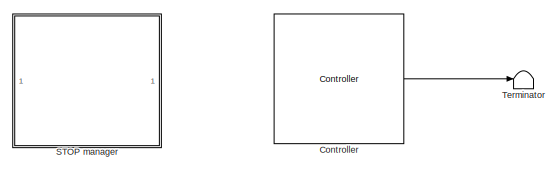
[diagram: root canvas - part 1/4, top center region]
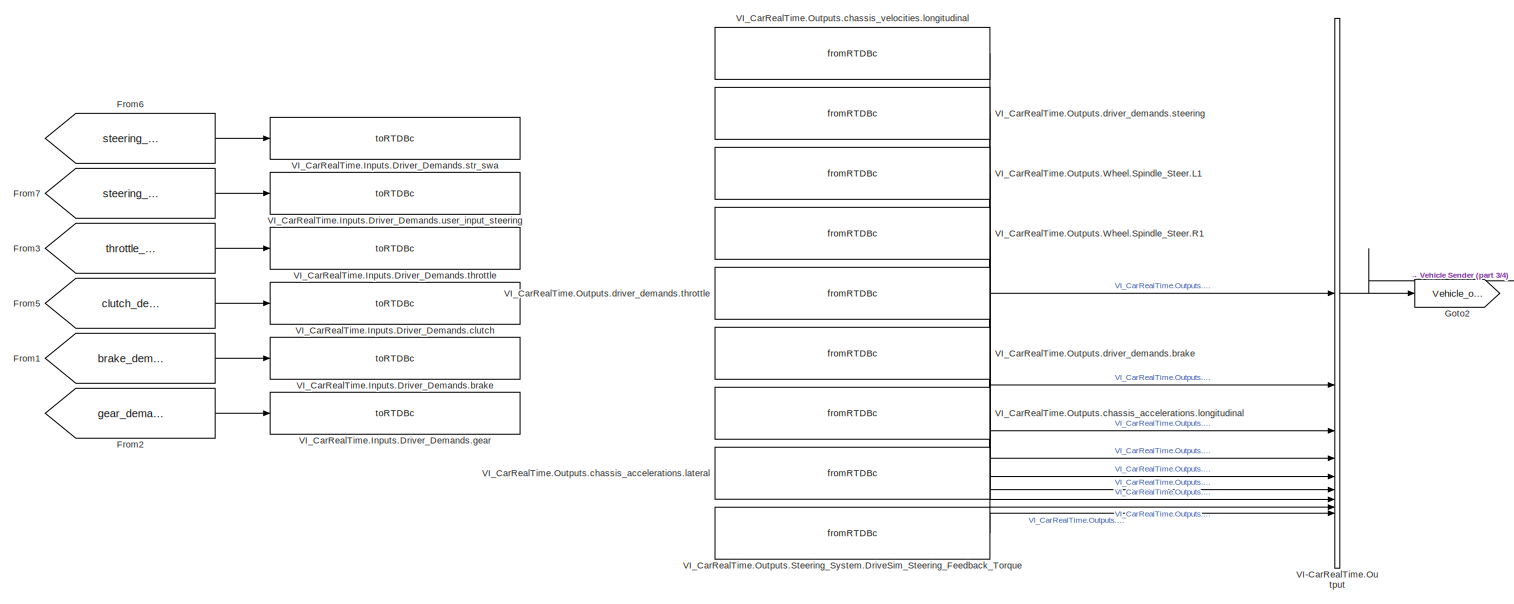
[diagram: root canvas - part 2/4, central region]
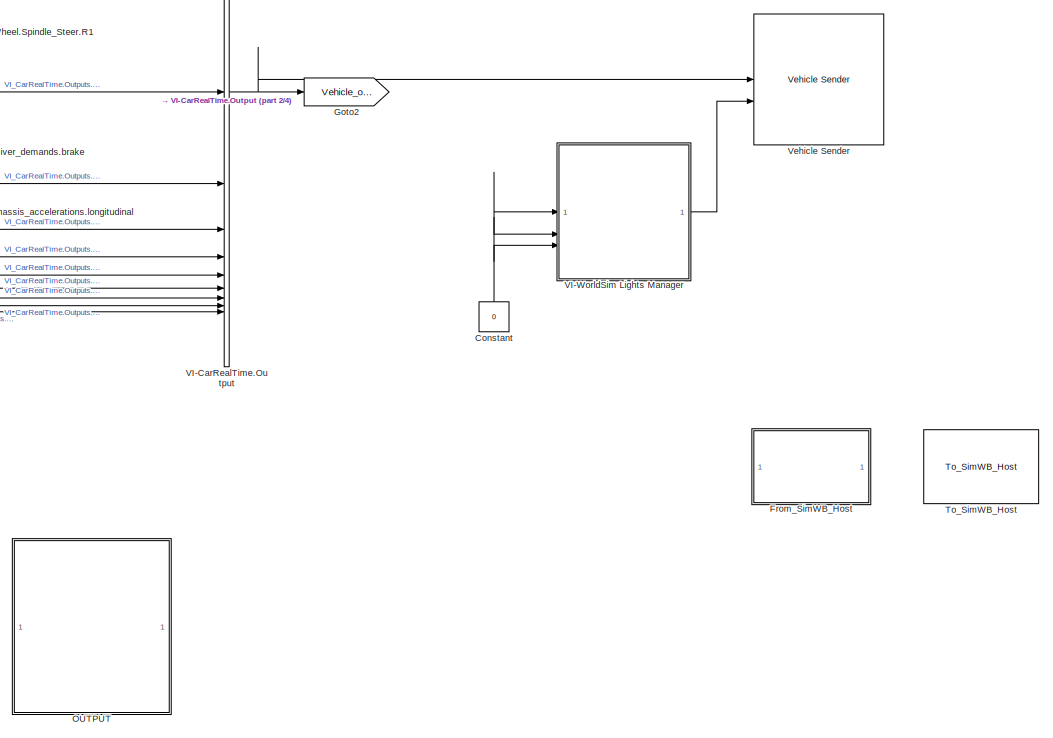
[diagram: root canvas - part 3/4, middle right region]
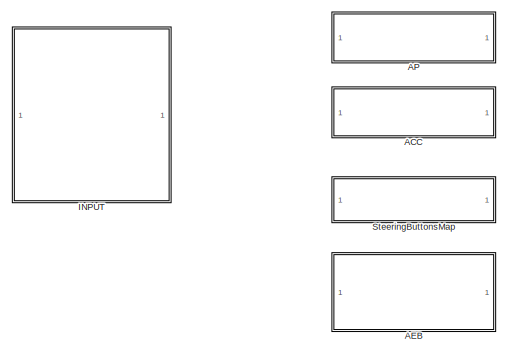
[diagram: root canvas - part 4/4, bottom center region]
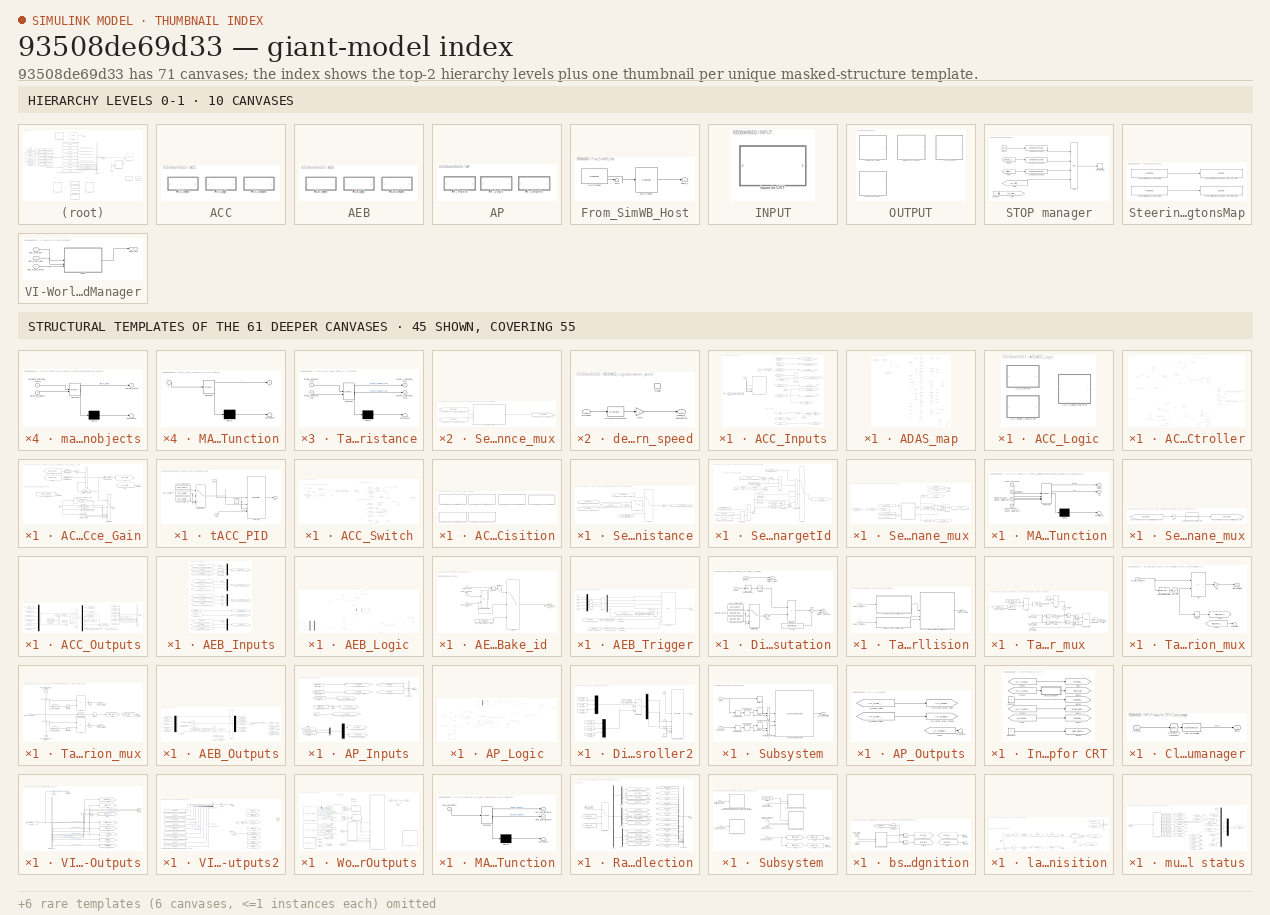
[diagram: thumbnail index - top-2 hierarchy levels (10 canvases) + 45 structural-template representatives of the remaining 61 canvases]
MODEL slx_93508de69d33
KIND model
CONFIG AbsTol = auto
CONFIG EnableMultiTasking = on
CONFIG FixedStep = 0.001
CONFIG InitFcn = clear mex
CONFIG MaxStep = auto
CONFIG MinStep = auto
CONFIG RelTol = 1e-3
CONFIG SampleTimeConstraint = Unconstrained
CONFIG SolverName = FixedStepAuto
CONFIG StartTime = 0.0
CONFIG StopTime = Inf
WORKSPACE source: mxarray member
WORKSPACE worldsim_instance: object (value not decoded)
BLOCK [SubSystem] ACC
BLOCK [SubSystem] ACC/ACC_Inputs
BLOCK [Goto] ACC/ACC_Inputs/ACC_Input_ACC_On_Request
  GotoTag = ACC_Input_ACC_On_Request
  TagVisibility = global
BLOCK [Goto] ACC/ACC_Inputs/ACC_Input_AEB_Output_Active
  GotoTag = ACC_Input_AEB_Output_Active
  TagVisibility = global
BLOCK [Goto] ACC/ACC_Inputs/ACC_Input_Driver_Brake
  GotoTag = ACC_Input_Driver_Brake
  TagVisibility = global
BLOCK [Goto] ACC/ACC_Inputs/ACC_Input_Driver_Throttle
  GotoTag = ACC_Input_Driver_Throttle
  TagVisibility = global
BLOCK [Goto] ACC/ACC_Inputs/ACC_Input_Front_Axle_Steer
  GotoTag = ACC_Input_Front_Axle_Steer
  TagVisibility = global
BLOCK [Goto] ACC/ACC_Inputs/ACC_Input_Vehicle_Speed
  GotoTag = ACC_Input_Vehicle_Speed
  TagVisibility = global
BLOCK [Goto] ACC/ACC_Inputs/ACC_Input_Vicrt_Status
  GotoTag = ACC_Input_Vicrt_Status
  TagVisibility = global
BLOCK [SubSystem] ACC/ACC_Inputs/ADAS_map
BLOCK [Inport] ACC/ACC_Inputs/ADAS_map/ACC_cancel
  Port = 6
BLOCK [Inport] ACC/ACC_Inputs/ADAS_map/ACC_distance_decrease
BLOCK [Inport] ACC/ACC_Inputs/ADAS_map/ACC_distance_increase
  Port = 2
BLOCK [Inport] ACC/ACC_Inputs/ADAS_map/ACC_engage//ACC_speed_increase
  Port = 4
BLOCK [Inport] ACC/ACC_Inputs/ADAS_map/ACC_reset
  Port = 3
BLOCK [Inport] ACC/ACC_Inputs/ADAS_map/ACC_speed_decrease
  Port = 5
BLOCK [Inport] ACC/ACC_Inputs/ADAS_map/AutoPilot_engage
  Port = 7
BLOCK [BusCreator] ACC/ACC_Inputs/ADAS_map/Bus Creator
  DisplayOption = bar
  InheritFromInputs = on
  Inputs = 2
BLOCK [DataTypeConversion] ACC/ACC_Inputs/ADAS_map/Cast To Double
  OutDataTypeStr = double
  RndMeth = Floor
  SaturateOnIntegerOverflow = off
BLOCK [DataTypeConversion] ACC/ACC_Inputs/ADAS_map/Cast To Double1
  OutDataTypeStr = double
  RndMeth = Floor
  SaturateOnIntegerOverflow = off
BLOCK [Clock] ACC/ACC_Inputs/ADAS_map/Clock
BLOCK [Reference] ACC/ACC_Inputs/ADAS_map/Compare To Constant  REF=simulink/Logic and Bit
Operations/Compare
To Constant
  SourceBlock = simulink/Logic and Bit\nOperations/Compare\nTo Constant
  SourceType = Compare To Constant
BLOCK [Constant] ACC/ACC_Inputs/ADAS_map/Constant
  Value = 0
BLOCK [Constant] ACC/ACC_Inputs/ADAS_map/Constant1
  Value = 0
BLOCK [Constant] ACC/ACC_Inputs/ADAS_map/Constant10
  Value = 0
BLOCK [Constant] ACC/ACC_Inputs/ADAS_map/Constant2
  Value = 0
BLOCK [Constant] ACC/ACC_Inputs/ADAS_map/Constant3
  Value = 0
BLOCK [Constant] ACC/ACC_Inputs/ADAS_map/Constant4
  Value = 0
BLOCK [Constant] ACC/ACC_Inputs/ADAS_map/Constant5
  Value = 0
BLOCK [Constant] ACC/ACC_Inputs/ADAS_map/Constant6
  Value = 0
BLOCK [Constant] ACC/ACC_Inputs/ADAS_map/Constant7
  Value = 0
BLOCK [Constant] ACC/ACC_Inputs/ADAS_map/Constant8
  Value = 0
BLOCK [Constant] ACC/ACC_Inputs/ADAS_map/Constant9
  Value = 0
BLOCK [Reference] ACC/ACC_Inputs/ADAS_map/Detect Decrease  REF=simulink/Logic and Bit
Operations/Detect
Decrease
  SourceBlock = simulink/Logic and Bit\nOperations/Detect\nDecrease
  SourceType = Detect Decrease
BLOCK [From] ACC/ACC_Inputs/ADAS_map/From
  GotoTag = speak
  TagVisibility = global
BLOCK [From] ACC/ACC_Inputs/ADAS_map/From1
  GotoTag = mode_left
  TagVisibility = global
BLOCK [From] ACC/ACC_Inputs/ADAS_map/From10
  GotoTag = horn_right
  TagVisibility = global
BLOCK [From] ACC/ACC_Inputs/ADAS_map/From11
  GotoTag = horn_left
  TagVisibility = global
BLOCK [From] ACC/ACC_Inputs/ADAS_map/From12
  GotoTag = main_light_switch
  TagVisibility = global
BLOCK [From] ACC/ACC_Inputs/ADAS_map/From13
  GotoTag = ok
  TagVisibility = global
BLOCK [From] ACC/ACC_Inputs/ADAS_map/From2
  GotoTag = set_acc_plus
  TagVisibility = global
BLOCK [From] ACC/ACC_Inputs/ADAS_map/From3
  GotoTag = acc_minus
  TagVisibility = global
BLOCK [From] ACC/ACC_Inputs/ADAS_map/From4
  GotoTag = can
  TagVisibility = global
BLOCK [From] ACC/ACC_Inputs/ADAS_map/From5
  GotoTag = mode_right
  TagVisibility = global
BLOCK [From] ACC/ACC_Inputs/ADAS_map/From6
  GotoTag = ok_left
  TagVisibility = global
BLOCK [From] ACC/ACC_Inputs/ADAS_map/From7
  GotoTag = ok_down
  TagVisibility = global
BLOCK [From] ACC/ACC_Inputs/ADAS_map/From8
  GotoTag = ok_right
  TagVisibility = global
BLOCK [From] ACC/ACC_Inputs/ADAS_map/From9
  GotoTag = ok_up
  TagVisibility = global
BLOCK [Goto] ACC/ACC_Inputs/ADAS_map/Goto1
  GotoTag = main_light_switch
  TagVisibility = global
BLOCK [Memory] ACC/ACC_Inputs/ADAS_map/Memory
  InheritSampleTime = on
  NameLocation = top
BLOCK [Goto] ACC/ACC_Inputs/ADAS_map/Plus1
  GotoTag = speak
  TagVisibility = global
BLOCK [Goto] ACC/ACC_Inputs/ADAS_map/Plus10
  GotoTag = set_acc_plus
  TagVisibility = global
BLOCK [Goto] ACC/ACC_Inputs/ADAS_map/Plus11
  GotoTag = ok
  TagVisibility = global
BLOCK [Goto] ACC/ACC_Inputs/ADAS_map/Plus12
  GotoTag = ok_left
  TagVisibility = global
BLOCK [Goto] ACC/ACC_Inputs/ADAS_map/Plus13
  GotoTag = ok_down
  TagVisibility = global
BLOCK [Goto] ACC/ACC_Inputs/ADAS_map/Plus14
  GotoTag = ok_right
  TagVisibility = global
BLOCK [Goto] ACC/ACC_Inputs/ADAS_map/Plus15
  GotoTag = ok_up
  TagVisibility = global
BLOCK [Goto] ACC/ACC_Inputs/ADAS_map/Plus16
  GotoTag = horn_right
  TagVisibility = global
BLOCK [Goto] ACC/ACC_Inputs/ADAS_map/Plus17
  GotoTag = acc_minus
  TagVisibility = global
BLOCK [Goto] ACC/ACC_Inputs/ADAS_map/Plus18
  GotoTag = can
  TagVisibility = global
BLOCK [Goto] ACC/ACC_Inputs/ADAS_map/Plus19
  GotoTag = horn_left
  TagVisibility = global
BLOCK [Goto] ACC/ACC_Inputs/ADAS_map/Plus20
  GotoTag = ACC_cancel
  TagVisibility = global
BLOCK [Goto] ACC/ACC_Inputs/ADAS_map/Plus22
  GotoTag = plus
  TagVisibility = global
BLOCK [Goto] ACC/ACC_Inputs/ADAS_map/Plus23
  GotoTag = minus
  TagVisibility = global
BLOCK [Goto] ACC/ACC_Inputs/ADAS_map/Plus4
  GotoTag = mode_minus
  TagVisibility = global
BLOCK [Goto] ACC/ACC_Inputs/ADAS_map/Plus5
  GotoTag = mode
  TagVisibility = global
BLOCK [Goto] ACC/ACC_Inputs/ADAS_map/Plus6
  GotoTag = mode_left
  TagVisibility = global
BLOCK [Goto] ACC/ACC_Inputs/ADAS_map/Plus7
  GotoTag = mode_right
  TagVisibility = global
BLOCK [Goto] ACC/ACC_Inputs/ADAS_map/Plus8
  GotoTag = mode_plus
  TagVisibility = global
BLOCK [Goto] ACC/ACC_Inputs/ADAS_map/Plus9
  GotoTag = res
  TagVisibility = global
BLOCK [Product] ACC/ACC_Inputs/ADAS_map/Product
BLOCK [Switch] ACC/ACC_Inputs/ADAS_map/Switch
  Criteria = u2 ~= 0
  InputSameDT = off
  SaturateOnIntegerOverflow = off
BLOCK [Terminator] ACC/ACC_Inputs/ADAS_map/Terminator
BLOCK [Terminator] ACC/ACC_Inputs/ADAS_map/Terminator1
BLOCK [Terminator] ACC/ACC_Inputs/ADAS_map/Terminator2
BLOCK [Terminator] ACC/ACC_Inputs/ADAS_map/Terminator3
BLOCK [Terminator] ACC/ACC_Inputs/ADAS_map/Terminator4
BLOCK [Terminator] ACC/ACC_Inputs/ADAS_map/Terminator5
BLOCK [Terminator] ACC/ACC_Inputs/ADAS_map/Terminator6
BLOCK [Terminator] ACC/ACC_Inputs/ADAS_map/Terminator7
BLOCK [Terminator] ACC/ACC_Inputs/ADAS_map/Terminator8
BLOCK [Terminator] ACC/ACC_Inputs/ADAS_map/Terminator9
BLOCK [From] ACC/ACC_Inputs/AEB_Output_Active
  GotoTag = AEB_Output_Active
BLOCK [DataTypeConversion] ACC/ACC_Inputs/Cast To Double
  OutDataTypeStr = double
  RndMeth = Floor
  SaturateOnIntegerOverflow = off
BLOCK [Clock] ACC/ACC_Inputs/Clock
BLOCK [Reference] ACC/ACC_Inputs/Compare To Constant  REF=simulink/Logic and Bit
Operations/Compare
To Constant
  SourceBlock = simulink/Logic and Bit\nOperations/Compare\nTo Constant
  SourceType = Compare To Constant
BLOCK [Constant] ACC/ACC_Inputs/Constant
  Value = 300
BLOCK [Constant] ACC/ACC_Inputs/Constant1
  Value = 0
BLOCK [Constant] ACC/ACC_Inputs/Constant2
BLOCK [Constant] ACC/ACC_Inputs/Constant3
  Value = 0
BLOCK [Reference] ACC/ACC_Inputs/Detect Increase  REF=simulink/Logic and Bit
Operations/Detect
Increase
  SourceBlock = simulink/Logic and Bit\nOperations/Detect\nIncrease
  SourceType = Detect Increase
BLOCK [Product] ACC/ACC_Inputs/Divide
  Inputs = */
BLOCK [From] ACC/ACC_Inputs/Driver_Brake
  GotoTag = Driver_Brake
  TagVisibility = global
BLOCK [From] ACC/ACC_Inputs/Driver_Throttle
  GotoTag = Driver_Throttle
  TagVisibility = global
BLOCK [From] ACC/ACC_Inputs/From1
  GotoTag = AP_Input_LK_On_Request
  TagVisibility = global
BLOCK [From] ACC/ACC_Inputs/From2
  GotoTag = set_acc_plus
  TagVisibility = global
BLOCK [From] ACC/ACC_Inputs/From4
  GotoTag = res
  TagVisibility = global
BLOCK [From] ACC/ACC_Inputs/Front_Axle_Steer
  GotoTag = Front_Axle_Steer
  TagVisibility = global
BLOCK [Gain] ACC/ACC_Inputs/Gain1
  Gain = -1
BLOCK [Goto] ACC/ACC_Inputs/Goto
  GotoTag = Additional_speed
  TagVisibility = global
BLOCK [Goto] ACC/ACC_Inputs/Goto1
  GotoTag = reset_ACC
  TagVisibility = global
BLOCK [Goto] ACC/ACC_Inputs/Goto2
  GotoTag = Vicrt_Status
  TagVisibility = global
BLOCK [Goto] ACC/ACC_Inputs/Goto3
  GotoTag = AEB_Output_Active
BLOCK [Logic] ACC/ACC_Inputs/Logical Operator
  AllPortsSameDT = off
  Operator = OR
  OutDataTypeStr = boolean
BLOCK [From] ACC/ACC_Inputs/Plus
  GotoTag = plus
  TagVisibility = global
BLOCK [From] ACC/ACC_Inputs/Plus1
  GotoTag = minus
  TagVisibility = global
BLOCK [Sum] ACC/ACC_Inputs/Sum
  IconShape = rectangular
BLOCK [From] ACC/ACC_Inputs/Vehicle_Speed
  GotoTag = Vehicle_Speed
  TagVisibility = global
BLOCK [SubSystem] ACC/ACC_Logic
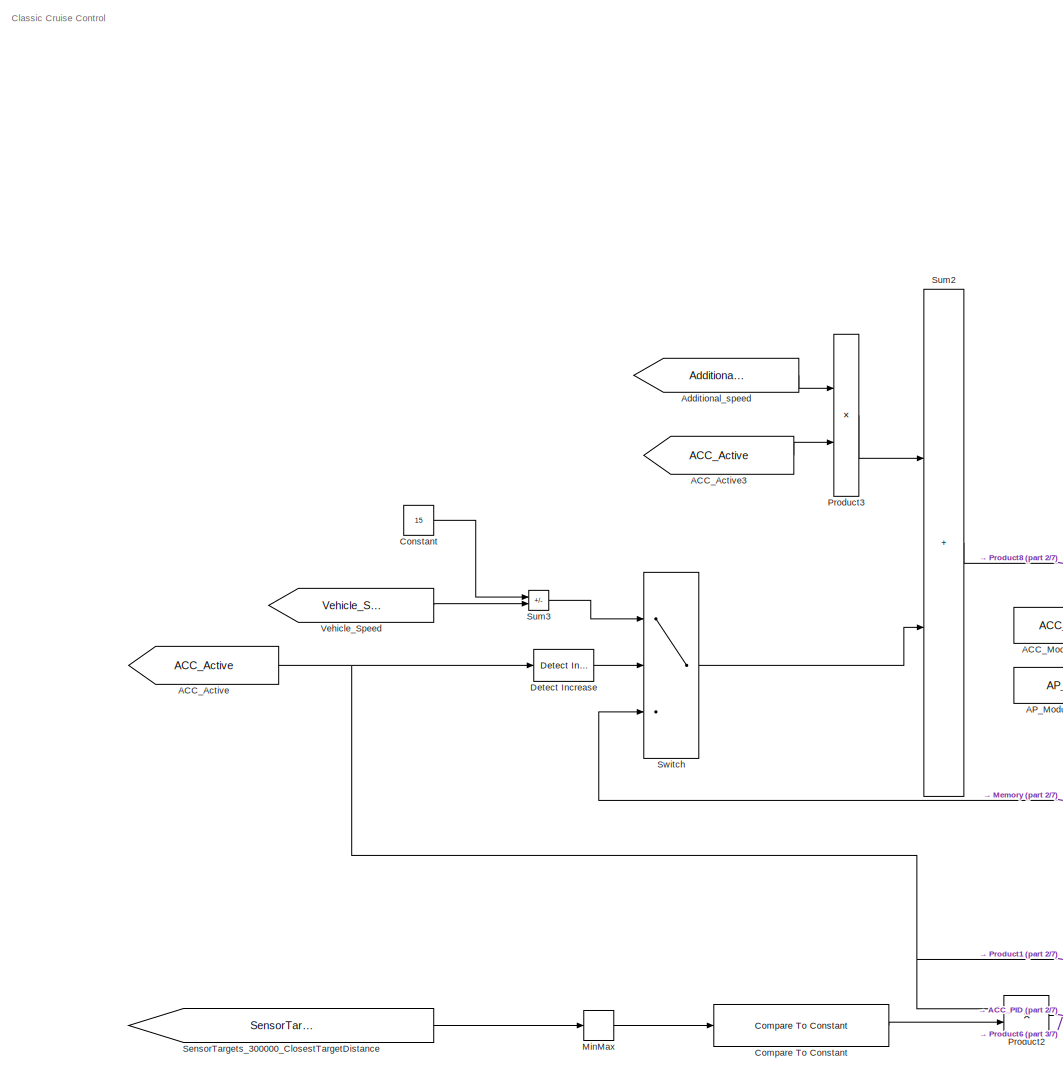
[diagram: ACC/ACC_Logic/ACC_Speed_Controller - part 1/7, top left region]
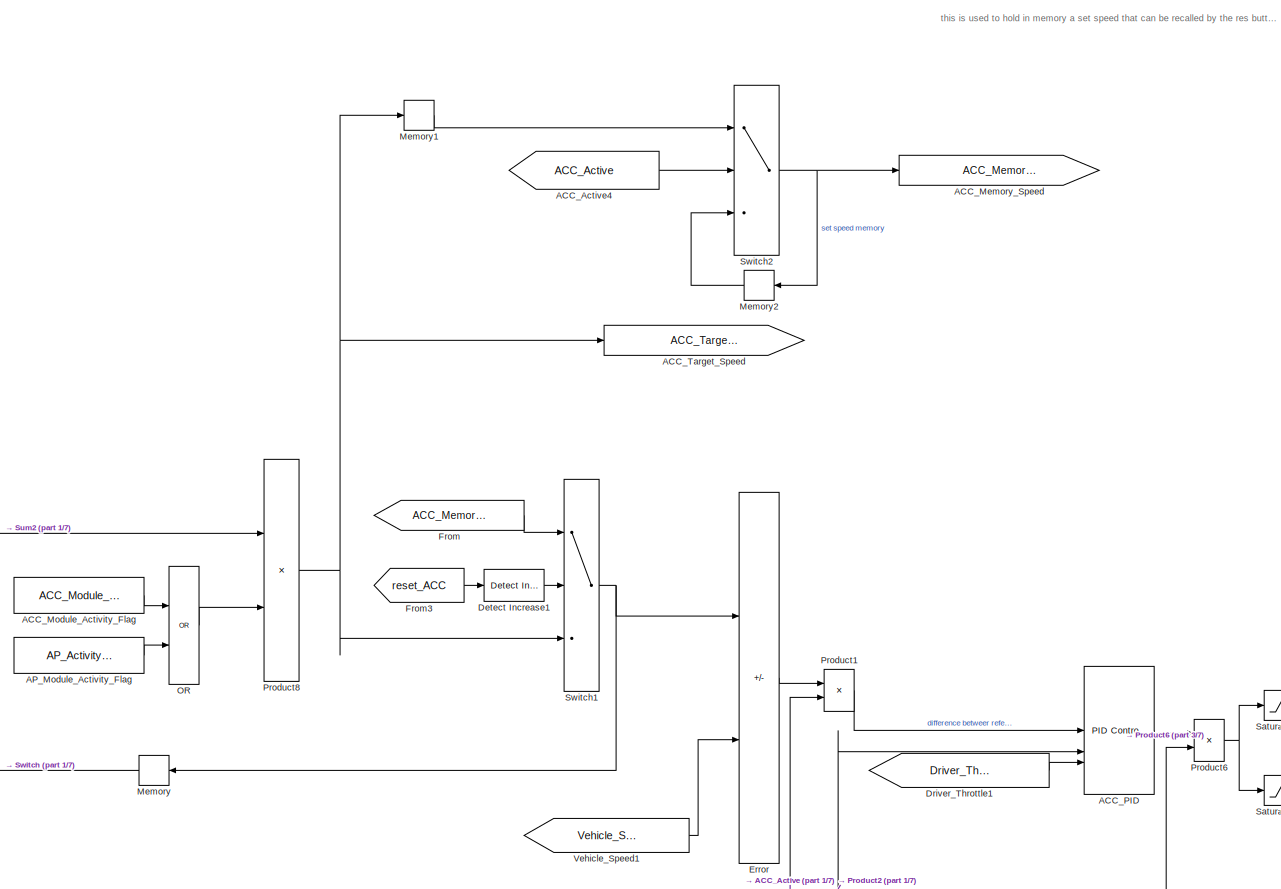
[diagram: ACC/ACC_Logic/ACC_Speed_Controller - part 2/7, top center region]
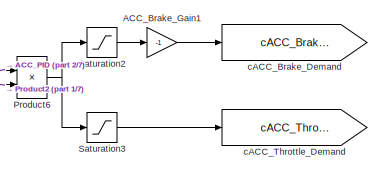
[diagram: ACC/ACC_Logic/ACC_Speed_Controller - part 3/7, central region]
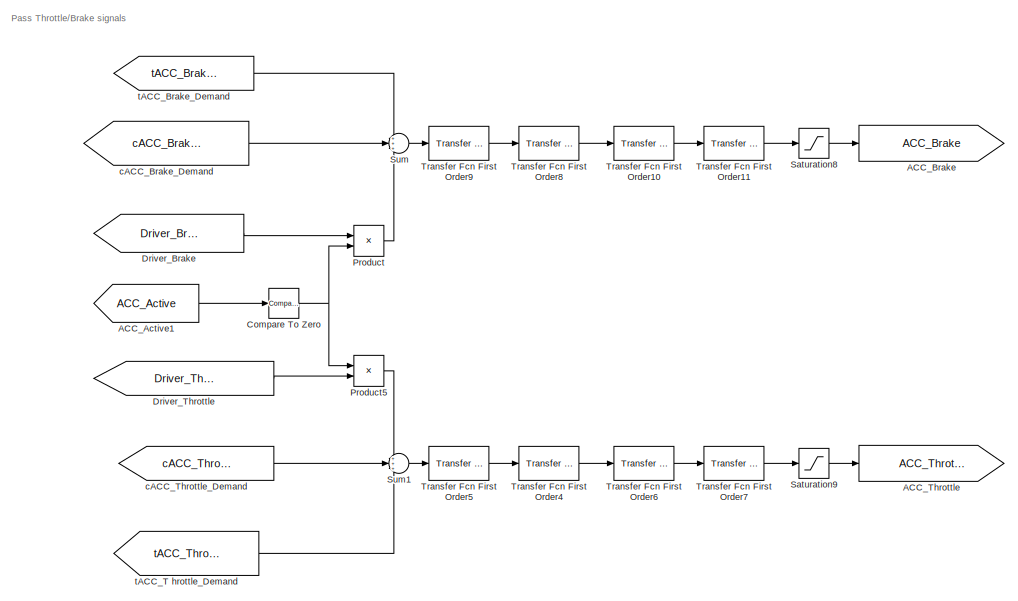
[diagram: ACC/ACC_Logic/ACC_Speed_Controller - part 4/7, middle right region]
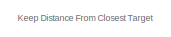
[diagram: ACC/ACC_Logic/ACC_Speed_Controller - part 5/7, middle left region]
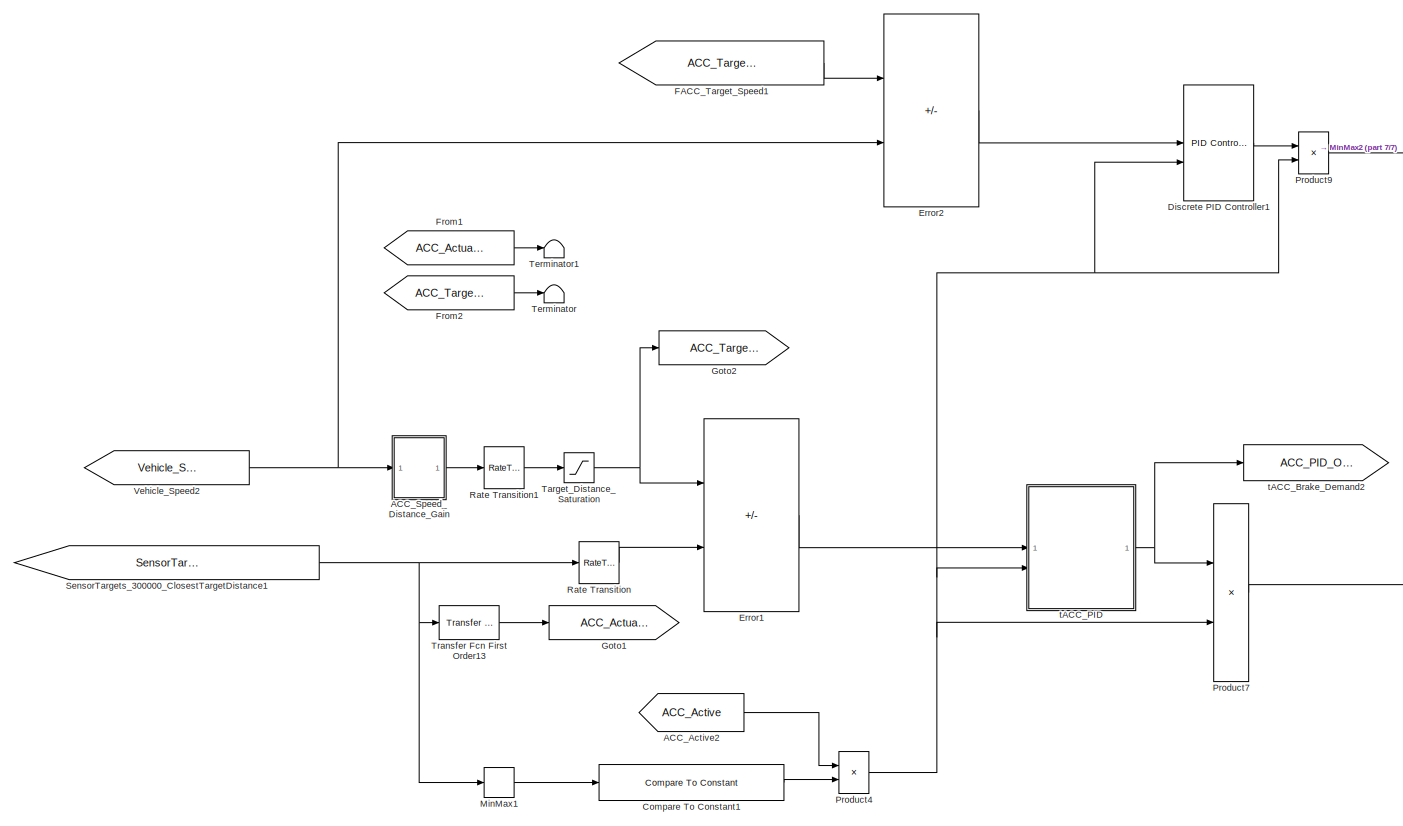
[diagram: ACC/ACC_Logic/ACC_Speed_Controller - part 6/7, bottom left region]
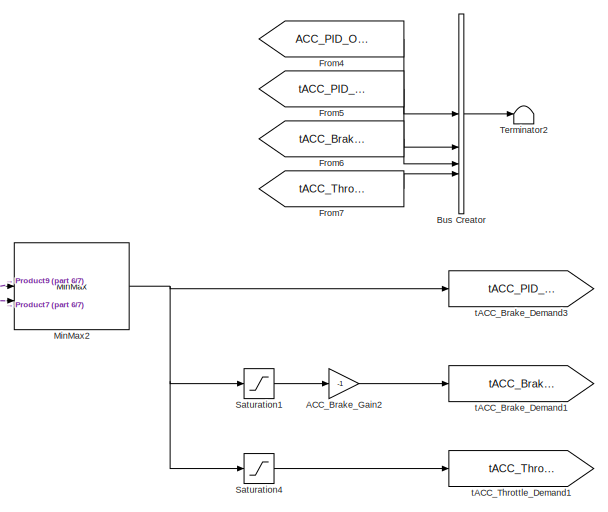
[diagram: ACC/ACC_Logic/ACC_Speed_Controller - part 7/7, bottom center region]
BLOCK [SubSystem] ACC/ACC_Logic/ACC_Speed_Controller
BLOCK [From] ACC/ACC_Logic/ACC_Speed_Controller/ACC_Active
  GotoTag = ACC_Active
  TagVisibility = global
BLOCK [From] ACC/ACC_Logic/ACC_Speed_Controller/ACC_Active1
  GotoTag = ACC_Active
  TagVisibility = global
BLOCK [From] ACC/ACC_Logic/ACC_Speed_Controller/ACC_Active2
  GotoTag = ACC_Active
  TagVisibility = global
BLOCK [From] ACC/ACC_Logic/ACC_Speed_Controller/ACC_Active3
  GotoTag = ACC_Active
  TagVisibility = global
BLOCK [From] ACC/ACC_Logic/ACC_Speed_Controller/ACC_Active4
  GotoTag = ACC_Active
  TagVisibility = global
BLOCK [Goto] ACC/ACC_Logic/ACC_Speed_Controller/ACC_Brake
  GotoTag = ACC_Brake
  TagVisibility = global
BLOCK [Gain] ACC/ACC_Logic/ACC_Speed_Controller/ACC_Brake_Gain1
  Gain = -1
BLOCK [Gain] ACC/ACC_Logic/ACC_Speed_Controller/ACC_Brake_Gain2
  Gain = -1
BLOCK [Goto] ACC/ACC_Logic/ACC_Speed_Controller/ACC_Memory_Speed
  GotoTag = ACC_Memory_Speed
  TagVisibility = global
BLOCK [Constant] ACC/ACC_Logic/ACC_Speed_Controller/ACC_Module_Activity_Flag
  Value = ACC_Module_Activity_Flag
BLOCK [Reference] ACC/ACC_Logic/ACC_Speed_Controller/ACC_PID  REF=slpidlib/PID Controller
  SourceBlock = slpidlib/PID Controller
  SourceType = PID 1dof
BLOCK [SubSystem] ACC/ACC_Logic/ACC_Speed_Controller/ACC_Speed_Distance_Gain
BLOCK [Gain] ACC/ACC_Logic/ACC_Speed_Controller/ACC_Speed_Distance_Gain/ACC_Speed_Distance_Gain
  Gain = ACC_Speed_Distance_Gain(1)
BLOCK [Gain] ACC/ACC_Logic/ACC_Speed_Controller/ACC_Speed_Distance_Gain/ACC_Speed_Distance_Gain1
  Gain = ACC_Speed_Distance_Gain(2)
BLOCK [Gain] ACC/ACC_Logic/ACC_Speed_Controller/ACC_Speed_Distance_Gain/ACC_Speed_Distance_Gain2
  Gain = ACC_Speed_Distance_Gain(3)
BLOCK [Gain] ACC/ACC_Logic/ACC_Speed_Controller/ACC_Speed_Distance_Gain/ACC_Speed_Distance_Gain3
  Gain = ACC_Speed_Distance_Gain(4)
BLOCK [Constant] ACC/ACC_Logic/ACC_Speed_Controller/ACC_Speed_Distance_Gain/ADAS_Control_Mode
  Value = ADAS_Control_Mode
BLOCK [DataTypeConversion] ACC/ACC_Logic/ACC_Speed_Controller/ACC_Speed_Distance_Gain/Cast To Double
  OutDataTypeStr = double
  RndMeth = Floor
  SaturateOnIntegerOverflow = off
BLOCK [Reference] ACC/ACC_Logic/ACC_Speed_Controller/ACC_Speed_Distance_Gain/Detect Increase  REF=simulink/Logic and Bit
Operations/Detect
Increase
  SourceBlock = simulink/Logic and Bit\nOperations/Detect\nIncrease
  SourceType = Detect Increase
BLOCK [Reference] ACC/ACC_Logic/ACC_Speed_Controller/ACC_Speed_Distance_Gain/Detect Increase1  REF=simulink/Logic and Bit
Operations/Detect
Increase
  SourceBlock = simulink/Logic and Bit\nOperations/Detect\nIncrease
  SourceType = Detect Increase
BLOCK [From] ACC/ACC_Logic/ACC_Speed_Controller/ACC_Speed_Distance_Gain/From
  GotoTag = ACC_distance_step
  TagVisibility = global
BLOCK [From] ACC/ACC_Logic/ACC_Speed_Controller/ACC_Speed_Distance_Gain/From4
  GotoTag = mode_minus
  TagVisibility = global
BLOCK [From] ACC/ACC_Logic/ACC_Speed_Controller/ACC_Speed_Distance_Gain/From5
  GotoTag = mode_plus
  TagVisibility = global
BLOCK [Gain] ACC/ACC_Logic/ACC_Speed_Controller/ACC_Speed_Distance_Gain/Gain
  Gain = -1
BLOCK [Goto] ACC/ACC_Logic/ACC_Speed_Controller/ACC_Speed_Distance_Gain/Goto
  GotoTag = ACC_distance_step
  TagVisibility = global
BLOCK [Inport] ACC/ACC_Logic/ACC_Speed_Controller/ACC_Speed_Distance_Gain/In1
BLOCK [Memory] ACC/ACC_Logic/ACC_Speed_Controller/ACC_Speed_Distance_Gain/Memory
  InitialCondition = ACC_Speed_Distance_control
  NameLocation = top
BLOCK [MultiPortSwitch] ACC/ACC_Logic/ACC_Speed_Controller/ACC_Speed_Distance_Gain/Multiport Switch
  DataPortForDefault = Additional data port
  DiagnosticForDefault = None
  InputSameDT = off
  Inputs = 4
  SaturateOnIntegerOverflow = off
BLOCK [Outport] ACC/ACC_Logic/ACC_Speed_Controller/ACC_Speed_Distance_Gain/Out1
  VectorParamsAs1DForOutWhenUnconnected = off
BLOCK [Saturate] ACC/ACC_Logic/ACC_Speed_Controller/ACC_Speed_Distance_Gain/Saturation
  LowerLimit = 1
  NameLocation = top
  UpperLimit = 4
BLOCK [Sum] ACC/ACC_Logic/ACC_Speed_Controller/ACC_Speed_Distance_Gain/Sum
  IconShape = rectangular
  Inputs = +++
BLOCK [Terminator] ACC/ACC_Logic/ACC_Speed_Controller/ACC_Speed_Distance_Gain/Terminator
BLOCK [Terminator] ACC/ACC_Logic/ACC_Speed_Controller/ACC_Speed_Distance_Gain/Terminator1
BLOCK [Goto] ACC/ACC_Logic/ACC_Speed_Controller/ACC_Target_Speed 
  GotoTag = ACC_Target_Speed
  TagVisibility = global
BLOCK [Goto] ACC/ACC_Logic/ACC_Speed_Controller/ACC_Throttle
  GotoTag = ACC_Throttle
  TagVisibility = global
BLOCK [Constant] ACC/ACC_Logic/ACC_Speed_Controller/AP_Module_Activity_Flag
  Value = AP_Activity_Flag
BLOCK [From] ACC/ACC_Logic/ACC_Speed_Controller/Additional_speed
  GotoTag = Additional_speed
  TagVisibility = global
BLOCK [BusCreator] ACC/ACC_Logic/ACC_Speed_Controller/Bus Creator
  DisplayOption = bar
  InheritFromInputs = on
  Inputs = 4
BLOCK [Reference] ACC/ACC_Logic/ACC_Speed_Controller/Compare To Constant  REF=simulink/Logic and Bit
Operations/Compare
To Constant
  SourceBlock = simulink/Logic and Bit\nOperations/Compare\nTo Constant
  SourceType = Compare To Constant
BLOCK [Reference] ACC/ACC_Logic/ACC_Speed_Controller/Compare To Constant1  REF=simulink/Logic and Bit
Operations/Compare
To Constant
  SourceBlock = simulink/Logic and Bit\nOperations/Compare\nTo Constant
  SourceType = Compare To Constant
BLOCK [Reference] ACC/ACC_Logic/ACC_Speed_Controller/Compare To Zero  REF=simulink/Logic and Bit
Operations/Compare
To Zero
  SourceBlock = simulink/Logic and Bit\nOperations/Compare\nTo Zero
  SourceType = Compare To Zero
BLOCK [Constant] ACC/ACC_Logic/ACC_Speed_Controller/Constant
  Value = 15
BLOCK [Reference] ACC/ACC_Logic/ACC_Speed_Controller/Detect Increase  REF=simulink/Logic and Bit
Operations/Detect
Increase
  SourceBlock = simulink/Logic and Bit\nOperations/Detect\nIncrease
  SourceType = Detect Increase
BLOCK [Reference] ACC/ACC_Logic/ACC_Speed_Controller/Detect Increase1  REF=simulink/Logic and Bit
Operations/Detect
Increase
  SourceBlock = simulink/Logic and Bit\nOperations/Detect\nIncrease
  SourceType = Detect Increase
BLOCK [Reference] ACC/ACC_Logic/ACC_Speed_Controller/Discrete PID Controller1  REF=slpidlib/PID Controller
  SourceBlock = slpidlib/PID Controller
  SourceType = PID 1dof
BLOCK [From] ACC/ACC_Logic/ACC_Speed_Controller/Driver_Brake
  GotoTag = Driver_Brake
  TagVisibility = global
BLOCK [From] ACC/ACC_Logic/ACC_Speed_Controller/Driver_Throttle
  GotoTag = Driver_Throttle
  TagVisibility = global
BLOCK [From] ACC/ACC_Logic/ACC_Speed_Controller/Driver_Throttle1
  GotoTag = Driver_Throttle
  TagVisibility = global
BLOCK [Sum] ACC/ACC_Logic/ACC_Speed_Controller/Error
  IconShape = rectangular
  Inputs = +-
BLOCK [Sum] ACC/ACC_Logic/ACC_Speed_Controller/Error1
  IconShape = rectangular
  Inputs = -+
BLOCK [Sum] ACC/ACC_Logic/ACC_Speed_Controller/Error2
  IconShape = rectangular
  Inputs = +-
BLOCK [From] ACC/ACC_Logic/ACC_Speed_Controller/FACC_Target_Speed1
  GotoTag = ACC_Target_Speed
  TagVisibility = global
BLOCK [From] ACC/ACC_Logic/ACC_Speed_Controller/From
  GotoTag = ACC_Memory_Speed
  TagVisibility = global
BLOCK [From] ACC/ACC_Logic/ACC_Speed_Controller/From1
  GotoTag = ACC_Actual_Distance
  TagVisibility = global
BLOCK [From] ACC/ACC_Logic/ACC_Speed_Controller/From2
  GotoTag = ACC_Target_Distance
  TagVisibility = global
BLOCK [From] ACC/ACC_Logic/ACC_Speed_Controller/From3
  GotoTag = reset_ACC
  TagVisibility = global
BLOCK [From] ACC/ACC_Logic/ACC_Speed_Controller/From4
  GotoTag = ACC_PID_Output
  TagVisibility = global
BLOCK [From] ACC/ACC_Logic/ACC_Speed_Controller/From5
  GotoTag = tACC_PID_Output
  TagVisibility = global
BLOCK [From] ACC/ACC_Logic/ACC_Speed_Controller/From6
  GotoTag = tACC_Brake_Demand
  TagVisibility = global
BLOCK [From] ACC/ACC_Logic/ACC_Speed_Controller/From7
  GotoTag = tACC_Throttle_Demand
  TagVisibility = global
BLOCK [Goto] ACC/ACC_Logic/ACC_Speed_Controller/Goto1
  GotoTag = ACC_Actual_Distance
  TagVisibility = global
BLOCK [Goto] ACC/ACC_Logic/ACC_Speed_Controller/Goto2
  GotoTag = ACC_Target_Distance
  TagVisibility = global
BLOCK [Memory] ACC/ACC_Logic/ACC_Speed_Controller/Memory
BLOCK [Memory] ACC/ACC_Logic/ACC_Speed_Controller/Memory1
  NameLocation = top
BLOCK [Memory] ACC/ACC_Logic/ACC_Speed_Controller/Memory2
BLOCK [MinMax] ACC/ACC_Logic/ACC_Speed_Controller/MinMax
BLOCK [MinMax] ACC/ACC_Logic/ACC_Speed_Controller/MinMax1
BLOCK [MinMax] ACC/ACC_Logic/ACC_Speed_Controller/MinMax2
  Inputs = 2
BLOCK [Logic] ACC/ACC_Logic/ACC_Speed_Controller/OR
  AllPortsSameDT = off
  Operator = OR
  OutDataTypeStr = boolean
BLOCK [Product] ACC/ACC_Logic/ACC_Speed_Controller/Product
BLOCK [Product] ACC/ACC_Logic/ACC_Speed_Controller/Product1
BLOCK [Product] ACC/ACC_Logic/ACC_Speed_Controller/Product2
BLOCK [Product] ACC/ACC_Logic/ACC_Speed_Controller/Product3
BLOCK [Product] ACC/ACC_Logic/ACC_Speed_Controller/Product4
BLOCK [Product] ACC/ACC_Logic/ACC_Speed_Controller/Product5
BLOCK [Product] ACC/ACC_Logic/ACC_Speed_Controller/Product6
BLOCK [Product] ACC/ACC_Logic/ACC_Speed_Controller/Product7
BLOCK [Product] ACC/ACC_Logic/ACC_Speed_Controller/Product8
BLOCK [Product] ACC/ACC_Logic/ACC_Speed_Controller/Product9
BLOCK [RateTransition] ACC/ACC_Logic/ACC_Speed_Controller/Rate Transition
  OutPortSampleTime = 1/50
BLOCK [RateTransition] ACC/ACC_Logic/ACC_Speed_Controller/Rate Transition1
  OutPortSampleTime = 1/50
BLOCK [Saturate] ACC/ACC_Logic/ACC_Speed_Controller/Saturation1
  LowerLimit = -100
  UpperLimit = 0
BLOCK [Saturate] ACC/ACC_Logic/ACC_Speed_Controller/Saturation2
  LowerLimit = -100
  UpperLimit = 0
BLOCK [Saturate] ACC/ACC_Logic/ACC_Speed_Controller/Saturation3
  LowerLimit = 0
  UpperLimit = 100
BLOCK [Saturate] ACC/ACC_Logic/ACC_Speed_Controller/Saturation4
  LowerLimit = 0
  UpperLimit = 100
BLOCK [Saturate] ACC/ACC_Logic/ACC_Speed_Controller/Saturation8
  LowerLimit = -100
  UpperLimit = 100
BLOCK [Saturate] ACC/ACC_Logic/ACC_Speed_Controller/Saturation9
  LowerLimit = -100
  UpperLimit = 100
BLOCK [From] ACC/ACC_Logic/ACC_Speed_Controller/SensorTargets_300000_ClosestTargetDistance
  GotoTag = SensorTargets_300000_ClosestTargetDistance
  TagVisibility = global
BLOCK [From] ACC/ACC_Logic/ACC_Speed_Controller/SensorTargets_300000_ClosestTargetDistance1
  GotoTag = SensorTargets_300000_ClosestTargetDistance
  TagVisibility = global
BLOCK [Sum] ACC/ACC_Logic/ACC_Speed_Controller/Sum
  Inputs = +++
BLOCK [Sum] ACC/ACC_Logic/ACC_Speed_Controller/Sum1
  Inputs = +++
BLOCK [Sum] ACC/ACC_Logic/ACC_Speed_Controller/Sum2
  IconShape = rectangular
BLOCK [Sum] ACC/ACC_Logic/ACC_Speed_Controller/Sum3
  IconShape = rectangular
  Inputs = -+
BLOCK [Switch] ACC/ACC_Logic/ACC_Speed_Controller/Switch
  Criteria = u2 > Threshold
  InputSameDT = off
  SaturateOnIntegerOverflow = off
BLOCK [Switch] ACC/ACC_Logic/ACC_Speed_Controller/Switch1
  Criteria = u2 > Threshold
  InputSameDT = off
  SaturateOnIntegerOverflow = off
BLOCK [Switch] ACC/ACC_Logic/ACC_Speed_Controller/Switch2
  Criteria = u2 > Threshold
  InputSameDT = off
  SaturateOnIntegerOverflow = off
BLOCK [Saturate] ACC/ACC_Logic/ACC_Speed_Controller/Target_Distance_Saturation
  LowerLimit = 2
  UpperLimit = ACC_SensorMaxDistance
BLOCK [Terminator] ACC/ACC_Logic/ACC_Speed_Controller/Terminator
BLOCK [Terminator] ACC/ACC_Logic/ACC_Speed_Controller/Terminator1
BLOCK [Terminator] ACC/ACC_Logic/ACC_Speed_Controller/Terminator2
BLOCK [Reference] ACC/ACC_Logic/ACC_Speed_Controller/Transfer Fcn First Order10  REF=simulink/Discrete/Transfer Fcn
First Order
  SourceBlock = simulink/Discrete/Transfer Fcn\nFirst Order
  SourceType = First Order Transfer Fcn
BLOCK [Reference] ACC/ACC_Logic/ACC_Speed_Controller/Transfer Fcn First Order11  REF=simulink/Discrete/Transfer Fcn
First Order
  SourceBlock = simulink/Discrete/Transfer Fcn\nFirst Order
  SourceType = First Order Transfer Fcn
BLOCK [Reference] ACC/ACC_Logic/ACC_Speed_Controller/Transfer Fcn First Order13  REF=simulink/Discrete/Transfer Fcn
First Order
  SourceBlock = simulink/Discrete/Transfer Fcn\nFirst Order
  SourceType = First Order Transfer Fcn
BLOCK [Reference] ACC/ACC_Logic/ACC_Speed_Controller/Transfer Fcn First Order4  REF=simulink/Discrete/Transfer Fcn
First Order
  SourceBlock = simulink/Discrete/Transfer Fcn\nFirst Order
  SourceType = First Order Transfer Fcn
BLOCK [Reference] ACC/ACC_Logic/ACC_Speed_Controller/Transfer Fcn First Order5  REF=simulink/Discrete/Transfer Fcn
First Order
  SourceBlock = simulink/Discrete/Transfer Fcn\nFirst Order
  SourceType = First Order Transfer Fcn
BLOCK [Reference] ACC/ACC_Logic/ACC_Speed_Controller/Transfer Fcn First Order6  REF=simulink/Discrete/Transfer Fcn
First Order
  SourceBlock = simulink/Discrete/Transfer Fcn\nFirst Order
  SourceType = First Order Transfer Fcn
BLOCK [Reference] ACC/ACC_Logic/ACC_Speed_Controller/Transfer Fcn First Order7  REF=simulink/Discrete/Transfer Fcn
First Order
  SourceBlock = simulink/Discrete/Transfer Fcn\nFirst Order
  SourceType = First Order Transfer Fcn
BLOCK [Reference] ACC/ACC_Logic/ACC_Speed_Controller/Transfer Fcn First Order8  REF=simulink/Discrete/Transfer Fcn
First Order
  SourceBlock = simulink/Discrete/Transfer Fcn\nFirst Order
  SourceType = First Order Transfer Fcn
BLOCK [Reference] ACC/ACC_Logic/ACC_Speed_Controller/Transfer Fcn First Order9  REF=simulink/Discrete/Transfer Fcn
First Order
  SourceBlock = simulink/Discrete/Transfer Fcn\nFirst Order
  SourceType = First Order Transfer Fcn
BLOCK [From] ACC/ACC_Logic/ACC_Speed_Controller/Vehicle_Speed
  GotoTag = Vehicle_Speed
  TagVisibility = global
BLOCK [From] ACC/ACC_Logic/ACC_Speed_Controller/Vehicle_Speed1
  GotoTag = Vehicle_Speed
  TagVisibility = global
BLOCK [From] ACC/ACC_Logic/ACC_Speed_Controller/Vehicle_Speed2
  GotoTag = Vehicle_Speed
  TagVisibility = global
BLOCK [Goto] ACC/ACC_Logic/ACC_Speed_Controller/cACC_Brake_Demand
  GotoTag = cACC_Brake_Demand
  TagVisibility = global
BLOCK [From] ACC/ACC_Logic/ACC_Speed_Controller/cACC_Brake_Demand 
  GotoTag = cACC_Brake_Demand
  TagVisibility = global
BLOCK [Goto] ACC/ACC_Logic/ACC_Speed_Controller/cACC_Throttle_Demand
  GotoTag = cACC_Throttle_Demand
  TagVisibility = global
BLOCK [From] ACC/ACC_Logic/ACC_Speed_Controller/cACC_Throttle_Demand 
  GotoTag = cACC_Throttle_Demand
  TagVisibility = global
BLOCK [From] ACC/ACC_Logic/ACC_Speed_Controller/tACC_Brake_Demand
  GotoTag = tACC_Brake_Demand
  TagVisibility = global
BLOCK [Goto] ACC/ACC_Logic/ACC_Speed_Controller/tACC_Brake_Demand1
  GotoTag = tACC_Brake_Demand
  TagVisibility = global
BLOCK [Goto] ACC/ACC_Logic/ACC_Speed_Controller/tACC_Brake_Demand2
  GotoTag = ACC_PID_Output
  TagVisibility = global
BLOCK [Goto] ACC/ACC_Logic/ACC_Speed_Controller/tACC_Brake_Demand3
  GotoTag = tACC_PID_Output
  TagVisibility = global
BLOCK [SubSystem] ACC/ACC_Logic/ACC_Speed_Controller/tACC_PID
BLOCK [Constant] ACC/ACC_Logic/ACC_Speed_Controller/tACC_PID/ACC_Adaptive_P
  Value = ACC_Adaptive_P(1)
BLOCK [Constant] ACC/ACC_Logic/ACC_Speed_Controller/tACC_PID/ACC_Adaptive_P2
  Value = ACC_Adaptive_P(2)
BLOCK [Constant] ACC/ACC_Logic/ACC_Speed_Controller/tACC_PID/ADAS_Control_Mode
  Value = ADAS_Control_Mode
BLOCK [Constant] ACC/ACC_Logic/ACC_Speed_Controller/tACC_PID/Constant
  Value = 0
BLOCK [Inport] ACC/ACC_Logic/ACC_Speed_Controller/tACC_PID/In1
BLOCK [Inport] ACC/ACC_Logic/ACC_Speed_Controller/tACC_PID/In2
  Port = 2
BLOCK [MultiPortSwitch] ACC/ACC_Logic/ACC_Speed_Controller/tACC_PID/Multiport Switch
  DataPortForDefault = Additional data port
  DiagnosticForDefault = None
  InputSameDT = off
  Inputs = 2
  SaturateOnIntegerOverflow = off
BLOCK [Outport] ACC/ACC_Logic/ACC_Speed_Controller/tACC_PID/Out1
  VectorParamsAs1DForOutWhenUnconnected = off
BLOCK [Reference] ACC/ACC_Logic/ACC_Speed_Controller/tACC_PID/tACC_PID  REF=slpidlib/PID Controller
  SourceBlock = slpidlib/PID Controller
  SourceType = PID 1dof
BLOCK [From] ACC/ACC_Logic/ACC_Speed_Controller/tACC_T hrottle_Demand
  GotoTag = tACC_Throttle_Demand
  TagVisibility = global
BLOCK [Goto] ACC/ACC_Logic/ACC_Speed_Controller/tACC_Throttle_Demand1
  GotoTag = tACC_Throttle_Demand
  TagVisibility = global
BLOCK [SubSystem] ACC/ACC_Logic/ACC_Switch
BLOCK [From] ACC/ACC_Logic/ACC_Switch/AABS_Activated
  GotoTag = ACC_Input_AEB_Output_Active
  TagVisibility = global
BLOCK [Goto] ACC/ACC_Logic/ACC_Switch/ACC_Active  
  GotoTag = ACC_Active
  TagVisibility = global
BLOCK [From] ACC/ACC_Logic/ACC_Switch/ACC_Input_ACC_On_Request
  GotoTag = ACC_Input_ACC_On_Request
  TagVisibility = global
BLOCK [From] ACC/ACC_Logic/ACC_Switch/ACC_Input_Driver_Brake
  GotoTag = ACC_Input_Driver_Brake
  TagVisibility = global
BLOCK [From] ACC/ACC_Logic/ACC_Switch/ACC_Input_Driver_Throttle
  GotoTag = ACC_Input_Driver_Throttle
  TagVisibility = global
BLOCK [From] ACC/ACC_Logic/ACC_Switch/ACC_Input_Vehicle_Speed
  GotoTag = ACC_Input_Vehicle_Speed
  TagVisibility = global
BLOCK [From] ACC/ACC_Logic/ACC_Switch/ACC_Input_Vicrt_Status
  GotoTag = ACC_Input_Vicrt_Status
  TagVisibility = global
BLOCK [From] ACC/ACC_Logic/ACC_Switch/ACC_Input_Vicrt_Status1
  GotoTag = ACC_Input_Vicrt_Status
  TagVisibility = global
BLOCK [Constant] ACC/ACC_Logic/ACC_Switch/ACC_Module_Activity_Flag
  Value = ACC_Module_Activity_Flag
BLOCK [Goto] ACC/ACC_Logic/ACC_Switch/ACC_Ready  
  GotoTag = ACC_Ready
  TagVisibility = global
BLOCK [From] ACC/ACC_Logic/ACC_Switch/ACC_Ready 1
  GotoTag = ACC_Ready
  TagVisibility = global
BLOCK [Reference] ACC/ACC_Logic/ACC_Switch/ACC_Ready_Speed  REF=simulink/Logic and Bit
Operations/Compare
To Constant
  SourceBlock = simulink/Logic and Bit\nOperations/Compare\nTo Constant
  SourceType = Compare To Constant
BLOCK [DataTypeConversion] ACC/ACC_Logic/ACC_Switch/Cast To Double
  OutDataTypeStr = double
  RndMeth = Floor
  SaturateOnIntegerOverflow = off
BLOCK [Reference] ACC/ACC_Logic/ACC_Switch/Compare To Constant  REF=simulink/Logic and Bit
Operations/Compare
To Constant
  SourceBlock = simulink/Logic and Bit\nOperations/Compare\nTo Constant
  SourceType = Compare To Constant
BLOCK [Reference] ACC/ACC_Logic/ACC_Switch/Compare To Constant1  REF=simulink/Logic and Bit
Operations/Compare
To Constant
  SourceBlock = simulink/Logic and Bit\nOperations/Compare\nTo Constant
  SourceType = Compare To Constant
BLOCK [Reference] ACC/ACC_Logic/ACC_Switch/Compare To Constant2  REF=simulink/Logic and Bit
Operations/Compare
To Constant
  SourceBlock = simulink/Logic and Bit\nOperations/Compare\nTo Constant
  SourceType = Compare To Constant
BLOCK [Reference] ACC/ACC_Logic/ACC_Switch/Compare To Constant3  REF=simulink/Logic and Bit
Operations/Compare
To Constant
  SourceBlock = simulink/Logic and Bit\nOperations/Compare\nTo Constant
  SourceType = Compare To Constant
BLOCK [Reference] ACC/ACC_Logic/ACC_Switch/Compare To Constant4  REF=simulink/Logic and Bit
Operations/Compare
To Constant
  SourceBlock = simulink/Logic and Bit\nOperations/Compare\nTo Constant
  SourceType = Compare To Constant
BLOCK [Reference] ACC/ACC_Logic/ACC_Switch/Compare To Zero  REF=simulink/Logic and Bit
Operations/Compare
To Zero
  SourceBlock = simulink/Logic and Bit\nOperations/Compare\nTo Zero
  SourceType = Compare To Zero
BLOCK [Reference] ACC/ACC_Logic/ACC_Switch/Compare To Zero3  REF=simulink/Logic and Bit
Operations/Compare
To Zero
  SourceBlock = simulink/Logic and Bit\nOperations/Compare\nTo Zero
  SourceType = Compare To Zero
BLOCK [Constant] ACC/ACC_Logic/ACC_Switch/Constant
  Value = 0
BLOCK [Constant] ACC/ACC_Logic/ACC_Switch/Constant4
  Value = AP_Activity_Flag
BLOCK [DataTypeConversion] ACC/ACC_Logic/ACC_Switch/Data Type Conversion
  OutDataTypeStr = double
  RndMeth = Floor
  SaturateOnIntegerOverflow = off
BLOCK [Reference] ACC/ACC_Logic/ACC_Switch/Detect Increase  REF=simulink/Logic and Bit
Operations/Detect
Increase
  SourceBlock = simulink/Logic and Bit\nOperations/Detect\nIncrease
  SourceType = Detect Increase
BLOCK [Reference] ACC/ACC_Logic/ACC_Switch/Detect Increase1  REF=simulink/Logic and Bit
Operations/Detect
Increase
  SourceBlock = simulink/Logic and Bit\nOperations/Detect\nIncrease
  SourceType = Detect Increase
BLOCK [Reference] ACC/ACC_Logic/ACC_Switch/Discrete Derivative  REF=simulink/Discrete/Discrete Derivative
  SourceBlock = simulink/Discrete/Discrete Derivative
  SourceType = Discrete Derivative
BLOCK [From] ACC/ACC_Logic/ACC_Switch/From
  GotoTag = ADAS_Error
  TagVisibility = global
BLOCK [From] ACC/ACC_Logic/ACC_Switch/From3
  GotoTag = reset_ACC
  TagVisibility = global
BLOCK [From] ACC/ACC_Logic/ACC_Switch/From5
  GotoTag = ACC_cancel
  TagVisibility = global
BLOCK [Goto] ACC/ACC_Logic/ACC_Switch/Goto
  GotoTag = ADAS_Error
  TagVisibility = global
BLOCK [Logic] ACC/ACC_Logic/ACC_Switch/Logical Operator
  AllPortsSameDT = off
  Inputs = 3
  OutDataTypeStr = boolean
BLOCK [Logic] ACC/ACC_Logic/ACC_Switch/Logical Operator1
  AllPortsSameDT = off
  Inputs = 6
  OutDataTypeStr = boolean
BLOCK [Logic] ACC/ACC_Logic/ACC_Switch/Logical Operator2
  AllPortsSameDT = off
  Operator = OR
  OutDataTypeStr = boolean
BLOCK [Memory] ACC/ACC_Logic/ACC_Switch/Memory
BLOCK [Logic] ACC/ACC_Logic/ACC_Switch/OR
  AllPortsSameDT = off
  Operator = OR
  OutDataTypeStr = boolean
BLOCK [Product] ACC/ACC_Logic/ACC_Switch/Product
BLOCK [Product] ACC/ACC_Logic/ACC_Switch/Product1
BLOCK [Product] ACC/ACC_Logic/ACC_Switch/Product2
BLOCK [Switch] ACC/ACC_Logic/ACC_Switch/Switch
  Criteria = u2 > Threshold
  InputSameDT = off
  SaturateOnIntegerOverflow = off
BLOCK [Terminator] ACC/ACC_Logic/ACC_Switch/Terminator
BLOCK [Terminator] ACC/ACC_Logic/ACC_Switch/Terminator1
BLOCK [Reference] ACC/ACC_Logic/ACC_Switch/Transfer Fcn First Order  REF=simulink/Discrete/Transfer Fcn
First Order
  SourceBlock = simulink/Discrete/Transfer Fcn\nFirst Order
  SourceType = First Order Transfer Fcn
BLOCK [SubSystem] ACC/ACC_Logic/ACC_Target_Acquisition
BLOCK [SubSystem] ACC/ACC_Logic/ACC_Target_Acquisition/SensorTargets_300000_ClosestTargetDistance
BLOCK [From] ACC/ACC_Logic/ACC_Target_Acquisition/SensorTargets_300000_ClosestTargetDistance/ACC_Input_Front_Axle_Steer
  GotoTag = ACC_Input_Front_Axle_Steer
  TagVisibility = global
BLOCK [Constant] ACC/ACC_Logic/ACC_Target_Acquisition/SensorTargets_300000_ClosestTargetDistance/ACC_SensorMaxDistance
  Value = ACC_SensorMaxDistance + 1
BLOCK [Abs] ACC/ACC_Logic/ACC_Target_Acquisition/SensorTargets_300000_ClosestTargetDistance/Abs
  SaturateOnIntegerOverflow = off
BLOCK [MinMax] ACC/ACC_Logic/ACC_Target_Acquisition/SensorTargets_300000_ClosestTargetDistance/MinMax
BLOCK [Goto] ACC/ACC_Logic/ACC_Target_Acquisition/SensorTargets_300000_ClosestTargetDistance/SensorTargets_300000_ClosestTargetDistance
  GotoTag = SensorTargets_300000_ClosestTargetDistance
  TagVisibility = global
BLOCK [From] ACC/ACC_Logic/ACC_Target_Acquisition/SensorTargets_300000_ClosestTargetDistance/SensorTargets_300000_InCurvedLane_mux
  GotoTag = SensorTargets_300000_InCurvedLane_mux
  TagVisibility = global
BLOCK [From] ACC/ACC_Logic/ACC_Target_Acquisition/SensorTargets_300000_ClosestTargetDistance/SensorTargets_300000_InStraightLane_mux
  GotoTag = SensorTargets_300000_InStraightLane_mux
  TagVisibility = global
BLOCK [From] ACC/ACC_Logic/ACC_Target_Acquisition/SensorTargets_300000_ClosestTargetDistance/SensorTargets_300000_distanceToCollision_mux
  GotoTag = SensorTargets_300000_distanceToCollision_mux
  TagVisibility = global
BLOCK [Switch] ACC/ACC_Logic/ACC_Target_Acquisition/SensorTargets_300000_ClosestTargetDistance/Switch
  Criteria = u2 > Threshold
  InputSameDT = off
  SaturateOnIntegerOverflow = off
BLOCK [Switch] ACC/ACC_Logic/ACC_Target_Acquisition/SensorTargets_300000_ClosestTargetDistance/Switch1
  Criteria = u2 > Threshold
  InputSameDT = off
  SaturateOnIntegerOverflow = off
  Threshold = 0.02
BLOCK [SubSystem] ACC/ACC_Logic/ACC_Target_Acquisition/SensorTargets_300000_ClosestTargetId
BLOCK [From] ACC/ACC_Logic/ACC_Target_Acquisition/SensorTargets_300000_ClosestTargetId/ACC_Active
  GotoTag = ACC_Active
  TagVisibility = global
BLOCK [From] ACC/ACC_Logic/ACC_Target_Acquisition/SensorTargets_300000_ClosestTargetId/ACC_Ready
  GotoTag = ACC_Ready
  TagVisibility = global
BLOCK [Goto] ACC/ACC_Logic/ACC_Target_Acquisition/SensorTargets_300000_ClosestTargetId/ACC_Target_id
  GotoTag = ACC_Target_id
  TagVisibility = global
BLOCK [Logic] ACC/ACC_Logic/ACC_Target_Acquisition/SensorTargets_300000_ClosestTargetId/AND
  AllPortsSameDT = off
  OutDataTypeStr = boolean
BLOCK [Reference] ACC/ACC_Logic/ACC_Target_Acquisition/SensorTargets_300000_ClosestTargetId/Compare To Constant  REF=simulink/Logic and Bit
Operations/Compare
To Constant
  SourceBlock = simulink/Logic and Bit\nOperations/Compare\nTo Constant
  SourceType = Compare To Constant
BLOCK [Reference] ACC/ACC_Logic/ACC_Target_Acquisition/SensorTargets_300000_ClosestTargetId/Compare To Constant1  REF=simulink/Logic and Bit
Operations/Compare
To Constant
  SourceBlock = simulink/Logic and Bit\nOperations/Compare\nTo Constant
  SourceType = Compare To Constant
BLOCK [Reference] ACC/ACC_Logic/ACC_Target_Acquisition/SensorTargets_300000_ClosestTargetId/Compare To Constant2  REF=simulink/Logic and Bit
Operations/Compare
To Constant
  SourceBlock = simulink/Logic and Bit\nOperations/Compare\nTo Constant
  SourceType = Compare To Constant
BLOCK [Reference] ACC/ACC_Logic/ACC_Target_Acquisition/SensorTargets_300000_ClosestTargetId/Compare To Constant3  REF=simulink/Logic and Bit
Operations/Compare
To Constant
  SourceBlock = simulink/Logic and Bit\nOperations/Compare\nTo Constant
  SourceType = Compare To Constant
BLOCK [Constant] ACC/ACC_Logic/ACC_Target_Acquisition/SensorTargets_300000_ClosestTargetId/Constant
  Value = 0
BLOCK [Constant] ACC/ACC_Logic/ACC_Target_Acquisition/SensorTargets_300000_ClosestTargetId/Constant1
  Value = radar_source
BLOCK [From] ACC/ACC_Logic/ACC_Target_Acquisition/SensorTargets_300000_ClosestTargetId/From6
  GotoTag = SimpleRadar_status
BLOCK [Goto] ACC/ACC_Logic/ACC_Target_Acquisition/SensorTargets_300000_ClosestTargetId/Goto
  GotoTag = SimpleRadar_status
BLOCK [Logic] ACC/ACC_Logic/ACC_Target_Acquisition/SensorTargets_300000_ClosestTargetId/Logical Operator
  AllPortsSameDT = off
  Inputs = 4
  Operator = OR
  OutDataTypeStr = boolean
BLOCK [Logic] ACC/ACC_Logic/ACC_Target_Acquisition/SensorTargets_300000_ClosestTargetId/Logical Operator1
  AllPortsSameDT = off
  Operator = OR
  OutDataTypeStr = boolean
BLOCK [MinMax] ACC/ACC_Logic/ACC_Target_Acquisition/SensorTargets_300000_ClosestTargetId/MinMax
  Function = max
BLOCK [Constant] ACC/ACC_Logic/ACC_Target_Acquisition/SensorTargets_300000_ClosestTargetId/No_Target_Display_Value
  Value = No_Target_Display_Value
BLOCK [Product] ACC/ACC_Logic/ACC_Target_Acquisition/SensorTargets_300000_ClosestTargetId/Product
BLOCK [RelationalOperator] ACC/ACC_Logic/ACC_Target_Acquisition/SensorTargets_300000_ClosestTargetId/Relational Operator
  InputSameDT = off
  Operator = ==
  OutDataTypeStr = boolean
BLOCK [RelationalOperator] ACC/ACC_Logic/ACC_Target_Acquisition/SensorTargets_300000_ClosestTargetId/Relational Operator1
  InputSameDT = off
  Operator = isNaN
  OutDataTypeStr = boolean
BLOCK [RelationalOperator] ACC/ACC_Logic/ACC_Target_Acquisition/SensorTargets_300000_ClosestTargetId/Relational Operator2
  InputSameDT = off
  Operator = isInf
  OutDataTypeStr = boolean
BLOCK [From] ACC/ACC_Logic/ACC_Target_Acquisition/SensorTargets_300000_ClosestTargetId/SensorTargets_300000_ClosestTargetDistance
  GotoTag = SensorTargets_300000_ClosestTargetDistance
  TagVisibility = global
BLOCK [From] ACC/ACC_Logic/ACC_Target_Acquisition/SensorTargets_300000_ClosestTargetId/SensorTargets_300000_ClosestTargetDistance1
  GotoTag = SensorTargets_300000_ClosestTargetDistance
  TagVisibility = global
BLOCK [From] ACC/ACC_Logic/ACC_Target_Acquisition/SensorTargets_300000_ClosestTargetId/SensorTargets_300000_distanceToCollision_mux
  GotoTag = SensorTargets_300000_distanceToCollision_mux
  TagVisibility = global
BLOCK [From] ACC/ACC_Logic/ACC_Target_Acquisition/SensorTargets_300000_ClosestTargetId/SensorTargets_300000_id_mux
  GotoTag = SensorTargets_300000_id_mux
  TagVisibility = global
BLOCK [Switch] ACC/ACC_Logic/ACC_Target_Acquisition/SensorTargets_300000_ClosestTargetId/Switch
  Criteria = u2 > Threshold
  InputSameDT = off
  SaturateOnIntegerOverflow = off
BLOCK [Switch] ACC/ACC_Logic/ACC_Target_Acquisition/SensorTargets_300000_ClosestTargetId/Switch1
  Criteria = u2 > Threshold
  InputSameDT = off
  SaturateOnIntegerOverflow = off
BLOCK [SubSystem] ACC/ACC_Logic/ACC_Target_Acquisition/SensorTargets_300000_InCurvedLane_mux
BLOCK [Goto] ACC/ACC_Logic/ACC_Target_Acquisition/SensorTargets_300000_InCurvedLane_mux/ACC_CurveRadius
  GotoTag = ACC_CurveRadius
  TagVisibility = global
BLOCK [Goto] ACC/ACC_Logic/ACC_Target_Acquisition/SensorTargets_300000_InCurvedLane_mux/ACC_CurveRadius_Target
  GotoTag = ACC_CurveRadius_Target
  TagVisibility = global
BLOCK [From] ACC/ACC_Logic/ACC_Target_Acquisition/SensorTargets_300000_InCurvedLane_mux/ACC_Input_Front_Axle_Steer
  GotoTag = ACC_Input_Front_Axle_Steer
  TagVisibility = global
BLOCK [Abs] ACC/ACC_Logic/ACC_Target_Acquisition/SensorTargets_300000_InCurvedLane_mux/Abs
  SaturateOnIntegerOverflow = off
BLOCK [Constant] ACC/ACC_Logic/ACC_Target_Acquisition/SensorTargets_300000_InCurvedLane_mux/Constant
  Value = vehicle_width*0.8
BLOCK [From] ACC/ACC_Logic/ACC_Target_Acquisition/SensorTargets_300000_InCurvedLane_mux/From
  GotoTag = Vehicle_wheelbase
BLOCK [From] ACC/ACC_Logic/ACC_Target_Acquisition/SensorTargets_300000_InCurvedLane_mux/From1
  GotoTag = ACC_CurveRadius
  TagVisibility = global
BLOCK [From] ACC/ACC_Logic/ACC_Target_Acquisition/SensorTargets_300000_InCurvedLane_mux/From2
  GotoTag = ACC_CurveRadius_Target
  TagVisibility = global
BLOCK [Gain] ACC/ACC_Logic/ACC_Target_Acquisition/SensorTargets_300000_InCurvedLane_mux/Gain
BLOCK [Gain] ACC/ACC_Logic/ACC_Target_Acquisition/SensorTargets_300000_InCurvedLane_mux/Gain1
  Gain = 1.3
BLOCK [Goto] ACC/ACC_Logic/ACC_Target_Acquisition/SensorTargets_300000_InCurvedLane_mux/Goto
  GotoTag = Vehicle_wheelbase
BLOCK [Constant] ACC/ACC_Logic/ACC_Target_Acquisition/SensorTargets_300000_InCurvedLane_mux/Lane_Width//2
  Value = Lane_Width/2
BLOCK [Logic] ACC/ACC_Logic/ACC_Target_Acquisition/SensorTargets_300000_InCurvedLane_mux/Logical Operator
  AllPortsSameDT = off
  OutDataTypeStr = boolean
BLOCK [SubSystem] ACC/ACC_Logic/ACC_Target_Acquisition/SensorTargets_300000_InCurvedLane_mux/MATLAB Function
  ErrorFcn = Stateflow.Translate.translate
  PermitHierarchicalResolution = ExplicitOnly
  SFBlockType = MATLAB Function
  TreatAsAtomicUnit = on
BLOCK [Demux] ACC/ACC_Logic/ACC_Target_Acquisition/SensorTargets_300000_InCurvedLane_mux/MATLAB Function/ Demux 
  Outputs = 1
BLOCK [S-Function] ACC/ACC_Logic/ACC_Target_Acquisition/SensorTargets_300000_InCurvedLane_mux/MATLAB Function/ SFunction 
  EnableBusSupport = on
  FunctionName = sf_sfun
  PortCounts = [4 3]
  SFcnIsStateOwnerBlock = off
  SFunctionDeploymentMode = off
  Tag = Stateflow S-Function 3
BLOCK [Terminator] ACC/ACC_Logic/ACC_Target_Acquisition/SensorTargets_300000_InCurvedLane_mux/MATLAB Function/ Terminator 
BLOCK [Inport] ACC/ACC_Logic/ACC_Target_Acquisition/SensorTargets_300000_InCurvedLane_mux/MATLAB Function/Front_Axle_Steer
BLOCK [Outport] ACC/ACC_Logic/ACC_Target_Acquisition/SensorTargets_300000_InCurvedLane_mux/MATLAB Function/Radius
  VectorParamsAs1DForOutWhenUnconnected = off
BLOCK [Outport] ACC/ACC_Logic/ACC_Target_Acquisition/SensorTargets_300000_InCurvedLane_mux/MATLAB Function/Rn
  Port = 2
  VectorParamsAs1DForOutWhenUnconnected = off
BLOCK [Inport] ACC/ACC_Logic/ACC_Target_Acquisition/SensorTargets_300000_InCurvedLane_mux/MATLAB Function/SensorTargets_300000_LateralDistance
  Port = 4
BLOCK [Inport] ACC/ACC_Logic/ACC_Target_Acquisition/SensorTargets_300000_InCurvedLane_mux/MATLAB Function/SensorTargets_300000_LongitudinalDistance
  Port = 3
BLOCK [Inport] ACC/ACC_Logic/ACC_Target_Acquisition/SensorTargets_300000_InCurvedLane_mux/MATLAB Function/wheelbase
  Port = 2
BLOCK [MinMax] ACC/ACC_Logic/ACC_Target_Acquisition/SensorTargets_300000_InCurvedLane_mux/MinMax
  Function = max
BLOCK [RelationalOperator] ACC/ACC_Logic/ACC_Target_Acquisition/SensorTargets_300000_InCurvedLane_mux/Relational Operator
  InputSameDT = off
  Operator = <
  OutDataTypeStr = boolean
BLOCK [RelationalOperator] ACC/ACC_Logic/ACC_Target_Acquisition/SensorTargets_300000_InCurvedLane_mux/Relational Operator1
  InputSameDT = off
  Operator = >
  OutDataTypeStr = boolean
BLOCK [Goto] ACC/ACC_Logic/ACC_Target_Acquisition/SensorTargets_300000_InCurvedLane_mux/SensorTargets_300000_InCurvedLane_mux
  GotoTag = SensorTargets_300000_InCurvedLane_mux
  TagVisibility = global
BLOCK [From] ACC/ACC_Logic/ACC_Target_Acquisition/SensorTargets_300000_InCurvedLane_mux/SensorTargets_300000_LateralDistance_mux
  GotoTag = SensorTargets_300000_LateralDistance_mux
  TagVisibility = global
BLOCK [From] ACC/ACC_Logic/ACC_Target_Acquisition/SensorTargets_300000_InCurvedLane_mux/SensorTargets_300000_LongitudinalDistance_mux
  GotoTag = SensorTargets_300000_LongitudinalDistance_mux
  TagVisibility = global
BLOCK [Sum] ACC/ACC_Logic/ACC_Target_Acquisition/SensorTargets_300000_InCurvedLane_mux/Sum
BLOCK [Sum] ACC/ACC_Logic/ACC_Target_Acquisition/SensorTargets_300000_InCurvedLane_mux/Sum1
  Inputs = -+
BLOCK [Terminator] ACC/ACC_Logic/ACC_Target_Acquisition/SensorTargets_300000_InCurvedLane_mux/Terminator
BLOCK [Terminator] ACC/ACC_Logic/ACC_Target_Acquisition/SensorTargets_300000_InCurvedLane_mux/Terminator1
BLOCK [Reference] ACC/ACC_Logic/ACC_Target_Acquisition/SensorTargets_300000_InCurvedLane_mux/Wrap To Zero  REF=simulink/Discontinuities/Wrap To Zero
  SourceBlock = simulink/Discontinuities/Wrap To Zero
  SourceType = Wrap To Zero
BLOCK [Reference] ACC/ACC_Logic/ACC_Target_Acquisition/SensorTargets_300000_InCurvedLane_mux/Wrap To Zero1  REF=simulink/Discontinuities/Wrap To Zero
  SourceBlock = simulink/Discontinuities/Wrap To Zero
  SourceType = Wrap To Zero
BLOCK [SubSystem] ACC/ACC_Logic/ACC_Target_Acquisition/SensorTargets_300000_InStraightLane_mux
BLOCK [Abs] ACC/ACC_Logic/ACC_Target_Acquisition/SensorTargets_300000_InStraightLane_mux/Abs
  SaturateOnIntegerOverflow = off
BLOCK [Reference] ACC/ACC_Logic/ACC_Target_Acquisition/SensorTargets_300000_InStraightLane_mux/Compare_to_Lane_Width_div2  REF=simulink/Logic and Bit
Operations/Compare
To Constant
  SourceBlock = simulink/Logic and Bit\nOperations/Compare\nTo Constant
  SourceType = Compare To Constant
BLOCK [Goto] ACC/ACC_Logic/ACC_Target_Acquisition/SensorTargets_300000_InStraightLane_mux/SensorTargets_300000_InStraightLane_mux
  GotoTag = SensorTargets_300000_InStraightLane_mux
  TagVisibility = global
BLOCK [From] ACC/ACC_Logic/ACC_Target_Acquisition/SensorTargets_300000_InStraightLane_mux/SensorTargets_300000_LateralDistance_mux
  GotoTag = SensorTargets_300000_LateralDistance_mux
  TagVisibility = global
BLOCK [SubSystem] ACC/ACC_Logic/ACC_Target_Acquisition/SensorTargets_300000_LateralDistance_mux
BLOCK [Goto] ACC/ACC_Logic/ACC_Target_Acquisition/SensorTargets_300000_LateralDistance_mux/SensorTargets_300000_LateralDistance_mux
  GotoTag = SensorTargets_300000_LateralDistance_mux
  TagVisibility = global
BLOCK [From] ACC/ACC_Logic/ACC_Target_Acquisition/SensorTargets_300000_LateralDistance_mux/SensorTargets_300000_azimuthInSensor_mux
  GotoTag = SensorTargets_300000_azimuthInSensor_mux
  TagVisibility = global
BLOCK [From] ACC/ACC_Logic/ACC_Target_Acquisition/SensorTargets_300000_LateralDistance_mux/SensorTargets_300000_distanceToCollision_mux
  GotoTag = SensorTargets_300000_distanceToCollision_mux
  TagVisibility = global
BLOCK [SubSystem] ACC/ACC_Logic/ACC_Target_Acquisition/SensorTargets_300000_LateralDistance_mux/Target_Lateral_Position
  ErrorFcn = Stateflow.Translate.translate
  PermitHierarchicalResolution = ExplicitOnly
  SFBlockType = MATLAB Function
  TreatAsAtomicUnit = on
BLOCK [Demux] ACC/ACC_Logic/ACC_Target_Acquisition/SensorTargets_300000_LateralDistance_mux/Target_Lateral_Position/ Demux 
  Outputs = 1
BLOCK [S-Function] ACC/ACC_Logic/ACC_Target_Acquisition/SensorTargets_300000_LateralDistance_mux/Target_Lateral_Position/ SFunction 
  EnableBusSupport = on
  FunctionName = sf_sfun
  PortCounts = [2 2]
  SFcnIsStateOwnerBlock = off
  SFunctionDeploymentMode = off
  Tag = Stateflow S-Function 6
BLOCK [Terminator] ACC/ACC_Logic/ACC_Target_Acquisition/SensorTargets_300000_LateralDistance_mux/Target_Lateral_Position/ Terminator 
BLOCK [Outport] ACC/ACC_Logic/ACC_Target_Acquisition/SensorTargets_300000_LateralDistance_mux/Target_Lateral_Position/Target_Lateral_Position
  VectorParamsAs1DForOutWhenUnconnected = off
BLOCK [Inport] ACC/ACC_Logic/ACC_Target_Acquisition/SensorTargets_300000_LateralDistance_mux/Target_Lateral_Position/Target_azimuth
  Port = 2
BLOCK [Inport] ACC/ACC_Logic/ACC_Target_Acquisition/SensorTargets_300000_LateralDistance_mux/Target_Lateral_Position/Target_distance
BLOCK [SubSystem] ACC/ACC_Logic/ACC_Target_Acquisition/SensorTargets_300000_LongitudinalDistance_mux
BLOCK [Goto] ACC/ACC_Logic/ACC_Target_Acquisition/SensorTargets_300000_LongitudinalDistance_mux/SensorTargets_300000_LongitudinalDistance_mux
  GotoTag = SensorTargets_300000_LongitudinalDistance_mux
  TagVisibility = global
BLOCK [From] ACC/ACC_Logic/ACC_Target_Acquisition/SensorTargets_300000_LongitudinalDistance_mux/SensorTargets_300000_azimuthInSensor_mux
  GotoTag = SensorTargets_300000_azimuthInSensor_mux
  TagVisibility = global
BLOCK [From] ACC/ACC_Logic/ACC_Target_Acquisition/SensorTargets_300000_LongitudinalDistance_mux/SensorTargets_300000_distanceToCollision_mux
  GotoTag = SensorTargets_300000_distanceToCollision_mux
  TagVisibility = global
BLOCK [SubSystem] ACC/ACC_Logic/ACC_Target_Acquisition/SensorTargets_300000_LongitudinalDistance_mux/Target_Longitudinal_Position
  ErrorFcn = Stateflow.Translate.translate
  PermitHierarchicalResolution = ExplicitOnly
  SFBlockType = MATLAB Function
  TreatAsAtomicUnit = on
BLOCK [Demux] ACC/ACC_Logic/ACC_Target_Acquisition/SensorTargets_300000_LongitudinalDistance_mux/Target_Longitudinal_Position/ Demux 
  Outputs = 1
BLOCK [S-Function] ACC/ACC_Logic/ACC_Target_Acquisition/SensorTargets_300000_LongitudinalDistance_mux/Target_Longitudinal_Position/ SFunction 
  EnableBusSupport = on
  FunctionName = sf_sfun
  PortCounts = [2 2]
  SFcnIsStateOwnerBlock = off
  SFunctionDeploymentMode = off
  Tag = Stateflow S-Function 7
BLOCK [Terminator] ACC/ACC_Logic/ACC_Target_Acquisition/SensorTargets_300000_LongitudinalDistance_mux/Target_Longitudinal_Position/ Terminator 
BLOCK [Outport] ACC/ACC_Logic/ACC_Target_Acquisition/SensorTargets_300000_LongitudinalDistance_mux/Target_Longitudinal_Position/Target_Longitudinal_Position
  VectorParamsAs1DForOutWhenUnconnected = off
BLOCK [Inport] ACC/ACC_Logic/ACC_Target_Acquisition/SensorTargets_300000_LongitudinalDistance_mux/Target_Longitudinal_Position/Target_azimuth
  Port = 2
BLOCK [Inport] ACC/ACC_Logic/ACC_Target_Acquisition/SensorTargets_300000_LongitudinalDistance_mux/Target_Longitudinal_Position/Target_distance
BLOCK [SubSystem] ACC/ACC_Outputs
BLOCK [From] ACC/ACC_Outputs/ACC_Active
  GotoTag = ACC_Active
  TagVisibility = global
BLOCK [From] ACC/ACC_Outputs/ACC_Brake
  GotoTag = ACC_Brake
  TagVisibility = global
BLOCK [Constant] ACC/ACC_Outputs/ACC_Module_Activity_Flag1
  Value = ACC_Module_Activity_Flag
BLOCK [Goto] ACC/ACC_Outputs/ACC_Output_Active
  GotoTag = ACC_Output_Active
  TagVisibility = global
BLOCK [Goto] ACC/ACC_Outputs/ACC_Output_Active1
  GotoTag = ACC_Speed_Target_Display
  TagVisibility = global
BLOCK [Goto] ACC/ACC_Outputs/ACC_Output_Active2
  GotoTag = ACC_Ready_Display
  TagVisibility = global
BLOCK [Goto] ACC/ACC_Outputs/ACC_Output_Active3
  GotoTag = ACC_Target_Id_Display
  TagVisibility = global
BLOCK [Goto] ACC/ACC_Outputs/ACC_Output_Brake
  GotoTag = ACC_Output_Brake
  TagVisibility = global
BLOCK [Goto] ACC/ACC_Outputs/ACC_Output_Throttle
  GotoTag = ACC_Output_Throttle
  TagVisibility = global
BLOCK [From] ACC/ACC_Outputs/ACC_Ready
  GotoTag = ACC_Ready
  TagVisibility = global
BLOCK [From] ACC/ACC_Outputs/ACC_Target_Speed
  GotoTag = ACC_Target_Speed
  TagVisibility = global
BLOCK [From] ACC/ACC_Outputs/ACC_Target_id
  GotoTag = ACC_Target_id
  TagVisibility = global
BLOCK [From] ACC/ACC_Outputs/ACC_Throttle
  GotoTag = ACC_Throttle
  TagVisibility = global
BLOCK [Reference] ACC/ACC_Outputs/ADAS.Outputs.ACC.ACC_Ready_Display  REF=simwbSfunlib/toRTDBc
  SourceBlock = simwbSfunlib/toRTDBc
  SourceProductName = SimWB MLToolkit
  SourceType = RTDB_Output
BLOCK [Reference] ACC/ACC_Outputs/ADAS.Outputs.ACC.ACC_Target_Id_Display  REF=simwbSfunlib/toRTDBc
  SourceBlock = simwbSfunlib/toRTDBc
  SourceProductName = SimWB MLToolkit
  SourceType = RTDB_Output
BLOCK [BusCreator] ACC/ACC_Outputs/Bus Creator
  DisplayOption = bar
  InheritFromInputs = on
  Inputs = 6
BLOCK [DataTypeConversion] ACC/ACC_Outputs/Cast To Double
  OutDataTypeStr = double
  RndMeth = Floor
  SaturateOnIntegerOverflow = off
BLOCK [Reference] ACC/ACC_Outputs/Compare To Zero  REF=simulink/Logic and Bit
Operations/Compare
To Zero
  SourceBlock = simulink/Logic and Bit\nOperations/Compare\nTo Zero
  SourceType = Compare To Zero
BLOCK [Constant] ACC/ACC_Outputs/Constant4
  Value = AP_Activity_Flag
BLOCK [Demux] ACC/ACC_Outputs/Demux
  Outputs = 6
BLOCK [From] ACC/ACC_Outputs/From
  GotoTag = ADAS_Error
  TagVisibility = global
BLOCK [From] ACC/ACC_Outputs/From1
  GotoTag = ACC_Output_Brake
  TagVisibility = global
BLOCK [From] ACC/ACC_Outputs/From2
  GotoTag = ACC_Output_Throttle
  TagVisibility = global
BLOCK [From] ACC/ACC_Outputs/From3
  GotoTag = ACC_Output_Active
  TagVisibility = global
BLOCK [From] ACC/ACC_Outputs/From4
  GotoTag = ACC_Target_Id_Display
  TagVisibility = global
BLOCK [From] ACC/ACC_Outputs/From5
  GotoTag = ACC_Ready_Display
  TagVisibility = global
BLOCK [From] ACC/ACC_Outputs/From6
  GotoTag = ACC_Speed_Target_Display
  TagVisibility = global
BLOCK [Gain] ACC/ACC_Outputs/Gain
  Gain = 0
BLOCK [Mux] ACC/ACC_Outputs/Mux
  DisplayOption = bar
  Inputs = 6
BLOCK [Logic] ACC/ACC_Outputs/OR
  AllPortsSameDT = off
  Operator = OR
  OutDataTypeStr = boolean
BLOCK [Product] ACC/ACC_Outputs/Product
BLOCK [Product] ACC/ACC_Outputs/Product1
BLOCK [Product] ACC/ACC_Outputs/Product2
BLOCK [RateLimiter] ACC/ACC_Outputs/Rate Limiter
  FallingSlewLimit = -100
  RisingSlewLimit = inf
  SampleTimeMode = inherited
BLOCK [Sum] ACC/ACC_Outputs/Sum
  Inputs = -+|
BLOCK [Switch] ACC/ACC_Outputs/Switch
  Criteria = u2 > Threshold
  InputSameDT = off
  SaturateOnIntegerOverflow = off
BLOCK [Terminator] ACC/ACC_Outputs/Terminator
BLOCK [SubSystem] AEB
BLOCK [SubSystem] AEB/AEB_Inputs
BLOCK [Goto] AEB/AEB_Inputs/AEB_Input_Driver_Steering
  GotoTag = AEB_Input_Driver_Steering
  TagVisibility = global
BLOCK [Goto] AEB/AEB_Inputs/AEB_Input_SensorTargets_azimuthInSensor_mux
  GotoTag = AEB_Input_SensorTargets_azimuthInSensor_mux
  TagVisibility = global
BLOCK [Goto] AEB/AEB_Inputs/AEB_Input_SensorTargets_distanceToCollision_mux
  GotoTag = AEB_Input_SensorTargets_distanceToCollision_mux
  TagVisibility = global
BLOCK [Goto] AEB/AEB_Inputs/AEB_Input_SensorTargets_id_mux
  GotoTag = AEB_Input_SensorTargets_id_mux
  TagVisibility = global
BLOCK [Goto] AEB/AEB_Inputs/AEB_Input_SensorTargets_type_mux
  GotoTag = AEB_Input_SensorTargets_type_mux
  TagVisibility = global
BLOCK [Goto] AEB/AEB_Inputs/AEB_Input_Vehicle_Speed
  GotoTag = AEB_Input_Vehicle_Speed
  TagVisibility = global
BLOCK [From] AEB/AEB_Inputs/Driver_Steering
  GotoTag = Driver_Steering
  TagVisibility = global
BLOCK [Gain] AEB/AEB_Inputs/Gain
  Gain = 0
BLOCK [Gain] AEB/AEB_Inputs/Gain1
  Gain = 0
BLOCK [Gain] AEB/AEB_Inputs/Gain2
  Gain = 0
BLOCK [Gain] AEB/AEB_Inputs/Gain3
  Gain = 0
BLOCK [Gain] AEB/AEB_Inputs/Gain4
  Gain = -1
BLOCK [Gain] AEB/AEB_Inputs/Gain5
  Gain = -1
BLOCK [SubSystem] AEB/AEB_Inputs/MATLAB Function
  ErrorFcn = Stateflow.Translate.translate
  PermitHierarchicalResolution = ExplicitOnly
  SFBlockType = MATLAB Function
  TreatAsAtomicUnit = on
BLOCK [Demux] AEB/AEB_Inputs/MATLAB Function/ Demux 
  Outputs = 1
BLOCK [S-Function] AEB/AEB_Inputs/MATLAB Function/ SFunction 
  EnableBusSupport = off
  FunctionName = sf_sfun
  PortCounts = [1 2]
  SFcnIsStateOwnerBlock = off
  SFunctionDeploymentMode = off
  Tag = Stateflow S-Function 25
BLOCK [Terminator] AEB/AEB_Inputs/MATLAB Function/ Terminator 
BLOCK [Inport] AEB/AEB_Inputs/MATLAB Function/u
BLOCK [Outport] AEB/AEB_Inputs/MATLAB Function/y
  VectorParamsAs1DForOutWhenUnconnected = off
BLOCK [SubSystem] AEB/AEB_Inputs/MATLAB Function1
  ErrorFcn = Stateflow.Translate.translate
  PermitHierarchicalResolution = ExplicitOnly
  SFBlockType = MATLAB Function
  TreatAsAtomicUnit = on
BLOCK [Demux] AEB/AEB_Inputs/MATLAB Function1/ Demux 
  Outputs = 1
BLOCK [S-Function] AEB/AEB_Inputs/MATLAB Function1/ SFunction 
  EnableBusSupport = off
  FunctionName = sf_sfun
  PortCounts = [1 2]
  SFcnIsStateOwnerBlock = off
  SFunctionDeploymentMode = off
  Tag = Stateflow S-Function 26
BLOCK [Terminator] AEB/AEB_Inputs/MATLAB Function1/ Terminator 
BLOCK [Inport] AEB/AEB_Inputs/MATLAB Function1/u
BLOCK [Outport] AEB/AEB_Inputs/MATLAB Function1/y
  VectorParamsAs1DForOutWhenUnconnected = off
BLOCK [Mux] AEB/AEB_Inputs/Mux
  DisplayOption = bar
  Inputs = 3
BLOCK [Mux] AEB/AEB_Inputs/Mux1
  DisplayOption = bar
  Inputs = 3
BLOCK [Mux] AEB/AEB_Inputs/Mux2
  DisplayOption = bar
  Inputs = 3
BLOCK [Mux] AEB/AEB_Inputs/Mux3
  DisplayOption = bar
  Inputs = 3
BLOCK [From] AEB/AEB_Inputs/SensorTargets_300000_azimuthInSensor_mux
  GotoTag = SensorTargets_300000_azimuthInSensor_mux
  TagVisibility = global
BLOCK [From] AEB/AEB_Inputs/SensorTargets_300000_distanceToCollision_mux
  GotoTag = SensorTargets_300000_distanceToCollision_mux
  TagVisibility = global
BLOCK [From] AEB/AEB_Inputs/SensorTargets_300000_id_mux
  GotoTag = SensorTargets_300000_id_mux
  TagVisibility = global
BLOCK [From] AEB/AEB_Inputs/SensorTargets_300000_type_mux
  GotoTag = SensorTargets_300000_type_mux
  TagVisibility = global
BLOCK [From] AEB/AEB_Inputs/SensorTargets_300001_azimuthInSensor_mux
  GotoTag = SensorTargets_300001_azimuthInSensor_mux
  TagVisibility = global
BLOCK [From] AEB/AEB_Inputs/SensorTargets_300001_distanceToCollision_mux
  GotoTag = SensorTargets_300001_distanceToCollision_mux
  TagVisibility = global
BLOCK [From] AEB/AEB_Inputs/SensorTargets_300001_id_mux
  GotoTag = SensorTargets_300001_id_mux
  TagVisibility = global
BLOCK [From] AEB/AEB_Inputs/SensorTargets_300001_type_mux
  GotoTag = SensorTargets_300001_type_mux
  TagVisibility = global
BLOCK [From] AEB/AEB_Inputs/SensorTargets_300002_azimuthInSensor_mux
  GotoTag = SensorTargets_300002_azimuthInSensor_mux
  TagVisibility = global
BLOCK [From] AEB/AEB_Inputs/SensorTargets_300002_distanceToCollision_mux
  GotoTag = SensorTargets_300002_distanceToCollision_mux
  TagVisibility = global
BLOCK [From] AEB/AEB_Inputs/SensorTargets_300002_id_mux
  GotoTag = SensorTargets_300002_id_mux
  TagVisibility = global
BLOCK [From] AEB/AEB_Inputs/SensorTargets_300002_type_mux
  GotoTag = SensorTargets_300002_type_mux
  TagVisibility = global
BLOCK [From] AEB/AEB_Inputs/Vehicle_Speed
  GotoTag = Vehicle_Speed
  TagVisibility = global
BLOCK [SubSystem] AEB/AEB_Logic
BLOCK [Goto] AEB/AEB_Logic/AEB_Active
  GotoTag = AEB_Active
  TagVisibility = global
BLOCK [Goto] AEB/AEB_Logic/AEB_Brake
  GotoTag = AEB_Brake
  TagVisibility = global
BLOCK [Goto] AEB/AEB_Logic/AEB_Brake_id
  GotoTag = AEB_Brake_id
  TagVisibility = global
BLOCK [SubSystem] AEB/AEB_Logic/AEB_Brake_id 
BLOCK [Inport] AEB/AEB_Logic/AEB_Brake_id /Brake_Demand_max
BLOCK [Outport] AEB/AEB_Logic/AEB_Brake_id /Brake_Demand_max_id
  VectorParamsAs1DForOutWhenUnconnected = off
BLOCK [Inport] AEB/AEB_Logic/AEB_Brake_id /Brake_Demand_mux
  Port = 2
BLOCK [MinMax] AEB/AEB_Logic/AEB_Brake_id /MinMax3
  Function = max
BLOCK [Constant] AEB/AEB_Logic/AEB_Brake_id /No_Target_Display_Value
  Value = No_Target_Display_Value
BLOCK [Product] AEB/AEB_Logic/AEB_Brake_id /Product5
  OutDataTypeStr = double
BLOCK [RelationalOperator] AEB/AEB_Logic/AEB_Brake_id /Relational Operator1
  InputSameDT = off
  Operator = ==
  OutDataTypeStr = boolean
BLOCK [Switch] AEB/AEB_Logic/AEB_Brake_id /Switch4
  Criteria = u2 ~= 0
  InputSameDT = off
  SaturateOnIntegerOverflow = off
BLOCK [Inport] AEB/AEB_Logic/AEB_Brake_id /Target_id_mux
  Port = 3
BLOCK [From] AEB/AEB_Logic/AEB_Input_SensorTargets_azimuthInSensor_mux
  GotoTag = AEB_Input_SensorTargets_azimuthInSensor_mux
  TagVisibility = global
BLOCK [From] AEB/AEB_Logic/AEB_Input_SensorTargets_distanceToCollision_mux
  GotoTag = AEB_Input_SensorTargets_distanceToCollision_mux
  TagVisibility = global
BLOCK [From] AEB/AEB_Logic/AEB_Input_SensorTargets_id_mux
  GotoTag = AEB_Input_SensorTargets_id_mux
  TagVisibility = global
BLOCK [Goto] AEB/AEB_Logic/AEB_Throttle
  GotoTag = AEB_Throttle
  TagVisibility = global
BLOCK [Goto] AEB/AEB_Logic/AEB_TimeToCollision
  GotoTag = AEB_Internal_TimeToCollision
  TagVisibility = global
BLOCK [Goto] AEB/AEB_Logic/AEB_TimeToCollision1
  GotoTag = AEB_TimeToCollision_Threshold
  TagVisibility = global
BLOCK [SubSystem] AEB/AEB_Logic/AEB_Trigger
BLOCK [From] AEB/AEB_Logic/AEB_Trigger/AEB_Input_Driver_Steering
  GotoTag = AEB_Input_Driver_Steering
  TagVisibility = global
BLOCK [From] AEB/AEB_Logic/AEB_Trigger/AEB_Input_SensorTargets_type_mux
  GotoTag = AEB_Input_SensorTargets_type_mux
  TagVisibility = global
BLOCK [From] AEB/AEB_Logic/AEB_Trigger/AEB_Input_Vehicle_Speed
  GotoTag = AEB_Input_Vehicle_Speed
  TagVisibility = global
BLOCK [Reference] AEB/AEB_Logic/AEB_Trigger/AEB_Max_Speed  REF=simulink/Logic and Bit
Operations/Compare
To Constant
  SourceBlock = simulink/Logic and Bit\nOperations/Compare\nTo Constant
  SourceType = Compare To Constant
BLOCK [Reference] AEB/AEB_Logic/AEB_Trigger/AEB_Steer_Max  REF=simulink/Logic and Bit
Operations/Compare
To Constant
  SourceBlock = simulink/Logic and Bit\nOperations/Compare\nTo Constant
  SourceType = Compare To Constant
BLOCK [Outport] AEB/AEB_Logic/AEB_Trigger/AEB_Trigger
  VectorParamsAs1DForOutWhenUnconnected = off
BLOCK [Abs] AEB/AEB_Logic/AEB_Trigger/Abs2
  SaturateOnIntegerOverflow = off
BLOCK [Reference] AEB/AEB_Logic/AEB_Trigger/Compare To Pedestrian Type  REF=simulink/Logic and Bit
Operations/Compare
To Constant
  SourceBlock = simulink/Logic and Bit\nOperations/Compare\nTo Constant
  SourceType = Compare To Constant
BLOCK [Constant] AEB/AEB_Logic/AEB_Trigger/Constant
BLOCK [Delay] AEB/AEB_Logic/AEB_Trigger/Delay
  DelayLength = 1
  InitialCondition = 0
  InputPortMap = u0
BLOCK [Delay] AEB/AEB_Logic/AEB_Trigger/Delay1
  InitialCondition = 0
  InputPortMap = u0
BLOCK [Delay] AEB/AEB_Logic/AEB_Trigger/Delay2
  DelayLength = 3
  InitialCondition = 0
  InputPortMap = u0
BLOCK [Demux] AEB/AEB_Logic/AEB_Trigger/Demux3
  Outputs = 5
BLOCK [Inport] AEB/AEB_Logic/AEB_Trigger/In1
BLOCK [Inport] AEB/AEB_Logic/AEB_Trigger/In2
  Port = 3
BLOCK [Inport] AEB/AEB_Logic/AEB_Trigger/In3
  Port = 4
BLOCK [Inport] AEB/AEB_Logic/AEB_Trigger/In4
  Port = 5
BLOCK [Inport] AEB/AEB_Logic/AEB_Trigger/In5
  Port = 2
BLOCK [Logic] AEB/AEB_Logic/AEB_Trigger/Logical Operator
  AllPortsSameDT = off
  Inputs = 7
  OutDataTypeStr = boolean
BLOCK [Mux] AEB/AEB_Logic/AEB_Trigger/Mux3
  DisplayOption = bar
  Inputs = 5
BLOCK [Product] AEB/AEB_Logic/AEB_Trigger/Product
  Inputs = 4
BLOCK [RateTransition] AEB/AEB_Logic/AEB_Trigger/Rate Transition
  OutPortSampleTime = 1/AEB_Freq_Hz
BLOCK [RateTransition] AEB/AEB_Logic/AEB_Trigger/Rate Transition1
  OutPortSampleTime = 1/AEB_Freq_Hz
BLOCK [RateTransition] AEB/AEB_Logic/AEB_Trigger/Rate Transition2
  OutPortSampleTime = 1/AEB_Freq_Hz
BLOCK [Switch] AEB/AEB_Logic/AEB_Trigger/Switch
  Criteria = u2 > Threshold
  InputSameDT = off
  SaturateOnIntegerOverflow = off
BLOCK [Abs] AEB/AEB_Logic/Abs
  SaturateOnIntegerOverflow = off
BLOCK [Reference] AEB/AEB_Logic/Compare To AEB_Distance_To_Collision_Brake  REF=simulink/Logic and Bit
Operations/Compare
To Constant
  NameLocation = top
  SourceBlock = simulink/Logic and Bit\nOperations/Compare\nTo Constant
  SourceType = Compare To Constant
BLOCK [Reference] AEB/AEB_Logic/Compare To Constant  REF=simulink/Logic and Bit
Operations/Compare
To Constant
  SourceBlock = simulink/Logic and Bit\nOperations/Compare\nTo Constant
  SourceType = Compare To Constant
BLOCK [Reference] AEB/AEB_Logic/Compare To Constant1  REF=simulink/Logic and Bit
Operations/Compare
To Constant
  SourceBlock = simulink/Logic and Bit\nOperations/Compare\nTo Constant
  SourceType = Compare To Constant
BLOCK [Reference] AEB/AEB_Logic/Compare To Lane_Width//2  REF=simulink/Logic and Bit
Operations/Compare
To Constant
  NameLocation = top
  SourceBlock = simulink/Logic and Bit\nOperations/Compare\nTo Constant
  SourceType = Compare To Constant
BLOCK [Reference] AEB/AEB_Logic/Compare To Zero  REF=simulink/Logic and Bit
Operations/Compare
To Zero
  SourceBlock = simulink/Logic and Bit\nOperations/Compare\nTo Zero
  SourceType = Compare To Zero
BLOCK [Reference] AEB/AEB_Logic/Compare To Zero1  REF=simulink/Logic and Bit
Operations/Compare
To Zero
  SourceBlock = simulink/Logic and Bit\nOperations/Compare\nTo Zero
  SourceType = Compare To Zero
BLOCK [Reference] AEB/AEB_Logic/Compare To Zero3  REF=simulink/Logic and Bit
Operations/Compare
To Zero
  SourceBlock = simulink/Logic and Bit\nOperations/Compare\nTo Zero
  SourceType = Compare To Zero
BLOCK [Constant] AEB/AEB_Logic/Constant
  Value = 0
BLOCK [Constant] AEB/AEB_Logic/Constant1
  Value = 0
BLOCK [Constant] AEB/AEB_Logic/Constant2
  Value = 10
BLOCK [Constant] AEB/AEB_Logic/Constant3
  Value = 100
BLOCK [DataTypeConversion] AEB/AEB_Logic/Data Type Conversion
  OutDataTypeStr = double
  RndMeth = Floor
  SaturateOnIntegerOverflow = off
BLOCK [DataTypeConversion] AEB/AEB_Logic/Data Type Conversion1
  OutDataTypeStr = double
  RndMeth = Floor
  SaturateOnIntegerOverflow = off
BLOCK [DataTypeConversion] AEB/AEB_Logic/Data Type Conversion2
  OutDataTypeStr = double
  RndMeth = Floor
  SaturateOnIntegerOverflow = off
BLOCK [Delay] AEB/AEB_Logic/Delay
  DelayLength = 1
  InitialCondition = 0
  InputPortMap = u0
BLOCK [Delay] AEB/AEB_Logic/Delay1
  DelayLength = 1
  InputPortMap = u0
  NameLocation = top
BLOCK [Demux] AEB/AEB_Logic/Demux
  Outputs = 3
BLOCK [Demux] AEB/AEB_Logic/Demux2
  Outputs = 2
BLOCK [Reference] AEB/AEB_Logic/Detect Change  REF=simulink/Logic and Bit
Operations/Detect
Change
  SourceBlock = simulink/Logic and Bit\nOperations/Detect\nChange
  SourceType = Detect Change
BLOCK [SubSystem] AEB/AEB_Logic/Distance_To_Collision_computation
BLOCK [Constant] AEB/AEB_Logic/Distance_To_Collision_computation/ADAS_Control_Mode
  Value = ADAS_Control_Mode
BLOCK [Constant] AEB/AEB_Logic/Distance_To_Collision_computation/AEB_Max_Decel
  Value = AEB_Max_Decel(1)
BLOCK [Constant] AEB/AEB_Logic/Distance_To_Collision_computation/AEB_Max_Decel1
  Value = AEB_Max_Decel(2)
BLOCK [Constant] AEB/AEB_Logic/Distance_To_Collision_computation/Constant
  Value = AEB_Min_Distance_at_Stop
BLOCK [Inport] AEB/AEB_Logic/Distance_To_Collision_computation/Distance
BLOCK [Outport] AEB/AEB_Logic/Distance_To_Collision_computation/Distance_To_Collision_Current
  VectorParamsAs1DForOutWhenUnconnected = off
BLOCK [Outport] AEB/AEB_Logic/Distance_To_Collision_computation/Distance_To_Collision_Threshold
  Port = 2
  VectorParamsAs1DForOutWhenUnconnected = off
BLOCK [Gain] AEB/AEB_Logic/Distance_To_Collision_computation/Gain
  Gain = 2
BLOCK [MultiPortSwitch] AEB/AEB_Logic/Distance_To_Collision_computation/Multiport Switch
  DataPortForDefault = Additional data port
  DiagnosticForDefault = None
  InputSameDT = off
  Inputs = 2
  SaturateOnIntegerOverflow = off
BLOCK [Product] AEB/AEB_Logic/Distance_To_Collision_computation/Product1
  Inputs = */
BLOCK [RateTransition] AEB/AEB_Logic/Distance_To_Collision_computation/Rate Transition1
  OutPortSampleTime = 1/AEB_Freq_Hz
BLOCK [Inport] AEB/AEB_Logic/Distance_To_Collision_computation/Speed
  Port = 2
BLOCK [Math] AEB/AEB_Logic/Distance_To_Collision_computation/Square
  Operator = square
  SignedPower = on
BLOCK [Sum] AEB/AEB_Logic/Distance_To_Collision_computation/Sum
  Inputs = |++
BLOCK [From] AEB/AEB_Logic/From
  GotoTag = Vehicle_Speed
  TagVisibility = global
BLOCK [From] AEB/AEB_Logic/From1
  GotoTag = AEB_TimeToCollision_Threshold
  TagVisibility = global
BLOCK [From] AEB/AEB_Logic/From2
  GotoTag = Minimum_distance
  TagVisibility = global
BLOCK [Gain] AEB/AEB_Logic/Gain1
  Gain = 100
BLOCK [Goto] AEB/AEB_Logic/Goto
  GotoTag = Minimum_distance
  TagVisibility = global
BLOCK [Logic] AEB/AEB_Logic/Logical Operator
  AllPortsSameDT = off
  Operator = OR
  OutDataTypeStr = boolean
BLOCK [SubSystem] AEB/AEB_Logic/MATLAB Function
  ErrorFcn = Stateflow.Translate.translate
  PermitHierarchicalResolution = ExplicitOnly
  SFBlockType = MATLAB Function
  TreatAsAtomicUnit = on
BLOCK [Demux] AEB/AEB_Logic/MATLAB Function/ Demux 
  Outputs = 1
BLOCK [S-Function] AEB/AEB_Logic/MATLAB Function/ SFunction 
  EnableBusSupport = off
  FunctionName = sf_sfun
  PortCounts = [1 2]
  SFcnIsStateOwnerBlock = off
  SFunctionDeploymentMode = off
  Tag = Stateflow S-Function 8
BLOCK [Terminator] AEB/AEB_Logic/MATLAB Function/ Terminator 
BLOCK [Inport] AEB/AEB_Logic/MATLAB Function/distances_to_collision
BLOCK [Outport] AEB/AEB_Logic/MATLAB Function/min_distance
BLOCK [MinMax] AEB/AEB_Logic/MinMax
  Function = max
BLOCK [MinMax] AEB/AEB_Logic/MinMax3
BLOCK [MinMax] AEB/AEB_Logic/MinMax4
BLOCK [Mux] AEB/AEB_Logic/Mux
  DisplayOption = bar
  Inputs = 3
BLOCK [Mux] AEB/AEB_Logic/Mux1
  DisplayOption = bar
  Inputs = 2
BLOCK [Mux] AEB/AEB_Logic/Mux2
  DisplayOption = bar
  Inputs = 2
BLOCK [Product] AEB/AEB_Logic/Product
BLOCK [DiscretePulseGenerator] AEB/AEB_Logic/Pulse Generator
  NameLocation = right
  Period = 1/AEB_Freq_Hz
  PulseType = Time based
  PulseWidth = 2.5
BLOCK [RateLimiter] AEB/AEB_Logic/Rate Limiter
  RisingSlewLimit = inf
  SampleTimeMode = inherited
BLOCK [RateTransition] AEB/AEB_Logic/Rate Transition
  OutPortSampleTime = 1/AEB_Freq_Hz
BLOCK [RateTransition] AEB/AEB_Logic/Rate Transition1
  OutPortSampleTime = 1/AEB_Freq_Hz
BLOCK [RateTransition] AEB/AEB_Logic/Rate Transition5
  OutPortSampleTime = 1/1000
BLOCK [RateTransition] AEB/AEB_Logic/Rate Transition6
  OutPortSampleTime = 1/1000
BLOCK [RateTransition] AEB/AEB_Logic/Rate Transition7
  OutPortSampleTime = 1/1000
BLOCK [RateTransition] AEB/AEB_Logic/Rate Transition8
  OutPortSampleTime = 1/AEB_Freq_Hz
BLOCK [RateTransition] AEB/AEB_Logic/Rate Transition9
  OutPortSampleTime = 1/AEB_Freq_Hz
BLOCK [RelationalOperator] AEB/AEB_Logic/Relational Operator
  InputSameDT = off
  Operator = isFinite
  OutDataTypeStr = boolean
BLOCK [RelationalOperator] AEB/AEB_Logic/Relational Operator1
  InputSameDT = off
  Operator = <=
  OutDataTypeStr = boolean
BLOCK [Saturate] AEB/AEB_Logic/Saturation
  LowerLimit = 1e-6
  UpperLimit = inf
BLOCK [Switch] AEB/AEB_Logic/Switch
  Criteria = u2 > Threshold
  InputSameDT = off
  SaturateOnIntegerOverflow = off
BLOCK [Switch] AEB/AEB_Logic/Switch1
  Criteria = u2 > Threshold
  InputSameDT = off
  SaturateOnIntegerOverflow = off
BLOCK [Switch] AEB/AEB_Logic/Switch2
  Criteria = u2 > Threshold
  InputSameDT = off
  SaturateOnIntegerOverflow = off
BLOCK [SubSystem] AEB/AEB_Logic/Target_XY_Distance
  ErrorFcn = Stateflow.Translate.translate
  PermitHierarchicalResolution = ExplicitOnly
  SFBlockType = MATLAB Function
  TreatAsAtomicUnit = on
BLOCK [Demux] AEB/AEB_Logic/Target_XY_Distance/ Demux 
  Outputs = 1
BLOCK [S-Function] AEB/AEB_Logic/Target_XY_Distance/ SFunction 
  EnableBusSupport = off
  FunctionName = sf_sfun
  PortCounts = [2 3]
  SFcnIsStateOwnerBlock = off
  SFunctionDeploymentMode = off
  Tag = Stateflow S-Function 10
BLOCK [Terminator] AEB/AEB_Logic/Target_XY_Distance/ Terminator 
BLOCK [Outport] AEB/AEB_Logic/Target_XY_Distance/Target_X_Distance_mux
  Port = 2
  VectorParamsAs1DForOutWhenUnconnected = off
BLOCK [Outport] AEB/AEB_Logic/Target_XY_Distance/Target_Y_Distance_mux
  VectorParamsAs1DForOutWhenUnconnected = off
BLOCK [Inport] AEB/AEB_Logic/Target_XY_Distance/Target_azimuth_mux
  Port = 2
BLOCK [Inport] AEB/AEB_Logic/Target_XY_Distance/Target_distance_mux
BLOCK [SubSystem] AEB/AEB_Logic/Target_XY_TimeToCollision
BLOCK [Outport] AEB/AEB_Logic/Target_XY_TimeToCollision/Collision_Identifier
  VectorParamsAs1DForOutWhenUnconnected = off
BLOCK [SubSystem] AEB/AEB_Logic/Target_XY_TimeToCollision/Target_Collision_Identifier_mux   
BLOCK [Constant] AEB/AEB_Logic/Target_XY_TimeToCollision/Target_Collision_Identifier_mux   /Constant
  Value = AEB_Gain_set
BLOCK [Constant] AEB/AEB_Logic/Target_XY_TimeToCollision/Target_Collision_Identifier_mux   /Constant1
BLOCK [Gain] AEB/AEB_Logic/Target_XY_TimeToCollision/Target_Collision_Identifier_mux   /Gain
  Gain = AEB_Gain(1)
BLOCK [Gain] AEB/AEB_Logic/Target_XY_TimeToCollision/Target_Collision_Identifier_mux   /Gain1
  Gain = AEB_Gain(2)
BLOCK [Gain] AEB/AEB_Logic/Target_XY_TimeToCollision/Target_Collision_Identifier_mux   /Gain2
  Gain = AEB_Gain_set_mult
BLOCK [Logic] AEB/AEB_Logic/Target_XY_TimeToCollision/Target_Collision_Identifier_mux   /Logical Operator
  AllPortsSameDT = off
  OutDataTypeStr = boolean
BLOCK [MinMax] AEB/AEB_Logic/Target_XY_TimeToCollision/Target_Collision_Identifier_mux   /MinMax
  Inputs = 2
BLOCK [MinMax] AEB/AEB_Logic/Target_XY_TimeToCollision/Target_Collision_Identifier_mux   /MinMax1
  Function = max
  Inputs = 2
BLOCK [Product] AEB/AEB_Logic/Target_XY_TimeToCollision/Target_Collision_Identifier_mux   /Product
BLOCK [Product] AEB/AEB_Logic/Target_XY_TimeToCollision/Target_Collision_Identifier_mux   /Product1
BLOCK [RateTransition] AEB/AEB_Logic/Target_XY_TimeToCollision/Target_Collision_Identifier_mux   /Rate Transition
  OutPortSampleTime = 1/AEB_Freq_Hz
BLOCK [RateTransition] AEB/AEB_Logic/Target_XY_TimeToCollision/Target_Collision_Identifier_mux   /Rate Transition1
  OutPortSampleTime = 1/AEB_Freq_Hz
BLOCK [RelationalOperator] AEB/AEB_Logic/Target_XY_TimeToCollision/Target_Collision_Identifier_mux   /Relational Operator
  InputSameDT = off
  Operator = >
  OutDataTypeStr = boolean
BLOCK [RelationalOperator] AEB/AEB_Logic/Target_XY_TimeToCollision/Target_Collision_Identifier_mux   /Relational Operator1
  InputSameDT = off
  Operator = <
  OutDataTypeStr = boolean
BLOCK [Saturate] AEB/AEB_Logic/Target_XY_TimeToCollision/Target_Collision_Identifier_mux   /Saturation
  LowerLimit = 0.8
  NameLocation = left
  UpperLimit = 1.7
BLOCK [Sum] AEB/AEB_Logic/Target_XY_TimeToCollision/Target_Collision_Identifier_mux   /Sum
  IconShape = rectangular
  Inputs = +-
BLOCK [Sum] AEB/AEB_Logic/Target_XY_TimeToCollision/Target_Collision_Identifier_mux   /Sum1
  IconShape = rectangular
BLOCK [Outport] AEB/AEB_Logic/Target_XY_TimeToCollision/Target_Collision_Identifier_mux   /Target_Collision_Identifier
  VectorParamsAs1DForOutWhenUnconnected = off
BLOCK [Inport] AEB/AEB_Logic/Target_XY_TimeToCollision/Target_Collision_Identifier_mux   /Target_X_TimeToCollision
  Port = 3
BLOCK [Inport] AEB/AEB_Logic/Target_XY_TimeToCollision/Target_Collision_Identifier_mux   /Target_Y_Left_TimeToCollision
BLOCK [Inport] AEB/AEB_Logic/Target_XY_TimeToCollision/Target_Collision_Identifier_mux   /Target_Y_Right_TimeToCollision
  Port = 2
BLOCK [From] AEB/AEB_Logic/Target_XY_TimeToCollision/Target_Collision_Identifier_mux   /Vehicle_Speed1
  GotoTag = Vehicle_Speed
  TagVisibility = global
BLOCK [Inport] AEB/AEB_Logic/Target_XY_TimeToCollision/Target_X_Distance
  Port = 2
BLOCK [SubSystem] AEB/AEB_Logic/Target_XY_TimeToCollision/Target_X_TimeToCollision_mux
BLOCK [Reference] AEB/AEB_Logic/Target_XY_TimeToCollision/Target_X_TimeToCollision_mux/Discrete Derivative  REF=simulink/Discrete/Discrete Derivative
  SourceBlock = simulink/Discrete/Discrete Derivative
  SourceType = Discrete Derivative
BLOCK [Product] AEB/AEB_Logic/Target_XY_TimeToCollision/Target_X_TimeToCollision_mux/Div
  Inputs = */
BLOCK [From] AEB/AEB_Logic/Target_XY_TimeToCollision/Target_X_TimeToCollision_mux/From
  GotoTag = AEB_Min_Target_X_Speed
  TagVisibility = global
BLOCK [Gain] AEB/AEB_Logic/Target_XY_TimeToCollision/Target_X_TimeToCollision_mux/Gain
  Gain = -1
BLOCK [Goto] AEB/AEB_Logic/Target_XY_TimeToCollision/Target_X_TimeToCollision_mux/Goto1
  GotoTag = AEB_Min_Target_X_Speed
  TagVisibility = global
BLOCK [MinMax] AEB/AEB_Logic/Target_XY_TimeToCollision/Target_X_TimeToCollision_mux/MinMax
BLOCK [Saturate] AEB/AEB_Logic/Target_XY_TimeToCollision/Target_X_TimeToCollision_mux/Saturation
  LowerLimit = -inf
  UpperLimit = -1e-6
BLOCK [Inport] AEB/AEB_Logic/Target_XY_TimeToCollision/Target_X_TimeToCollision_mux/Target_X_Distance
BLOCK [Outport] AEB/AEB_Logic/Target_XY_TimeToCollision/Target_X_TimeToCollision_mux/Target_X_TimeToCollision
  VectorParamsAs1DForOutWhenUnconnected = off
BLOCK [Terminator] AEB/AEB_Logic/Target_XY_TimeToCollision/Target_X_TimeToCollision_mux/Terminator
BLOCK [Inport] AEB/AEB_Logic/Target_XY_TimeToCollision/Target_Y_Distance
BLOCK [SubSystem] AEB/AEB_Logic/Target_XY_TimeToCollision/Target_Y_TimeToCollision_mux
BLOCK [Reference] AEB/AEB_Logic/Target_XY_TimeToCollision/Target_Y_TimeToCollision_mux/Discrete Derivative1  REF=simulink/Discrete/Discrete Derivative
  SourceBlock = simulink/Discrete/Discrete Derivative
  SourceType = Discrete Derivative
BLOCK [Reference] AEB/AEB_Logic/Target_XY_TimeToCollision/Target_Y_TimeToCollision_mux/Discrete Derivative2  REF=simulink/Discrete/Discrete Derivative
  SourceBlock = simulink/Discrete/Discrete Derivative
  SourceType = Discrete Derivative
BLOCK [Reference] AEB/AEB_Logic/Target_XY_TimeToCollision/Target_Y_TimeToCollision_mux/Discrete Derivative3  REF=simulink/Discrete/Discrete Derivative
  SourceBlock = simulink/Discrete/Discrete Derivative
  SourceType = Discrete Derivative
BLOCK [Product] AEB/AEB_Logic/Target_XY_TimeToCollision/Target_Y_TimeToCollision_mux/Div1
  Inputs = */
  OutMin = [1e-6]
BLOCK [Product] AEB/AEB_Logic/Target_XY_TimeToCollision/Target_Y_TimeToCollision_mux/Div2
  Inputs = */
BLOCK [From] AEB/AEB_Logic/Target_XY_TimeToCollision/Target_Y_TimeToCollision_mux/From
  GotoTag = AEB_Min_Target_Y_Speed
  TagVisibility = global
BLOCK [Gain] AEB/AEB_Logic/Target_XY_TimeToCollision/Target_Y_TimeToCollision_mux/Gain1
  Gain = -1
BLOCK [Gain] AEB/AEB_Logic/Target_XY_TimeToCollision/Target_Y_TimeToCollision_mux/Gain2
  Gain = -1
BLOCK [Goto] AEB/AEB_Logic/Target_XY_TimeToCollision/Target_Y_TimeToCollision_mux/Goto1
  GotoTag = AEB_Min_Target_Y_Speed
  TagVisibility = global
BLOCK [Constant] AEB/AEB_Logic/Target_XY_TimeToCollision/Target_Y_TimeToCollision_mux/Lane_Left_Edge_Y_Distance
  NameLocation = right
  Value = 1.5
BLOCK [Constant] AEB/AEB_Logic/Target_XY_TimeToCollision/Target_Y_TimeToCollision_mux/Lane_Right_Edge_Y_Distance
  NameLocation = left
  Value = -1.5
BLOCK [MinMax] AEB/AEB_Logic/Target_XY_TimeToCollision/Target_Y_TimeToCollision_mux/MinMax
BLOCK [Saturate] AEB/AEB_Logic/Target_XY_TimeToCollision/Target_Y_TimeToCollision_mux/Saturation
  LowerLimit = -inf
  UpperLimit = -1e-6
BLOCK [Saturate] AEB/AEB_Logic/Target_XY_TimeToCollision/Target_Y_TimeToCollision_mux/Saturation1
  LowerLimit = -inf
  UpperLimit = -1e-6
BLOCK [Sum] AEB/AEB_Logic/Target_XY_TimeToCollision/Target_Y_TimeToCollision_mux/Sum
  Inputs = +-
BLOCK [Sum] AEB/AEB_Logic/Target_XY_TimeToCollision/Target_Y_TimeToCollision_mux/Sum1
  Inputs = -+
BLOCK [Inport] AEB/AEB_Logic/Target_XY_TimeToCollision/Target_Y_TimeToCollision_mux/Target_Y_Distance
BLOCK [Outport] AEB/AEB_Logic/Target_XY_TimeToCollision/Target_Y_TimeToCollision_mux/Target_Y_Left_TimeToCollision
  VectorParamsAs1DForOutWhenUnconnected = off
BLOCK [Outport] AEB/AEB_Logic/Target_XY_TimeToCollision/Target_Y_TimeToCollision_mux/Target_Y_Right_TimeToCollision
  Port = 2
  VectorParamsAs1DForOutWhenUnconnected = off
BLOCK [Terminator] AEB/AEB_Logic/Target_XY_TimeToCollision/Target_Y_TimeToCollision_mux/Terminator
BLOCK [Terminator] AEB/AEB_Logic/Terminator
BLOCK [ToWorkspace] AEB/AEB_Logic/To Workspace
  FixptAsFi = on
  MaxDataPoints = inf
  SampleTime = -1
  Save2DSignal = 2-D array (concatenate along first dimension)
  VariableName = minimum_distance
BLOCK [SubSystem] AEB/AEB_Logic/derivation_speed
  NameLocation = top
BLOCK [Reference] AEB/AEB_Logic/derivation_speed/Discrete Derivative  REF=simulink/Discrete/Discrete Derivative
  SourceBlock = simulink/Discrete/Discrete Derivative
  SourceType = Discrete Derivative
BLOCK [Inport] AEB/AEB_Logic/derivation_speed/Distance
BLOCK [Gain] AEB/AEB_Logic/derivation_speed/Gain
  Gain = -1
BLOCK [Outport] AEB/AEB_Logic/derivation_speed/Speed_of_approaching
BLOCK [TriggerPort] AEB/AEB_Logic/derivation_speed/Trigger
  PortDimensions = 1
  StatesWhenEnabling = held
  VariantControl = Variant
BLOCK [DiscreteFilter] AEB/AEB_Logic/filtering
  Denominator = [butter_a]
  InputPortMap = u0
  Numerator = [butter_b]
  SampleTime = 1e-3
BLOCK [SubSystem] AEB/AEB_Outputs
BLOCK [From] AEB/AEB_Outputs/AEB_Active
  GotoTag = AEB_Active
  TagVisibility = global
BLOCK [From] AEB/AEB_Outputs/AEB_Brake
  GotoTag = AEB_Brake
  TagVisibility = global
BLOCK [From] AEB/AEB_Outputs/AEB_Brake_id
  GotoTag = AEB_Brake_id
  TagVisibility = global
BLOCK [From] AEB/AEB_Outputs/AEB_Input_Vehicle_Speed
  GotoTag = AEB_Input_Vehicle_Speed
  TagVisibility = global
BLOCK [Reference] AEB/AEB_Outputs/AEB_Max_Speed  REF=simulink/Logic and Bit
Operations/Compare
To Constant
  SourceBlock = simulink/Logic and Bit\nOperations/Compare\nTo Constant
  SourceType = Compare To Constant
BLOCK [Constant] AEB/AEB_Outputs/AEB_Module_Activity_Flag
  Value = AEB_Module_Activity_Flag
BLOCK [Goto] AEB/AEB_Outputs/AEB_On
  GotoTag = AEB_On
  TagVisibility = global
BLOCK [Goto] AEB/AEB_Outputs/AEB_Output_Active
  GotoTag = AEB_Output_Active
  TagVisibility = global
BLOCK [Goto] AEB/AEB_Outputs/AEB_Output_Brake
  GotoTag = AEB_Output_Brake
  TagVisibility = global
BLOCK [Goto] AEB/AEB_Outputs/AEB_Output_Throttle
  GotoTag = AEB_Output_Throttle
  TagVisibility = global
BLOCK [Goto] AEB/AEB_Outputs/AEB_Ready
  GotoTag = AEB_Ready
  TagVisibility = global
BLOCK [Goto] AEB/AEB_Outputs/AEB_Target_Id_Display
  GotoTag = AEB_Target_Id_Display
  TagVisibility = global
BLOCK [From] AEB/AEB_Outputs/AEB_Throttle
  GotoTag = AEB_Throttle
  TagVisibility = global
BLOCK [Goto] AEB/AEB_Outputs/AEB_TimeToCollision
  GotoTag = AEB_TimeToCollision
  TagVisibility = global
BLOCK [From] AEB/AEB_Outputs/AEB_TimeToCollision 
  GotoTag = AEB_Internal_TimeToCollision
  TagVisibility = global
BLOCK [Reference] AEB/AEB_Outputs/Compare To Zero  REF=simulink/Logic and Bit
Operations/Compare
To Zero
  SourceBlock = simulink/Logic and Bit\nOperations/Compare\nTo Zero
  SourceType = Compare To Zero
BLOCK [Constant] AEB/AEB_Outputs/Constant
  Value = 0
BLOCK [Demux] AEB/AEB_Outputs/Demux
  Outputs = 5
BLOCK [From] AEB/AEB_Outputs/From
  GotoTag = ADAS_Error
BLOCK [From] AEB/AEB_Outputs/From1
  GotoTag = AEB_Ready
  TagVisibility = global
BLOCK [From] AEB/AEB_Outputs/From2
  GotoTag = AEB_On
  TagVisibility = global
BLOCK [From] AEB/AEB_Outputs/From3
  GotoTag = AEB_Output_Active
  TagVisibility = global
BLOCK [From] AEB/AEB_Outputs/From4
  GotoTag = AEB_Output_Throttle
  TagVisibility = global
BLOCK [From] AEB/AEB_Outputs/From5
  GotoTag = AEB_Target_Id_Display
  TagVisibility = global
BLOCK [From] AEB/AEB_Outputs/From6
  GotoTag = AEB_TimeToCollision
  TagVisibility = global
BLOCK [Gain] AEB/AEB_Outputs/Gain
  Gain = 0
BLOCK [Goto] AEB/AEB_Outputs/Goto
  GotoTag = ADAS_Error
BLOCK [Mux] AEB/AEB_Outputs/Mux
  DisplayOption = bar
  Inputs = 5
BLOCK [Product] AEB/AEB_Outputs/Product
BLOCK [Product] AEB/AEB_Outputs/Product1
BLOCK [Product] AEB/AEB_Outputs/Product2
BLOCK [DiscretePulseGenerator] AEB/AEB_Outputs/Pulse Generator
  Period = 1/AEB_Alarm_Freq
  PulseType = Time based
  PulseWidth = 50
BLOCK [Switch] AEB/AEB_Outputs/Switch
  Criteria = u2 > Threshold
  InputSameDT = off
  SaturateOnIntegerOverflow = off
BLOCK [Terminator] AEB/AEB_Outputs/Terminator
BLOCK [Terminator] AEB/AEB_Outputs/Terminator1
BLOCK [Terminator] AEB/AEB_Outputs/Terminator2
BLOCK [Terminator] AEB/AEB_Outputs/Terminator3
BLOCK [Terminator] AEB/AEB_Outputs/Terminator4
BLOCK [Terminator] AEB/AEB_Outputs/Terminator5
BLOCK [SubSystem] AP
BLOCK [SubSystem] AP/AP_Inputs
BLOCK [Goto] AP/AP_Inputs/AP_Input_ACC_Output_Active1
  GotoTag = AP_Input_ACC_Ready
  TagVisibility = global
BLOCK [Goto] AP/AP_Inputs/AP_Input_Driver_Brake
  GotoTag = AP_Input_Driver_Brake
  TagVisibility = global
BLOCK [Goto] AP/AP_Inputs/AP_Input_Driver_Steering
  GotoTag = AP_Input_Driver_Steering
  TagVisibility = global
BLOCK [Goto] AP/AP_Inputs/AP_Input_Driver_Throttle
  GotoTag = AP_Input_Driver_Throttle
  TagVisibility = global
BLOCK [Goto] AP/AP_Inputs/AP_Input_LK_On_Request
  GotoTag = AP_Input_LK_On_Request
  TagVisibility = global
BLOCK [Goto] AP/AP_Inputs/AP_Input_laneGap_left
  GotoTag = AP_Input_laneGap_left
  TagVisibility = global
BLOCK [Goto] AP/AP_Inputs/AP_Input_laneGap_right
  GotoTag = AP_Input_laneGap_right
  TagVisibility = global
BLOCK [BusCreator] AP/AP_Inputs/Bus Creator
  DisplayOption = bar
  InheritFromInputs = on
  Inputs = 2
BLOCK [Demux] AP/AP_Inputs/Demux
  Outputs = 2
BLOCK [From] AP/AP_Inputs/Driver_Brake
  GotoTag = Driver_Brake
  TagVisibility = global
BLOCK [From] AP/AP_Inputs/Driver_Steering
  GotoTag = Driver_Steering
  TagVisibility = global
BLOCK [From] AP/AP_Inputs/Driver_Throttle
  GotoTag = Driver_Throttle
  TagVisibility = global
BLOCK [From] AP/AP_Inputs/From
  GotoTag = AP_Input_Driver_Brake
  TagVisibility = global
BLOCK [From] AP/AP_Inputs/From1
  GotoTag = mode
  TagVisibility = global
BLOCK [From] AP/AP_Inputs/From2
  GotoTag = ACC_Ready
  TagVisibility = global
BLOCK [From] AP/AP_Inputs/From3
  GotoTag = AP_Input_Driver_Throttle
  TagVisibility = global
BLOCK [From] AP/AP_Inputs/From5
  GotoTag = LaneGap_right_ws
  TagVisibility = global
BLOCK [From] AP/AP_Inputs/From6
  GotoTag = LaneGap_left_ws
  TagVisibility = global
BLOCK [Gain] AP/AP_Inputs/Gain4
  Gain = -1
BLOCK [Mux] AP/AP_Inputs/Mux4
  DisplayOption = bar
  Inputs = 2
BLOCK [Terminator] AP/AP_Inputs/Terminator
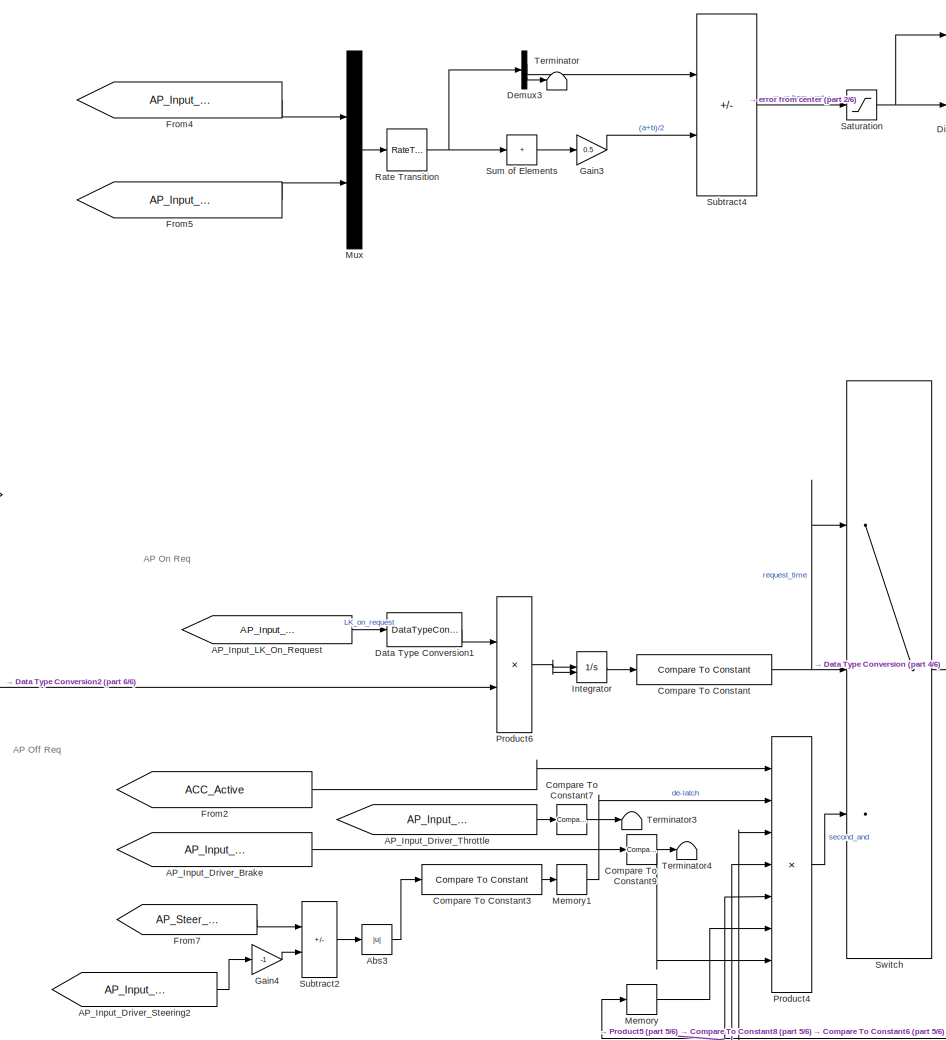
[diagram: AP/AP_Logic - part 1/6, central region]
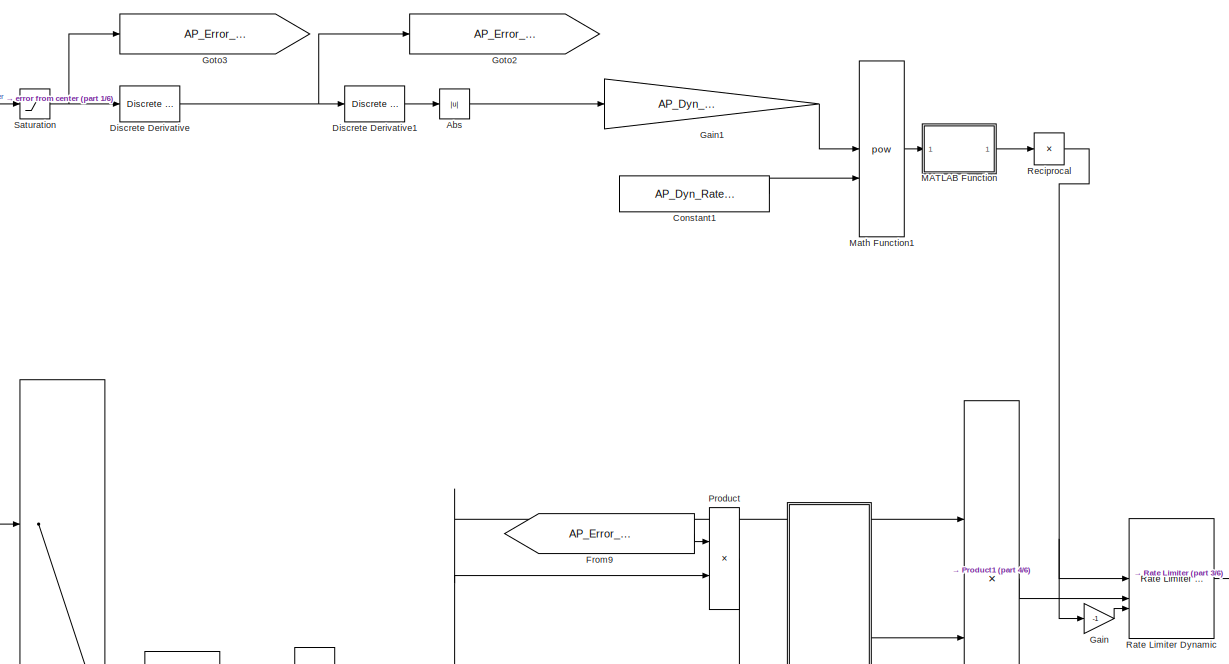
[diagram: AP/AP_Logic - part 2/6, top center region]
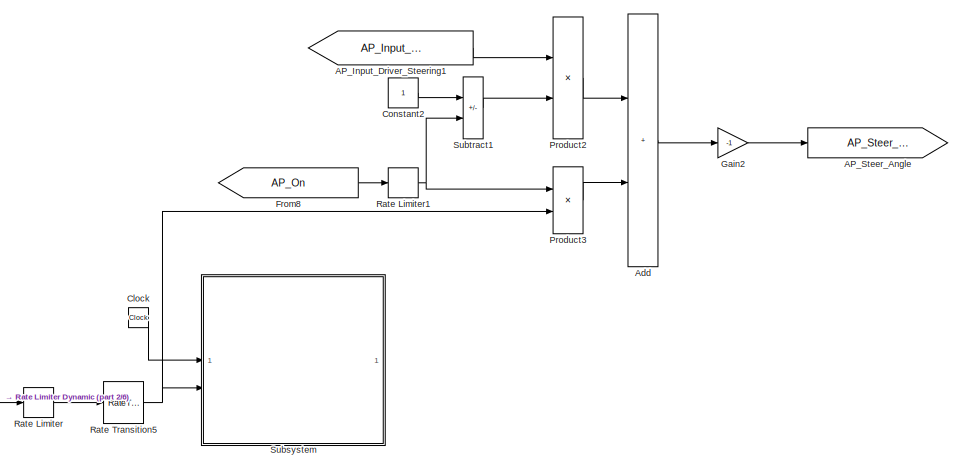
[diagram: AP/AP_Logic - part 3/6, top right region]
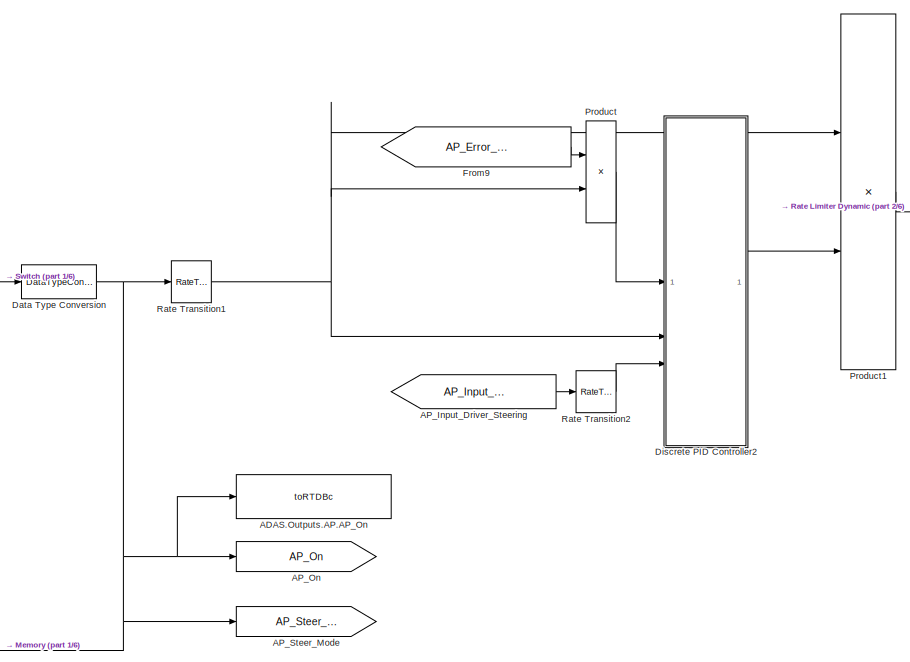
[diagram: AP/AP_Logic - part 4/6, central region]
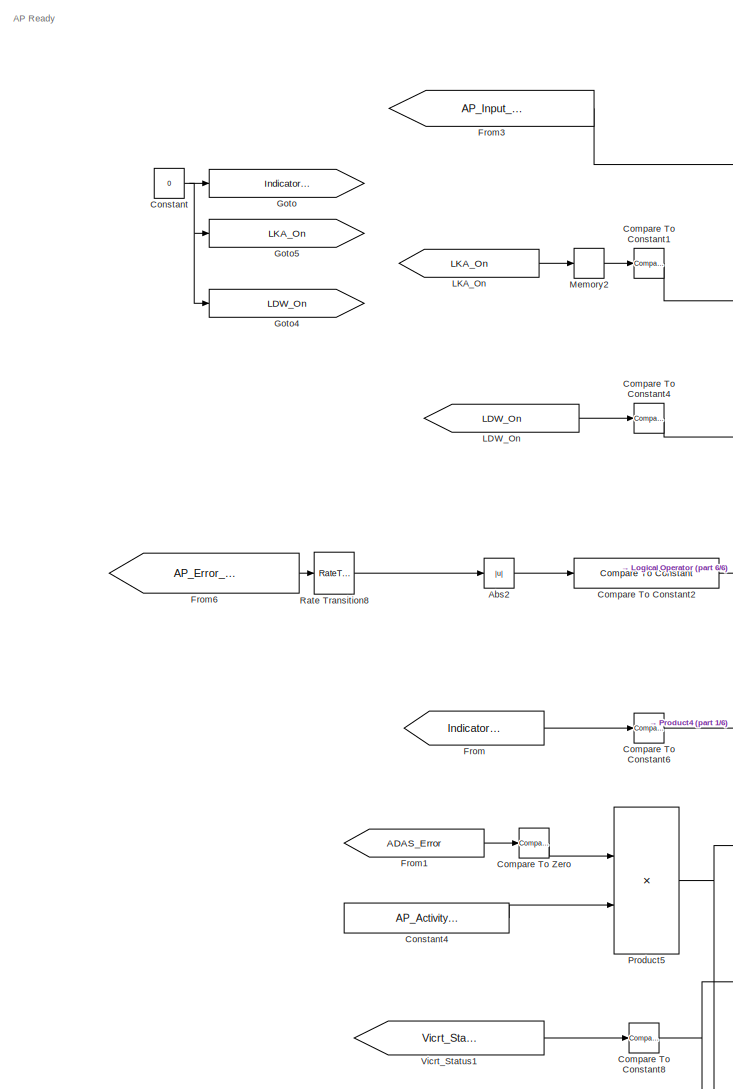
[diagram: AP/AP_Logic - part 5/6, middle left region]
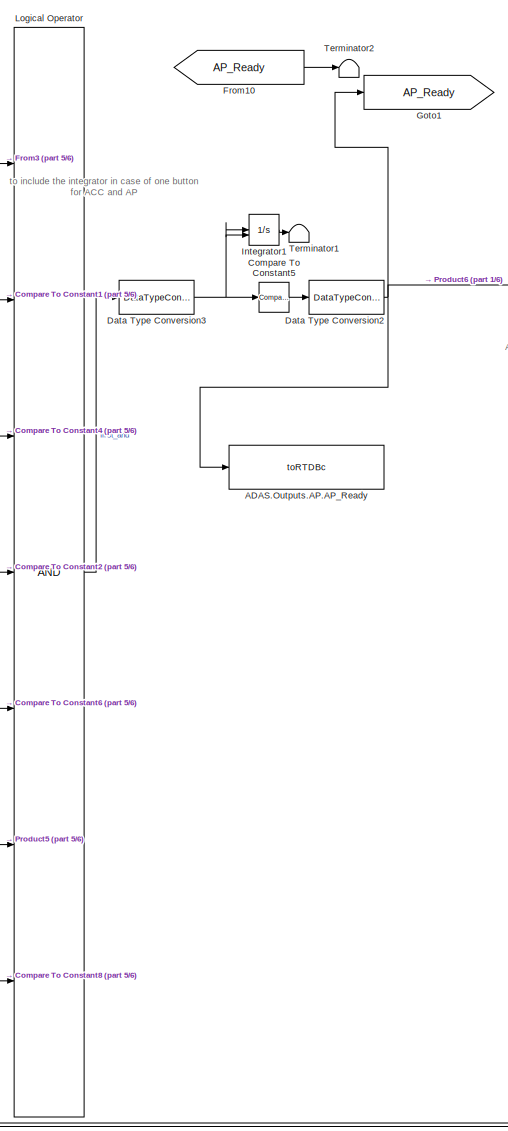
[diagram: AP/AP_Logic - part 6/6, middle left region]
BLOCK [SubSystem] AP/AP_Logic
BLOCK [Reference] AP/AP_Logic/ADAS.Outputs.AP.AP_On  REF=simwbSfunlib/toRTDBc
  SourceBlock = simwbSfunlib/toRTDBc
  SourceProductName = SimWB MLToolkit
  SourceType = RTDB_Output
BLOCK [Reference] AP/AP_Logic/ADAS.Outputs.AP.AP_Ready  REF=simwbSfunlib/toRTDBc
  SourceBlock = simwbSfunlib/toRTDBc
  SourceProductName = SimWB MLToolkit
  SourceType = RTDB_Output
BLOCK [From] AP/AP_Logic/AP_Input_Driver_Brake
  GotoTag = AP_Input_Driver_Brake
  TagVisibility = global
BLOCK [From] AP/AP_Logic/AP_Input_Driver_Steering
  GotoTag = AP_Input_Driver_Steering
  TagVisibility = global
BLOCK [From] AP/AP_Logic/AP_Input_Driver_Steering1
  GotoTag = AP_Input_Driver_Steering
  TagVisibility = global
BLOCK [From] AP/AP_Logic/AP_Input_Driver_Steering2
  GotoTag = AP_Input_Driver_Steering
  TagVisibility = global
BLOCK [From] AP/AP_Logic/AP_Input_Driver_Throttle
  Commented = on
  GotoTag = AP_Input_Driver_Throttle
  TagVisibility = global
BLOCK [From] AP/AP_Logic/AP_Input_LK_On_Request
  GotoTag = AP_Input_LK_On_Request
  TagVisibility = global
BLOCK [Goto] AP/AP_Logic/AP_On 
  GotoTag = AP_On
  TagVisibility = global
BLOCK [Goto] AP/AP_Logic/AP_Steer_Angle
  GotoTag = AP_Steer_Angle
  TagVisibility = global
BLOCK [Goto] AP/AP_Logic/AP_Steer_Mode
  GotoTag = AP_Steer_Mode
  TagVisibility = global
BLOCK [Abs] AP/AP_Logic/Abs
  SaturateOnIntegerOverflow = off
BLOCK [Abs] AP/AP_Logic/Abs2
  SaturateOnIntegerOverflow = off
BLOCK [Abs] AP/AP_Logic/Abs3
  SaturateOnIntegerOverflow = off
BLOCK [Sum] AP/AP_Logic/Add
  IconShape = rectangular
BLOCK [Clock] AP/AP_Logic/Clock
  Commented = on
BLOCK [Reference] AP/AP_Logic/Compare To Constant  REF=simulink/Logic and Bit
Operations/Compare
To Constant
  SourceBlock = simulink/Logic and Bit\nOperations/Compare\nTo Constant
  SourceType = Compare To Constant
BLOCK [Reference] AP/AP_Logic/Compare To Constant1  REF=simulink/Logic and Bit
Operations/Compare
To Constant
  SourceBlock = simulink/Logic and Bit\nOperations/Compare\nTo Constant
  SourceType = Compare To Constant
BLOCK [Reference] AP/AP_Logic/Compare To Constant2  REF=simulink/Logic and Bit
Operations/Compare
To Constant
  SourceBlock = simulink/Logic and Bit\nOperations/Compare\nTo Constant
  SourceType = Compare To Constant
BLOCK [Reference] AP/AP_Logic/Compare To Constant3  REF=simulink/Logic and Bit
Operations/Compare
To Constant
  SourceBlock = simulink/Logic and Bit\nOperations/Compare\nTo Constant
  SourceType = Compare To Constant
BLOCK [Reference] AP/AP_Logic/Compare To Constant4  REF=simulink/Logic and Bit
Operations/Compare
To Constant
  SourceBlock = simulink/Logic and Bit\nOperations/Compare\nTo Constant
  SourceType = Compare To Constant
BLOCK [Reference] AP/AP_Logic/Compare To Constant5  REF=simulink/Logic and Bit
Operations/Compare
To Constant
  SourceBlock = simulink/Logic and Bit\nOperations/Compare\nTo Constant
  SourceType = Compare To Constant
BLOCK [Reference] AP/AP_Logic/Compare To Constant6  REF=simulink/Logic and Bit
Operations/Compare
To Constant
  SourceBlock = simulink/Logic and Bit\nOperations/Compare\nTo Constant
  SourceType = Compare To Constant
BLOCK [Reference] AP/AP_Logic/Compare To Constant7  REF=simulink/Logic and Bit
Operations/Compare
To Constant
  Commented = on
  SourceBlock = simulink/Logic and Bit\nOperations/Compare\nTo Constant
  SourceType = Compare To Constant
BLOCK [Reference] AP/AP_Logic/Compare To Constant8  REF=simulink/Logic and Bit
Operations/Compare
To Constant
  SourceBlock = simulink/Logic and Bit\nOperations/Compare\nTo Constant
  SourceType = Compare To Constant
BLOCK [Reference] AP/AP_Logic/Compare To Constant9  REF=simulink/Logic and Bit
Operations/Compare
To Constant
  SourceBlock = simulink/Logic and Bit\nOperations/Compare\nTo Constant
  SourceType = Compare To Constant
BLOCK [Reference] AP/AP_Logic/Compare To Zero  REF=simulink/Logic and Bit
Operations/Compare
To Zero
  SourceBlock = simulink/Logic and Bit\nOperations/Compare\nTo Zero
  SourceType = Compare To Zero
BLOCK [Constant] AP/AP_Logic/Constant
  Value = 0
BLOCK [Constant] AP/AP_Logic/Constant1
  Value = AP_Dyn_Rate_Limiter_Power
BLOCK [Constant] AP/AP_Logic/Constant2
BLOCK [Constant] AP/AP_Logic/Constant4
  Value = AP_Activity_Flag
BLOCK [DataTypeConversion] AP/AP_Logic/Data Type Conversion
  OutDataTypeStr = double
  RndMeth = Floor
  SaturateOnIntegerOverflow = off
BLOCK [DataTypeConversion] AP/AP_Logic/Data Type Conversion1
  OutDataTypeStr = double
  RndMeth = Floor
  SaturateOnIntegerOverflow = off
BLOCK [DataTypeConversion] AP/AP_Logic/Data Type Conversion2
  OutDataTypeStr = double
  RndMeth = Floor
  SaturateOnIntegerOverflow = off
BLOCK [DataTypeConversion] AP/AP_Logic/Data Type Conversion3
  OutDataTypeStr = double
  RndMeth = Floor
  SaturateOnIntegerOverflow = off
BLOCK [Demux] AP/AP_Logic/Demux3
  Outputs = 2
BLOCK [Reference] AP/AP_Logic/Discrete Derivative  REF=simulink/Discrete/Discrete Derivative
  SourceBlock = simulink/Discrete/Discrete Derivative
  SourceType = Discrete Derivative
BLOCK [Reference] AP/AP_Logic/Discrete Derivative1  REF=simulink/Discrete/Discrete Derivative
  SourceBlock = simulink/Discrete/Discrete Derivative
  SourceType = Discrete Derivative
BLOCK [SubSystem] AP/AP_Logic/Discrete PID Controller2
BLOCK [Constant] AP/AP_Logic/Discrete PID Controller2/ADAS_Control_Mode
  Value = ADAS_Control_Mode
BLOCK [Constant] AP/AP_Logic/Discrete PID Controller2/AP_D(1)(1)
  Value = AP_D(1)
BLOCK [Constant] AP/AP_Logic/Discrete PID Controller2/AP_D(2)(1)1
  Value = AP_D(2)
BLOCK [Constant] AP/AP_Logic/Discrete PID Controller2/AP_I(1)(1)
  Value = AP_I(1)
BLOCK [Constant] AP/AP_Logic/Discrete PID Controller2/AP_I(2)(1)1
  Value = AP_I(2)
BLOCK [Constant] AP/AP_Logic/Discrete PID Controller2/AP_P(1)(1)
  Value = AP_P(1)
BLOCK [Constant] AP/AP_Logic/Discrete PID Controller2/AP_P(2)(1)1
  Value = AP_P(2)
BLOCK [Constant] AP/AP_Logic/Discrete PID Controller2/Constant
  Value = 0
BLOCK [Demux] AP/AP_Logic/Discrete PID Controller2/Demux
  Outputs = 3
BLOCK [Reference] AP/AP_Logic/Discrete PID Controller2/Discrete PID Controller2  REF=slpidlib/PID Controller
  SourceBlock = slpidlib/PID Controller
  SourceType = PID 1dof
BLOCK [Inport] AP/AP_Logic/Discrete PID Controller2/In1
BLOCK [Inport] AP/AP_Logic/Discrete PID Controller2/In2
  Port = 2
BLOCK [Inport] AP/AP_Logic/Discrete PID Controller2/In4
  Port = 3
BLOCK [MultiPortSwitch] AP/AP_Logic/Discrete PID Controller2/Multiport Switch
  DataPortForDefault = Additional data port
  DiagnosticForDefault = None
  InputSameDT = off
  Inputs = 2
  SaturateOnIntegerOverflow = off
BLOCK [Mux] AP/AP_Logic/Discrete PID Controller2/Mux
  DisplayOption = bar
  Inputs = 3
BLOCK [Mux] AP/AP_Logic/Discrete PID Controller2/Mux1
  DisplayOption = bar
  Inputs = 3
BLOCK [Outport] AP/AP_Logic/Discrete PID Controller2/Out1
  VectorParamsAs1DForOutWhenUnconnected = off
BLOCK [From] AP/AP_Logic/From
  GotoTag = Indicator_On
BLOCK [From] AP/AP_Logic/From1
  GotoTag = ADAS_Error
  TagVisibility = global
BLOCK [From] AP/AP_Logic/From10
  GotoTag = AP_Ready
  TagVisibility = global
BLOCK [From] AP/AP_Logic/From2
  GotoTag = ACC_Active
  TagVisibility = global
BLOCK [From] AP/AP_Logic/From3
  GotoTag = AP_Input_ACC_Ready
  TagVisibility = global
BLOCK [From] AP/AP_Logic/From4
  GotoTag = AP_Input_laneGap_left
  TagVisibility = global
BLOCK [From] AP/AP_Logic/From5
  GotoTag = AP_Input_laneGap_right
  TagVisibility = global
BLOCK [From] AP/AP_Logic/From6
  GotoTag = AP_Error_fromcenter_derivate
  TagVisibility = global
BLOCK [From] AP/AP_Logic/From7
  GotoTag = AP_Steer_Angle
  TagVisibility = global
BLOCK [From] AP/AP_Logic/From8
  GotoTag = AP_On
  TagVisibility = global
BLOCK [From] AP/AP_Logic/From9
  GotoTag = AP_Error_fromcenter
  TagVisibility = global
BLOCK [Gain] AP/AP_Logic/Gain
  Gain = -1
BLOCK [Gain] AP/AP_Logic/Gain1
  Gain = AP_Dyn_Rate_Limiter_Gain
BLOCK [Gain] AP/AP_Logic/Gain2
  Gain = -1
BLOCK [Gain] AP/AP_Logic/Gain3
  Gain = 0.5
BLOCK [Gain] AP/AP_Logic/Gain4
  Gain = -1
BLOCK [Goto] AP/AP_Logic/Goto
  GotoTag = Indicator_On
BLOCK [Goto] AP/AP_Logic/Goto1
  GotoTag = AP_Ready
  TagVisibility = global
BLOCK [Goto] AP/AP_Logic/Goto2
  GotoTag = AP_Error_fromcenter_derivate
  TagVisibility = global
BLOCK [Goto] AP/AP_Logic/Goto3
  GotoTag = AP_Error_fromcenter
  TagVisibility = global
BLOCK [Goto] AP/AP_Logic/Goto4
  GotoTag = LDW_On
BLOCK [Goto] AP/AP_Logic/Goto5
  GotoTag = LKA_On
BLOCK [Integrator] AP/AP_Logic/Integrator
  ExternalReset = either
BLOCK [Integrator] AP/AP_Logic/Integrator1
  ExternalReset = either
BLOCK [From] AP/AP_Logic/LDW_On
  GotoTag = LDW_On
BLOCK [From] AP/AP_Logic/LKA_On
  GotoTag = LKA_On
BLOCK [Logic] AP/AP_Logic/Logical Operator
  AllPortsSameDT = off
  Inputs = 7
  OutDataTypeStr = boolean
BLOCK [SubSystem] AP/AP_Logic/MATLAB Function
  ErrorFcn = Stateflow.Translate.translate
  PermitHierarchicalResolution = ExplicitOnly
  SFBlockType = MATLAB Function
  TreatAsAtomicUnit = on
BLOCK [Demux] AP/AP_Logic/MATLAB Function/ Demux 
  Outputs = 1
BLOCK [S-Function] AP/AP_Logic/MATLAB Function/ SFunction 
  EnableBusSupport = on
  FunctionName = sf_sfun
  PortCounts = [1 2]
  SFcnIsStateOwnerBlock = off
  SFunctionDeploymentMode = off
  Tag = Stateflow S-Function 2
BLOCK [Terminator] AP/AP_Logic/MATLAB Function/ Terminator 
BLOCK [Inport] AP/AP_Logic/MATLAB Function/u
BLOCK [Outport] AP/AP_Logic/MATLAB Function/y
BLOCK [Math] AP/AP_Logic/Math Function1
  Operator = pow
  SignedPower = on
BLOCK [Memory] AP/AP_Logic/Memory
  NameLocation = top
BLOCK [Memory] AP/AP_Logic/Memory1
BLOCK [Memory] AP/AP_Logic/Memory2
BLOCK [Mux] AP/AP_Logic/Mux
  DisplayOption = bar
  Inputs = 2
BLOCK [Product] AP/AP_Logic/Product
BLOCK [Product] AP/AP_Logic/Product1
BLOCK [Product] AP/AP_Logic/Product2
BLOCK [Product] AP/AP_Logic/Product3
BLOCK [Product] AP/AP_Logic/Product4
  Inputs = 7
BLOCK [Product] AP/AP_Logic/Product5
BLOCK [Product] AP/AP_Logic/Product6
BLOCK [RateLimiter] AP/AP_Logic/Rate Limiter
  FallingSlewLimit = -AP_Steer_Rate_Max_radps
  RisingSlewLimit = AP_Steer_Rate_Max_radps
  SampleTimeMode = inherited
BLOCK [Reference] AP/AP_Logic/Rate Limiter Dynamic  REF=simulink/Discontinuities/Rate Limiter
Dynamic
  SourceBlock = simulink/Discontinuities/Rate Limiter\nDynamic
  SourceType = Rate Limiter Dynamic
BLOCK [RateLimiter] AP/AP_Logic/Rate Limiter1
  FallingSlewLimit = -AP_Transition_Rate
  RisingSlewLimit = AP_Transition_Rate
  SampleTimeMode = inherited
BLOCK [RateTransition] AP/AP_Logic/Rate Transition
  OutPortSampleTime = 1/AP_Freq_Hz
BLOCK [RateTransition] AP/AP_Logic/Rate Transition1
  OutPortSampleTime = 1/AP_Freq_Hz
BLOCK [RateTransition] AP/AP_Logic/Rate Transition2
  OutPortSampleTime = 1/AP_Freq_Hz
BLOCK [RateTransition] AP/AP_Logic/Rate Transition5
  OutPortSampleTime = 1/1000
BLOCK [RateTransition] AP/AP_Logic/Rate Transition8
  OutPortSampleTime = 1/1000
BLOCK [Product] AP/AP_Logic/Reciprocal
  Inputs = /
  RndMeth = Zero
  SaturateOnIntegerOverflow = on
BLOCK [Saturate] AP/AP_Logic/Saturation
  LowerLimit = -AP_Error_Max
  UpperLimit = AP_Error_Max
BLOCK [SubSystem] AP/AP_Logic/Subsystem
  Commented = on
BLOCK [Outport] AP/AP_Logic/Subsystem/1kHz_Interpolation
  VectorParamsAs1DForOutWhenUnconnected = off
BLOCK [Inport] AP/AP_Logic/Subsystem/Clock
BLOCK [Delay] AP/AP_Logic/Subsystem/Delay
  DelayLength = 1000/AP_Freq_Hz
  InitialCondition = -1/AP_Freq_Hz
  InputPortMap = u0
BLOCK [Delay] AP/AP_Logic/Subsystem/Delay1
  DelayLength = 1000/AP_Freq_Hz
  InputPortMap = u0
BLOCK [Delay] AP/AP_Logic/Subsystem/Delay2
  DelayLength = 1000/AP_Freq_Hz
  InputPortMap = u0
BLOCK [Inport] AP/AP_Logic/Subsystem/Input_Signal
  Port = 2
BLOCK [Reference] AP/AP_Logic/Subsystem/Lookup Table Dynamic  REF=simulink/Lookup
Tables/Lookup
Table
Dynamic
  SourceBlock = simulink/Lookup\nTables/Lookup\nTable\nDynamic
  SourceType = Lookup Table Dynamic
BLOCK [Concatenate] AP/AP_Logic/Subsystem/Vector Concatenate
BLOCK [Concatenate] AP/AP_Logic/Subsystem/Vector Concatenate1
BLOCK [ZeroOrderHold] AP/AP_Logic/Subsystem/Zero-Order Hold1
  SampleTime = 1/AP_Freq_Hz
BLOCK [ZeroOrderHold] AP/AP_Logic/Subsystem/Zero-Order Hold2
  SampleTime = 1/AP_Freq_Hz
BLOCK [ZeroOrderHold] AP/AP_Logic/Subsystem/Zero-Order Hold3
  SampleTime = 1e-3
BLOCK [ZeroOrderHold] AP/AP_Logic/Subsystem/Zero-Order Hold4
  SampleTime = 1e-3
BLOCK [Sum] AP/AP_Logic/Subtract1
  IconShape = rectangular
  Inputs = +-
BLOCK [Sum] AP/AP_Logic/Subtract2
  IconShape = rectangular
  Inputs = +-
BLOCK [Sum] AP/AP_Logic/Subtract4
  IconShape = rectangular
  Inputs = -+
BLOCK [Sum] AP/AP_Logic/Sum of Elements
  IconShape = rectangular
  Inputs = +
BLOCK [Switch] AP/AP_Logic/Switch
  Criteria = u2 > Threshold
  InputSameDT = off
  SaturateOnIntegerOverflow = off
BLOCK [Terminator] AP/AP_Logic/Terminator
BLOCK [Terminator] AP/AP_Logic/Terminator1
BLOCK [Terminator] AP/AP_Logic/Terminator2
BLOCK [Terminator] AP/AP_Logic/Terminator3
  Commented = on
BLOCK [Terminator] AP/AP_Logic/Terminator4
  Commented = on
BLOCK [From] AP/AP_Logic/Vicrt_Status1
  GotoTag = Vicrt_Status
  TagVisibility = global
BLOCK [SubSystem] AP/AP_Outputs
BLOCK [Goto] AP/AP_Outputs/AP_Output_Steer_Angle
  GotoTag = AP_Output_Steer_Angle
  TagVisibility = global
BLOCK [Goto] AP/AP_Outputs/AP_Output_Steer_Torque
  GotoTag = AP_Output_Steer_Torque
  TagVisibility = global
BLOCK [From] AP/AP_Outputs/AP_Steer_Angle
  GotoTag = AP_Steer_Angle
  TagVisibility = global
BLOCK [From] AP/AP_Outputs/AP_Steer_Mode
  GotoTag = AP_Steer_Mode
  TagVisibility = global
BLOCK [From] AP/AP_Outputs/From
  GotoTag = AP_Output_Steer_Torque
  TagVisibility = global
BLOCK [Terminator] AP/AP_Outputs/Terminator
BLOCK [Constant] Constant
  NameLocation = right
  Value = 0
BLOCK [Reference] Controller  REF=viworldsim_lib/Controller
  SourceBlock = viworldsim_lib/Controller
BLOCK [From] From1
  GotoTag = brake_demand
  TagVisibility = global
BLOCK [From] From2
  GotoTag = gear_demand
  TagVisibility = global
BLOCK [From] From3
  GotoTag = throttle_demand
  TagVisibility = global
BLOCK [From] From5
  GotoTag = clutch_demand
  TagVisibility = global
BLOCK [From] From6
  GotoTag = steering_angle_demand
  TagVisibility = global
BLOCK [From] From7
  GotoTag = steering_torque_demand
  TagVisibility = global
BLOCK [SubSystem] From_SimWB_Host
  Commented = on
  UserDataPersistent = on
BLOCK [S-Function] From_SimWB_Host/Byte Unpack
  EnableBusSupport = off
  FunctionName = byte2any
  Parameters = dimensionsout, datatypesout, byteAlign
  SFcnIsStateOwnerBlock = off
  SFunctionDeploymentMode = off
BLOCK [Terminator] From_SimWB_Host/Term
BLOCK [S-Function] From_SimWB_Host/UDP Receive
  EnableBusSupport = off
  FunctionName = sdspFromNetwork
  Parameters = localURL, localPort, remoteURL, remotePort, recvBufferSize, signalDatatype, dims, sampletime, isVarSize, blockingTime
  SFcnIsStateOwnerBlock = off
  SFunctionDeploymentMode = off
BLOCK [Outport] From_SimWB_Host/spare_1
BLOCK [Goto] Goto2
  GotoTag = Vehicle_outputs
  TagVisibility = global
BLOCK [SubSystem] INPUT
BLOCK [SubSystem] INPUT/Inputs for CRT
BLOCK [SubSystem] INPUT/Inputs for CRT/Clutch_manager
BLOCK [DataTypeConversion] INPUT/Inputs for CRT/Clutch_manager/Cast To Double
  OutDataTypeStr = double
  RndMeth = Floor
  SaturateOnIntegerOverflow = off
BLOCK [Reference] INPUT/Inputs for CRT/Clutch_manager/Compare To Constant4  REF=simulink/Logic and Bit
Operations/Compare
To Constant
  SourceBlock = simulink/Logic and Bit\nOperations/Compare\nTo Constant
  SourceType = Compare To Constant
BLOCK [Outport] INPUT/Inputs for CRT/Clutch_manager/clutch
BLOCK [Inport] INPUT/Inputs for CRT/Clutch_manager/throttle
BLOCK [Constant] INPUT/Inputs for CRT/Constant
  Value = 0
BLOCK [Constant] INPUT/Inputs for CRT/Constant1
BLOCK [From] INPUT/Inputs for CRT/From
  GotoTag = AP_Output_Steer_Angle
  TagVisibility = global
BLOCK [From] INPUT/Inputs for CRT/From1
  GotoTag = ACC_Output_Throttle
  TagVisibility = global
BLOCK [From] INPUT/Inputs for CRT/From2
  GotoTag = ACC_Output_Brake
  TagVisibility = global
BLOCK [From] INPUT/Inputs for CRT/From3
  GotoTag = ACC_Output_Throttle
  TagVisibility = global
BLOCK [Goto] INPUT/Inputs for CRT/Goto
  GotoTag = throttle_demand
  TagVisibility = global
BLOCK [Goto] INPUT/Inputs for CRT/Goto1
  GotoTag = steering_angle_demand
  TagVisibility = global
BLOCK [Goto] INPUT/Inputs for CRT/Goto2
  GotoTag = steering_torque_demand
  TagVisibility = global
BLOCK [Goto] INPUT/Inputs for CRT/Goto3
  GotoTag = clutch_demand
  TagVisibility = global
BLOCK [Goto] INPUT/Inputs for CRT/Goto4
  GotoTag = brake_demand
  TagVisibility = global
BLOCK [Goto] INPUT/Inputs for CRT/Goto5
  GotoTag = gear_demand
  TagVisibility = global
BLOCK [SubSystem] OUTPUT
BLOCK [SubSystem] OUTPUT/VI-CarRealTime_Outputs
BLOCK [From] OUTPUT/VI-CarRealTime_Outputs/From
  GotoTag = Vehicle_outputs
  TagVisibility = global
BLOCK [Gain] OUTPUT/VI-CarRealTime_Outputs/Gain
  Gain = 1/2
BLOCK [Goto] OUTPUT/VI-CarRealTime_Outputs/Goto
  GotoTag = Vehicle_Speed
  TagVisibility = global
BLOCK [Goto] OUTPUT/VI-CarRealTime_Outputs/Goto1
  GotoTag = Driver_Steering
  TagVisibility = global
BLOCK [Goto] OUTPUT/VI-CarRealTime_Outputs/Goto2
  GotoTag = Front_Axle_Steer
  TagVisibility = global
BLOCK [Goto] OUTPUT/VI-CarRealTime_Outputs/Goto3
  GotoTag = Driver_Throttle
  TagVisibility = global
BLOCK [Goto] OUTPUT/VI-CarRealTime_Outputs/Goto4
  GotoTag = Driver_Brake
  TagVisibility = global
BLOCK [Goto] OUTPUT/VI-CarRealTime_Outputs/Goto5
  GotoTag = Longitudinal_Accelerations
  TagVisibility = global
BLOCK [Goto] OUTPUT/VI-CarRealTime_Outputs/Goto6
  GotoTag = Lateral_Accelerations
  TagVisibility = global
BLOCK [Goto] OUTPUT/VI-CarRealTime_Outputs/Goto7
  GotoTag = Steering_feedback_torque
  TagVisibility = global
BLOCK [BusSelector] OUTPUT/VI-CarRealTime_Outputs/Log_bus
  OutputAsBus = on
  OutputSignals = VI_CarRealTime:Outputs:chassis_velocities:longitudinal,VI_CarRealTime:Outputs:driver_demands:steering,VI_CarRealTime:Outputs:Wheel:Spindle_Steer:L1,VI_CarRealTime:Outputs:Wheel:Spindle_Steer:R1,VI_CarRealTime:Outputs:driver_demands:throttle,VI_CarRealTime:Outputs:driver_demands:brake,VI_CarRealTime:Outputs:chassis_accelerations:longitudinal,VI_CarRealTime:Outputs:chassis_accelerations:lateral,VI_C...<+68ch>  <repeated x3 — deduplicated; at blocks: Log_bus, internal_bus>
BLOCK [Scope] OUTPUT/VI-CarRealTime_Outputs/Scope
  Floating = off
  NumInputPorts = 2
  ScopeSpecificationString = Simulink.scopes.TimeScopeBlockCfg('CurrentConfiguration', extmgr.ConfigurationSet(extmgr.Configuration('Core','General UI',true),extmgr.Configuration('Core','Source UI',true),extmgr.Configuration('Sources','WiredSimulink',true,'DataLoggingVariableName','ScopeData1'),extmgr.Configuration('Visuals','Time Domain',true,'SerializedDisplays',{struct('MinYLimReal','0','MaxYLimReal','150','YLabelReal','sp...<+2031ch>
BLOCK [Sum] OUTPUT/VI-CarRealTime_Outputs/Sum
BLOCK [Terminator] OUTPUT/VI-CarRealTime_Outputs/Terminator
BLOCK [BusSelector] OUTPUT/VI-CarRealTime_Outputs/internal_bus
BLOCK [SubSystem] OUTPUT/VI-CarRealTime_Outputs2
  Commented = on
BLOCK [Constant] OUTPUT/VI-CarRealTime_Outputs2/Constant
  Value = 0
BLOCK [Gain] OUTPUT/VI-CarRealTime_Outputs2/Gain
  Gain = 1/2
BLOCK [Goto] OUTPUT/VI-CarRealTime_Outputs2/Goto
  GotoTag = Vehicle_Speed
  TagVisibility = global
BLOCK [Goto] OUTPUT/VI-CarRealTime_Outputs2/Goto1
  GotoTag = Driver_Steering
  TagVisibility = global
BLOCK [Goto] OUTPUT/VI-CarRealTime_Outputs2/Goto2
  GotoTag = Front_Axle_Steer
  TagVisibility = global
BLOCK [Goto] OUTPUT/VI-CarRealTime_Outputs2/Goto3
  GotoTag = Driver_Throttle
  TagVisibility = global
BLOCK [Goto] OUTPUT/VI-CarRealTime_Outputs2/Goto4
  GotoTag = Driver_Brake
  TagVisibility = global
BLOCK [Goto] OUTPUT/VI-CarRealTime_Outputs2/Goto5
  GotoTag = Longitudinal_Accelerations
  TagVisibility = global
BLOCK [Goto] OUTPUT/VI-CarRealTime_Outputs2/Goto6
  GotoTag = Lateral_Accelerations
  TagVisibility = global
BLOCK [Goto] OUTPUT/VI-CarRealTime_Outputs2/Goto7
  GotoTag = Steering_feedback_torque
  TagVisibility = global
BLOCK [BusCreator] OUTPUT/VI-CarRealTime_Outputs2/Log_Bus_Creator
  DisplayOption = bar
  InheritFromInputs = on
  Inputs = 9
BLOCK [BusSelector] OUTPUT/VI-CarRealTime_Outputs2/Log_bus
  OutputAsBus = on
BLOCK [Scope] OUTPUT/VI-CarRealTime_Outputs2/Scope
  Floating = off
  NumInputPorts = 2
  ScopeSpecificationString = Simulink.scopes.TimeScopeBlockCfg('CurrentConfiguration', extmgr.ConfigurationSet(extmgr.Configuration('Core','General UI',true),extmgr.Configuration('Core','Source UI',true),extmgr.Configuration('Sources','WiredSimulink',true,'DataLoggingVariableName','ScopeData1'),extmgr.Configuration('Visuals','Time Domain',true,'SerializedDisplays',{struct('MinYLimReal','0','MaxYLimReal','150','YLabelReal','sp...<+2044ch>
BLOCK [Sum] OUTPUT/VI-CarRealTime_Outputs2/Sum
BLOCK [Terminator] OUTPUT/VI-CarRealTime_Outputs2/Terminator
BLOCK [Terminator] OUTPUT/VI-CarRealTime_Outputs2/Terminator1
BLOCK [Reference] OUTPUT/VI-CarRealTime_Outputs2/VI_CarRealTime.Outputs.Steering_System.DriveSim_Steering_Feedback_Torque  REF=simwbSfunlib/fromRTDBm
  SourceBlock = simwbSfunlib/fromRTDBm
  SourceProductName = SimWB MLToolkit
BLOCK [Reference] OUTPUT/VI-CarRealTime_Outputs2/VI_CarRealTime.Outputs.Wheel.Spindle_Steer.L1  REF=simwbSfunlib/fromRTDBm
  SourceBlock = simwbSfunlib/fromRTDBm
  SourceProductName = SimWB MLToolkit
BLOCK [Reference] OUTPUT/VI-CarRealTime_Outputs2/VI_CarRealTime.Outputs.Wheel.Spindle_Steer.R1  REF=simwbSfunlib/fromRTDBm
  SourceBlock = simwbSfunlib/fromRTDBm
  SourceProductName = SimWB MLToolkit
BLOCK [Reference] OUTPUT/VI-CarRealTime_Outputs2/VI_CarRealTime.Outputs.chassis_accelerations.lateral  REF=simwbSfunlib/fromRTDBm
  SourceBlock = simwbSfunlib/fromRTDBm
  SourceProductName = SimWB MLToolkit
BLOCK [Reference] OUTPUT/VI-CarRealTime_Outputs2/VI_CarRealTime.Outputs.chassis_accelerations.longitudinal  REF=simwbSfunlib/fromRTDBm
  SourceBlock = simwbSfunlib/fromRTDBm
  SourceProductName = SimWB MLToolkit
BLOCK [Reference] OUTPUT/VI-CarRealTime_Outputs2/VI_CarRealTime.Outputs.chassis_velocities.longitudinal  REF=simwbSfunlib/fromRTDBm
  SourceBlock = simwbSfunlib/fromRTDBm
  SourceProductName = SimWB MLToolkit
BLOCK [Reference] OUTPUT/VI-CarRealTime_Outputs2/VI_CarRealTime.Outputs.driver_demands.brake  REF=simwbSfunlib/fromRTDBm
  SourceBlock = simwbSfunlib/fromRTDBm
  SourceProductName = SimWB MLToolkit
BLOCK [Reference] OUTPUT/VI-CarRealTime_Outputs2/VI_CarRealTime.Outputs.driver_demands.steering  REF=simwbSfunlib/fromRTDBm
  SourceBlock = simwbSfunlib/fromRTDBm
  SourceProductName = SimWB MLToolkit
BLOCK [Reference] OUTPUT/VI-CarRealTime_Outputs2/VI_CarRealTime.Outputs.driver_demands.throttle  REF=simwbSfunlib/fromRTDBm
  SourceBlock = simwbSfunlib/fromRTDBm
  SourceProductName = SimWB MLToolkit
BLOCK [SubSystem] OUTPUT/WorldSim_Sensor_Outputs
BLOCK [Constant] OUTPUT/WorldSim_Sensor_Outputs/Constant
  Value = zeros(64,7)
BLOCK [Demux] OUTPUT/WorldSim_Sensor_Outputs/Demux
  Outputs = 2
BLOCK [From] OUTPUT/WorldSim_Sensor_Outputs/From1
  GotoTag = collision
  TagVisibility = global
BLOCK [From] OUTPUT/WorldSim_Sensor_Outputs/From2
  GotoTag = front_lane_coefficients
BLOCK [From] OUTPUT/WorldSim_Sensor_Outputs/From3
  GotoTag = front_map_obstacles
BLOCK [From] OUTPUT/WorldSim_Sensor_Outputs/From4
  GotoTag = rear_map_obstacles
BLOCK [From] OUTPUT/WorldSim_Sensor_Outputs/From5
  GotoTag = rear_lane_coefficients
BLOCK [From] OUTPUT/WorldSim_Sensor_Outputs/From6
  GotoTag = message_count
BLOCK [From] OUTPUT/WorldSim_Sensor_Outputs/From7
  GotoTag = valid_front_map_obstacles
BLOCK [From] OUTPUT/WorldSim_Sensor_Outputs/From8
  GotoTag = valid_rear_map_obstacles
BLOCK [Goto] OUTPUT/WorldSim_Sensor_Outputs/Goto
  GotoTag = collision_additive
  TagVisibility = global
BLOCK [Goto] OUTPUT/WorldSim_Sensor_Outputs/Goto1
  GotoTag = front_lane_coefficients
BLOCK [Goto] OUTPUT/WorldSim_Sensor_Outputs/Goto2
  GotoTag = front_map_obstacles
BLOCK [Goto] OUTPUT/WorldSim_Sensor_Outputs/Goto3
  GotoTag = rear_lane_coefficients
BLOCK [Goto] OUTPUT/WorldSim_Sensor_Outputs/Goto4
  GotoTag = rear_map_obstacles
BLOCK [Goto] OUTPUT/WorldSim_Sensor_Outputs/Goto5
  GotoTag = message_count
BLOCK [Goto] OUTPUT/WorldSim_Sensor_Outputs/Goto6
  GotoTag = valid_front_map_obstacles
BLOCK [Goto] OUTPUT/WorldSim_Sensor_Outputs/Goto7
  GotoTag = valid_rear_map_obstacles
BLOCK [Goto] OUTPUT/WorldSim_Sensor_Outputs/Gotocollision_goto7
  GotoTag = collision
  TagVisibility = global
BLOCK [SubSystem] OUTPUT/WorldSim_Sensor_Outputs/MATLAB Function
  ErrorFcn = Stateflow.Translate.translate
  PermitHierarchicalResolution = ExplicitOnly
  SFBlockType = MATLAB Function
  TreatAsAtomicUnit = on
BLOCK [Demux] OUTPUT/WorldSim_Sensor_Outputs/MATLAB Function/ Demux 
  Outputs = 1
BLOCK [S-Function] OUTPUT/WorldSim_Sensor_Outputs/MATLAB Function/ SFunction 
  EnableBusSupport = on
  FunctionName = sf_sfun
  PortCounts = [1 3]
  SFcnIsStateOwnerBlock = off
  SFunctionDeploymentMode = off
  Tag = Stateflow S-Function 4
BLOCK [Terminator] OUTPUT/WorldSim_Sensor_Outputs/MATLAB Function/ Terminator 
BLOCK [Inport] OUTPUT/WorldSim_Sensor_Outputs/MATLAB Function/lane_coefficiants
BLOCK [Outport] OUTPUT/WorldSim_Sensor_Outputs/MATLAB Function/left_lane_distance
BLOCK [Outport] OUTPUT/WorldSim_Sensor_Outputs/MATLAB Function/right_lane_distance
  Port = 2
BLOCK [Memory] OUTPUT/WorldSim_Sensor_Outputs/Memory
  InheritSampleTime = on
  NameLocation = top
BLOCK [SubSystem] OUTPUT/WorldSim_Sensor_Outputs/Radar_selection
BLOCK [BusCreator] OUTPUT/WorldSim_Sensor_Outputs/Radar_selection/Bus Creator
  DisplayOption = bar
  InheritFromInputs = on
  Inputs = 12
BLOCK [Constant] OUTPUT/WorldSim_Sensor_Outputs/Radar_selection/Constant1
  Value = radar_source
BLOCK [Demux] OUTPUT/WorldSim_Sensor_Outputs/Radar_selection/Demux
  Outputs = 3
BLOCK [Demux] OUTPUT/WorldSim_Sensor_Outputs/Radar_selection/Demux1
BLOCK [Demux] OUTPUT/WorldSim_Sensor_Outputs/Radar_selection/Demux2
BLOCK [Demux] OUTPUT/WorldSim_Sensor_Outputs/Radar_selection/Demux3
BLOCK [From] OUTPUT/WorldSim_Sensor_Outputs/Radar_selection/From
  GotoTag = SensorTargets_300000_id_mux
  TagVisibility = global
BLOCK [From] OUTPUT/WorldSim_Sensor_Outputs/Radar_selection/From1
  GotoTag = radar_virtual
  TagVisibility = global
BLOCK [From] OUTPUT/WorldSim_Sensor_Outputs/Radar_selection/From10
  GotoTag = SensorTargets_300002_id_mux
  TagVisibility = global
BLOCK [From] OUTPUT/WorldSim_Sensor_Outputs/Radar_selection/From11
  GotoTag = SensorTargets_300002_distanceToCollision_mux
  TagVisibility = global
BLOCK [From] OUTPUT/WorldSim_Sensor_Outputs/Radar_selection/From12
  GotoTag = SensorTargets_300002_azimuthInSensor_mux
  TagVisibility = global
BLOCK [From] OUTPUT/WorldSim_Sensor_Outputs/Radar_selection/From13
  GotoTag = SensorTargets_300002_type_mux
  TagVisibility = global
BLOCK [From] OUTPUT/WorldSim_Sensor_Outputs/Radar_selection/From2
  GotoTag = SensorTargets_300000_distanceToCollision_mux
  TagVisibility = global
BLOCK [From] OUTPUT/WorldSim_Sensor_Outputs/Radar_selection/From3
  GotoTag = SensorTargets_300000_azimuthInSensor_mux
  TagVisibility = global
BLOCK [From] OUTPUT/WorldSim_Sensor_Outputs/Radar_selection/From4
  GotoTag = SensorTargets_300000_type_mux
  TagVisibility = global
BLOCK [From] OUTPUT/WorldSim_Sensor_Outputs/Radar_selection/From5
  GotoTag = SensorTargets_300001_id_mux
  TagVisibility = global
BLOCK [From] OUTPUT/WorldSim_Sensor_Outputs/Radar_selection/From6
  GotoTag = SensorTargets_300001_distanceToCollision_mux
  TagVisibility = global
BLOCK [From] OUTPUT/WorldSim_Sensor_Outputs/Radar_selection/From7
  GotoTag = radar_multiagent
  TagVisibility = global
BLOCK [From] OUTPUT/WorldSim_Sensor_Outputs/Radar_selection/From8
  GotoTag = SensorTargets_300001_azimuthInSensor_mux
  TagVisibility = global
BLOCK [From] OUTPUT/WorldSim_Sensor_Outputs/Radar_selection/From9
  GotoTag = SensorTargets_300001_type_mux
  TagVisibility = global
BLOCK [MultiPortSwitch] OUTPUT/WorldSim_Sensor_Outputs/Radar_selection/Multiport Switch
  InputSameDT = off
  Inputs = 2
  SaturateOnIntegerOverflow = off
BLOCK [Goto] OUTPUT/WorldSim_Sensor_Outputs/Radar_selection/SensorTargets_300000_azimuthInSensor_mux
  GotoTag = SensorTargets_300000_azimuthInSensor_mux
  TagVisibility = global
BLOCK [Goto] OUTPUT/WorldSim_Sensor_Outputs/Radar_selection/SensorTargets_300000_distanceToCollision_mux
  GotoTag = SensorTargets_300000_distanceToCollision_mux
  TagVisibility = global
BLOCK [Goto] OUTPUT/WorldSim_Sensor_Outputs/Radar_selection/SensorTargets_300000_id_mux
  GotoTag = SensorTargets_300000_id_mux
  TagVisibility = global
BLOCK [Goto] OUTPUT/WorldSim_Sensor_Outputs/Radar_selection/SensorTargets_300000_type_mux
  GotoTag = SensorTargets_300000_type_mux
  TagVisibility = global
BLOCK [Goto] OUTPUT/WorldSim_Sensor_Outputs/Radar_selection/SensorTargets_300001_azimuthInSensor_mux1
  GotoTag = SensorTargets_300001_azimuthInSensor_mux
  TagVisibility = global
BLOCK [Goto] OUTPUT/WorldSim_Sensor_Outputs/Radar_selection/SensorTargets_300001_distanceToCollision_mux1
  GotoTag = SensorTargets_300001_distanceToCollision_mux
  TagVisibility = global
BLOCK [Goto] OUTPUT/WorldSim_Sensor_Outputs/Radar_selection/SensorTargets_300001_id_mux1
  GotoTag = SensorTargets_300001_id_mux
  TagVisibility = global
BLOCK [Goto] OUTPUT/WorldSim_Sensor_Outputs/Radar_selection/SensorTargets_300001_type_mux1
  GotoTag = SensorTargets_300001_type_mux
  TagVisibility = global
BLOCK [Goto] OUTPUT/WorldSim_Sensor_Outputs/Radar_selection/SensorTargets_300002_azimuthInSensor_mux2
  GotoTag = SensorTargets_300002_azimuthInSensor_mux
  TagVisibility = global
BLOCK [Goto] OUTPUT/WorldSim_Sensor_Outputs/Radar_selection/SensorTargets_300002_distanceToCollision_mux2
  GotoTag = SensorTargets_300002_distanceToCollision_mux
  TagVisibility = global
BLOCK [Goto] OUTPUT/WorldSim_Sensor_Outputs/Radar_selection/SensorTargets_300002_id_mux2
  GotoTag = SensorTargets_300002_id_mux
  TagVisibility = global
BLOCK [Goto] OUTPUT/WorldSim_Sensor_Outputs/Radar_selection/SensorTargets_300002_type_mux2
  GotoTag = SensorTargets_300002_type_mux
  TagVisibility = global
BLOCK [Terminator] OUTPUT/WorldSim_Sensor_Outputs/Radar_selection/Terminator
BLOCK [SubSystem] OUTPUT/WorldSim_Sensor_Outputs/Subsystem
BLOCK [Inport] OUTPUT/WorldSim_Sensor_Outputs/Subsystem/BSD_virtual_camera_matrix [dimension: 10x10]
  Port = 3
BLOCK [From] OUTPUT/WorldSim_Sensor_Outputs/Subsystem/From
  GotoTag = frame_worldsim_left
  TagVisibility = global
BLOCK [From] OUTPUT/WorldSim_Sensor_Outputs/Subsystem/From1
  GotoTag = frame_worldsim_right
  TagVisibility = global
BLOCK [Goto] OUTPUT/WorldSim_Sensor_Outputs/Subsystem/Goto
  GotoTag = frame_worldsim_left
  TagVisibility = global
BLOCK [Goto] OUTPUT/WorldSim_Sensor_Outputs/Subsystem/Goto1
  GotoTag = frame_worldsim_right
  TagVisibility = global
BLOCK [Inport] OUTPUT/WorldSim_Sensor_Outputs/Subsystem/Lane_detector_message_count [dimension: 1x1]
  Port = 6
BLOCK [Inport] OUTPUT/WorldSim_Sensor_Outputs/Subsystem/Left_lane_distance [dimension: 1x1]
  Port = 4
BLOCK [Inport] OUTPUT/WorldSim_Sensor_Outputs/Subsystem/Multiagent_radar_matrix [dimension: 64x7]
BLOCK [Inport] OUTPUT/WorldSim_Sensor_Outputs/Subsystem/Right_lane_distance [dimension: 1x1]
  Port = 5
BLOCK [Constant] OUTPUT/WorldSim_Sensor_Outputs/Subsystem/Semitrack
  Value = vehicle_width/2
BLOCK [Terminator] OUTPUT/WorldSim_Sensor_Outputs/Subsystem/Terminator
BLOCK [Terminator] OUTPUT/WorldSim_Sensor_Outputs/Subsystem/Terminator1
BLOCK [Inport] OUTPUT/WorldSim_Sensor_Outputs/Subsystem/Virtual_camera_radar_matrix [dimension: 10x10]
  Port = 2
BLOCK [SubSystem] OUTPUT/WorldSim_Sensor_Outputs/Subsystem/bsd setection from ostacle recognition
BLOCK [Inport] OUTPUT/WorldSim_Sensor_Outputs/Subsystem/bsd setection from ostacle recognition/BSD_matrix_obstalces
  Port = 2
BLOCK [Reference] OUTPUT/WorldSim_Sensor_Outputs/Subsystem/bsd setection from ostacle recognition/Compare To Constant  REF=simulink/Logic and Bit
Operations/Compare
To Constant
  SourceBlock = simulink/Logic and Bit\nOperations/Compare\nTo Constant
  SourceType = Compare To Constant
BLOCK [From] OUTPUT/WorldSim_Sensor_Outputs/Subsystem/bsd setection from ostacle recognition/From
  GotoTag = BSD_left_ws
  TagVisibility = global
BLOCK [From] OUTPUT/WorldSim_Sensor_Outputs/Subsystem/bsd setection from ostacle recognition/From1
  GotoTag = BSD_right_ws
  TagVisibility = global
BLOCK [From] OUTPUT/WorldSim_Sensor_Outputs/Subsystem/bsd setection from ostacle recognition/From2
  GotoTag = Vehicle_Speed
  TagVisibility = global
BLOCK [Goto] OUTPUT/WorldSim_Sensor_Outputs/Subsystem/bsd setection from ostacle recognition/Goto18
  GotoTag = BSD_left_ws
  TagVisibility = global
BLOCK [Goto] OUTPUT/WorldSim_Sensor_Outputs/Subsystem/bsd setection from ostacle recognition/Goto19
  GotoTag = BSD_right_ws
  TagVisibility = global
BLOCK [SubSystem] OUTPUT/WorldSim_Sensor_Outputs/Subsystem/bsd setection from ostacle recognition/MATLAB Function3
  ErrorFcn = Stateflow.Translate.translate
  PermitHierarchicalResolution = ExplicitOnly
  SFBlockType = MATLAB Function
  TreatAsAtomicUnit = on
BLOCK [Demux] OUTPUT/WorldSim_Sensor_Outputs/Subsystem/bsd setection from ostacle recognition/MATLAB Function3/ Demux 
  Outputs = 1
BLOCK [S-Function] OUTPUT/WorldSim_Sensor_Outputs/Subsystem/bsd setection from ostacle recognition/MATLAB Function3/ SFunction 
  EnableBusSupport = on
  FunctionName = sf_sfun
  PortCounts = [2 3]
  SFcnIsStateOwnerBlock = off
  SFunctionDeploymentMode = off
  Tag = Stateflow S-Function 27
BLOCK [Terminator] OUTPUT/WorldSim_Sensor_Outputs/Subsystem/bsd setection from ostacle recognition/MATLAB Function3/ Terminator 
BLOCK [Outport] OUTPUT/WorldSim_Sensor_Outputs/Subsystem/bsd setection from ostacle recognition/MATLAB Function3/left
  VectorParamsAs1DForOutWhenUnconnected = off
BLOCK [Outport] OUTPUT/WorldSim_Sensor_Outputs/Subsystem/bsd setection from ostacle recognition/MATLAB Function3/right
  Port = 2
  VectorParamsAs1DForOutWhenUnconnected = off
BLOCK [Inport] OUTPUT/WorldSim_Sensor_Outputs/Subsystem/bsd setection from ostacle recognition/MATLAB Function3/semitrack
  Port = 2
BLOCK [Inport] OUTPUT/WorldSim_Sensor_Outputs/Subsystem/bsd setection from ostacle recognition/MATLAB Function3/u
BLOCK [Product] OUTPUT/WorldSim_Sensor_Outputs/Subsystem/bsd setection from ostacle recognition/Product
BLOCK [Product] OUTPUT/WorldSim_Sensor_Outputs/Subsystem/bsd setection from ostacle recognition/Product1
BLOCK [Terminator] OUTPUT/WorldSim_Sensor_Outputs/Subsystem/bsd setection from ostacle recognition/Terminator
BLOCK [Terminator] OUTPUT/WorldSim_Sensor_Outputs/Subsystem/bsd setection from ostacle recognition/Terminator1
BLOCK [Inport] OUTPUT/WorldSim_Sensor_Outputs/Subsystem/bsd setection from ostacle recognition/semitrack
BLOCK [SubSystem] OUTPUT/WorldSim_Sensor_Outputs/Subsystem/lane marking acquisition
BLOCK [BusCreator] OUTPUT/WorldSim_Sensor_Outputs/Subsystem/lane marking acquisition/Bus Creator
  DisplayOption = bar
  InheritFromInputs = on
  Inputs = 2
BLOCK [Constant] OUTPUT/WorldSim_Sensor_Outputs/Subsystem/lane marking acquisition/Constant
  Value = 0
BLOCK [DiscreteFilter] OUTPUT/WorldSim_Sensor_Outputs/Subsystem/lane marking acquisition/Discrete Filter
  Denominator = [butter_a]
  InputPortMap = u0
  Numerator = [butter_b]
  SampleTime = 1e-3
BLOCK [DiscreteFilter] OUTPUT/WorldSim_Sensor_Outputs/Subsystem/lane marking acquisition/Discrete Filter1
  Denominator = [butter_a]
  InputPortMap = u0
  Numerator = [butter_b]
  SampleTime = 1e-3
BLOCK [From] OUTPUT/WorldSim_Sensor_Outputs/Subsystem/lane marking acquisition/From
  GotoTag = LaneGap_left_ws
  TagVisibility = global
BLOCK [From] OUTPUT/WorldSim_Sensor_Outputs/Subsystem/lane marking acquisition/From1
  GotoTag = LaneGap_right_ws
  TagVisibility = global
BLOCK [From] OUTPUT/WorldSim_Sensor_Outputs/Subsystem/lane marking acquisition/From2
  GotoTag = LaneGap_speed_left_ws
  TagVisibility = global
BLOCK [From] OUTPUT/WorldSim_Sensor_Outputs/Subsystem/lane marking acquisition/From3
  GotoTag = LaneGap_speed_right_ws
  TagVisibility = global
BLOCK [Gain] OUTPUT/WorldSim_Sensor_Outputs/Subsystem/lane marking acquisition/Gain2
  Gain = -1
BLOCK [Goto] OUTPUT/WorldSim_Sensor_Outputs/Subsystem/lane marking acquisition/Goto1
  GotoTag = LaneGap_speed_left_ws
  TagVisibility = global
BLOCK [Goto] OUTPUT/WorldSim_Sensor_Outputs/Subsystem/lane marking acquisition/Goto7
  GotoTag = LaneGap_left_ws
  TagVisibility = global
BLOCK [Goto] OUTPUT/WorldSim_Sensor_Outputs/Subsystem/lane marking acquisition/Goto8
  GotoTag = LaneGap_right_ws
  TagVisibility = global
BLOCK [Goto] OUTPUT/WorldSim_Sensor_Outputs/Subsystem/lane marking acquisition/Goto9
  GotoTag = LaneGap_speed_right_ws
  TagVisibility = global
BLOCK [Inport] OUTPUT/WorldSim_Sensor_Outputs/Subsystem/lane marking acquisition/Left_lane_marking
  Port = 2
BLOCK [DiscretePulseGenerator] OUTPUT/WorldSim_Sensor_Outputs/Subsystem/lane marking acquisition/Pulse Generator
  NameLocation = right
  Period = 1/Sensor_Freq_worldsim
  PulseType = Time based
  PulseWidth = Sensor_Freq_worldsim*100/1000
BLOCK [Inport] OUTPUT/WorldSim_Sensor_Outputs/Subsystem/lane marking acquisition/Right_lane_marking
  Port = 3
BLOCK [Inport] OUTPUT/WorldSim_Sensor_Outputs/Subsystem/lane marking acquisition/Semitrack
BLOCK [Sum] OUTPUT/WorldSim_Sensor_Outputs/Subsystem/lane marking acquisition/Sum
  IconShape = rectangular
  Inputs = -+
BLOCK [Sum] OUTPUT/WorldSim_Sensor_Outputs/Subsystem/lane marking acquisition/Sum1
  IconShape = rectangular
  Inputs = -+
BLOCK [Terminator] OUTPUT/WorldSim_Sensor_Outputs/Subsystem/lane marking acquisition/Terminator
BLOCK [Terminator] OUTPUT/WorldSim_Sensor_Outputs/Subsystem/lane marking acquisition/Terminator1
BLOCK [Terminator] OUTPUT/WorldSim_Sensor_Outputs/Subsystem/lane marking acquisition/Terminator2
BLOCK [SubSystem] OUTPUT/WorldSim_Sensor_Outputs/Subsystem/lane marking acquisition/derivation_speed
  NameLocation = top
BLOCK [Reference] OUTPUT/WorldSim_Sensor_Outputs/Subsystem/lane marking acquisition/derivation_speed/Discrete Derivative  REF=simulink/Discrete/Discrete Derivative
  SourceBlock = simulink/Discrete/Discrete Derivative
  SourceType = Discrete Derivative
BLOCK [Inport] OUTPUT/WorldSim_Sensor_Outputs/Subsystem/lane marking acquisition/derivation_speed/Distance
BLOCK [Gain] OUTPUT/WorldSim_Sensor_Outputs/Subsystem/lane marking acquisition/derivation_speed/Gain
  Gain = -1
BLOCK [Outport] OUTPUT/WorldSim_Sensor_Outputs/Subsystem/lane marking acquisition/derivation_speed/Speed_of_approaching
BLOCK [TriggerPort] OUTPUT/WorldSim_Sensor_Outputs/Subsystem/lane marking acquisition/derivation_speed/Trigger
  PortDimensions = 1
  StatesWhenEnabling = held
  VariantControl = Variant
BLOCK [DiscreteFilter] OUTPUT/WorldSim_Sensor_Outputs/Subsystem/lane marking acquisition/filtering
  Denominator = [butter_a]
  InputPortMap = u0
  Numerator = [butter_b]
  SampleTime = 1e-3
BLOCK [SubSystem] OUTPUT/WorldSim_Sensor_Outputs/Subsystem/multiagent radar SimpleRadar_... are single double representing id, yaw, range, power_db, range_rate, yaw_rate, status
BLOCK [DataTypeConversion] OUTPUT/WorldSim_Sensor_Outputs/Subsystem/multiagent radar SimpleRadar_... are single double representing id, yaw, range, power_db, range_rate, yaw_rate, status/Cast To Double
  OutDataTypeStr = double
  RndMeth = Floor
  SaturateOnIntegerOverflow = off
BLOCK [DataTypeConversion] OUTPUT/WorldSim_Sensor_Outputs/Subsystem/multiagent radar SimpleRadar_... are single double representing id, yaw, range, power_db, range_rate, yaw_rate, status/Cast To Double1
  OutDataTypeStr = double
  RndMeth = Floor
  SaturateOnIntegerOverflow = off
BLOCK [DataTypeConversion] OUTPUT/WorldSim_Sensor_Outputs/Subsystem/multiagent radar SimpleRadar_... are single double representing id, yaw, range, power_db, range_rate, yaw_rate, status/Cast To Double2
  OutDataTypeStr = double
  RndMeth = Floor
  SaturateOnIntegerOverflow = off
BLOCK [DataTypeConversion] OUTPUT/WorldSim_Sensor_Outputs/Subsystem/multiagent radar SimpleRadar_... are single double representing id, yaw, range, power_db, range_rate, yaw_rate, status/Cast To Double3
  OutDataTypeStr = double
  RndMeth = Floor
  SaturateOnIntegerOverflow = off
BLOCK [DataTypeConversion] OUTPUT/WorldSim_Sensor_Outputs/Subsystem/multiagent radar SimpleRadar_... are single double representing id, yaw, range, power_db, range_rate, yaw_rate, status/Cast To Double4
  OutDataTypeStr = double
  RndMeth = Floor
  SaturateOnIntegerOverflow = off
BLOCK [DataTypeConversion] OUTPUT/WorldSim_Sensor_Outputs/Subsystem/multiagent radar SimpleRadar_... are single double representing id, yaw, range, power_db, range_rate, yaw_rate, status/Cast To Double5
  OutDataTypeStr = double
  RndMeth = Floor
  SaturateOnIntegerOverflow = off
BLOCK [DataTypeConversion] OUTPUT/WorldSim_Sensor_Outputs/Subsystem/multiagent radar SimpleRadar_... are single double representing id, yaw, range, power_db, range_rate, yaw_rate, status/Cast To Double6
  OutDataTypeStr = double
  RndMeth = Floor
  SaturateOnIntegerOverflow = off
BLOCK [Constant] OUTPUT/WorldSim_Sensor_Outputs/Subsystem/multiagent radar SimpleRadar_... are single double representing id, yaw, range, power_db, range_rate, yaw_rate, status/Constant
BLOCK [Constant] OUTPUT/WorldSim_Sensor_Outputs/Subsystem/multiagent radar SimpleRadar_... are single double representing id, yaw, range, power_db, range_rate, yaw_rate, status/Constant2
  Value = [0 0 0 0 0 0 0 0 0]
BLOCK [Constant] OUTPUT/WorldSim_Sensor_Outputs/Subsystem/multiagent radar SimpleRadar_... are single double representing id, yaw, range, power_db, range_rate, yaw_rate, status/Constant3
  NameLocation = top
  Value = [121 121 121 121 121 121 121 121 121]
BLOCK [Constant] OUTPUT/WorldSim_Sensor_Outputs/Subsystem/multiagent radar SimpleRadar_... are single double representing id, yaw, range, power_db, range_rate, yaw_rate, status/Constant4
  Value = [0 0 0 0 0 0 0 0 0]
BLOCK [Constant] OUTPUT/WorldSim_Sensor_Outputs/Subsystem/multiagent radar SimpleRadar_... are single double representing id, yaw, range, power_db, range_rate, yaw_rate, status/Constant5
  Value = [0 0 0 0 0 0 0 0 0]
BLOCK [Constant] OUTPUT/WorldSim_Sensor_Outputs/Subsystem/multiagent radar SimpleRadar_... are single double representing id, yaw, range, power_db, range_rate, yaw_rate, status/Constant6
BLOCK [Constant] OUTPUT/WorldSim_Sensor_Outputs/Subsystem/multiagent radar SimpleRadar_... are single double representing id, yaw, range, power_db, range_rate, yaw_rate, status/Constant7
  Value = 121
BLOCK [Fcn] OUTPUT/WorldSim_Sensor_Outputs/Subsystem/multiagent radar SimpleRadar_... are single double representing id, yaw, range, power_db, range_rate, yaw_rate, status/Fcn
  Expr = u(1)
BLOCK [Fcn] OUTPUT/WorldSim_Sensor_Outputs/Subsystem/multiagent radar SimpleRadar_... are single double representing id, yaw, range, power_db, range_rate, yaw_rate, status/Fcn1
  Expr = u(1)
BLOCK [Fcn] OUTPUT/WorldSim_Sensor_Outputs/Subsystem/multiagent radar SimpleRadar_... are single double representing id, yaw, range, power_db, range_rate, yaw_rate, status/Fcn2
  Expr = u(1)
BLOCK [Fcn] OUTPUT/WorldSim_Sensor_Outputs/Subsystem/multiagent radar SimpleRadar_... are single double representing id, yaw, range, power_db, range_rate, yaw_rate, status/Fcn3
  Expr = u(1)
BLOCK [Fcn] OUTPUT/WorldSim_Sensor_Outputs/Subsystem/multiagent radar SimpleRadar_... are single double representing id, yaw, range, power_db, range_rate, yaw_rate, status/Fcn4
  Expr = u(1)
BLOCK [Fcn] OUTPUT/WorldSim_Sensor_Outputs/Subsystem/multiagent radar SimpleRadar_... are single double representing id, yaw, range, power_db, range_rate, yaw_rate, status/Fcn5
  Expr = u(1)
BLOCK [Fcn] OUTPUT/WorldSim_Sensor_Outputs/Subsystem/multiagent radar SimpleRadar_... are single double representing id, yaw, range, power_db, range_rate, yaw_rate, status/Fcn6
  Expr = u(1)
BLOCK [From] OUTPUT/WorldSim_Sensor_Outputs/Subsystem/multiagent radar SimpleRadar_... are single double representing id, yaw, range, power_db, range_rate, yaw_rate, status/From
  GotoTag = SimpleRadar_id
BLOCK [From] OUTPUT/WorldSim_Sensor_Outputs/Subsystem/multiagent radar SimpleRadar_... are single double representing id, yaw, range, power_db, range_rate, yaw_rate, status/From1
  GotoTag = SimpleRadar_yaw
BLOCK [From] OUTPUT/WorldSim_Sensor_Outputs/Subsystem/multiagent radar SimpleRadar_... are single double representing id, yaw, range, power_db, range_rate, yaw_rate, status/From2
  GotoTag = SimpleRadar_range
BLOCK [From] OUTPUT/WorldSim_Sensor_Outputs/Subsystem/multiagent radar SimpleRadar_... are single double representing id, yaw, range, power_db, range_rate, yaw_rate, status/From3
  GotoTag = SimpleRadar_power_db
BLOCK [From] OUTPUT/WorldSim_Sensor_Outputs/Subsystem/multiagent radar SimpleRadar_... are single double representing id, yaw, range, power_db, range_rate, yaw_rate, status/From4
  GotoTag = SimpleRadar_range_rate
BLOCK [From] OUTPUT/WorldSim_Sensor_Outputs/Subsystem/multiagent radar SimpleRadar_... are single double representing id, yaw, range, power_db, range_rate, yaw_rate, status/From5
  GotoTag = SimpleRadar_yaw_rate
BLOCK [From] OUTPUT/WorldSim_Sensor_Outputs/Subsystem/multiagent radar SimpleRadar_... are single double representing id, yaw, range, power_db, range_rate, yaw_rate, status/From6
  GotoTag = SimpleRadar_status
BLOCK [Goto] OUTPUT/WorldSim_Sensor_Outputs/Subsystem/multiagent radar SimpleRadar_... are single double representing id, yaw, range, power_db, range_rate, yaw_rate, status/Goto
  GotoTag = SimpleRadar_id
BLOCK [Goto] OUTPUT/WorldSim_Sensor_Outputs/Subsystem/multiagent radar SimpleRadar_... are single double representing id, yaw, range, power_db, range_rate, yaw_rate, status/Goto1
  GotoTag = SimpleRadar_yaw
BLOCK [Goto] OUTPUT/WorldSim_Sensor_Outputs/Subsystem/multiagent radar SimpleRadar_... are single double representing id, yaw, range, power_db, range_rate, yaw_rate, status/Goto2
  GotoTag = SimpleRadar_range
BLOCK [Goto] OUTPUT/WorldSim_Sensor_Outputs/Subsystem/multiagent radar SimpleRadar_... are single double representing id, yaw, range, power_db, range_rate, yaw_rate, status/Goto3
  GotoTag = SimpleRadar_power_db
BLOCK [Goto] OUTPUT/WorldSim_Sensor_Outputs/Subsystem/multiagent radar SimpleRadar_... are single double representing id, yaw, range, power_db, range_rate, yaw_rate, status/Goto4
  GotoTag = SimpleRadar_range_rate
BLOCK [Goto] OUTPUT/WorldSim_Sensor_Outputs/Subsystem/multiagent radar SimpleRadar_... are single double representing id, yaw, range, power_db, range_rate, yaw_rate, status/Goto5
  GotoTag = SimpleRadar_yaw_rate
BLOCK [Goto] OUTPUT/WorldSim_Sensor_Outputs/Subsystem/multiagent radar SimpleRadar_... are single double representing id, yaw, range, power_db, range_rate, yaw_rate, status/Goto6
  GotoTag = SimpleRadar_status
BLOCK [Goto] OUTPUT/WorldSim_Sensor_Outputs/Subsystem/multiagent radar SimpleRadar_... are single double representing id, yaw, range, power_db, range_rate, yaw_rate, status/Goto7
  GotoTag = radar_multiagent
  TagVisibility = global
BLOCK [SubSystem] OUTPUT/WorldSim_Sensor_Outputs/Subsystem/multiagent radar SimpleRadar_... are single double representing id, yaw, range, power_db, range_rate, yaw_rate, status/MATLAB Function1
  ErrorFcn = Stateflow.Translate.translate
  PermitHierarchicalResolution = ExplicitOnly
  SFBlockType = MATLAB Function
  TreatAsAtomicUnit = on
BLOCK [Demux] OUTPUT/WorldSim_Sensor_Outputs/Subsystem/multiagent radar SimpleRadar_... are single double representing id, yaw, range, power_db, range_rate, yaw_rate, status/MATLAB Function1/ Demux 
  Outputs = 1
BLOCK [S-Function] OUTPUT/WorldSim_Sensor_Outputs/Subsystem/multiagent radar SimpleRadar_... are single double representing id, yaw, range, power_db, range_rate, yaw_rate, status/MATLAB Function1/ SFunction 
  EnableBusSupport = on
  FunctionName = sf_sfun
  PortCounts = [1 8]
  SFcnIsStateOwnerBlock = off
  SFunctionDeploymentMode = off
  Tag = Stateflow S-Function 22
BLOCK [Terminator] OUTPUT/WorldSim_Sensor_Outputs/Subsystem/multiagent radar SimpleRadar_... are single double representing id, yaw, range, power_db, range_rate, yaw_rate, status/MATLAB Function1/ Terminator 
BLOCK [Outport] OUTPUT/WorldSim_Sensor_Outputs/Subsystem/multiagent radar SimpleRadar_... are single double representing id, yaw, range, power_db, range_rate, yaw_rate, status/MATLAB Function1/id
  VectorParamsAs1DForOutWhenUnconnected = off
BLOCK [Outport] OUTPUT/WorldSim_Sensor_Outputs/Subsystem/multiagent radar SimpleRadar_... are single double representing id, yaw, range, power_db, range_rate, yaw_rate, status/MATLAB Function1/power_db
  Port = 4
  VectorParamsAs1DForOutWhenUnconnected = off
BLOCK [Outport] OUTPUT/WorldSim_Sensor_Outputs/Subsystem/multiagent radar SimpleRadar_... are single double representing id, yaw, range, power_db, range_rate, yaw_rate, status/MATLAB Function1/range
  Port = 3
  VectorParamsAs1DForOutWhenUnconnected = off
BLOCK [Outport] OUTPUT/WorldSim_Sensor_Outputs/Subsystem/multiagent radar SimpleRadar_... are single double representing id, yaw, range, power_db, range_rate, yaw_rate, status/MATLAB Function1/range_rate
  Port = 5
  VectorParamsAs1DForOutWhenUnconnected = off
BLOCK [Outport] OUTPUT/WorldSim_Sensor_Outputs/Subsystem/multiagent radar SimpleRadar_... are single double representing id, yaw, range, power_db, range_rate, yaw_rate, status/MATLAB Function1/status
  Port = 7
  VectorParamsAs1DForOutWhenUnconnected = off
BLOCK [Inport] OUTPUT/WorldSim_Sensor_Outputs/Subsystem/multiagent radar SimpleRadar_... are single double representing id, yaw, range, power_db, range_rate, yaw_rate, status/MATLAB Function1/u
BLOCK [Outport] OUTPUT/WorldSim_Sensor_Outputs/Subsystem/multiagent radar SimpleRadar_... are single double representing id, yaw, range, power_db, range_rate, yaw_rate, status/MATLAB Function1/yaw
  Port = 2
  VectorParamsAs1DForOutWhenUnconnected = off
BLOCK [Outport] OUTPUT/WorldSim_Sensor_Outputs/Subsystem/multiagent radar SimpleRadar_... are single double representing id, yaw, range, power_db, range_rate, yaw_rate, status/MATLAB Function1/yaw_rate
  Port = 6
  VectorParamsAs1DForOutWhenUnconnected = off
BLOCK [Mux] OUTPUT/WorldSim_Sensor_Outputs/Subsystem/multiagent radar SimpleRadar_... are single double representing id, yaw, range, power_db, range_rate, yaw_rate, status/Mux
  DisplayOption = bar
  Inputs = 8
BLOCK [Mux] OUTPUT/WorldSim_Sensor_Outputs/Subsystem/multiagent radar SimpleRadar_... are single double representing id, yaw, range, power_db, range_rate, yaw_rate, status/Mux1
  DisplayOption = bar
  Inputs = 3
BLOCK [Switch] OUTPUT/WorldSim_Sensor_Outputs/Subsystem/multiagent radar SimpleRadar_... are single double representing id, yaw, range, power_db, range_rate, yaw_rate, status/Switch1
  Criteria = u2 ~= 0
  InputSameDT = off
  SaturateOnIntegerOverflow = off
BLOCK [Terminator] OUTPUT/WorldSim_Sensor_Outputs/Subsystem/multiagent radar SimpleRadar_... are single double representing id, yaw, range, power_db, range_rate, yaw_rate, status/Terminator
BLOCK [Terminator] OUTPUT/WorldSim_Sensor_Outputs/Subsystem/multiagent radar SimpleRadar_... are single double representing id, yaw, range, power_db, range_rate, yaw_rate, status/Terminator1
BLOCK [Terminator] OUTPUT/WorldSim_Sensor_Outputs/Subsystem/multiagent radar SimpleRadar_... are single double representing id, yaw, range, power_db, range_rate, yaw_rate, status/Terminator2
BLOCK [Terminator] OUTPUT/WorldSim_Sensor_Outputs/Subsystem/multiagent radar SimpleRadar_... are single double representing id, yaw, range, power_db, range_rate, yaw_rate, status/Terminator3
BLOCK [Inport] OUTPUT/WorldSim_Sensor_Outputs/Subsystem/multiagent radar SimpleRadar_... are single double representing id, yaw, range, power_db, range_rate, yaw_rate, status/Virtual_radar_obstacle_matrix
BLOCK [SubSystem] OUTPUT/WorldSim_Sensor_Outputs/Subsystem/obstacle detection 
BLOCK [From] OUTPUT/WorldSim_Sensor_Outputs/Subsystem/obstacle detection /From1
  Commented = on
  GotoTag = Obstacles_id
BLOCK [From] OUTPUT/WorldSim_Sensor_Outputs/Subsystem/obstacle detection /From10
  GotoTag = Obstacles_nearest_point_y
  TagVisibility = global
BLOCK [From] OUTPUT/WorldSim_Sensor_Outputs/Subsystem/obstacle detection /From11
  GotoTag = Obstacles_nearest_point_z
  TagVisibility = global
BLOCK [From] OUTPUT/WorldSim_Sensor_Outputs/Subsystem/obstacle detection /From7
  GotoTag = Obstacles_type
  TagVisibility = global
BLOCK [From] OUTPUT/WorldSim_Sensor_Outputs/Subsystem/obstacle detection /From8
  GotoTag = Obstacles_type
  TagVisibility = global
BLOCK [From] OUTPUT/WorldSim_Sensor_Outputs/Subsystem/obstacle detection /From9
  GotoTag = Obstacles_nearest_point_x
  TagVisibility = global
BLOCK [Gain] OUTPUT/WorldSim_Sensor_Outputs/Subsystem/obstacle detection /Gain
  Gain = 0.5
BLOCK [Goto] OUTPUT/WorldSim_Sensor_Outputs/Subsystem/obstacle detection /Goto1
  GotoTag = radar_virtual
  TagVisibility = global
BLOCK [Goto] OUTPUT/WorldSim_Sensor_Outputs/Subsystem/obstacle detection /Goto12
  GotoTag = Obstacles_type
  TagVisibility = global
BLOCK [Goto] OUTPUT/WorldSim_Sensor_Outputs/Subsystem/obstacle detection /Goto13
  GotoTag = Obstacles_nearest_point_x
  TagVisibility = global
BLOCK [Goto] OUTPUT/WorldSim_Sensor_Outputs/Subsystem/obstacle detection /Goto14
  GotoTag = Obstacles_nearest_point_y
  TagVisibility = global
BLOCK [Goto] OUTPUT/WorldSim_Sensor_Outputs/Subsystem/obstacle detection /Goto15
  GotoTag = Obstacles_nearest_point_z
  TagVisibility = global
BLOCK [SubSystem] OUTPUT/WorldSim_Sensor_Outputs/Subsystem/obstacle detection /MATLAB Function
  ErrorFcn = Stateflow.Translate.translate
  PermitHierarchicalResolution = ExplicitOnly
  SFBlockType = MATLAB Function
  TreatAsAtomicUnit = on
BLOCK [Demux] OUTPUT/WorldSim_Sensor_Outputs/Subsystem/obstacle detection /MATLAB Function/ Demux 
  Outputs = 1
BLOCK [S-Function] OUTPUT/WorldSim_Sensor_Outputs/Subsystem/obstacle detection /MATLAB Function/ SFunction 
  EnableBusSupport = on
  FunctionName = sf_sfun
  PortCounts = [2 3]
  SFcnIsStateOwnerBlock = off
  SFunctionDeploymentMode = off
  Tag = Stateflow S-Function 24
BLOCK [Terminator] OUTPUT/WorldSim_Sensor_Outputs/Subsystem/obstacle detection /MATLAB Function/ Terminator 
BLOCK [Outport] OUTPUT/WorldSim_Sensor_Outputs/Subsystem/obstacle detection /MATLAB Function/distanceToCollision
  VectorParamsAs1DForOutWhenUnconnected = off
BLOCK [Inport] OUTPUT/WorldSim_Sensor_Outputs/Subsystem/obstacle detection /MATLAB Function/x
BLOCK [Inport] OUTPUT/WorldSim_Sensor_Outputs/Subsystem/obstacle detection /MATLAB Function/y
  Port = 2
BLOCK [Outport] OUTPUT/WorldSim_Sensor_Outputs/Subsystem/obstacle detection /MATLAB Function/yaw
  Port = 2
  VectorParamsAs1DForOutWhenUnconnected = off
BLOCK [SubSystem] OUTPUT/WorldSim_Sensor_Outputs/Subsystem/obstacle detection /MATLAB Function2
  ErrorFcn = Stateflow.Translate.translate
  PermitHierarchicalResolution = ExplicitOnly
  SFBlockType = MATLAB Function
  TreatAsAtomicUnit = on
BLOCK [Demux] OUTPUT/WorldSim_Sensor_Outputs/Subsystem/obstacle detection /MATLAB Function2/ Demux 
  Outputs = 1
BLOCK [S-Function] OUTPUT/WorldSim_Sensor_Outputs/Subsystem/obstacle detection /MATLAB Function2/ SFunction 
  EnableBusSupport = on
  FunctionName = sf_sfun
  PortCounts = [1 11]
  SFcnIsStateOwnerBlock = off
  SFunctionDeploymentMode = off
  Tag = Stateflow S-Function 23
BLOCK [Terminator] OUTPUT/WorldSim_Sensor_Outputs/Subsystem/obstacle detection /MATLAB Function2/ Terminator 
BLOCK [Outport] OUTPUT/WorldSim_Sensor_Outputs/Subsystem/obstacle detection /MATLAB Function2/center_rotation_x
  Port = 5
  VectorParamsAs1DForOutWhenUnconnected = off
BLOCK [Outport] OUTPUT/WorldSim_Sensor_Outputs/Subsystem/obstacle detection /MATLAB Function2/center_rotation_y
  Port = 6
  VectorParamsAs1DForOutWhenUnconnected = off
BLOCK [Outport] OUTPUT/WorldSim_Sensor_Outputs/Subsystem/obstacle detection /MATLAB Function2/center_rotation_z
  Port = 7
  VectorParamsAs1DForOutWhenUnconnected = off
BLOCK [Outport] OUTPUT/WorldSim_Sensor_Outputs/Subsystem/obstacle detection /MATLAB Function2/center_x
  Port = 2
  VectorParamsAs1DForOutWhenUnconnected = off
BLOCK [Outport] OUTPUT/WorldSim_Sensor_Outputs/Subsystem/obstacle detection /MATLAB Function2/center_y
  Port = 3
  VectorParamsAs1DForOutWhenUnconnected = off
BLOCK [Outport] OUTPUT/WorldSim_Sensor_Outputs/Subsystem/obstacle detection /MATLAB Function2/center_z
  Port = 4
  VectorParamsAs1DForOutWhenUnconnected = off
BLOCK [Outport] OUTPUT/WorldSim_Sensor_Outputs/Subsystem/obstacle detection /MATLAB Function2/size_x
  Port = 8
BLOCK [Outport] OUTPUT/WorldSim_Sensor_Outputs/Subsystem/obstacle detection /MATLAB Function2/size_y
  Port = 9
BLOCK [Outport] OUTPUT/WorldSim_Sensor_Outputs/Subsystem/obstacle detection /MATLAB Function2/size_z
  Port = 10
BLOCK [Outport] OUTPUT/WorldSim_Sensor_Outputs/Subsystem/obstacle detection /MATLAB Function2/tag
  VectorParamsAs1DForOutWhenUnconnected = off
BLOCK [Inport] OUTPUT/WorldSim_Sensor_Outputs/Subsystem/obstacle detection /MATLAB Function2/u
BLOCK [Mux] OUTPUT/WorldSim_Sensor_Outputs/Subsystem/obstacle detection /Mux2
  DisplayOption = bar
BLOCK [Mux] OUTPUT/WorldSim_Sensor_Outputs/Subsystem/obstacle detection /Mux3
  DisplayOption = bar
  Inputs = 3
BLOCK [Sum] OUTPUT/WorldSim_Sensor_Outputs/Subsystem/obstacle detection /Sum
  IconShape = rectangular
  Inputs = +-
BLOCK [Terminator] OUTPUT/WorldSim_Sensor_Outputs/Subsystem/obstacle detection /Terminator
BLOCK [Terminator] OUTPUT/WorldSim_Sensor_Outputs/Subsystem/obstacle detection /Terminator4
BLOCK [Terminator] OUTPUT/WorldSim_Sensor_Outputs/Subsystem/obstacle detection /Terminator5
BLOCK [Terminator] OUTPUT/WorldSim_Sensor_Outputs/Subsystem/obstacle detection /Terminator6
BLOCK [Terminator] OUTPUT/WorldSim_Sensor_Outputs/Subsystem/obstacle detection /Terminator7
BLOCK [Terminator] OUTPUT/WorldSim_Sensor_Outputs/Subsystem/obstacle detection /Terminator8
BLOCK [Inport] OUTPUT/WorldSim_Sensor_Outputs/Subsystem/obstacle detection /Virtual_camera_obstacle_matrix
BLOCK [Sum] OUTPUT/WorldSim_Sensor_Outputs/Sum
  Inputs = |++
BLOCK [Terminator] OUTPUT/WorldSim_Sensor_Outputs/Terminator
BLOCK [Terminator] OUTPUT/WorldSim_Sensor_Outputs/Terminator1
BLOCK [Terminator] OUTPUT/WorldSim_Sensor_Outputs/Terminator10
BLOCK [Terminator] OUTPUT/WorldSim_Sensor_Outputs/Terminator11
BLOCK [Terminator] OUTPUT/WorldSim_Sensor_Outputs/Terminator12
BLOCK [Terminator] OUTPUT/WorldSim_Sensor_Outputs/Terminator13
BLOCK [Terminator] OUTPUT/WorldSim_Sensor_Outputs/Terminator2
BLOCK [Terminator] OUTPUT/WorldSim_Sensor_Outputs/Terminator3
BLOCK [Terminator] OUTPUT/WorldSim_Sensor_Outputs/Terminator4
BLOCK [Terminator] OUTPUT/WorldSim_Sensor_Outputs/Terminator5
BLOCK [Terminator] OUTPUT/WorldSim_Sensor_Outputs/Terminator6
BLOCK [Terminator] OUTPUT/WorldSim_Sensor_Outputs/Terminator7
BLOCK [Terminator] OUTPUT/WorldSim_Sensor_Outputs/Terminator8
BLOCK [Terminator] OUTPUT/WorldSim_Sensor_Outputs/Terminator9
BLOCK [Reference] OUTPUT/WorldSim_Sensor_Outputs/VI_WorldSim_Sensor_VirtualCamera  REF=viworldsim_lib/VI-WorldSim Sensors/VI_WorldSim_Sensor_VirtualCamera
  SourceBlock = viworldsim_lib/VI-WorldSim Sensors/VI_WorldSim_Sensor_VirtualCamera
BLOCK [Reference] OUTPUT/WorldSim_Sensor_Outputs/VI_WorldSim_Sensor_VirtualCamera1  REF=viworldsim_lib/VI-WorldSim Sensors/VI_WorldSim_Sensor_VirtualCamera
  SourceBlock = viworldsim_lib/VI-WorldSim Sensors/VI_WorldSim_Sensor_VirtualCamera
BLOCK [Reference] OUTPUT/WorldSim_Sensor_Outputs/VI_WorldSim_State_Manager  REF=viworldsim_lib/VI-WorldSim Sensors/VI_WorldSim_State_Manager
  SourceBlock = viworldsim_lib/VI-WorldSim Sensors/VI_WorldSim_State_Manager
BLOCK [SubSystem] OUTPUT/WorldSim_Sensor_Outputs/manipulation_of_objects
  ErrorFcn = Stateflow.Translate.translate
  PermitHierarchicalResolution = ExplicitOnly
  SFBlockType = MATLAB Function
  ShowPortLabels = FromPortBlockName
  TreatAsAtomicUnit = on
BLOCK [Demux] OUTPUT/WorldSim_Sensor_Outputs/manipulation_of_objects/ Demux 
  Outputs = 1
BLOCK [S-Function] OUTPUT/WorldSim_Sensor_Outputs/manipulation_of_objects/ SFunction 
  EnableBusSupport = on
  FunctionName = sf_sfun
  PortCounts = [2 2]
  SFcnIsStateOwnerBlock = off
  SFunctionDeploymentMode = off
  Tag = Stateflow S-Function 5
BLOCK [Terminator] OUTPUT/WorldSim_Sensor_Outputs/manipulation_of_objects/ Terminator 
BLOCK [Inport] OUTPUT/WorldSim_Sensor_Outputs/manipulation_of_objects/complete_obstacles_matrix
BLOCK [Inport] OUTPUT/WorldSim_Sensor_Outputs/manipulation_of_objects/detected_objects
  Port = 2
BLOCK [Outport] OUTPUT/WorldSim_Sensor_Outputs/manipulation_of_objects/filtered_matrix
BLOCK [SubSystem] OUTPUT/WorldSim_Sensor_Outputs/manipulation_of_objects1
  ErrorFcn = Stateflow.Translate.translate
  PermitHierarchicalResolution = ExplicitOnly
  SFBlockType = MATLAB Function
  ShowPortLabels = FromPortBlockName
  TreatAsAtomicUnit = on
BLOCK [Demux] OUTPUT/WorldSim_Sensor_Outputs/manipulation_of_objects1/ Demux 
  Outputs = 1
BLOCK [S-Function] OUTPUT/WorldSim_Sensor_Outputs/manipulation_of_objects1/ SFunction 
  EnableBusSupport = on
  FunctionName = sf_sfun
  PortCounts = [2 2]
  SFcnIsStateOwnerBlock = off
  SFunctionDeploymentMode = off
  Tag = Stateflow S-Function 1
BLOCK [Terminator] OUTPUT/WorldSim_Sensor_Outputs/manipulation_of_objects1/ Terminator 
BLOCK [Inport] OUTPUT/WorldSim_Sensor_Outputs/manipulation_of_objects1/complete_obstacles_matrix
BLOCK [Inport] OUTPUT/WorldSim_Sensor_Outputs/manipulation_of_objects1/detected_objects
  Port = 2
BLOCK [Outport] OUTPUT/WorldSim_Sensor_Outputs/manipulation_of_objects1/filtered_matrix
BLOCK [SubSystem] OUTPUT/rough data reporting
BLOCK [DataTypeConversion] OUTPUT/rough data reporting/Cast To Double
  OutDataTypeStr = double
  RndMeth = Floor
  SaturateOnIntegerOverflow = off
BLOCK [DataTypeConversion] OUTPUT/rough data reporting/Cast To Double1
  OutDataTypeStr = double
  RndMeth = Floor
  SaturateOnIntegerOverflow = off
BLOCK [Clock] OUTPUT/rough data reporting/Clock
BLOCK [Reference] OUTPUT/rough data reporting/Compare To Constant  REF=simulink/Logic and Bit
Operations/Compare
To Constant
  SourceBlock = simulink/Logic and Bit\nOperations/Compare\nTo Constant
  SourceType = Compare To Constant
BLOCK [Reference] OUTPUT/rough data reporting/Compare To Constant1  REF=simulink/Logic and Bit
Operations/Compare
To Constant
  SourceBlock = simulink/Logic and Bit\nOperations/Compare\nTo Constant
  SourceType = Compare To Constant
BLOCK [Reference] OUTPUT/rough data reporting/Compare To Constant2  REF=simulink/Logic and Bit
Operations/Compare
To Constant
  SourceBlock = simulink/Logic and Bit\nOperations/Compare\nTo Constant
  SourceType = Compare To Constant
BLOCK [Constant] OUTPUT/rough data reporting/Constant
  Value = 0
BLOCK [From] OUTPUT/rough data reporting/From
  GotoTag = collision_additive
  TagVisibility = global
BLOCK [From] OUTPUT/rough data reporting/From1
  GotoTag = Steering_feedback_torque
  TagVisibility = global
BLOCK [From] OUTPUT/rough data reporting/From10
  GotoTag = Lateral_Accelerations
  TagVisibility = global
BLOCK [From] OUTPUT/rough data reporting/From11
  GotoTag = LaneGap_left_ws
  TagVisibility = global
BLOCK [From] OUTPUT/rough data reporting/From12
  GotoTag = LaneGap_right_ws
  TagVisibility = global
BLOCK [From] OUTPUT/rough data reporting/From4
  GotoTag = LDW_Steering_Torque
BLOCK [From] OUTPUT/rough data reporting/From9
  GotoTag = Longitudinal_Accelerations
  TagVisibility = global
BLOCK [Goto] OUTPUT/rough data reporting/Goto
  GotoTag = LDW_Steering_Torque
BLOCK [Mux] OUTPUT/rough data reporting/Mux
  DisplayOption = bar
  Inputs = 2
BLOCK [Product] OUTPUT/rough data reporting/Product
BLOCK [Scope] OUTPUT/rough data reporting/Scope LDW_Steering_Torque_in_out
  Floating = off
  NumInputPorts = 1
  ScopeSpecificationString = Simulink.scopes.TimeScopeBlockCfg('CurrentConfiguration', extmgr.ConfigurationSet(extmgr.Configuration('Core','General UI',true),extmgr.Configuration('Core','Source UI',true),extmgr.Configuration('Sources','WiredSimulink',true),extmgr.Configuration('Visuals','Time Domain',true,'SerializedDisplays',{struct('MinYLimReal','-10','MaxYLimReal','10','YLabelReal','toque [Nm]','MinYLimMag','0.00000','MaxY...<+1429ch>
BLOCK [Sum] OUTPUT/rough data reporting/Sum1
BLOCK [ToWorkspace] OUTPUT/rough data reporting/To Workspace
  FixptAsFi = on
  MaxDataPoints = inf
  SampleTime = -1
  Save2DSignal = 2-D array (concatenate along first dimension)
  VariableName = number_collision
BLOCK [ToWorkspace] OUTPUT/rough data reporting/To Workspace1
  FixptAsFi = on
  MaxDataPoints = inf
  SampleTime = -1
  Save2DSignal = 2-D array (concatenate along first dimension)
  VariableName = longitudinal_accelerations
BLOCK [ToWorkspace] OUTPUT/rough data reporting/To Workspace2
  FixptAsFi = on
  MaxDataPoints = inf
  SampleTime = -1
  Save2DSignal = 2-D array (concatenate along first dimension)
  VariableName = lateral_accelerations
BLOCK [ToWorkspace] OUTPUT/rough data reporting/To Workspace3
  FixptAsFi = on
  MaxDataPoints = inf
  SampleTime = -1
  Save2DSignal = 2-D array (concatenate along first dimension)
  VariableName = crossed_lanes
BLOCK [SubSystem] STOP manager
BLOCK [Clock] STOP manager/Clock2
BLOCK [Reference] STOP manager/Compare To Constant  REF=simulink/Logic and Bit
Operations/Compare
To Constant
  SourceBlock = simulink/Logic and Bit\nOperations/Compare\nTo Constant
  SourceType = Compare To Constant
BLOCK [Reference] STOP manager/Compare To Constant1  REF=simulink/Logic and Bit
Operations/Compare
To Constant
  SourceBlock = simulink/Logic and Bit\nOperations/Compare\nTo Constant
  SourceType = Compare To Constant
BLOCK [Reference] STOP manager/Compare To Constant2  REF=simulink/Logic and Bit
Operations/Compare
To Constant
  SourceBlock = simulink/Logic and Bit\nOperations/Compare\nTo Constant
  SourceType = Compare To Constant
BLOCK [Constant] STOP manager/Constant
  Value = 0
BLOCK [From] STOP manager/From
  GotoTag = LKA_Stop_signal
BLOCK [From] STOP manager/From1
  GotoTag = collision_additive
  TagVisibility = global
BLOCK [From] STOP manager/From5
  GotoTag = Vehicle_Speed
  TagVisibility = global
BLOCK [Goto] STOP manager/Goto
  GotoTag = LKA_Stop_signal
BLOCK [Logic] STOP manager/OR
  AllPortsSameDT = off
  Inputs = 4
  Operator = OR
  OutDataTypeStr = boolean
BLOCK [Stop] STOP manager/Stop Simulation
BLOCK [SubSystem] SteeringButtonsMap
BLOCK [Reference] SteeringButtonsMap/VI_DriveSim.Inputs.Control.VICRT_RESTART_REQ  REF=simwbSfunlib/toRTDBc
  SourceBlock = simwbSfunlib/toRTDBc
  SourceProductName = SimWB MLToolkit
  SourceType = RTDB_Output
BLOCK [Reference] SteeringButtonsMap/VI_DriveSim.Inputs.Control.VICRT_RESTORE_REQ  REF=simwbSfunlib/toRTDBc
  SourceBlock = simwbSfunlib/toRTDBc
  SourceProductName = SimWB MLToolkit
  SourceType = RTDB_Output
BLOCK [Reference] SteeringButtonsMap/VI_DriveSim.Inputs.ECAT.BECKH.DIG3  REF=simwbSfunlib/fromRTDBc
  SourceBlock = simwbSfunlib/fromRTDBc
  SourceProductName = SimWB MLToolkit
  SourceType = RTDB_Input
BLOCK [Reference] SteeringButtonsMap/VI_DriveSim.Inputs.ECAT.BECKH.DIG4  REF=simwbSfunlib/fromRTDBc
  SourceBlock = simwbSfunlib/fromRTDBc
  SourceProductName = SimWB MLToolkit
  SourceType = RTDB_Input
BLOCK [Terminator] Terminator
BLOCK [Reference] To_SimWB_Host  REF=simwbUDPBlocklib/To_SimWB_Host
  Commented = on
  SourceBlock = simwbUDPBlocklib/To_SimWB_Host
  SourceProductName = SimWB MLToolkit
  SourceType = To_SimWB_Host
  UserDataPersistent = on
BLOCK [BusCreator] VI-CarRealTime.Output
  DisplayOption = bar
  InheritFromInputs = on
  Inputs = 9
BLOCK [SubSystem] VI-WorldSim Lights Manager
  OpenFcn = wsoffline_lightsmanager;\nset_param(gcb, 'LinkStatus','none');
BLOCK [SubSystem] VI-WorldSim Lights Manager/Lights
BLOCK [Outport] VI-WorldSim Lights Manager/Lights Bus
  VectorParamsAs1DForOutWhenUnconnected = off
BLOCK [BusSelector] VI-WorldSim Lights Manager/Lights/Bus Selector
  OutputSignals = light_low_beam_left,light_low_beam_right,light_high_beam_left,light_high_beam_right,light_indicator_left,light_indicator_right,light_fog_left,light_fog_right,light_tail_left,light_tail_right,light_brake_left,light_brake_right,light_brake_center,light_reverse,light_daytime
BLOCK [SubSystem] VI-WorldSim Lights Manager/Lights/Default Lights Bus
BLOCK [BusCreator] VI-WorldSim Lights Manager/Lights/Default Lights Bus/Bus Creator
  DisplayOption = bar
  InheritFromInputs = on
  Inputs = 15
BLOCK [Constant] VI-WorldSim Lights Manager/Lights/Default Lights Bus/Constant
  Value = 0
BLOCK [Constant] VI-WorldSim Lights Manager/Lights/Default Lights Bus/Constant1
  Value = 0
BLOCK [Constant] VI-WorldSim Lights Manager/Lights/Default Lights Bus/Constant10
  Value = 0
BLOCK [Constant] VI-WorldSim Lights Manager/Lights/Default Lights Bus/Constant11
  Value = 0
BLOCK [Constant] VI-WorldSim Lights Manager/Lights/Default Lights Bus/Constant12
  Value = 0
BLOCK [Constant] VI-WorldSim Lights Manager/Lights/Default Lights Bus/Constant14
  Value = 0
BLOCK [Constant] VI-WorldSim Lights Manager/Lights/Default Lights Bus/Constant15
  Value = 0
BLOCK [Constant] VI-WorldSim Lights Manager/Lights/Default Lights Bus/Constant2
  Value = 0
BLOCK [Constant] VI-WorldSim Lights Manager/Lights/Default Lights Bus/Constant3
  Value = 0
BLOCK [Constant] VI-WorldSim Lights Manager/Lights/Default Lights Bus/Constant4
  Value = 0
BLOCK [Constant] VI-WorldSim Lights Manager/Lights/Default Lights Bus/Constant5
  Value = 0
BLOCK [Constant] VI-WorldSim Lights Manager/Lights/Default Lights Bus/Constant6
  Value = 0
BLOCK [Constant] VI-WorldSim Lights Manager/Lights/Default Lights Bus/Constant7
  Value = 0
BLOCK [Constant] VI-WorldSim Lights Manager/Lights/Default Lights Bus/Constant8
  Value = 0
BLOCK [Constant] VI-WorldSim Lights Manager/Lights/Default Lights Bus/Constant9
  Value = 0
BLOCK [Outport] VI-WorldSim Lights Manager/Lights/Default Lights Bus/Out1
  VectorParamsAs1DForOutWhenUnconnected = off
BLOCK [BusAssignment] VI-WorldSim Lights Manager/Lights/LightsBusAssignment
  AssignedSignals = light_brake_left,light_brake_right,light_brake_center
BLOCK [Mux] VI-WorldSim Lights Manager/Lights/Mux
  DisplayOption = bar
  Inputs = 15
BLOCK [Outport] VI-WorldSim Lights Manager/Lights/Out1
  VectorParamsAs1DForOutWhenUnconnected = off
BLOCK [Inport] VI-WorldSim Lights Manager/Lights/light_brake_center
  Port = 3
BLOCK [Inport] VI-WorldSim Lights Manager/Lights/light_brake_left
BLOCK [Inport] VI-WorldSim Lights Manager/Lights/light_brake_right
  Port = 2
BLOCK [Inport] VI-WorldSim Lights Manager/light_brake_center
  Port = 3
BLOCK [Inport] VI-WorldSim Lights Manager/light_brake_left
BLOCK [Inport] VI-WorldSim Lights Manager/light_brake_right
  Port = 2
BLOCK [Reference] VI_CarRealTime.Inputs.Driver_Demands.brake  REF=simwbSfunlib/toRTDBc
  SourceBlock = simwbSfunlib/toRTDBc
  SourceProductName = SimWB MLToolkit
  SourceType = RTDB_Output
BLOCK [Reference] VI_CarRealTime.Inputs.Driver_Demands.clutch  REF=simwbSfunlib/toRTDBc
  SourceBlock = simwbSfunlib/toRTDBc
  SourceProductName = SimWB MLToolkit
  SourceType = RTDB_Output
BLOCK [Reference] VI_CarRealTime.Inputs.Driver_Demands.gear  REF=simwbSfunlib/toRTDBc
  SourceBlock = simwbSfunlib/toRTDBc
  SourceProductName = SimWB MLToolkit
  SourceType = RTDB_Output
BLOCK [Reference] VI_CarRealTime.Inputs.Driver_Demands.str_swa  REF=simwbSfunlib/toRTDBc
  SourceBlock = simwbSfunlib/toRTDBc
  SourceProductName = SimWB MLToolkit
  SourceType = RTDB_Output
BLOCK [Reference] VI_CarRealTime.Inputs.Driver_Demands.throttle  REF=simwbSfunlib/toRTDBc
  SourceBlock = simwbSfunlib/toRTDBc
  SourceProductName = SimWB MLToolkit
  SourceType = RTDB_Output
BLOCK [Reference] VI_CarRealTime.Inputs.Driver_Demands.user_input_steering  REF=simwbSfunlib/toRTDBc
  SourceBlock = simwbSfunlib/toRTDBc
  SourceProductName = SimWB MLToolkit
  SourceType = RTDB_Output
BLOCK [Reference] VI_CarRealTime.Outputs.Steering_System.DriveSim_Steering_Feedback_Torque  REF=simwbSfunlib/fromRTDBc
  SourceBlock = simwbSfunlib/fromRTDBc
  SourceProductName = SimWB MLToolkit
  SourceType = RTDB_Input
BLOCK [Reference] VI_CarRealTime.Outputs.Wheel.Spindle_Steer.L1  REF=simwbSfunlib/fromRTDBc
  SourceBlock = simwbSfunlib/fromRTDBc
  SourceProductName = SimWB MLToolkit
  SourceType = RTDB_Input
BLOCK [Reference] VI_CarRealTime.Outputs.Wheel.Spindle_Steer.R1  REF=simwbSfunlib/fromRTDBc
  SourceBlock = simwbSfunlib/fromRTDBc
  SourceProductName = SimWB MLToolkit
  SourceType = RTDB_Input
BLOCK [Reference] VI_CarRealTime.Outputs.chassis_accelerations.lateral  REF=simwbSfunlib/fromRTDBc
  SourceBlock = simwbSfunlib/fromRTDBc
  SourceProductName = SimWB MLToolkit
  SourceType = RTDB_Input
BLOCK [Reference] VI_CarRealTime.Outputs.chassis_accelerations.longitudinal  REF=simwbSfunlib/fromRTDBc
  SourceBlock = simwbSfunlib/fromRTDBc
  SourceProductName = SimWB MLToolkit
  SourceType = RTDB_Input
BLOCK [Reference] VI_CarRealTime.Outputs.chassis_velocities.longitudinal  REF=simwbSfunlib/fromRTDBc
  SourceBlock = simwbSfunlib/fromRTDBc
  SourceProductName = SimWB MLToolkit
  SourceType = RTDB_Input
BLOCK [Reference] VI_CarRealTime.Outputs.driver_demands.brake  REF=simwbSfunlib/fromRTDBc
  SourceBlock = simwbSfunlib/fromRTDBc
  SourceProductName = SimWB MLToolkit
  SourceType = RTDB_Input
BLOCK [Reference] VI_CarRealTime.Outputs.driver_demands.steering  REF=simwbSfunlib/fromRTDBc
  SourceBlock = simwbSfunlib/fromRTDBc
  SourceProductName = SimWB MLToolkit
  SourceType = RTDB_Input
BLOCK [Reference] VI_CarRealTime.Outputs.driver_demands.throttle  REF=simwbSfunlib/fromRTDBc
  SourceBlock = simwbSfunlib/fromRTDBc
  SourceProductName = SimWB MLToolkit
  SourceType = RTDB_Input
BLOCK [Reference] Vehicle Sender  REF=viworldsim_lib/VI-WorldSim Vehicle Senders/Vehicle Sender
  SourceBlock = viworldsim_lib/VI-WorldSim Vehicle Senders/Vehicle Sender
ANNOTATION ACC/ACC_Inputs: additional speed increase
ANNOTATION ACC/ACC_Logic/ACC_Speed_Controller: this is used to hold in memory a set speed that can be recalled by the res button on range rover cockpit
ANNOTATION ACC/ACC_Logic/ACC_Speed_Controller: Classic Cruise Control
ANNOTATION ACC/ACC_Logic/ACC_Speed_Controller: Keep Distance From Closest Target
ANNOTATION ACC/ACC_Logic/ACC_Speed_Controller: Pass Throttle/Brake signals
ANNOTATION ACC/ACC_Logic/ACC_Speed_Controller/ACC_Speed_Distance_Gain: this should be used when no varying distance is used
ANNOTATION ACC/ACC_Logic/ACC_Switch: ACC_On
ANNOTATION ACC/ACC_Logic/ACC_Switch: ACC_Ready
ANNOTATION ACC/ACC_Logic/ACC_Switch: Check for ACC Off Requests. Output is 1 when no off requests are present.
ANNOTATION ACC/ACC_Logic/ACC_Switch: Check for driver ACC On request and ACC_Ready = 1
ANNOTATION ACC/ACC_Logic/ACC_Switch: If vehicle speed is above specified theshold and ACC_Activity = 1, then ACC_Ready = 1
ANNOTATION ACC/ACC_Logic/ACC_Switch: Maintain current ACC state, unless On or Off request is present.
ANNOTATION ACC/ACC_Logic/ACC_Target_Acquisition/SensorTargets_300000_ClosestTargetId: if ws_radar is used or simple multiagent radar is used
ANNOTATION AEB/AEB_Logic/AEB_Brake_id : id of target with max brake demand
ANNOTATION AP/AP_Logic: AP Off Req
ANNOTATION AP/AP_Logic: AP On Req
ANNOTATION AP/AP_Logic: AP Ready
ANNOTATION AP/AP_Logic: to include the integrator in case of one button for ACC and AP
ANNOTATION OUTPUT/WorldSim_Sensor_Outputs: Collision
ANNOTATION OUTPUT/WorldSim_Sensor_Outputs: Multiagent radar matrix put in disuse
ANNOTATION OUTPUT/WorldSim_Sensor_Outputs: Virtual camera (signal froma virtual camera)
ANNOTATION OUTPUT/WorldSim_Sensor_Outputs: left and right lane distance to the center of the sensor
ANNOTATION OUTPUT/WorldSim_Sensor_Outputs: rear virtual camera for bsd obstacle recognition
ANNOTATION OUTPUT/WorldSim_Sensor_Outputs: sensors mex
ANNOTATION OUTPUT/WorldSim_Sensor_Outputs/Radar_selection: assignement
ANNOTATION OUTPUT/WorldSim_Sensor_Outputs/Subsystem/lane marking acquisition: . data from ws sensor are y data. sign is negative for right lane, positive for left lane. status = 1 means data are ok. vehicle track is used to make this data as similar as possible to scaner data
ANNOTATION OUTPUT/WorldSim_Sensor_Outputs/Subsystem/multiagent radar SimpleRadar_... are single double representing id, yaw, range, power_db, range_rate, yaw_rate, status: if the status is zero, it send a 121 value that, from the controller point of view, is like having noone in front
LINE ACC/ACC_Inputs/ADAS_map/ACC_cancel:1 -> ACC/ACC_Inputs/ADAS_map/Plus18:1
LINE ACC/ACC_Inputs/ADAS_map/ACC_distance_decrease:1 -> ACC/ACC_Inputs/ADAS_map/Plus4:1
LINE ACC/ACC_Inputs/ADAS_map/ACC_distance_increase:1 -> ACC/ACC_Inputs/ADAS_map/Plus8:1
LINE ACC/ACC_Inputs/ADAS_map/ACC_engage//ACC_speed_increase:1 -> ACC/ACC_Inputs/ADAS_map/Plus10:1
LINE ACC/ACC_Inputs/ADAS_map/ACC_reset:1 -> ACC/ACC_Inputs/ADAS_map/Plus9:1
LINE ACC/ACC_Inputs/ADAS_map/ACC_speed_decrease:1 -> ACC/ACC_Inputs/ADAS_map/Plus17:1
LINE ACC/ACC_Inputs/ADAS_map/AutoPilot_engage:1 -> ACC/ACC_Inputs/ADAS_map/Detect Decrease:1
LINE ACC/ACC_Inputs/ADAS_map/Bus Creator:1 -> ACC/ACC_Inputs/ADAS_map/Terminator9:1
LINE ACC/ACC_Inputs/ADAS_map/Cast To Double1:1 -> ACC/ACC_Inputs/ADAS_map/Switch:1
LINE ACC/ACC_Inputs/ADAS_map/Cast To Double:1 -> ACC/ACC_Inputs/ADAS_map/Product:2
LINE ACC/ACC_Inputs/ADAS_map/Clock:1 -> ACC/ACC_Inputs/ADAS_map/Compare To Constant:1
LINE ACC/ACC_Inputs/ADAS_map/Compare To Constant:1 -> ACC/ACC_Inputs/ADAS_map/Cast To Double:1
LINE ACC/ACC_Inputs/ADAS_map/Constant10:1 -> ACC/ACC_Inputs/ADAS_map/Plus11:1
LINE ACC/ACC_Inputs/ADAS_map/Constant1:1 -> ACC/ACC_Inputs/ADAS_map/Plus7:1
LINE ACC/ACC_Inputs/ADAS_map/Constant2:1 -> ACC/ACC_Inputs/ADAS_map/Plus12:1
LINE ACC/ACC_Inputs/ADAS_map/Constant3:1 -> ACC/ACC_Inputs/ADAS_map/Plus13:1
LINE ACC/ACC_Inputs/ADAS_map/Constant4:1 -> ACC/ACC_Inputs/ADAS_map/Plus14:1
LINE ACC/ACC_Inputs/ADAS_map/Constant5:1 -> ACC/ACC_Inputs/ADAS_map/Plus15:1
LINE ACC/ACC_Inputs/ADAS_map/Constant6:1 -> ACC/ACC_Inputs/ADAS_map/Plus1:1
LINE ACC/ACC_Inputs/ADAS_map/Constant7:1 -> ACC/ACC_Inputs/ADAS_map/Plus16:1
LINE ACC/ACC_Inputs/ADAS_map/Constant8:1 -> ACC/ACC_Inputs/ADAS_map/Plus19:1
LINE ACC/ACC_Inputs/ADAS_map/Constant9:1 -> ACC/ACC_Inputs/ADAS_map/Goto1:1
LINE ACC/ACC_Inputs/ADAS_map/Constant:1 -> ACC/ACC_Inputs/ADAS_map/Plus6:1
NET ACC/ACC_Inputs/ADAS_map/Detect Decrease:1 -> ACC/ACC_Inputs/ADAS_map/Cast To Double1:1, ACC/ACC_Inputs/ADAS_map/Switch:2
LINE ACC/ACC_Inputs/ADAS_map/From10:1 -> ACC/ACC_Inputs/ADAS_map/Terminator7:1
LINE ACC/ACC_Inputs/ADAS_map/From11:1 -> ACC/ACC_Inputs/ADAS_map/Terminator8:1
LINE ACC/ACC_Inputs/ADAS_map/From12:1 -> ACC/ACC_Inputs/ADAS_map/Bus Creator:1
LINE ACC/ACC_Inputs/ADAS_map/From13:1 -> ACC/ACC_Inputs/ADAS_map/Bus Creator:2
LINE ACC/ACC_Inputs/ADAS_map/From1:1 -> ACC/ACC_Inputs/ADAS_map/Terminator1:1
LINE ACC/ACC_Inputs/ADAS_map/From2:1 -> ACC/ACC_Inputs/ADAS_map/Plus22:1
LINE ACC/ACC_Inputs/ADAS_map/From3:1 -> ACC/ACC_Inputs/ADAS_map/Plus23:1
LINE ACC/ACC_Inputs/ADAS_map/From4:1 -> ACC/ACC_Inputs/ADAS_map/Plus20:1
LINE ACC/ACC_Inputs/ADAS_map/From5:1 -> ACC/ACC_Inputs/ADAS_map/Terminator2:1
LINE ACC/ACC_Inputs/ADAS_map/From6:1 -> ACC/ACC_Inputs/ADAS_map/Terminator3:1
LINE ACC/ACC_Inputs/ADAS_map/From7:1 -> ACC/ACC_Inputs/ADAS_map/Terminator4:1
LINE ACC/ACC_Inputs/ADAS_map/From8:1 -> ACC/ACC_Inputs/ADAS_map/Terminator5:1
LINE ACC/ACC_Inputs/ADAS_map/From9:1 -> ACC/ACC_Inputs/ADAS_map/Terminator6:1
LINE ACC/ACC_Inputs/ADAS_map/From:1 -> ACC/ACC_Inputs/ADAS_map/Terminator:1
LINE ACC/ACC_Inputs/ADAS_map/Memory:1 -> ACC/ACC_Inputs/ADAS_map/Switch:3
LINE ACC/ACC_Inputs/ADAS_map/Product:1 -> ACC/ACC_Inputs/ADAS_map/Plus5:1
NET ACC/ACC_Inputs/ADAS_map/Switch:1 -> ACC/ACC_Inputs/ADAS_map/Memory:1, ACC/ACC_Inputs/ADAS_map/Product:1
LINE ACC/ACC_Inputs/AEB_Output_Active:1 -> ACC/ACC_Inputs/ACC_Input_AEB_Output_Active:1
LINE ACC/ACC_Inputs/Cast To Double:1 -> ACC/ACC_Inputs/ADAS_map:7
LINE ACC/ACC_Inputs/Clock:1 -> ACC/ACC_Inputs/Compare To Constant:1
LINE ACC/ACC_Inputs/Compare To Constant:1 -> ACC/ACC_Inputs/Detect Increase:1
NET ACC/ACC_Inputs/Constant1:1 -> ACC/ACC_Inputs/ADAS_map:1, ACC/ACC_Inputs/ADAS_map:2, ACC/ACC_Inputs/ADAS_map:3, ACC/ACC_Inputs/ADAS_map:4, ACC/ACC_Inputs/ADAS_map:5, ACC/ACC_Inputs/ADAS_map:6
NET ACC/ACC_Inputs/Constant2:1 -> ACC/ACC_Inputs/ACC_Input_Vicrt_Status:1, ACC/ACC_Inputs/Goto2:1
LINE ACC/ACC_Inputs/Constant3:1 -> ACC/ACC_Inputs/Goto3:1
LINE ACC/ACC_Inputs/Constant:1 -> ACC/ACC_Inputs/Divide:2
LINE ACC/ACC_Inputs/Detect Increase:1 -> ACC/ACC_Inputs/Cast To Double:1
LINE ACC/ACC_Inputs/Divide:1 -> ACC/ACC_Inputs/Goto:1
LINE ACC/ACC_Inputs/Driver_Brake:1 -> ACC/ACC_Inputs/ACC_Input_Driver_Brake:1
LINE ACC/ACC_Inputs/Driver_Throttle:1 -> ACC/ACC_Inputs/ACC_Input_Driver_Throttle:1
LINE ACC/ACC_Inputs/From1:1 -> ACC/ACC_Inputs/Logical Operator:2
LINE ACC/ACC_Inputs/From2:1 -> ACC/ACC_Inputs/Logical Operator:1
LINE ACC/ACC_Inputs/From4:1 -> ACC/ACC_Inputs/Goto1:1
LINE ACC/ACC_Inputs/Front_Axle_Steer:1 -> ACC/ACC_Inputs/ACC_Input_Front_Axle_Steer:1
LINE ACC/ACC_Inputs/Gain1:1 -> ACC/ACC_Inputs/Sum:2
LINE ACC/ACC_Inputs/Logical Operator:1 -> ACC/ACC_Inputs/ACC_Input_ACC_On_Request:1
LINE ACC/ACC_Inputs/Plus1:1 -> ACC/ACC_Inputs/Gain1:1
LINE ACC/ACC_Inputs/Plus:1 -> ACC/ACC_Inputs/Sum:1
LINE ACC/ACC_Inputs/Sum:1 -> ACC/ACC_Inputs/Divide:1
LINE ACC/ACC_Inputs/Vehicle_Speed:1 -> ACC/ACC_Inputs/ACC_Input_Vehicle_Speed:1
LINE ACC/ACC_Logic/ACC_Speed_Controller/ACC_Active1:1 -> ACC/ACC_Logic/ACC_Speed_Controller/Compare To Zero:1
LINE ACC/ACC_Logic/ACC_Speed_Controller/ACC_Active2:1 -> ACC/ACC_Logic/ACC_Speed_Controller/Product4:1
LINE ACC/ACC_Logic/ACC_Speed_Controller/ACC_Active3:1 -> ACC/ACC_Logic/ACC_Speed_Controller/Product3:2
LINE ACC/ACC_Logic/ACC_Speed_Controller/ACC_Active4:1 -> ACC/ACC_Logic/ACC_Speed_Controller/Switch2:2
NET ACC/ACC_Logic/ACC_Speed_Controller/ACC_Active:1 -> ACC/ACC_Logic/ACC_Speed_Controller/Detect Increase:1, ACC/ACC_Logic/ACC_Speed_Controller/Product1:2, ACC/ACC_Logic/ACC_Speed_Controller/Product2:1
LINE ACC/ACC_Logic/ACC_Speed_Controller/ACC_Brake_Gain1:1 -> ACC/ACC_Logic/ACC_Speed_Controller/cACC_Brake_Demand:1
LINE ACC/ACC_Logic/ACC_Speed_Controller/ACC_Brake_Gain2:1 -> ACC/ACC_Logic/ACC_Speed_Controller/tACC_Brake_Demand1:1
LINE ACC/ACC_Logic/ACC_Speed_Controller/ACC_Module_Activity_Flag:1 -> ACC/ACC_Logic/ACC_Speed_Controller/OR:1
LINE ACC/ACC_Logic/ACC_Speed_Controller/ACC_PID:1 -> ACC/ACC_Logic/ACC_Speed_Controller/Product6:1
NET ACC/ACC_Logic/ACC_Speed_Controller/ACC_Speed_Distance_Gain/ACC_Speed_Distance_Gain1:1 -> ACC/ACC_Logic/ACC_Speed_Controller/ACC_Speed_Distance_Gain/Multiport Switch:3, ACC/ACC_Logic/ACC_Speed_Controller/ACC_Speed_Distance_Gain/Multiport Switch:6
LINE ACC/ACC_Logic/ACC_Speed_Controller/ACC_Speed_Distance_Gain/ACC_Speed_Distance_Gain2:1 -> ACC/ACC_Logic/ACC_Speed_Controller/ACC_Speed_Distance_Gain/Multiport Switch:4
LINE ACC/ACC_Logic/ACC_Speed_Controller/ACC_Speed_Distance_Gain/ACC_Speed_Distance_Gain3:1 -> ACC/ACC_Logic/ACC_Speed_Controller/ACC_Speed_Distance_Gain/Multiport Switch:5
LINE ACC/ACC_Logic/ACC_Speed_Controller/ACC_Speed_Distance_Gain/ACC_Speed_Distance_Gain:1 -> ACC/ACC_Logic/ACC_Speed_Controller/ACC_Speed_Distance_Gain/Multiport Switch:2
LINE ACC/ACC_Logic/ACC_Speed_Controller/ACC_Speed_Distance_Gain/ADAS_Control_Mode:1 -> ACC/ACC_Logic/ACC_Speed_Controller/ACC_Speed_Distance_Gain/Terminator:1
LINE ACC/ACC_Logic/ACC_Speed_Controller/ACC_Speed_Distance_Gain/Cast To Double:1 -> ACC/ACC_Logic/ACC_Speed_Controller/ACC_Speed_Distance_Gain/Goto:1
LINE ACC/ACC_Logic/ACC_Speed_Controller/ACC_Speed_Distance_Gain/Detect Increase1:1 -> ACC/ACC_Logic/ACC_Speed_Controller/ACC_Speed_Distance_Gain/Sum:2
LINE ACC/ACC_Logic/ACC_Speed_Controller/ACC_Speed_Distance_Gain/Detect Increase:1 -> ACC/ACC_Logic/ACC_Speed_Controller/ACC_Speed_Distance_Gain/Gain:1
LINE ACC/ACC_Logic/ACC_Speed_Controller/ACC_Speed_Distance_Gain/From4:1 -> ACC/ACC_Logic/ACC_Speed_Controller/ACC_Speed_Distance_Gain/Detect Increase:1
LINE ACC/ACC_Logic/ACC_Speed_Controller/ACC_Speed_Distance_Gain/From5:1 -> ACC/ACC_Logic/ACC_Speed_Controller/ACC_Speed_Distance_Gain/Detect Increase1:1
LINE ACC/ACC_Logic/ACC_Speed_Controller/ACC_Speed_Distance_Gain/From:1 -> ACC/ACC_Logic/ACC_Speed_Controller/ACC_Speed_Distance_Gain/Terminator1:1
LINE ACC/ACC_Logic/ACC_Speed_Controller/ACC_Speed_Distance_Gain/Gain:1 -> ACC/ACC_Logic/ACC_Speed_Controller/ACC_Speed_Distance_Gain/Sum:1
NET ACC/ACC_Logic/ACC_Speed_Controller/ACC_Speed_Distance_Gain/In1:1 -> ACC/ACC_Logic/ACC_Speed_Controller/ACC_Speed_Distance_Gain/ACC_Speed_Distance_Gain1:1, ACC/ACC_Logic/ACC_Speed_Controller/ACC_Speed_Distance_Gain/ACC_Speed_Distance_Gain2:1, ACC/ACC_Logic/ACC_Speed_Controller/ACC_Speed_Distance_Gain/ACC_Speed_Distance_Gain3:1, ACC/ACC_Logic/ACC_Speed_Controller/ACC_Speed_Distance_Gain/ACC_Speed_Distance_Gain:1
LINE ACC/ACC_Logic/ACC_Speed_Controller/ACC_Speed_Distance_Gain/Memory:1 -> ACC/ACC_Logic/ACC_Speed_Controller/ACC_Speed_Distance_Gain/Saturation:1
LINE ACC/ACC_Logic/ACC_Speed_Controller/ACC_Speed_Distance_Gain/Multiport Switch:1 -> ACC/ACC_Logic/ACC_Speed_Controller/ACC_Speed_Distance_Gain/Out1:1
LINE ACC/ACC_Logic/ACC_Speed_Controller/ACC_Speed_Distance_Gain/Saturation:1 -> ACC/ACC_Logic/ACC_Speed_Controller/ACC_Speed_Distance_Gain/Sum:3
NET ACC/ACC_Logic/ACC_Speed_Controller/ACC_Speed_Distance_Gain/Sum:1 -> ACC/ACC_Logic/ACC_Speed_Controller/ACC_Speed_Distance_Gain/Cast To Double:1, ACC/ACC_Logic/ACC_Speed_Controller/ACC_Speed_Distance_Gain/Memory:1, ACC/ACC_Logic/ACC_Speed_Controller/ACC_Speed_Distance_Gain/Multiport Switch:1
LINE ACC/ACC_Logic/ACC_Speed_Controller/ACC_Speed_Distance_Gain:1 -> ACC/ACC_Logic/ACC_Speed_Controller/Rate Transition1:1
LINE ACC/ACC_Logic/ACC_Speed_Controller/AP_Module_Activity_Flag:1 -> ACC/ACC_Logic/ACC_Speed_Controller/OR:2
LINE ACC/ACC_Logic/ACC_Speed_Controller/Additional_speed:1 -> ACC/ACC_Logic/ACC_Speed_Controller/Product3:1
LINE ACC/ACC_Logic/ACC_Speed_Controller/Bus Creator:1 -> ACC/ACC_Logic/ACC_Speed_Controller/Terminator2:1
LINE ACC/ACC_Logic/ACC_Speed_Controller/Compare To Constant1:1 -> ACC/ACC_Logic/ACC_Speed_Controller/Product4:2
LINE ACC/ACC_Logic/ACC_Speed_Controller/Compare To Constant:1 -> ACC/ACC_Logic/ACC_Speed_Controller/Product2:2
NET ACC/ACC_Logic/ACC_Speed_Controller/Compare To Zero:1 -> ACC/ACC_Logic/ACC_Speed_Controller/Product5:1, ACC/ACC_Logic/ACC_Speed_Controller/Product:2
LINE ACC/ACC_Logic/ACC_Speed_Controller/Constant:1 -> ACC/ACC_Logic/ACC_Speed_Controller/Sum3:1
LINE ACC/ACC_Logic/ACC_Speed_Controller/Detect Increase1:1 -> ACC/ACC_Logic/ACC_Speed_Controller/Switch1:2
LINE ACC/ACC_Logic/ACC_Speed_Controller/Detect Increase:1 -> ACC/ACC_Logic/ACC_Speed_Controller/Switch:2
LINE ACC/ACC_Logic/ACC_Speed_Controller/Discrete PID Controller1:1 -> ACC/ACC_Logic/ACC_Speed_Controller/Product9:1
LINE ACC/ACC_Logic/ACC_Speed_Controller/Driver_Brake:1 -> ACC/ACC_Logic/ACC_Speed_Controller/Product:1
LINE ACC/ACC_Logic/ACC_Speed_Controller/Driver_Throttle1:1 -> ACC/ACC_Logic/ACC_Speed_Controller/ACC_PID:3
LINE ACC/ACC_Logic/ACC_Speed_Controller/Driver_Throttle:1 -> ACC/ACC_Logic/ACC_Speed_Controller/Product5:2
LINE ACC/ACC_Logic/ACC_Speed_Controller/Error1:1 -> ACC/ACC_Logic/ACC_Speed_Controller/tACC_PID:1
LINE ACC/ACC_Logic/ACC_Speed_Controller/Error2:1 -> ACC/ACC_Logic/ACC_Speed_Controller/Discrete PID Controller1:1
LINE ACC/ACC_Logic/ACC_Speed_Controller/Error:1 -> ACC/ACC_Logic/ACC_Speed_Controller/Product1:1
LINE ACC/ACC_Logic/ACC_Speed_Controller/FACC_Target_Speed1:1 -> ACC/ACC_Logic/ACC_Speed_Controller/Error2:1
LINE ACC/ACC_Logic/ACC_Speed_Controller/From1:1 -> ACC/ACC_Logic/ACC_Speed_Controller/Terminator1:1
LINE ACC/ACC_Logic/ACC_Speed_Controller/From2:1 -> ACC/ACC_Logic/ACC_Speed_Controller/Terminator:1
LINE ACC/ACC_Logic/ACC_Speed_Controller/From3:1 -> ACC/ACC_Logic/ACC_Speed_Controller/Detect Increase1:1
LINE ACC/ACC_Logic/ACC_Speed_Controller/From4:1 -> ACC/ACC_Logic/ACC_Speed_Controller/Bus Creator:1
LINE ACC/ACC_Logic/ACC_Speed_Controller/From5:1 -> ACC/ACC_Logic/ACC_Speed_Controller/Bus Creator:2
LINE ACC/ACC_Logic/ACC_Speed_Controller/From6:1 -> ACC/ACC_Logic/ACC_Speed_Controller/Bus Creator:3
LINE ACC/ACC_Logic/ACC_Speed_Controller/From7:1 -> ACC/ACC_Logic/ACC_Speed_Controller/Bus Creator:4
LINE ACC/ACC_Logic/ACC_Speed_Controller/From:1 -> ACC/ACC_Logic/ACC_Speed_Controller/Switch1:1
LINE ACC/ACC_Logic/ACC_Speed_Controller/Memory1:1 -> ACC/ACC_Logic/ACC_Speed_Controller/Switch2:1
LINE ACC/ACC_Logic/ACC_Speed_Controller/Memory2:1 -> ACC/ACC_Logic/ACC_Speed_Controller/Switch2:3
LINE ACC/ACC_Logic/ACC_Speed_Controller/Memory:1 -> ACC/ACC_Logic/ACC_Speed_Controller/Switch:3
LINE ACC/ACC_Logic/ACC_Speed_Controller/MinMax1:1 -> ACC/ACC_Logic/ACC_Speed_Controller/Compare To Constant1:1
NET ACC/ACC_Logic/ACC_Speed_Controller/MinMax2:1 -> ACC/ACC_Logic/ACC_Speed_Controller/Saturation1:1, ACC/ACC_Logic/ACC_Speed_Controller/Saturation4:1, ACC/ACC_Logic/ACC_Speed_Controller/tACC_Brake_Demand3:1
LINE ACC/ACC_Logic/ACC_Speed_Controller/MinMax:1 -> ACC/ACC_Logic/ACC_Speed_Controller/Compare To Constant:1
LINE ACC/ACC_Logic/ACC_Speed_Controller/OR:1 -> ACC/ACC_Logic/ACC_Speed_Controller/Product8:2
LINE ACC/ACC_Logic/ACC_Speed_Controller/Product1:1 -> ACC/ACC_Logic/ACC_Speed_Controller/ACC_PID:1
NET ACC/ACC_Logic/ACC_Speed_Controller/Product2:1 -> ACC/ACC_Logic/ACC_Speed_Controller/ACC_PID:2, ACC/ACC_Logic/ACC_Speed_Controller/Product6:2
LINE ACC/ACC_Logic/ACC_Speed_Controller/Product3:1 -> ACC/ACC_Logic/ACC_Speed_Controller/Sum2:1
NET ACC/ACC_Logic/ACC_Speed_Controller/Product4:1 -> ACC/ACC_Logic/ACC_Speed_Controller/Discrete PID Controller1:2, ACC/ACC_Logic/ACC_Speed_Controller/Product7:2, ACC/ACC_Logic/ACC_Speed_Controller/Product9:2, ACC/ACC_Logic/ACC_Speed_Controller/tACC_PID:2
LINE ACC/ACC_Logic/ACC_Speed_Controller/Product5:1 -> ACC/ACC_Logic/ACC_Speed_Controller/Sum1:1
NET ACC/ACC_Logic/ACC_Speed_Controller/Product6:1 -> ACC/ACC_Logic/ACC_Speed_Controller/Saturation2:1, ACC/ACC_Logic/ACC_Speed_Controller/Saturation3:1
LINE ACC/ACC_Logic/ACC_Speed_Controller/Product7:1 -> ACC/ACC_Logic/ACC_Speed_Controller/MinMax2:2
NET ACC/ACC_Logic/ACC_Speed_Controller/Product8:1 -> ACC/ACC_Logic/ACC_Speed_Controller/ACC_Target_Speed :1, ACC/ACC_Logic/ACC_Speed_Controller/Memory1:1, ACC/ACC_Logic/ACC_Speed_Controller/Switch1:3
LINE ACC/ACC_Logic/ACC_Speed_Controller/Product9:1 -> ACC/ACC_Logic/ACC_Speed_Controller/MinMax2:1
LINE ACC/ACC_Logic/ACC_Speed_Controller/Product:1 -> ACC/ACC_Logic/ACC_Speed_Controller/Sum:3
LINE ACC/ACC_Logic/ACC_Speed_Controller/Rate Transition1:1 -> ACC/ACC_Logic/ACC_Speed_Controller/Target_Distance_Saturation:1
LINE ACC/ACC_Logic/ACC_Speed_Controller/Rate Transition:1 -> ACC/ACC_Logic/ACC_Speed_Controller/Error1:2
LINE ACC/ACC_Logic/ACC_Speed_Controller/Saturation1:1 -> ACC/ACC_Logic/ACC_Speed_Controller/ACC_Brake_Gain2:1
LINE ACC/ACC_Logic/ACC_Speed_Controller/Saturation2:1 -> ACC/ACC_Logic/ACC_Speed_Controller/ACC_Brake_Gain1:1
LINE ACC/ACC_Logic/ACC_Speed_Controller/Saturation3:1 -> ACC/ACC_Logic/ACC_Speed_Controller/cACC_Throttle_Demand:1
LINE ACC/ACC_Logic/ACC_Speed_Controller/Saturation4:1 -> ACC/ACC_Logic/ACC_Speed_Controller/tACC_Throttle_Demand1:1
LINE ACC/ACC_Logic/ACC_Speed_Controller/Saturation8:1 -> ACC/ACC_Logic/ACC_Speed_Controller/ACC_Brake:1
LINE ACC/ACC_Logic/ACC_Speed_Controller/Saturation9:1 -> ACC/ACC_Logic/ACC_Speed_Controller/ACC_Throttle:1
NET ACC/ACC_Logic/ACC_Speed_Controller/SensorTargets_300000_ClosestTargetDistance1:1 -> ACC/ACC_Logic/ACC_Speed_Controller/MinMax1:1, ACC/ACC_Logic/ACC_Speed_Controller/Rate Transition:1, ACC/ACC_Logic/ACC_Speed_Controller/Transfer Fcn First Order13:1
LINE ACC/ACC_Logic/ACC_Speed_Controller/SensorTargets_300000_ClosestTargetDistance:1 -> ACC/ACC_Logic/ACC_Speed_Controller/MinMax:1
LINE ACC/ACC_Logic/ACC_Speed_Controller/Sum1:1 -> ACC/ACC_Logic/ACC_Speed_Controller/Transfer Fcn First Order5:1
LINE ACC/ACC_Logic/ACC_Speed_Controller/Sum2:1 -> ACC/ACC_Logic/ACC_Speed_Controller/Product8:1
LINE ACC/ACC_Logic/ACC_Speed_Controller/Sum3:1 -> ACC/ACC_Logic/ACC_Speed_Controller/Switch:1
LINE ACC/ACC_Logic/ACC_Speed_Controller/Sum:1 -> ACC/ACC_Logic/ACC_Speed_Controller/Transfer Fcn First Order9:1
NET ACC/ACC_Logic/ACC_Speed_Controller/Switch1:1 -> ACC/ACC_Logic/ACC_Speed_Controller/Error:1, ACC/ACC_Logic/ACC_Speed_Controller/Memory:1
NET ACC/ACC_Logic/ACC_Speed_Controller/Switch2:1 -> ACC/ACC_Logic/ACC_Speed_Controller/ACC_Memory_Speed:1, ACC/ACC_Logic/ACC_Speed_Controller/Memory2:1
LINE ACC/ACC_Logic/ACC_Speed_Controller/Switch:1 -> ACC/ACC_Logic/ACC_Speed_Controller/Sum2:2
NET ACC/ACC_Logic/ACC_Speed_Controller/Target_Distance_Saturation:1 -> ACC/ACC_Logic/ACC_Speed_Controller/Error1:1, ACC/ACC_Logic/ACC_Speed_Controller/Goto2:1
LINE ACC/ACC_Logic/ACC_Speed_Controller/Transfer Fcn First Order10:1 -> ACC/ACC_Logic/ACC_Speed_Controller/Transfer Fcn First Order11:1
LINE ACC/ACC_Logic/ACC_Speed_Controller/Transfer Fcn First Order11:1 -> ACC/ACC_Logic/ACC_Speed_Controller/Saturation8:1
LINE ACC/ACC_Logic/ACC_Speed_Controller/Transfer Fcn First Order13:1 -> ACC/ACC_Logic/ACC_Speed_Controller/Goto1:1
LINE ACC/ACC_Logic/ACC_Speed_Controller/Transfer Fcn First Order4:1 -> ACC/ACC_Logic/ACC_Speed_Controller/Transfer Fcn First Order6:1
LINE ACC/ACC_Logic/ACC_Speed_Controller/Transfer Fcn First Order5:1 -> ACC/ACC_Logic/ACC_Speed_Controller/Transfer Fcn First Order4:1
LINE ACC/ACC_Logic/ACC_Speed_Controller/Transfer Fcn First Order6:1 -> ACC/ACC_Logic/ACC_Speed_Controller/Transfer Fcn First Order7:1
LINE ACC/ACC_Logic/ACC_Speed_Controller/Transfer Fcn First Order7:1 -> ACC/ACC_Logic/ACC_Speed_Controller/Saturation9:1
LINE ACC/ACC_Logic/ACC_Speed_Controller/Transfer Fcn First Order8:1 -> ACC/ACC_Logic/ACC_Speed_Controller/Transfer Fcn First Order10:1
LINE ACC/ACC_Logic/ACC_Speed_Controller/Transfer Fcn First Order9:1 -> ACC/ACC_Logic/ACC_Speed_Controller/Transfer Fcn First Order8:1
LINE ACC/ACC_Logic/ACC_Speed_Controller/Vehicle_Speed1:1 -> ACC/ACC_Logic/ACC_Speed_Controller/Error:2
NET ACC/ACC_Logic/ACC_Speed_Controller/Vehicle_Speed2:1 -> ACC/ACC_Logic/ACC_Speed_Controller/ACC_Speed_Distance_Gain:1, ACC/ACC_Logic/ACC_Speed_Controller/Error2:2
LINE ACC/ACC_Logic/ACC_Speed_Controller/Vehicle_Speed:1 -> ACC/ACC_Logic/ACC_Speed_Controller/Sum3:2
LINE ACC/ACC_Logic/ACC_Speed_Controller/cACC_Brake_Demand :1 -> ACC/ACC_Logic/ACC_Speed_Controller/Sum:2
LINE ACC/ACC_Logic/ACC_Speed_Controller/cACC_Throttle_Demand :1 -> ACC/ACC_Logic/ACC_Speed_Controller/Sum1:2
LINE ACC/ACC_Logic/ACC_Speed_Controller/tACC_Brake_Demand:1 -> ACC/ACC_Logic/ACC_Speed_Controller/Sum:1
LINE ACC/ACC_Logic/ACC_Speed_Controller/tACC_PID/ACC_Adaptive_P2:1 -> ACC/ACC_Logic/ACC_Speed_Controller/tACC_PID/Multiport Switch:3
NET ACC/ACC_Logic/ACC_Speed_Controller/tACC_PID/ACC_Adaptive_P:1 -> ACC/ACC_Logic/ACC_Speed_Controller/tACC_PID/Multiport Switch:2, ACC/ACC_Logic/ACC_Speed_Controller/tACC_PID/Multiport Switch:4
LINE ACC/ACC_Logic/ACC_Speed_Controller/tACC_PID/ADAS_Control_Mode:1 -> ACC/ACC_Logic/ACC_Speed_Controller/tACC_PID/Multiport Switch:1
NET ACC/ACC_Logic/ACC_Speed_Controller/tACC_PID/Constant:1 -> ACC/ACC_Logic/ACC_Speed_Controller/tACC_PID/tACC_PID:3, ACC/ACC_Logic/ACC_Speed_Controller/tACC_PID/tACC_PID:4
LINE ACC/ACC_Logic/ACC_Speed_Controller/tACC_PID/In1:1 -> ACC/ACC_Logic/ACC_Speed_Controller/tACC_PID/tACC_PID:1
LINE ACC/ACC_Logic/ACC_Speed_Controller/tACC_PID/In2:1 -> ACC/ACC_Logic/ACC_Speed_Controller/tACC_PID/tACC_PID:5
LINE ACC/ACC_Logic/ACC_Speed_Controller/tACC_PID/Multiport Switch:1 -> ACC/ACC_Logic/ACC_Speed_Controller/tACC_PID/tACC_PID:2
LINE ACC/ACC_Logic/ACC_Speed_Controller/tACC_PID/tACC_PID:1 -> ACC/ACC_Logic/ACC_Speed_Controller/tACC_PID/Out1:1
NET ACC/ACC_Logic/ACC_Speed_Controller/tACC_PID:1 -> ACC/ACC_Logic/ACC_Speed_Controller/Product7:1, ACC/ACC_Logic/ACC_Speed_Controller/tACC_Brake_Demand2:1
LINE ACC/ACC_Logic/ACC_Speed_Controller/tACC_T hrottle_Demand:1 -> ACC/ACC_Logic/ACC_Speed_Controller/Sum1:3
LINE ACC/ACC_Logic/ACC_Switch/AABS_Activated:1 -> ACC/ACC_Logic/ACC_Switch/Compare To Zero3:1
LINE ACC/ACC_Logic/ACC_Switch/ACC_Input_ACC_On_Request:1 -> ACC/ACC_Logic/ACC_Switch/Detect Increase:1
LINE ACC/ACC_Logic/ACC_Switch/ACC_Input_Driver_Brake:1 -> ACC/ACC_Logic/ACC_Switch/Compare To Constant3:1
LINE ACC/ACC_Logic/ACC_Switch/ACC_Input_Driver_Throttle:1 -> ACC/ACC_Logic/ACC_Switch/Transfer Fcn First Order:1
LINE ACC/ACC_Logic/ACC_Switch/ACC_Input_Vehicle_Speed:1 -> ACC/ACC_Logic/ACC_Switch/Product1:1
LINE ACC/ACC_Logic/ACC_Switch/ACC_Input_Vicrt_Status1:1 -> ACC/ACC_Logic/ACC_Switch/Compare To Constant2:1
LINE ACC/ACC_Logic/ACC_Switch/ACC_Input_Vicrt_Status:1 -> ACC/ACC_Logic/ACC_Switch/Compare To Constant1:1
LINE ACC/ACC_Logic/ACC_Switch/ACC_Module_Activity_Flag:1 -> ACC/ACC_Logic/ACC_Switch/OR:1
LINE ACC/ACC_Logic/ACC_Switch/ACC_Ready 1:1 -> ACC/ACC_Logic/ACC_Switch/Logical Operator:2
LINE ACC/ACC_Logic/ACC_Switch/ACC_Ready_Speed:1 -> ACC/ACC_Logic/ACC_Switch/Data Type Conversion:1
LINE ACC/ACC_Logic/ACC_Switch/Cast To Double:1 -> ACC/ACC_Logic/ACC_Switch/Product2:2
LINE ACC/ACC_Logic/ACC_Switch/Compare To Constant1:1 -> ACC/ACC_Logic/ACC_Switch/Logical Operator:3
NET ACC/ACC_Logic/ACC_Switch/Compare To Constant2:1 -> ACC/ACC_Logic/ACC_Switch/Logical Operator1:1, ACC/ACC_Logic/ACC_Switch/Logical Operator1:2, ACC/ACC_Logic/ACC_Switch/Logical Operator1:3
LINE ACC/ACC_Logic/ACC_Switch/Compare To Constant3:1 -> ACC/ACC_Logic/ACC_Switch/Terminator:1
LINE ACC/ACC_Logic/ACC_Switch/Compare To Constant4:1 -> ACC/ACC_Logic/ACC_Switch/Logical Operator1:6
LINE ACC/ACC_Logic/ACC_Switch/Compare To Constant:1 -> ACC/ACC_Logic/ACC_Switch/Terminator1:1
LINE ACC/ACC_Logic/ACC_Switch/Compare To Zero3:1 -> ACC/ACC_Logic/ACC_Switch/Logical Operator1:4
LINE ACC/ACC_Logic/ACC_Switch/Compare To Zero:1 -> ACC/ACC_Logic/ACC_Switch/Product2:1
LINE ACC/ACC_Logic/ACC_Switch/Constant4:1 -> ACC/ACC_Logic/ACC_Switch/OR:2
LINE ACC/ACC_Logic/ACC_Switch/Constant:1 -> ACC/ACC_Logic/ACC_Switch/Goto:1
LINE ACC/ACC_Logic/ACC_Switch/Data Type Conversion:1 -> ACC/ACC_Logic/ACC_Switch/ACC_Ready  :1
LINE ACC/ACC_Logic/ACC_Switch/Detect Increase1:1 -> ACC/ACC_Logic/ACC_Switch/Logical Operator2:1
LINE ACC/ACC_Logic/ACC_Switch/Detect Increase:1 -> ACC/ACC_Logic/ACC_Switch/Logical Operator2:2
LINE ACC/ACC_Logic/ACC_Switch/Discrete Derivative:1 -> ACC/ACC_Logic/ACC_Switch/Compare To Constant:1
LINE ACC/ACC_Logic/ACC_Switch/From3:1 -> ACC/ACC_Logic/ACC_Switch/Detect Increase1:1
LINE ACC/ACC_Logic/ACC_Switch/From5:1 -> ACC/ACC_Logic/ACC_Switch/Compare To Constant4:1
LINE ACC/ACC_Logic/ACC_Switch/From:1 -> ACC/ACC_Logic/ACC_Switch/Compare To Zero:1
LINE ACC/ACC_Logic/ACC_Switch/Logical Operator1:1 -> ACC/ACC_Logic/ACC_Switch/Product:1
LINE ACC/ACC_Logic/ACC_Switch/Logical Operator2:1 -> ACC/ACC_Logic/ACC_Switch/Logical Operator:1
NET ACC/ACC_Logic/ACC_Switch/Logical Operator:1 -> ACC/ACC_Logic/ACC_Switch/Switch:1, ACC/ACC_Logic/ACC_Switch/Switch:2
LINE ACC/ACC_Logic/ACC_Switch/Memory:1 -> ACC/ACC_Logic/ACC_Switch/Product:2
LINE ACC/ACC_Logic/ACC_Switch/OR:1 -> ACC/ACC_Logic/ACC_Switch/Cast To Double:1
LINE ACC/ACC_Logic/ACC_Switch/Product1:1 -> ACC/ACC_Logic/ACC_Switch/ACC_Ready_Speed:1
NET ACC/ACC_Logic/ACC_Switch/Product2:1 -> ACC/ACC_Logic/ACC_Switch/Logical Operator1:5, ACC/ACC_Logic/ACC_Switch/Product1:2
LINE ACC/ACC_Logic/ACC_Switch/Product:1 -> ACC/ACC_Logic/ACC_Switch/Switch:3
NET ACC/ACC_Logic/ACC_Switch/Switch:1 -> ACC/ACC_Logic/ACC_Switch/ACC_Active  :1, ACC/ACC_Logic/ACC_Switch/Memory:1
LINE ACC/ACC_Logic/ACC_Switch/Transfer Fcn First Order:1 -> ACC/ACC_Logic/ACC_Switch/Discrete Derivative:1
LINE ACC/ACC_Logic/ACC_Target_Acquisition/SensorTargets_300000_ClosestTargetDistance/ACC_Input_Front_Axle_Steer:1 -> ACC/ACC_Logic/ACC_Target_Acquisition/SensorTargets_300000_ClosestTargetDistance/Abs:1
LINE ACC/ACC_Logic/ACC_Target_Acquisition/SensorTargets_300000_ClosestTargetDistance/ACC_SensorMaxDistance:1 -> ACC/ACC_Logic/ACC_Target_Acquisition/SensorTargets_300000_ClosestTargetDistance/Switch:3
LINE ACC/ACC_Logic/ACC_Target_Acquisition/SensorTargets_300000_ClosestTargetDistance/Abs:1 -> ACC/ACC_Logic/ACC_Target_Acquisition/SensorTargets_300000_ClosestTargetDistance/Switch1:2
LINE ACC/ACC_Logic/ACC_Target_Acquisition/SensorTargets_300000_ClosestTargetDistance/MinMax:1 -> ACC/ACC_Logic/ACC_Target_Acquisition/SensorTargets_300000_ClosestTargetDistance/SensorTargets_300000_ClosestTargetDistance:1
LINE ACC/ACC_Logic/ACC_Target_Acquisition/SensorTargets_300000_ClosestTargetDistance/SensorTargets_300000_InCurvedLane_mux:1 -> ACC/ACC_Logic/ACC_Target_Acquisition/SensorTargets_300000_ClosestTargetDistance/Switch1:1
LINE ACC/ACC_Logic/ACC_Target_Acquisition/SensorTargets_300000_ClosestTargetDistance/SensorTargets_300000_InStraightLane_mux:1 -> ACC/ACC_Logic/ACC_Target_Acquisition/SensorTargets_300000_ClosestTargetDistance/Switch1:3
LINE ACC/ACC_Logic/ACC_Target_Acquisition/SensorTargets_300000_ClosestTargetDistance/SensorTargets_300000_distanceToCollision_mux:1 -> ACC/ACC_Logic/ACC_Target_Acquisition/SensorTargets_300000_ClosestTargetDistance/Switch:1
LINE ACC/ACC_Logic/ACC_Target_Acquisition/SensorTargets_300000_ClosestTargetDistance/Switch1:1 -> ACC/ACC_Logic/ACC_Target_Acquisition/SensorTargets_300000_ClosestTargetDistance/Switch:2
LINE ACC/ACC_Logic/ACC_Target_Acquisition/SensorTargets_300000_ClosestTargetDistance/Switch:1 -> ACC/ACC_Logic/ACC_Target_Acquisition/SensorTargets_300000_ClosestTargetDistance/MinMax:1
LINE ACC/ACC_Logic/ACC_Target_Acquisition/SensorTargets_300000_ClosestTargetId/ACC_Active:1 -> ACC/ACC_Logic/ACC_Target_Acquisition/SensorTargets_300000_ClosestTargetId/Logical Operator1:2
LINE ACC/ACC_Logic/ACC_Target_Acquisition/SensorTargets_300000_ClosestTargetId/ACC_Ready:1 -> ACC/ACC_Logic/ACC_Target_Acquisition/SensorTargets_300000_ClosestTargetId/Logical Operator1:1
LINE ACC/ACC_Logic/ACC_Target_Acquisition/SensorTargets_300000_ClosestTargetId/AND:1 -> ACC/ACC_Logic/ACC_Target_Acquisition/SensorTargets_300000_ClosestTargetId/Switch1:1
LINE ACC/ACC_Logic/ACC_Target_Acquisition/SensorTargets_300000_ClosestTargetId/Compare To Constant1:1 -> ACC/ACC_Logic/ACC_Target_Acquisition/SensorTargets_300000_ClosestTargetId/Switch1:3
LINE ACC/ACC_Logic/ACC_Target_Acquisition/SensorTargets_300000_ClosestTargetId/Compare To Constant2:1 -> ACC/ACC_Logic/ACC_Target_Acquisition/SensorTargets_300000_ClosestTargetId/AND:1
NET ACC/ACC_Logic/ACC_Target_Acquisition/SensorTargets_300000_ClosestTargetId/Compare To Constant3:1 -> ACC/ACC_Logic/ACC_Target_Acquisition/SensorTargets_300000_ClosestTargetId/AND:2, ACC/ACC_Logic/ACC_Target_Acquisition/SensorTargets_300000_ClosestTargetId/Switch1:2
LINE ACC/ACC_Logic/ACC_Target_Acquisition/SensorTargets_300000_ClosestTargetId/Compare To Constant:1 -> ACC/ACC_Logic/ACC_Target_Acquisition/SensorTargets_300000_ClosestTargetId/Logical Operator:4
LINE ACC/ACC_Logic/ACC_Target_Acquisition/SensorTargets_300000_ClosestTargetId/Constant1:1 -> ACC/ACC_Logic/ACC_Target_Acquisition/SensorTargets_300000_ClosestTargetId/Compare To Constant3:1
LINE ACC/ACC_Logic/ACC_Target_Acquisition/SensorTargets_300000_ClosestTargetId/Constant:1 -> ACC/ACC_Logic/ACC_Target_Acquisition/SensorTargets_300000_ClosestTargetId/Goto:1
LINE ACC/ACC_Logic/ACC_Target_Acquisition/SensorTargets_300000_ClosestTargetId/From6:1 -> ACC/ACC_Logic/ACC_Target_Acquisition/SensorTargets_300000_ClosestTargetId/Compare To Constant1:1
LINE ACC/ACC_Logic/ACC_Target_Acquisition/SensorTargets_300000_ClosestTargetId/Logical Operator1:1 -> ACC/ACC_Logic/ACC_Target_Acquisition/SensorTargets_300000_ClosestTargetId/Compare To Constant:1
LINE ACC/ACC_Logic/ACC_Target_Acquisition/SensorTargets_300000_ClosestTargetId/Logical Operator:1 -> ACC/ACC_Logic/ACC_Target_Acquisition/SensorTargets_300000_ClosestTargetId/Switch:2
NET ACC/ACC_Logic/ACC_Target_Acquisition/SensorTargets_300000_ClosestTargetId/MinMax:1 -> ACC/ACC_Logic/ACC_Target_Acquisition/SensorTargets_300000_ClosestTargetId/Relational Operator1:1, ACC/ACC_Logic/ACC_Target_Acquisition/SensorTargets_300000_ClosestTargetId/Relational Operator2:1, ACC/ACC_Logic/ACC_Target_Acquisition/SensorTargets_300000_ClosestTargetId/Switch:3
LINE ACC/ACC_Logic/ACC_Target_Acquisition/SensorTargets_300000_ClosestTargetId/No_Target_Display_Value:1 -> ACC/ACC_Logic/ACC_Target_Acquisition/SensorTargets_300000_ClosestTargetId/Switch:1
LINE ACC/ACC_Logic/ACC_Target_Acquisition/SensorTargets_300000_ClosestTargetId/Product:1 -> ACC/ACC_Logic/ACC_Target_Acquisition/SensorTargets_300000_ClosestTargetId/MinMax:1
LINE ACC/ACC_Logic/ACC_Target_Acquisition/SensorTargets_300000_ClosestTargetId/Relational Operator1:1 -> ACC/ACC_Logic/ACC_Target_Acquisition/SensorTargets_300000_ClosestTargetId/Logical Operator:3
LINE ACC/ACC_Logic/ACC_Target_Acquisition/SensorTargets_300000_ClosestTargetId/Relational Operator2:1 -> ACC/ACC_Logic/ACC_Target_Acquisition/SensorTargets_300000_ClosestTargetId/Logical Operator:2
LINE ACC/ACC_Logic/ACC_Target_Acquisition/SensorTargets_300000_ClosestTargetId/Relational Operator:1 -> ACC/ACC_Logic/ACC_Target_Acquisition/SensorTargets_300000_ClosestTargetId/Product:2
LINE ACC/ACC_Logic/ACC_Target_Acquisition/SensorTargets_300000_ClosestTargetId/SensorTargets_300000_ClosestTargetDistance1:1 -> ACC/ACC_Logic/ACC_Target_Acquisition/SensorTargets_300000_ClosestTargetId/Compare To Constant2:1
LINE ACC/ACC_Logic/ACC_Target_Acquisition/SensorTargets_300000_ClosestTargetId/SensorTargets_300000_ClosestTargetDistance:1 -> ACC/ACC_Logic/ACC_Target_Acquisition/SensorTargets_300000_ClosestTargetId/Relational Operator:2
LINE ACC/ACC_Logic/ACC_Target_Acquisition/SensorTargets_300000_ClosestTargetId/SensorTargets_300000_distanceToCollision_mux:1 -> ACC/ACC_Logic/ACC_Target_Acquisition/SensorTargets_300000_ClosestTargetId/Relational Operator:1
LINE ACC/ACC_Logic/ACC_Target_Acquisition/SensorTargets_300000_ClosestTargetId/SensorTargets_300000_id_mux:1 -> ACC/ACC_Logic/ACC_Target_Acquisition/SensorTargets_300000_ClosestTargetId/Product:1
LINE ACC/ACC_Logic/ACC_Target_Acquisition/SensorTargets_300000_ClosestTargetId/Switch1:1 -> ACC/ACC_Logic/ACC_Target_Acquisition/SensorTargets_300000_ClosestTargetId/Logical Operator:1
LINE ACC/ACC_Logic/ACC_Target_Acquisition/SensorTargets_300000_ClosestTargetId/Switch:1 -> ACC/ACC_Logic/ACC_Target_Acquisition/SensorTargets_300000_ClosestTargetId/ACC_Target_id:1
LINE ACC/ACC_Logic/ACC_Target_Acquisition/SensorTargets_300000_InCurvedLane_mux/ACC_Input_Front_Axle_Steer:1 -> ACC/ACC_Logic/ACC_Target_Acquisition/SensorTargets_300000_InCurvedLane_mux/Gain:1
NET ACC/ACC_Logic/ACC_Target_Acquisition/SensorTargets_300000_InCurvedLane_mux/Abs:1 -> ACC/ACC_Logic/ACC_Target_Acquisition/SensorTargets_300000_InCurvedLane_mux/Sum1:2, ACC/ACC_Logic/ACC_Target_Acquisition/SensorTargets_300000_InCurvedLane_mux/Sum:1, ACC/ACC_Logic/ACC_Target_Acquisition/SensorTargets_300000_InCurvedLane_mux/Wrap To Zero:1
LINE ACC/ACC_Logic/ACC_Target_Acquisition/SensorTargets_300000_InCurvedLane_mux/Constant:1 -> ACC/ACC_Logic/ACC_Target_Acquisition/SensorTargets_300000_InCurvedLane_mux/Goto:1
LINE ACC/ACC_Logic/ACC_Target_Acquisition/SensorTargets_300000_InCurvedLane_mux/From1:1 -> ACC/ACC_Logic/ACC_Target_Acquisition/SensorTargets_300000_InCurvedLane_mux/Terminator1:1
LINE ACC/ACC_Logic/ACC_Target_Acquisition/SensorTargets_300000_InCurvedLane_mux/From2:1 -> ACC/ACC_Logic/ACC_Target_Acquisition/SensorTargets_300000_InCurvedLane_mux/Terminator:1
LINE ACC/ACC_Logic/ACC_Target_Acquisition/SensorTargets_300000_InCurvedLane_mux/From:1 -> ACC/ACC_Logic/ACC_Target_Acquisition/SensorTargets_300000_InCurvedLane_mux/MATLAB Function:2
NET ACC/ACC_Logic/ACC_Target_Acquisition/SensorTargets_300000_InCurvedLane_mux/Gain1:1 -> ACC/ACC_Logic/ACC_Target_Acquisition/SensorTargets_300000_InCurvedLane_mux/Sum1:1, ACC/ACC_Logic/ACC_Target_Acquisition/SensorTargets_300000_InCurvedLane_mux/Sum:2
LINE ACC/ACC_Logic/ACC_Target_Acquisition/SensorTargets_300000_InCurvedLane_mux/Gain:1 -> ACC/ACC_Logic/ACC_Target_Acquisition/SensorTargets_300000_InCurvedLane_mux/MATLAB Function:1
LINE ACC/ACC_Logic/ACC_Target_Acquisition/SensorTargets_300000_InCurvedLane_mux/Lane_Width//2:1 -> ACC/ACC_Logic/ACC_Target_Acquisition/SensorTargets_300000_InCurvedLane_mux/Gain1:1
LINE ACC/ACC_Logic/ACC_Target_Acquisition/SensorTargets_300000_InCurvedLane_mux/Logical Operator:1 -> ACC/ACC_Logic/ACC_Target_Acquisition/SensorTargets_300000_InCurvedLane_mux/SensorTargets_300000_InCurvedLane_mux:1
LINE ACC/ACC_Logic/ACC_Target_Acquisition/SensorTargets_300000_InCurvedLane_mux/MATLAB Function:1 -> ACC/ACC_Logic/ACC_Target_Acquisition/SensorTargets_300000_InCurvedLane_mux/Abs:1
NET ACC/ACC_Logic/ACC_Target_Acquisition/SensorTargets_300000_InCurvedLane_mux/MATLAB Function:2 -> ACC/ACC_Logic/ACC_Target_Acquisition/SensorTargets_300000_InCurvedLane_mux/Relational Operator1:2, ACC/ACC_Logic/ACC_Target_Acquisition/SensorTargets_300000_InCurvedLane_mux/Relational Operator:2, ACC/ACC_Logic/ACC_Target_Acquisition/SensorTargets_300000_InCurvedLane_mux/Wrap To Zero1:1
LINE ACC/ACC_Logic/ACC_Target_Acquisition/SensorTargets_300000_InCurvedLane_mux/MinMax:1 -> ACC/ACC_Logic/ACC_Target_Acquisition/SensorTargets_300000_InCurvedLane_mux/ACC_CurveRadius_Target:1
LINE ACC/ACC_Logic/ACC_Target_Acquisition/SensorTargets_300000_InCurvedLane_mux/Relational Operator1:1 -> ACC/ACC_Logic/ACC_Target_Acquisition/SensorTargets_300000_InCurvedLane_mux/Logical Operator:1
LINE ACC/ACC_Logic/ACC_Target_Acquisition/SensorTargets_300000_InCurvedLane_mux/Relational Operator:1 -> ACC/ACC_Logic/ACC_Target_Acquisition/SensorTargets_300000_InCurvedLane_mux/Logical Operator:2
LINE ACC/ACC_Logic/ACC_Target_Acquisition/SensorTargets_300000_InCurvedLane_mux/SensorTargets_300000_LateralDistance_mux:1 -> ACC/ACC_Logic/ACC_Target_Acquisition/SensorTargets_300000_InCurvedLane_mux/MATLAB Function:4
LINE ACC/ACC_Logic/ACC_Target_Acquisition/SensorTargets_300000_InCurvedLane_mux/SensorTargets_300000_LongitudinalDistance_mux:1 -> ACC/ACC_Logic/ACC_Target_Acquisition/SensorTargets_300000_InCurvedLane_mux/MATLAB Function:3
LINE ACC/ACC_Logic/ACC_Target_Acquisition/SensorTargets_300000_InCurvedLane_mux/Sum1:1 -> ACC/ACC_Logic/ACC_Target_Acquisition/SensorTargets_300000_InCurvedLane_mux/Relational Operator:1
LINE ACC/ACC_Logic/ACC_Target_Acquisition/SensorTargets_300000_InCurvedLane_mux/Sum:1 -> ACC/ACC_Logic/ACC_Target_Acquisition/SensorTargets_300000_InCurvedLane_mux/Relational Operator1:1
LINE ACC/ACC_Logic/ACC_Target_Acquisition/SensorTargets_300000_InCurvedLane_mux/Wrap To Zero1:1 -> ACC/ACC_Logic/ACC_Target_Acquisition/SensorTargets_300000_InCurvedLane_mux/MinMax:1
LINE ACC/ACC_Logic/ACC_Target_Acquisition/SensorTargets_300000_InCurvedLane_mux/Wrap To Zero:1 -> ACC/ACC_Logic/ACC_Target_Acquisition/SensorTargets_300000_InCurvedLane_mux/ACC_CurveRadius:1
LINE ACC/ACC_Logic/ACC_Target_Acquisition/SensorTargets_300000_InStraightLane_mux/Abs:1 -> ACC/ACC_Logic/ACC_Target_Acquisition/SensorTargets_300000_InStraightLane_mux/Compare_to_Lane_Width_div2:1
LINE ACC/ACC_Logic/ACC_Target_Acquisition/SensorTargets_300000_InStraightLane_mux/Compare_to_Lane_Width_div2:1 -> ACC/ACC_Logic/ACC_Target_Acquisition/SensorTargets_300000_InStraightLane_mux/SensorTargets_300000_InStraightLane_mux:1
LINE ACC/ACC_Logic/ACC_Target_Acquisition/SensorTargets_300000_InStraightLane_mux/SensorTargets_300000_LateralDistance_mux:1 -> ACC/ACC_Logic/ACC_Target_Acquisition/SensorTargets_300000_InStraightLane_mux/Abs:1
LINE ACC/ACC_Logic/ACC_Target_Acquisition/SensorTargets_300000_LateralDistance_mux/SensorTargets_300000_azimuthInSensor_mux:1 -> ACC/ACC_Logic/ACC_Target_Acquisition/SensorTargets_300000_LateralDistance_mux/Target_Lateral_Position:2
LINE ACC/ACC_Logic/ACC_Target_Acquisition/SensorTargets_300000_LateralDistance_mux/SensorTargets_300000_distanceToCollision_mux:1 -> ACC/ACC_Logic/ACC_Target_Acquisition/SensorTargets_300000_LateralDistance_mux/Target_Lateral_Position:1
LINE ACC/ACC_Logic/ACC_Target_Acquisition/SensorTargets_300000_LateralDistance_mux/Target_Lateral_Position:1 -> ACC/ACC_Logic/ACC_Target_Acquisition/SensorTargets_300000_LateralDistance_mux/SensorTargets_300000_LateralDistance_mux:1
LINE ACC/ACC_Logic/ACC_Target_Acquisition/SensorTargets_300000_LongitudinalDistance_mux/SensorTargets_300000_azimuthInSensor_mux:1 -> ACC/ACC_Logic/ACC_Target_Acquisition/SensorTargets_300000_LongitudinalDistance_mux/Target_Longitudinal_Position:2
LINE ACC/ACC_Logic/ACC_Target_Acquisition/SensorTargets_300000_LongitudinalDistance_mux/SensorTargets_300000_distanceToCollision_mux:1 -> ACC/ACC_Logic/ACC_Target_Acquisition/SensorTargets_300000_LongitudinalDistance_mux/Target_Longitudinal_Position:1
LINE ACC/ACC_Logic/ACC_Target_Acquisition/SensorTargets_300000_LongitudinalDistance_mux/Target_Longitudinal_Position:1 -> ACC/ACC_Logic/ACC_Target_Acquisition/SensorTargets_300000_LongitudinalDistance_mux/SensorTargets_300000_LongitudinalDistance_mux:1
LINE ACC/ACC_Outputs/ACC_Active:1 -> ACC/ACC_Outputs/Mux:3
LINE ACC/ACC_Outputs/ACC_Brake:1 -> ACC/ACC_Outputs/Mux:1
LINE ACC/ACC_Outputs/ACC_Module_Activity_Flag1:1 -> ACC/ACC_Outputs/OR:1
LINE ACC/ACC_Outputs/ACC_Ready:1 -> ACC/ACC_Outputs/Mux:5
LINE ACC/ACC_Outputs/ACC_Target_Speed:1 -> ACC/ACC_Outputs/Mux:6
LINE ACC/ACC_Outputs/ACC_Target_id:1 -> ACC/ACC_Outputs/Mux:4
LINE ACC/ACC_Outputs/ACC_Throttle:1 -> ACC/ACC_Outputs/Mux:2
LINE ACC/ACC_Outputs/Bus Creator:1 -> ACC/ACC_Outputs/Terminator:1
LINE ACC/ACC_Outputs/Cast To Double:1 -> ACC/ACC_Outputs/Product2:2
LINE ACC/ACC_Outputs/Compare To Zero:1 -> ACC/ACC_Outputs/Product2:1
LINE ACC/ACC_Outputs/Constant4:1 -> ACC/ACC_Outputs/OR:2
LINE ACC/ACC_Outputs/Demux:1 -> ACC/ACC_Outputs/ACC_Output_Brake:1
LINE ACC/ACC_Outputs/Demux:2 -> ACC/ACC_Outputs/ACC_Output_Throttle:1
NET ACC/ACC_Outputs/Demux:3 -> ACC/ACC_Outputs/ACC_Output_Active:1, ACC/ACC_Outputs/Product1:1, ACC/ACC_Outputs/Product:1, ACC/ACC_Outputs/Sum:1
LINE ACC/ACC_Outputs/Demux:4 -> ACC/ACC_Outputs/Product1:2
LINE ACC/ACC_Outputs/Demux:5 -> ACC/ACC_Outputs/Sum:2
LINE ACC/ACC_Outputs/Demux:6 -> ACC/ACC_Outputs/Product:2
LINE ACC/ACC_Outputs/From1:1 -> ACC/ACC_Outputs/Bus Creator:1
LINE ACC/ACC_Outputs/From2:1 -> ACC/ACC_Outputs/Bus Creator:2
LINE ACC/ACC_Outputs/From3:1 -> ACC/ACC_Outputs/Bus Creator:3
NET ACC/ACC_Outputs/From4:1 -> ACC/ACC_Outputs/ADAS.Outputs.ACC.ACC_Target_Id_Display:1, ACC/ACC_Outputs/Bus Creator:4
LINE ACC/ACC_Outputs/From5:1 -> ACC/ACC_Outputs/Bus Creator:5
LINE ACC/ACC_Outputs/From6:1 -> ACC/ACC_Outputs/Bus Creator:6
LINE ACC/ACC_Outputs/From:1 -> ACC/ACC_Outputs/Compare To Zero:1
LINE ACC/ACC_Outputs/Gain:1 -> ACC/ACC_Outputs/Switch:3
NET ACC/ACC_Outputs/Mux:1 -> ACC/ACC_Outputs/Gain:1, ACC/ACC_Outputs/Switch:1
LINE ACC/ACC_Outputs/OR:1 -> ACC/ACC_Outputs/Cast To Double:1
LINE ACC/ACC_Outputs/Product1:1 -> ACC/ACC_Outputs/ACC_Output_Active3:1
LINE ACC/ACC_Outputs/Product2:1 -> ACC/ACC_Outputs/Switch:2
LINE ACC/ACC_Outputs/Product:1 -> ACC/ACC_Outputs/Rate Limiter:1
LINE ACC/ACC_Outputs/Rate Limiter:1 -> ACC/ACC_Outputs/ACC_Output_Active1:1
NET ACC/ACC_Outputs/Sum:1 -> ACC/ACC_Outputs/ACC_Output_Active2:1, ACC/ACC_Outputs/ADAS.Outputs.ACC.ACC_Ready_Display:1
LINE ACC/ACC_Outputs/Switch:1 -> ACC/ACC_Outputs/Demux:1
LINE AEB/AEB_Inputs/Driver_Steering:1 -> AEB/AEB_Inputs/AEB_Input_Driver_Steering:1
LINE AEB/AEB_Inputs/Gain1:1 -> AEB/AEB_Inputs/Mux1:1
LINE AEB/AEB_Inputs/Gain2:1 -> AEB/AEB_Inputs/Mux2:1
LINE AEB/AEB_Inputs/Gain3:1 -> AEB/AEB_Inputs/Mux3:1
LINE AEB/AEB_Inputs/Gain4:1 -> AEB/AEB_Inputs/Mux2:2
LINE AEB/AEB_Inputs/Gain5:1 -> AEB/AEB_Inputs/Mux2:3
LINE AEB/AEB_Inputs/Gain:1 -> AEB/AEB_Inputs/Mux:1
LINE AEB/AEB_Inputs/MATLAB Function1:1 -> AEB/AEB_Inputs/Mux:3
LINE AEB/AEB_Inputs/MATLAB Function:1 -> AEB/AEB_Inputs/Mux:2
LINE AEB/AEB_Inputs/Mux1:1 -> AEB/AEB_Inputs/AEB_Input_SensorTargets_id_mux:1
LINE AEB/AEB_Inputs/Mux2:1 -> AEB/AEB_Inputs/AEB_Input_SensorTargets_azimuthInSensor_mux:1
LINE AEB/AEB_Inputs/Mux3:1 -> AEB/AEB_Inputs/AEB_Input_SensorTargets_type_mux:1
LINE AEB/AEB_Inputs/Mux:1 -> AEB/AEB_Inputs/AEB_Input_SensorTargets_distanceToCollision_mux:1
LINE AEB/AEB_Inputs/SensorTargets_300000_azimuthInSensor_mux:1 -> AEB/AEB_Inputs/Gain2:1
LINE AEB/AEB_Inputs/SensorTargets_300000_distanceToCollision_mux:1 -> AEB/AEB_Inputs/Gain:1
LINE AEB/AEB_Inputs/SensorTargets_300000_id_mux:1 -> AEB/AEB_Inputs/Gain1:1
LINE AEB/AEB_Inputs/SensorTargets_300000_type_mux:1 -> AEB/AEB_Inputs/Gain3:1
LINE AEB/AEB_Inputs/SensorTargets_300001_azimuthInSensor_mux:1 -> AEB/AEB_Inputs/Gain4:1
LINE AEB/AEB_Inputs/SensorTargets_300001_distanceToCollision_mux:1 -> AEB/AEB_Inputs/MATLAB Function:1
LINE AEB/AEB_Inputs/SensorTargets_300001_id_mux:1 -> AEB/AEB_Inputs/Mux1:2
LINE AEB/AEB_Inputs/SensorTargets_300001_type_mux:1 -> AEB/AEB_Inputs/Mux3:2
LINE AEB/AEB_Inputs/SensorTargets_300002_azimuthInSensor_mux:1 -> AEB/AEB_Inputs/Gain5:1
LINE AEB/AEB_Inputs/SensorTargets_300002_distanceToCollision_mux:1 -> AEB/AEB_Inputs/MATLAB Function1:1
LINE AEB/AEB_Inputs/SensorTargets_300002_id_mux:1 -> AEB/AEB_Inputs/Mux1:3
LINE AEB/AEB_Inputs/SensorTargets_300002_type_mux:1 -> AEB/AEB_Inputs/Mux3:3
LINE AEB/AEB_Inputs/Vehicle_Speed:1 -> AEB/AEB_Inputs/AEB_Input_Vehicle_Speed:1
NET AEB/AEB_Logic/AEB_Brake_id /Brake_Demand_max:1 -> AEB/AEB_Logic/AEB_Brake_id /Relational Operator1:2, AEB/AEB_Logic/AEB_Brake_id /Switch4:2
LINE AEB/AEB_Logic/AEB_Brake_id /Brake_Demand_mux:1 -> AEB/AEB_Logic/AEB_Brake_id /Relational Operator1:1
LINE AEB/AEB_Logic/AEB_Brake_id /MinMax3:1 -> AEB/AEB_Logic/AEB_Brake_id /Switch4:1
LINE AEB/AEB_Logic/AEB_Brake_id /No_Target_Display_Value:1 -> AEB/AEB_Logic/AEB_Brake_id /Switch4:3
LINE AEB/AEB_Logic/AEB_Brake_id /Product5:1 -> AEB/AEB_Logic/AEB_Brake_id /MinMax3:1
LINE AEB/AEB_Logic/AEB_Brake_id /Relational Operator1:1 -> AEB/AEB_Logic/AEB_Brake_id /Product5:2
LINE AEB/AEB_Logic/AEB_Brake_id /Switch4:1 -> AEB/AEB_Logic/AEB_Brake_id /Brake_Demand_max_id:1
LINE AEB/AEB_Logic/AEB_Brake_id /Target_id_mux:1 -> AEB/AEB_Logic/AEB_Brake_id /Product5:1
LINE AEB/AEB_Logic/AEB_Brake_id :1 -> AEB/AEB_Logic/AEB_Brake_id:1
LINE AEB/AEB_Logic/AEB_Input_SensorTargets_azimuthInSensor_mux:1 -> AEB/AEB_Logic/Mux:2
LINE AEB/AEB_Logic/AEB_Input_SensorTargets_distanceToCollision_mux:1 -> AEB/AEB_Logic/Mux:1
LINE AEB/AEB_Logic/AEB_Input_SensorTargets_id_mux:1 -> AEB/AEB_Logic/Mux:3
LINE AEB/AEB_Logic/AEB_Trigger/AEB_Input_Driver_Steering:1 -> AEB/AEB_Logic/AEB_Trigger/Abs2:1
LINE AEB/AEB_Logic/AEB_Trigger/AEB_Input_SensorTargets_type_mux:1 -> AEB/AEB_Logic/AEB_Trigger/Rate Transition2:1
LINE AEB/AEB_Logic/AEB_Trigger/AEB_Input_Vehicle_Speed:1 -> AEB/AEB_Logic/AEB_Trigger/AEB_Max_Speed:1
LINE AEB/AEB_Logic/AEB_Trigger/AEB_Max_Speed:1 -> AEB/AEB_Logic/AEB_Trigger/Rate Transition1:1
LINE AEB/AEB_Logic/AEB_Trigger/AEB_Steer_Max:1 -> AEB/AEB_Logic/AEB_Trigger/Rate Transition:1
LINE AEB/AEB_Logic/AEB_Trigger/Abs2:1 -> AEB/AEB_Logic/AEB_Trigger/AEB_Steer_Max:1
LINE AEB/AEB_Logic/AEB_Trigger/Compare To Pedestrian Type:1 -> AEB/AEB_Logic/AEB_Trigger/Switch:2
LINE AEB/AEB_Logic/AEB_Trigger/Constant:1 -> AEB/AEB_Logic/AEB_Trigger/Switch:1
LINE AEB/AEB_Logic/AEB_Trigger/Delay1:1 -> AEB/AEB_Logic/AEB_Trigger/Product:3
LINE AEB/AEB_Logic/AEB_Trigger/Delay2:1 -> AEB/AEB_Logic/AEB_Trigger/Product:4
LINE AEB/AEB_Logic/AEB_Trigger/Delay:1 -> AEB/AEB_Logic/AEB_Trigger/Product:2
LINE AEB/AEB_Logic/AEB_Trigger/Demux3:1 -> AEB/AEB_Logic/AEB_Trigger/Logical Operator:1
LINE AEB/AEB_Logic/AEB_Trigger/Demux3:2 -> AEB/AEB_Logic/AEB_Trigger/Logical Operator:2
LINE AEB/AEB_Logic/AEB_Trigger/Demux3:3 -> AEB/AEB_Logic/AEB_Trigger/Logical Operator:3
LINE AEB/AEB_Logic/AEB_Trigger/Demux3:4 -> AEB/AEB_Logic/AEB_Trigger/Logical Operator:4
LINE AEB/AEB_Logic/AEB_Trigger/Demux3:5 -> AEB/AEB_Logic/AEB_Trigger/Switch:3
LINE AEB/AEB_Logic/AEB_Trigger/In1:1 -> AEB/AEB_Logic/AEB_Trigger/Mux3:1
LINE AEB/AEB_Logic/AEB_Trigger/In2:1 -> AEB/AEB_Logic/AEB_Trigger/Mux3:2
LINE AEB/AEB_Logic/AEB_Trigger/In3:1 -> AEB/AEB_Logic/AEB_Trigger/Mux3:3
LINE AEB/AEB_Logic/AEB_Trigger/In4:1 -> AEB/AEB_Logic/AEB_Trigger/Mux3:4
LINE AEB/AEB_Logic/AEB_Trigger/In5:1 -> AEB/AEB_Logic/AEB_Trigger/Mux3:5
LINE AEB/AEB_Logic/AEB_Trigger/Logical Operator:1 -> AEB/AEB_Logic/AEB_Trigger/AEB_Trigger:1
NET AEB/AEB_Logic/AEB_Trigger/Mux3:1 -> AEB/AEB_Logic/AEB_Trigger/Delay1:1, AEB/AEB_Logic/AEB_Trigger/Delay2:1, AEB/AEB_Logic/AEB_Trigger/Delay:1, AEB/AEB_Logic/AEB_Trigger/Product:1
LINE AEB/AEB_Logic/AEB_Trigger/Product:1 -> AEB/AEB_Logic/AEB_Trigger/Demux3:1
LINE AEB/AEB_Logic/AEB_Trigger/Rate Transition1:1 -> AEB/AEB_Logic/AEB_Trigger/Logical Operator:7
LINE AEB/AEB_Logic/AEB_Trigger/Rate Transition2:1 -> AEB/AEB_Logic/AEB_Trigger/Compare To Pedestrian Type:1
LINE AEB/AEB_Logic/AEB_Trigger/Rate Transition:1 -> AEB/AEB_Logic/AEB_Trigger/Logical Operator:6
LINE AEB/AEB_Logic/AEB_Trigger/Switch:1 -> AEB/AEB_Logic/AEB_Trigger/Logical Operator:5
NET AEB/AEB_Logic/AEB_Trigger:1 -> AEB/AEB_Logic/Mux2:1, AEB/AEB_Logic/Mux2:2, AEB/AEB_Logic/Switch:2
LINE AEB/AEB_Logic/Abs:1 -> AEB/AEB_Logic/Compare To Lane_Width//2:1
LINE AEB/AEB_Logic/Compare To AEB_Distance_To_Collision_Brake:1 -> AEB/AEB_Logic/Logical Operator:1
LINE AEB/AEB_Logic/Compare To Constant1:1 -> AEB/AEB_Logic/AEB_Trigger:1
LINE AEB/AEB_Logic/Compare To Constant:1 -> AEB/AEB_Logic/Data Type Conversion2:1
LINE AEB/AEB_Logic/Compare To Lane_Width//2:1 -> AEB/AEB_Logic/AEB_Trigger:2
LINE AEB/AEB_Logic/Compare To Zero1:1 -> AEB/AEB_Logic/Rate Transition9:1
LINE AEB/AEB_Logic/Compare To Zero3:1 -> AEB/AEB_Logic/Product:1
LINE AEB/AEB_Logic/Compare To Zero:1 -> AEB/AEB_Logic/Data Type Conversion:1
LINE AEB/AEB_Logic/Constant1:1 -> AEB/AEB_Logic/Switch:3
LINE AEB/AEB_Logic/Constant2:1 -> AEB/AEB_Logic/Switch1:3
LINE AEB/AEB_Logic/Constant3:1 -> AEB/AEB_Logic/Switch2:1
LINE AEB/AEB_Logic/Constant:1 -> AEB/AEB_Logic/AEB_Throttle:1
LINE AEB/AEB_Logic/Data Type Conversion1:1 -> AEB/AEB_Logic/Gain1:1
LINE AEB/AEB_Logic/Data Type Conversion2:1 -> AEB/AEB_Logic/Rate Limiter:1
LINE AEB/AEB_Logic/Data Type Conversion:1 -> AEB/AEB_Logic/AEB_Active:1
LINE AEB/AEB_Logic/Delay1:1 -> AEB/AEB_Logic/Product:2
LINE AEB/AEB_Logic/Delay:1 -> AEB/AEB_Logic/Switch:1
LINE AEB/AEB_Logic/Demux2:1 -> AEB/AEB_Logic/MinMax3:1
LINE AEB/AEB_Logic/Demux2:2 -> AEB/AEB_Logic/MinMax4:1
LINE AEB/AEB_Logic/Demux:1 -> AEB/AEB_Logic/Target_XY_Distance:1
LINE AEB/AEB_Logic/Demux:2 -> AEB/AEB_Logic/Target_XY_Distance:2
NET AEB/AEB_Logic/Demux:3 -> AEB/AEB_Logic/Detect Change:1, AEB/AEB_Logic/Rate Transition8:1, AEB/AEB_Logic/Relational Operator:1
LINE AEB/AEB_Logic/Detect Change:1 -> AEB/AEB_Logic/Compare To Zero1:1
LINE AEB/AEB_Logic/Distance_To_Collision_computation/ADAS_Control_Mode:1 -> AEB/AEB_Logic/Distance_To_Collision_computation/Multiport Switch:1
LINE AEB/AEB_Logic/Distance_To_Collision_computation/AEB_Max_Decel1:1 -> AEB/AEB_Logic/Distance_To_Collision_computation/Multiport Switch:3
NET AEB/AEB_Logic/Distance_To_Collision_computation/AEB_Max_Decel:1 -> AEB/AEB_Logic/Distance_To_Collision_computation/Multiport Switch:2, AEB/AEB_Logic/Distance_To_Collision_computation/Multiport Switch:4
LINE AEB/AEB_Logic/Distance_To_Collision_computation/Constant:1 -> AEB/AEB_Logic/Distance_To_Collision_computation/Sum:2
LINE AEB/AEB_Logic/Distance_To_Collision_computation/Distance:1 -> AEB/AEB_Logic/Distance_To_Collision_computation/Distance_To_Collision_Current:1
LINE AEB/AEB_Logic/Distance_To_Collision_computation/Gain:1 -> AEB/AEB_Logic/Distance_To_Collision_computation/Product1:2
LINE AEB/AEB_Logic/Distance_To_Collision_computation/Multiport Switch:1 -> AEB/AEB_Logic/Distance_To_Collision_computation/Gain:1
LINE AEB/AEB_Logic/Distance_To_Collision_computation/Product1:1 -> AEB/AEB_Logic/Distance_To_Collision_computation/Sum:1
LINE AEB/AEB_Logic/Distance_To_Collision_computation/Rate Transition1:1 -> AEB/AEB_Logic/Distance_To_Collision_computation/Square:1
LINE AEB/AEB_Logic/Distance_To_Collision_computation/Speed:1 -> AEB/AEB_Logic/Distance_To_Collision_computation/Rate Transition1:1
LINE AEB/AEB_Logic/Distance_To_Collision_computation/Square:1 -> AEB/AEB_Logic/Distance_To_Collision_computation/Product1:1
LINE AEB/AEB_Logic/Distance_To_Collision_computation/Sum:1 -> AEB/AEB_Logic/Distance_To_Collision_computation/Distance_To_Collision_Threshold:1
NET AEB/AEB_Logic/Distance_To_Collision_computation:1 -> AEB/AEB_Logic/MATLAB Function:1, AEB/AEB_Logic/Mux1:1, AEB/AEB_Logic/Relational Operator1:1
NET AEB/AEB_Logic/Distance_To_Collision_computation:2 -> AEB/AEB_Logic/Mux1:2, AEB/AEB_Logic/Relational Operator1:2
LINE AEB/AEB_Logic/From1:1 -> AEB/AEB_Logic/Terminator:1
LINE AEB/AEB_Logic/From2:1 -> AEB/AEB_Logic/To Workspace:1
LINE AEB/AEB_Logic/From:1 -> AEB/AEB_Logic/Compare To Constant:1
LINE AEB/AEB_Logic/Gain1:1 -> AEB/AEB_Logic/Delay:1
LINE AEB/AEB_Logic/Logical Operator:1 -> AEB/AEB_Logic/Data Type Conversion1:1
LINE AEB/AEB_Logic/MATLAB Function:1 -> AEB/AEB_Logic/Goto:1
LINE AEB/AEB_Logic/MinMax3:1 -> AEB/AEB_Logic/Rate Transition6:1
LINE AEB/AEB_Logic/MinMax4:1 -> AEB/AEB_Logic/Rate Transition5:1
NET AEB/AEB_Logic/MinMax:1 -> AEB/AEB_Logic/AEB_Brake:1, AEB/AEB_Logic/AEB_Brake_id :1, AEB/AEB_Logic/Compare To Zero:1
LINE AEB/AEB_Logic/Mux1:1 -> AEB/AEB_Logic/Switch1:1
LINE AEB/AEB_Logic/Mux2:1 -> AEB/AEB_Logic/Switch1:2
LINE AEB/AEB_Logic/Mux:1 -> AEB/AEB_Logic/Rate Transition:1
LINE AEB/AEB_Logic/Product:1 -> AEB/AEB_Logic/Switch2:3
LINE AEB/AEB_Logic/Pulse Generator:1 -> AEB/AEB_Logic/derivation_speed:trigger
LINE AEB/AEB_Logic/Rate Limiter:1 -> AEB/AEB_Logic/Compare To Zero3:1
NET AEB/AEB_Logic/Rate Transition1:1 -> AEB/AEB_Logic/Compare To Constant1:1, AEB/AEB_Logic/Saturation:1
LINE AEB/AEB_Logic/Rate Transition5:1 -> AEB/AEB_Logic/AEB_TimeToCollision1:1
LINE AEB/AEB_Logic/Rate Transition6:1 -> AEB/AEB_Logic/AEB_TimeToCollision:1
LINE AEB/AEB_Logic/Rate Transition7:1 -> AEB/AEB_Logic/Switch2:2
LINE AEB/AEB_Logic/Rate Transition8:1 -> AEB/AEB_Logic/AEB_Brake_id :3
LINE AEB/AEB_Logic/Rate Transition9:1 -> AEB/AEB_Logic/AEB_Trigger:5
LINE AEB/AEB_Logic/Rate Transition:1 -> AEB/AEB_Logic/Demux:1
LINE AEB/AEB_Logic/Relational Operator1:1 -> AEB/AEB_Logic/Logical Operator:2
LINE AEB/AEB_Logic/Relational Operator:1 -> AEB/AEB_Logic/AEB_Trigger:4
LINE AEB/AEB_Logic/Saturation:1 -> AEB/AEB_Logic/filtering:1
LINE AEB/AEB_Logic/Switch1:1 -> AEB/AEB_Logic/Demux2:1
NET AEB/AEB_Logic/Switch2:1 -> AEB/AEB_Logic/AEB_Brake_id :2, AEB/AEB_Logic/Delay1:1, AEB/AEB_Logic/MinMax:1
LINE AEB/AEB_Logic/Switch:1 -> AEB/AEB_Logic/Rate Transition7:1
NET AEB/AEB_Logic/Target_XY_Distance:1 -> AEB/AEB_Logic/Abs:1, AEB/AEB_Logic/Target_XY_TimeToCollision:1
NET AEB/AEB_Logic/Target_XY_Distance:2 -> AEB/AEB_Logic/Compare To AEB_Distance_To_Collision_Brake:1, AEB/AEB_Logic/Distance_To_Collision_computation:1, AEB/AEB_Logic/Target_XY_TimeToCollision:2, AEB/AEB_Logic/derivation_speed:1
LINE AEB/AEB_Logic/Target_XY_TimeToCollision/Target_Collision_Identifier_mux   /Constant1:1 -> AEB/AEB_Logic/Target_XY_TimeToCollision/Target_Collision_Identifier_mux   /Sum1:1
LINE AEB/AEB_Logic/Target_XY_TimeToCollision/Target_Collision_Identifier_mux   /Constant:1 -> AEB/AEB_Logic/Target_XY_TimeToCollision/Target_Collision_Identifier_mux   /Sum:1
LINE AEB/AEB_Logic/Target_XY_TimeToCollision/Target_Collision_Identifier_mux   /Gain1:1 -> AEB/AEB_Logic/Target_XY_TimeToCollision/Target_Collision_Identifier_mux   /Product1:2
LINE AEB/AEB_Logic/Target_XY_TimeToCollision/Target_Collision_Identifier_mux   /Gain2:1 -> AEB/AEB_Logic/Target_XY_TimeToCollision/Target_Collision_Identifier_mux   /Sum1:2
LINE AEB/AEB_Logic/Target_XY_TimeToCollision/Target_Collision_Identifier_mux   /Gain:1 -> AEB/AEB_Logic/Target_XY_TimeToCollision/Target_Collision_Identifier_mux   /Product:2
LINE AEB/AEB_Logic/Target_XY_TimeToCollision/Target_Collision_Identifier_mux   /Logical Operator:1 -> AEB/AEB_Logic/Target_XY_TimeToCollision/Target_Collision_Identifier_mux   /Rate Transition1:1
LINE AEB/AEB_Logic/Target_XY_TimeToCollision/Target_Collision_Identifier_mux   /MinMax1:1 -> AEB/AEB_Logic/Target_XY_TimeToCollision/Target_Collision_Identifier_mux   /Gain1:1
LINE AEB/AEB_Logic/Target_XY_TimeToCollision/Target_Collision_Identifier_mux   /MinMax:1 -> AEB/AEB_Logic/Target_XY_TimeToCollision/Target_Collision_Identifier_mux   /Gain:1
LINE AEB/AEB_Logic/Target_XY_TimeToCollision/Target_Collision_Identifier_mux   /Product1:1 -> AEB/AEB_Logic/Target_XY_TimeToCollision/Target_Collision_Identifier_mux   /Relational Operator:1
LINE AEB/AEB_Logic/Target_XY_TimeToCollision/Target_Collision_Identifier_mux   /Product:1 -> AEB/AEB_Logic/Target_XY_TimeToCollision/Target_Collision_Identifier_mux   /Relational Operator1:1
LINE AEB/AEB_Logic/Target_XY_TimeToCollision/Target_Collision_Identifier_mux   /Rate Transition1:1 -> AEB/AEB_Logic/Target_XY_TimeToCollision/Target_Collision_Identifier_mux   /Target_Collision_Identifier:1
LINE AEB/AEB_Logic/Target_XY_TimeToCollision/Target_Collision_Identifier_mux   /Rate Transition:1 -> AEB/AEB_Logic/Target_XY_TimeToCollision/Target_Collision_Identifier_mux   /Sum:2
LINE AEB/AEB_Logic/Target_XY_TimeToCollision/Target_Collision_Identifier_mux   /Relational Operator1:1 -> AEB/AEB_Logic/Target_XY_TimeToCollision/Target_Collision_Identifier_mux   /Logical Operator:1
LINE AEB/AEB_Logic/Target_XY_TimeToCollision/Target_Collision_Identifier_mux   /Relational Operator:1 -> AEB/AEB_Logic/Target_XY_TimeToCollision/Target_Collision_Identifier_mux   /Logical Operator:2
NET AEB/AEB_Logic/Target_XY_TimeToCollision/Target_Collision_Identifier_mux   /Saturation:1 -> AEB/AEB_Logic/Target_XY_TimeToCollision/Target_Collision_Identifier_mux   /Product1:1, AEB/AEB_Logic/Target_XY_TimeToCollision/Target_Collision_Identifier_mux   /Product:1
LINE AEB/AEB_Logic/Target_XY_TimeToCollision/Target_Collision_Identifier_mux   /Sum1:1 -> AEB/AEB_Logic/Target_XY_TimeToCollision/Target_Collision_Identifier_mux   /Saturation:1
LINE AEB/AEB_Logic/Target_XY_TimeToCollision/Target_Collision_Identifier_mux   /Sum:1 -> AEB/AEB_Logic/Target_XY_TimeToCollision/Target_Collision_Identifier_mux   /Gain2:1
NET AEB/AEB_Logic/Target_XY_TimeToCollision/Target_Collision_Identifier_mux   /Target_X_TimeToCollision:1 -> AEB/AEB_Logic/Target_XY_TimeToCollision/Target_Collision_Identifier_mux   /Relational Operator1:2, AEB/AEB_Logic/Target_XY_TimeToCollision/Target_Collision_Identifier_mux   /Relational Operator:2
NET AEB/AEB_Logic/Target_XY_TimeToCollision/Target_Collision_Identifier_mux   /Target_Y_Left_TimeToCollision:1 -> AEB/AEB_Logic/Target_XY_TimeToCollision/Target_Collision_Identifier_mux   /MinMax1:1, AEB/AEB_Logic/Target_XY_TimeToCollision/Target_Collision_Identifier_mux   /MinMax:1
NET AEB/AEB_Logic/Target_XY_TimeToCollision/Target_Collision_Identifier_mux   /Target_Y_Right_TimeToCollision:1 -> AEB/AEB_Logic/Target_XY_TimeToCollision/Target_Collision_Identifier_mux   /MinMax1:2, AEB/AEB_Logic/Target_XY_TimeToCollision/Target_Collision_Identifier_mux   /MinMax:2
LINE AEB/AEB_Logic/Target_XY_TimeToCollision/Target_Collision_Identifier_mux   /Vehicle_Speed1:1 -> AEB/AEB_Logic/Target_XY_TimeToCollision/Target_Collision_Identifier_mux   /Rate Transition:1
LINE AEB/AEB_Logic/Target_XY_TimeToCollision/Target_Collision_Identifier_mux   :1 -> AEB/AEB_Logic/Target_XY_TimeToCollision/Collision_Identifier:1
LINE AEB/AEB_Logic/Target_XY_TimeToCollision/Target_X_Distance:1 -> AEB/AEB_Logic/Target_XY_TimeToCollision/Target_X_TimeToCollision_mux:1
LINE AEB/AEB_Logic/Target_XY_TimeToCollision/Target_X_TimeToCollision_mux/Discrete Derivative:1 -> AEB/AEB_Logic/Target_XY_TimeToCollision/Target_X_TimeToCollision_mux/Saturation:1
LINE AEB/AEB_Logic/Target_XY_TimeToCollision/Target_X_TimeToCollision_mux/Div:1 -> AEB/AEB_Logic/Target_XY_TimeToCollision/Target_X_TimeToCollision_mux/Gain:1
LINE AEB/AEB_Logic/Target_XY_TimeToCollision/Target_X_TimeToCollision_mux/From:1 -> AEB/AEB_Logic/Target_XY_TimeToCollision/Target_X_TimeToCollision_mux/Terminator:1
LINE AEB/AEB_Logic/Target_XY_TimeToCollision/Target_X_TimeToCollision_mux/Gain:1 -> AEB/AEB_Logic/Target_XY_TimeToCollision/Target_X_TimeToCollision_mux/Target_X_TimeToCollision:1
LINE AEB/AEB_Logic/Target_XY_TimeToCollision/Target_X_TimeToCollision_mux/MinMax:1 -> AEB/AEB_Logic/Target_XY_TimeToCollision/Target_X_TimeToCollision_mux/Goto1:1
NET AEB/AEB_Logic/Target_XY_TimeToCollision/Target_X_TimeToCollision_mux/Saturation:1 -> AEB/AEB_Logic/Target_XY_TimeToCollision/Target_X_TimeToCollision_mux/Div:2, AEB/AEB_Logic/Target_XY_TimeToCollision/Target_X_TimeToCollision_mux/MinMax:1
NET AEB/AEB_Logic/Target_XY_TimeToCollision/Target_X_TimeToCollision_mux/Target_X_Distance:1 -> AEB/AEB_Logic/Target_XY_TimeToCollision/Target_X_TimeToCollision_mux/Discrete Derivative:1, AEB/AEB_Logic/Target_XY_TimeToCollision/Target_X_TimeToCollision_mux/Div:1
LINE AEB/AEB_Logic/Target_XY_TimeToCollision/Target_X_TimeToCollision_mux:1 -> AEB/AEB_Logic/Target_XY_TimeToCollision/Target_Collision_Identifier_mux   :3
LINE AEB/AEB_Logic/Target_XY_TimeToCollision/Target_Y_Distance:1 -> AEB/AEB_Logic/Target_XY_TimeToCollision/Target_Y_TimeToCollision_mux:1
LINE AEB/AEB_Logic/Target_XY_TimeToCollision/Target_Y_TimeToCollision_mux/Discrete Derivative1:1 -> AEB/AEB_Logic/Target_XY_TimeToCollision/Target_Y_TimeToCollision_mux/Saturation1:1
LINE AEB/AEB_Logic/Target_XY_TimeToCollision/Target_Y_TimeToCollision_mux/Discrete Derivative2:1 -> AEB/AEB_Logic/Target_XY_TimeToCollision/Target_Y_TimeToCollision_mux/Saturation:1
LINE AEB/AEB_Logic/Target_XY_TimeToCollision/Target_Y_TimeToCollision_mux/Discrete Derivative3:1 -> AEB/AEB_Logic/Target_XY_TimeToCollision/Target_Y_TimeToCollision_mux/MinMax:1
LINE AEB/AEB_Logic/Target_XY_TimeToCollision/Target_Y_TimeToCollision_mux/Div1:1 -> AEB/AEB_Logic/Target_XY_TimeToCollision/Target_Y_TimeToCollision_mux/Gain1:1
LINE AEB/AEB_Logic/Target_XY_TimeToCollision/Target_Y_TimeToCollision_mux/Div2:1 -> AEB/AEB_Logic/Target_XY_TimeToCollision/Target_Y_TimeToCollision_mux/Gain2:1
LINE AEB/AEB_Logic/Target_XY_TimeToCollision/Target_Y_TimeToCollision_mux/From:1 -> AEB/AEB_Logic/Target_XY_TimeToCollision/Target_Y_TimeToCollision_mux/Terminator:1
LINE AEB/AEB_Logic/Target_XY_TimeToCollision/Target_Y_TimeToCollision_mux/Gain1:1 -> AEB/AEB_Logic/Target_XY_TimeToCollision/Target_Y_TimeToCollision_mux/Target_Y_Right_TimeToCollision:1
LINE AEB/AEB_Logic/Target_XY_TimeToCollision/Target_Y_TimeToCollision_mux/Gain2:1 -> AEB/AEB_Logic/Target_XY_TimeToCollision/Target_Y_TimeToCollision_mux/Target_Y_Left_TimeToCollision:1
LINE AEB/AEB_Logic/Target_XY_TimeToCollision/Target_Y_TimeToCollision_mux/Lane_Left_Edge_Y_Distance:1 -> AEB/AEB_Logic/Target_XY_TimeToCollision/Target_Y_TimeToCollision_mux/Sum:2
LINE AEB/AEB_Logic/Target_XY_TimeToCollision/Target_Y_TimeToCollision_mux/Lane_Right_Edge_Y_Distance:1 -> AEB/AEB_Logic/Target_XY_TimeToCollision/Target_Y_TimeToCollision_mux/Sum1:1
LINE AEB/AEB_Logic/Target_XY_TimeToCollision/Target_Y_TimeToCollision_mux/MinMax:1 -> AEB/AEB_Logic/Target_XY_TimeToCollision/Target_Y_TimeToCollision_mux/Goto1:1
LINE AEB/AEB_Logic/Target_XY_TimeToCollision/Target_Y_TimeToCollision_mux/Saturation1:1 -> AEB/AEB_Logic/Target_XY_TimeToCollision/Target_Y_TimeToCollision_mux/Div1:2
LINE AEB/AEB_Logic/Target_XY_TimeToCollision/Target_Y_TimeToCollision_mux/Saturation:1 -> AEB/AEB_Logic/Target_XY_TimeToCollision/Target_Y_TimeToCollision_mux/Div2:2
NET AEB/AEB_Logic/Target_XY_TimeToCollision/Target_Y_TimeToCollision_mux/Sum1:1 -> AEB/AEB_Logic/Target_XY_TimeToCollision/Target_Y_TimeToCollision_mux/Discrete Derivative2:1, AEB/AEB_Logic/Target_XY_TimeToCollision/Target_Y_TimeToCollision_mux/Div2:1
NET AEB/AEB_Logic/Target_XY_TimeToCollision/Target_Y_TimeToCollision_mux/Sum:1 -> AEB/AEB_Logic/Target_XY_TimeToCollision/Target_Y_TimeToCollision_mux/Discrete Derivative1:1, AEB/AEB_Logic/Target_XY_TimeToCollision/Target_Y_TimeToCollision_mux/Div1:1
NET AEB/AEB_Logic/Target_XY_TimeToCollision/Target_Y_TimeToCollision_mux/Target_Y_Distance:1 -> AEB/AEB_Logic/Target_XY_TimeToCollision/Target_Y_TimeToCollision_mux/Discrete Derivative3:1, AEB/AEB_Logic/Target_XY_TimeToCollision/Target_Y_TimeToCollision_mux/Sum1:2, AEB/AEB_Logic/Target_XY_TimeToCollision/Target_Y_TimeToCollision_mux/Sum:1
LINE AEB/AEB_Logic/Target_XY_TimeToCollision/Target_Y_TimeToCollision_mux:1 -> AEB/AEB_Logic/Target_XY_TimeToCollision/Target_Collision_Identifier_mux   :1
LINE AEB/AEB_Logic/Target_XY_TimeToCollision/Target_Y_TimeToCollision_mux:2 -> AEB/AEB_Logic/Target_XY_TimeToCollision/Target_Collision_Identifier_mux   :2
LINE AEB/AEB_Logic/Target_XY_TimeToCollision:1 -> AEB/AEB_Logic/AEB_Trigger:3
LINE AEB/AEB_Logic/derivation_speed/Discrete Derivative:1 -> AEB/AEB_Logic/derivation_speed/Gain:1
LINE AEB/AEB_Logic/derivation_speed/Distance:1 -> AEB/AEB_Logic/derivation_speed/Discrete Derivative:1
LINE AEB/AEB_Logic/derivation_speed/Gain:1 -> AEB/AEB_Logic/derivation_speed/Speed_of_approaching:1
LINE AEB/AEB_Logic/derivation_speed:1 -> AEB/AEB_Logic/Rate Transition1:1
LINE AEB/AEB_Logic/filtering:1 -> AEB/AEB_Logic/Distance_To_Collision_computation:2
LINE AEB/AEB_Outputs/AEB_Active:1 -> AEB/AEB_Outputs/Mux:3
LINE AEB/AEB_Outputs/AEB_Brake:1 -> AEB/AEB_Outputs/Mux:1
LINE AEB/AEB_Outputs/AEB_Brake_id:1 -> AEB/AEB_Outputs/Mux:4
LINE AEB/AEB_Outputs/AEB_Input_Vehicle_Speed:1 -> AEB/AEB_Outputs/AEB_Max_Speed:1
LINE AEB/AEB_Outputs/AEB_Max_Speed:1 -> AEB/AEB_Outputs/Product:2
LINE AEB/AEB_Outputs/AEB_Module_Activity_Flag:1 -> AEB/AEB_Outputs/Product2:2
LINE AEB/AEB_Outputs/AEB_Throttle:1 -> AEB/AEB_Outputs/Mux:2
LINE AEB/AEB_Outputs/AEB_TimeToCollision :1 -> AEB/AEB_Outputs/Mux:5
LINE AEB/AEB_Outputs/Compare To Zero:1 -> AEB/AEB_Outputs/Product2:1
LINE AEB/AEB_Outputs/Constant:1 -> AEB/AEB_Outputs/Goto:1
LINE AEB/AEB_Outputs/Demux:1 -> AEB/AEB_Outputs/AEB_Output_Brake:1
LINE AEB/AEB_Outputs/Demux:2 -> AEB/AEB_Outputs/AEB_Output_Throttle:1
NET AEB/AEB_Outputs/Demux:3 -> AEB/AEB_Outputs/AEB_Output_Active:1, AEB/AEB_Outputs/Product1:1
LINE AEB/AEB_Outputs/Demux:4 -> AEB/AEB_Outputs/AEB_Target_Id_Display:1
LINE AEB/AEB_Outputs/Demux:5 -> AEB/AEB_Outputs/AEB_TimeToCollision:1
LINE AEB/AEB_Outputs/From1:1 -> AEB/AEB_Outputs/Terminator:1
LINE AEB/AEB_Outputs/From2:1 -> AEB/AEB_Outputs/Terminator1:1
LINE AEB/AEB_Outputs/From3:1 -> AEB/AEB_Outputs/Terminator2:1
LINE AEB/AEB_Outputs/From4:1 -> AEB/AEB_Outputs/Terminator3:1
LINE AEB/AEB_Outputs/From5:1 -> AEB/AEB_Outputs/Terminator4:1
LINE AEB/AEB_Outputs/From6:1 -> AEB/AEB_Outputs/Terminator5:1
LINE AEB/AEB_Outputs/From:1 -> AEB/AEB_Outputs/Compare To Zero:1
LINE AEB/AEB_Outputs/Gain:1 -> AEB/AEB_Outputs/Switch:3
NET AEB/AEB_Outputs/Mux:1 -> AEB/AEB_Outputs/Gain:1, AEB/AEB_Outputs/Switch:1
LINE AEB/AEB_Outputs/Product1:1 -> AEB/AEB_Outputs/AEB_On:1
NET AEB/AEB_Outputs/Product2:1 -> AEB/AEB_Outputs/Product:1, AEB/AEB_Outputs/Switch:2
LINE AEB/AEB_Outputs/Product:1 -> AEB/AEB_Outputs/AEB_Ready:1
LINE AEB/AEB_Outputs/Pulse Generator:1 -> AEB/AEB_Outputs/Product1:2
LINE AEB/AEB_Outputs/Switch:1 -> AEB/AEB_Outputs/Demux:1
LINE AP/AP_Inputs/Bus Creator:1 -> AP/AP_Inputs/Terminator:1
LINE AP/AP_Inputs/Demux:1 -> AP/AP_Inputs/AP_Input_laneGap_left:1
LINE AP/AP_Inputs/Demux:2 -> AP/AP_Inputs/AP_Input_laneGap_right:1
LINE AP/AP_Inputs/Driver_Brake:1 -> AP/AP_Inputs/AP_Input_Driver_Brake:1
LINE AP/AP_Inputs/Driver_Steering:1 -> AP/AP_Inputs/Gain4:1
LINE AP/AP_Inputs/Driver_Throttle:1 -> AP/AP_Inputs/AP_Input_Driver_Throttle:1
LINE AP/AP_Inputs/From1:1 -> AP/AP_Inputs/AP_Input_LK_On_Request:1
LINE AP/AP_Inputs/From2:1 -> AP/AP_Inputs/AP_Input_ACC_Output_Active1:1
LINE AP/AP_Inputs/From3:1 -> AP/AP_Inputs/Bus Creator:2
LINE AP/AP_Inputs/From5:1 -> AP/AP_Inputs/Mux4:2
LINE AP/AP_Inputs/From6:1 -> AP/AP_Inputs/Mux4:1
LINE AP/AP_Inputs/From:1 -> AP/AP_Inputs/Bus Creator:1
LINE AP/AP_Inputs/Gain4:1 -> AP/AP_Inputs/AP_Input_Driver_Steering:1
LINE AP/AP_Inputs/Mux4:1 -> AP/AP_Inputs/Demux:1
LINE AP/AP_Logic/AP_Input_Driver_Brake:1 -> AP/AP_Logic/Compare To Constant9:1
LINE AP/AP_Logic/AP_Input_Driver_Steering1:1 -> AP/AP_Logic/Product2:1
LINE AP/AP_Logic/AP_Input_Driver_Steering2:1 -> AP/AP_Logic/Gain4:1
LINE AP/AP_Logic/AP_Input_Driver_Steering:1 -> AP/AP_Logic/Rate Transition2:1
LINE AP/AP_Logic/AP_Input_Driver_Throttle:1 -> AP/AP_Logic/Compare To Constant7:1
LINE AP/AP_Logic/AP_Input_LK_On_Request:1 -> AP/AP_Logic/Data Type Conversion1:1
LINE AP/AP_Logic/Abs2:1 -> AP/AP_Logic/Compare To Constant2:1
LINE AP/AP_Logic/Abs3:1 -> AP/AP_Logic/Compare To Constant3:1
LINE AP/AP_Logic/Abs:1 -> AP/AP_Logic/Gain1:1
LINE AP/AP_Logic/Add:1 -> AP/AP_Logic/Gain2:1
LINE AP/AP_Logic/Clock:1 -> AP/AP_Logic/Subsystem:1
LINE AP/AP_Logic/Compare To Constant1:1 -> AP/AP_Logic/Logical Operator:2
LINE AP/AP_Logic/Compare To Constant2:1 -> AP/AP_Logic/Logical Operator:4
LINE AP/AP_Logic/Compare To Constant3:1 -> AP/AP_Logic/Memory1:1
LINE AP/AP_Logic/Compare To Constant4:1 -> AP/AP_Logic/Logical Operator:3
LINE AP/AP_Logic/Compare To Constant5:1 -> AP/AP_Logic/Data Type Conversion2:1
NET AP/AP_Logic/Compare To Constant6:1 -> AP/AP_Logic/Logical Operator:5, AP/AP_Logic/Product4:3
LINE AP/AP_Logic/Compare To Constant7:1 -> AP/AP_Logic/Terminator3:1
NET AP/AP_Logic/Compare To Constant8:1 -> AP/AP_Logic/Logical Operator:7, AP/AP_Logic/Product4:4
NET AP/AP_Logic/Compare To Constant9:1 -> AP/AP_Logic/Product4:7, AP/AP_Logic/Terminator4:1
NET AP/AP_Logic/Compare To Constant:1 -> AP/AP_Logic/Switch:1, AP/AP_Logic/Switch:2
LINE AP/AP_Logic/Compare To Zero:1 -> AP/AP_Logic/Product5:1
LINE AP/AP_Logic/Constant1:1 -> AP/AP_Logic/Math Function1:2
LINE AP/AP_Logic/Constant2:1 -> AP/AP_Logic/Subtract1:1
LINE AP/AP_Logic/Constant4:1 -> AP/AP_Logic/Product5:2
NET AP/AP_Logic/Constant:1 -> AP/AP_Logic/Goto4:1, AP/AP_Logic/Goto5:1, AP/AP_Logic/Goto:1
LINE AP/AP_Logic/Data Type Conversion1:1 -> AP/AP_Logic/Product6:1
NET AP/AP_Logic/Data Type Conversion2:1 -> AP/AP_Logic/ADAS.Outputs.AP.AP_Ready:1, AP/AP_Logic/Goto1:1, AP/AP_Logic/Product6:2
NET AP/AP_Logic/Data Type Conversion3:1 -> AP/AP_Logic/Compare To Constant5:1, AP/AP_Logic/Integrator1:1, AP/AP_Logic/Integrator1:2
NET AP/AP_Logic/Data Type Conversion:1 -> AP/AP_Logic/ADAS.Outputs.AP.AP_On:1, AP/AP_Logic/AP_On :1, AP/AP_Logic/AP_Steer_Mode:1, AP/AP_Logic/Memory:1, AP/AP_Logic/Rate Transition1:1
LINE AP/AP_Logic/Demux3:1 -> AP/AP_Logic/Subtract4:1
LINE AP/AP_Logic/Demux3:2 -> AP/AP_Logic/Terminator:1
LINE AP/AP_Logic/Discrete Derivative1:1 -> AP/AP_Logic/Abs:1
NET AP/AP_Logic/Discrete Derivative:1 -> AP/AP_Logic/Discrete Derivative1:1, AP/AP_Logic/Goto2:1
LINE AP/AP_Logic/Discrete PID Controller2/ADAS_Control_Mode:1 -> AP/AP_Logic/Discrete PID Controller2/Multiport Switch:1
LINE AP/AP_Logic/Discrete PID Controller2/AP_D(1)(1):1 -> AP/AP_Logic/Discrete PID Controller2/Mux:3
LINE AP/AP_Logic/Discrete PID Controller2/AP_D(2)(1)1:1 -> AP/AP_Logic/Discrete PID Controller2/Mux1:3
LINE AP/AP_Logic/Discrete PID Controller2/AP_I(1)(1):1 -> AP/AP_Logic/Discrete PID Controller2/Mux:2
LINE AP/AP_Logic/Discrete PID Controller2/AP_I(2)(1)1:1 -> AP/AP_Logic/Discrete PID Controller2/Mux1:2
LINE AP/AP_Logic/Discrete PID Controller2/AP_P(1)(1):1 -> AP/AP_Logic/Discrete PID Controller2/Mux:1
LINE AP/AP_Logic/Discrete PID Controller2/AP_P(2)(1)1:1 -> AP/AP_Logic/Discrete PID Controller2/Mux1:1
LINE AP/AP_Logic/Discrete PID Controller2/Constant:1 -> AP/AP_Logic/Discrete PID Controller2/Discrete PID Controller2:7
LINE AP/AP_Logic/Discrete PID Controller2/Demux:1 -> AP/AP_Logic/Discrete PID Controller2/Discrete PID Controller2:2
LINE AP/AP_Logic/Discrete PID Controller2/Demux:2 -> AP/AP_Logic/Discrete PID Controller2/Discrete PID Controller2:3
LINE AP/AP_Logic/Discrete PID Controller2/Demux:3 -> AP/AP_Logic/Discrete PID Controller2/Discrete PID Controller2:4
LINE AP/AP_Logic/Discrete PID Controller2/Discrete PID Controller2:1 -> AP/AP_Logic/Discrete PID Controller2/Out1:1
LINE AP/AP_Logic/Discrete PID Controller2/In1:1 -> AP/AP_Logic/Discrete PID Controller2/Discrete PID Controller2:1
LINE AP/AP_Logic/Discrete PID Controller2/In2:1 -> AP/AP_Logic/Discrete PID Controller2/Discrete PID Controller2:5
LINE AP/AP_Logic/Discrete PID Controller2/In4:1 -> AP/AP_Logic/Discrete PID Controller2/Discrete PID Controller2:6
LINE AP/AP_Logic/Discrete PID Controller2/Multiport Switch:1 -> AP/AP_Logic/Discrete PID Controller2/Demux:1
LINE AP/AP_Logic/Discrete PID Controller2/Mux1:1 -> AP/AP_Logic/Discrete PID Controller2/Multiport Switch:3
NET AP/AP_Logic/Discrete PID Controller2/Mux:1 -> AP/AP_Logic/Discrete PID Controller2/Multiport Switch:2, AP/AP_Logic/Discrete PID Controller2/Multiport Switch:4
LINE AP/AP_Logic/Discrete PID Controller2:1 -> AP/AP_Logic/Product1:2
LINE AP/AP_Logic/From10:1 -> AP/AP_Logic/Terminator2:1
LINE AP/AP_Logic/From1:1 -> AP/AP_Logic/Compare To Zero:1
LINE AP/AP_Logic/From2:1 -> AP/AP_Logic/Product4:1
LINE AP/AP_Logic/From3:1 -> AP/AP_Logic/Logical Operator:1
LINE AP/AP_Logic/From4:1 -> AP/AP_Logic/Mux:1
LINE AP/AP_Logic/From5:1 -> AP/AP_Logic/Mux:2
LINE AP/AP_Logic/From6:1 -> AP/AP_Logic/Rate Transition8:1
LINE AP/AP_Logic/From7:1 -> AP/AP_Logic/Subtract2:1
LINE AP/AP_Logic/From8:1 -> AP/AP_Logic/Rate Limiter1:1
LINE AP/AP_Logic/From9:1 -> AP/AP_Logic/Product:1
LINE AP/AP_Logic/From:1 -> AP/AP_Logic/Compare To Constant6:1
LINE AP/AP_Logic/Gain1:1 -> AP/AP_Logic/Math Function1:1
LINE AP/AP_Logic/Gain2:1 -> AP/AP_Logic/AP_Steer_Angle:1
LINE AP/AP_Logic/Gain3:1 -> AP/AP_Logic/Subtract4:2
LINE AP/AP_Logic/Gain4:1 -> AP/AP_Logic/Subtract2:2
LINE AP/AP_Logic/Gain:1 -> AP/AP_Logic/Rate Limiter Dynamic:3
LINE AP/AP_Logic/Integrator1:1 -> AP/AP_Logic/Terminator1:1
LINE AP/AP_Logic/Integrator:1 -> AP/AP_Logic/Compare To Constant:1
LINE AP/AP_Logic/LDW_On:1 -> AP/AP_Logic/Compare To Constant4:1
LINE AP/AP_Logic/LKA_On:1 -> AP/AP_Logic/Memory2:1
LINE AP/AP_Logic/Logical Operator:1 -> AP/AP_Logic/Data Type Conversion3:1
LINE AP/AP_Logic/MATLAB Function:1 -> AP/AP_Logic/Reciprocal:1
LINE AP/AP_Logic/Math Function1:1 -> AP/AP_Logic/MATLAB Function:1
LINE AP/AP_Logic/Memory1:1 -> AP/AP_Logic/Product4:2
LINE AP/AP_Logic/Memory2:1 -> AP/AP_Logic/Compare To Constant1:1
LINE AP/AP_Logic/Memory:1 -> AP/AP_Logic/Product4:6
LINE AP/AP_Logic/Mux:1 -> AP/AP_Logic/Rate Transition:1
LINE AP/AP_Logic/Product1:1 -> AP/AP_Logic/Rate Limiter Dynamic:2
LINE AP/AP_Logic/Product2:1 -> AP/AP_Logic/Add:1
LINE AP/AP_Logic/Product3:1 -> AP/AP_Logic/Add:2
LINE AP/AP_Logic/Product4:1 -> AP/AP_Logic/Switch:3
NET AP/AP_Logic/Product5:1 -> AP/AP_Logic/Logical Operator:6, AP/AP_Logic/Product4:5
NET AP/AP_Logic/Product6:1 -> AP/AP_Logic/Integrator:1, AP/AP_Logic/Integrator:2
LINE AP/AP_Logic/Product:1 -> AP/AP_Logic/Discrete PID Controller2:1
LINE AP/AP_Logic/Rate Limiter Dynamic:1 -> AP/AP_Logic/Rate Limiter:1
NET AP/AP_Logic/Rate Limiter1:1 -> AP/AP_Logic/Product3:1, AP/AP_Logic/Subtract1:2
LINE AP/AP_Logic/Rate Limiter:1 -> AP/AP_Logic/Rate Transition5:1
NET AP/AP_Logic/Rate Transition1:1 -> AP/AP_Logic/Discrete PID Controller2:2, AP/AP_Logic/Product1:1, AP/AP_Logic/Product:2
LINE AP/AP_Logic/Rate Transition2:1 -> AP/AP_Logic/Discrete PID Controller2:3
NET AP/AP_Logic/Rate Transition5:1 -> AP/AP_Logic/Product3:2, AP/AP_Logic/Subsystem:2
LINE AP/AP_Logic/Rate Transition8:1 -> AP/AP_Logic/Abs2:1
NET AP/AP_Logic/Rate Transition:1 -> AP/AP_Logic/Demux3:1, AP/AP_Logic/Sum of Elements:1
NET AP/AP_Logic/Reciprocal:1 -> AP/AP_Logic/Gain:1, AP/AP_Logic/Rate Limiter Dynamic:1
NET AP/AP_Logic/Saturation:1 -> AP/AP_Logic/Discrete Derivative:1, AP/AP_Logic/Goto3:1
NET AP/AP_Logic/Subsystem/Clock:1 -> AP/AP_Logic/Subsystem/Delay1:1, AP/AP_Logic/Subsystem/Zero-Order Hold2:1
LINE AP/AP_Logic/Subsystem/Delay1:1 -> AP/AP_Logic/Subsystem/Lookup Table Dynamic:1
LINE AP/AP_Logic/Subsystem/Delay2:1 -> AP/AP_Logic/Subsystem/Vector Concatenate1:1
LINE AP/AP_Logic/Subsystem/Delay:1 -> AP/AP_Logic/Subsystem/Vector Concatenate:1
LINE AP/AP_Logic/Subsystem/Input_Signal:1 -> AP/AP_Logic/Subsystem/Zero-Order Hold1:1
LINE AP/AP_Logic/Subsystem/Lookup Table Dynamic:1 -> AP/AP_Logic/Subsystem/1kHz_Interpolation:1
LINE AP/AP_Logic/Subsystem/Vector Concatenate1:1 -> AP/AP_Logic/Subsystem/Lookup Table Dynamic:3
LINE AP/AP_Logic/Subsystem/Vector Concatenate:1 -> AP/AP_Logic/Subsystem/Lookup Table Dynamic:2
LINE AP/AP_Logic/Subsystem/Zero-Order Hold1:1 -> AP/AP_Logic/Subsystem/Zero-Order Hold4:1
LINE AP/AP_Logic/Subsystem/Zero-Order Hold2:1 -> AP/AP_Logic/Subsystem/Zero-Order Hold3:1
NET AP/AP_Logic/Subsystem/Zero-Order Hold3:1 -> AP/AP_Logic/Subsystem/Delay:1, AP/AP_Logic/Subsystem/Vector Concatenate:2
NET AP/AP_Logic/Subsystem/Zero-Order Hold4:1 -> AP/AP_Logic/Subsystem/Delay2:1, AP/AP_Logic/Subsystem/Vector Concatenate1:2
LINE AP/AP_Logic/Subtract1:1 -> AP/AP_Logic/Product2:2
LINE AP/AP_Logic/Subtract2:1 -> AP/AP_Logic/Abs3:1
LINE AP/AP_Logic/Subtract4:1 -> AP/AP_Logic/Saturation:1
LINE AP/AP_Logic/Sum of Elements:1 -> AP/AP_Logic/Gain3:1
LINE AP/AP_Logic/Switch:1 -> AP/AP_Logic/Data Type Conversion:1
LINE AP/AP_Logic/Vicrt_Status1:1 -> AP/AP_Logic/Compare To Constant8:1
LINE AP/AP_Outputs/AP_Steer_Angle:1 -> AP/AP_Outputs/AP_Output_Steer_Angle:1
LINE AP/AP_Outputs/AP_Steer_Mode:1 -> AP/AP_Outputs/AP_Output_Steer_Torque:1
LINE AP/AP_Outputs/From:1 -> AP/AP_Outputs/Terminator:1
NET Constant:1 -> VI-WorldSim Lights Manager:1, VI-WorldSim Lights Manager:2, VI-WorldSim Lights Manager:3
LINE Controller:1 -> Terminator:1
LINE From1:1 -> VI_CarRealTime.Inputs.Driver_Demands.brake:1
LINE From2:1 -> VI_CarRealTime.Inputs.Driver_Demands.gear:1
LINE From3:1 -> VI_CarRealTime.Inputs.Driver_Demands.throttle:1
LINE From5:1 -> VI_CarRealTime.Inputs.Driver_Demands.clutch:1
LINE From6:1 -> VI_CarRealTime.Inputs.Driver_Demands.str_swa:1
LINE From7:1 -> VI_CarRealTime.Inputs.Driver_Demands.user_input_steering:1
LINE INPUT/Inputs for CRT/Clutch_manager/Cast To Double:1 -> INPUT/Inputs for CRT/Clutch_manager/clutch:1
LINE INPUT/Inputs for CRT/Clutch_manager/Compare To Constant4:1 -> INPUT/Inputs for CRT/Clutch_manager/Cast To Double:1
LINE INPUT/Inputs for CRT/Clutch_manager/throttle:1 -> INPUT/Inputs for CRT/Clutch_manager/Compare To Constant4:1
LINE INPUT/Inputs for CRT/Clutch_manager:1 -> INPUT/Inputs for CRT/Goto3:1
LINE INPUT/Inputs for CRT/Constant1:1 -> INPUT/Inputs for CRT/Goto5:1
LINE INPUT/Inputs for CRT/Constant:1 -> INPUT/Inputs for CRT/Goto2:1
LINE INPUT/Inputs for CRT/From1:1 -> INPUT/Inputs for CRT/Goto:1
LINE INPUT/Inputs for CRT/From2:1 -> INPUT/Inputs for CRT/Goto4:1
LINE INPUT/Inputs for CRT/From3:1 -> INPUT/Inputs for CRT/Clutch_manager:1
LINE INPUT/Inputs for CRT/From:1 -> INPUT/Inputs for CRT/Goto1:1
NET OUTPUT/VI-CarRealTime_Outputs/From:1 -> OUTPUT/VI-CarRealTime_Outputs/Log_bus:1, OUTPUT/VI-CarRealTime_Outputs/internal_bus:1
LINE OUTPUT/VI-CarRealTime_Outputs/Gain:1 -> OUTPUT/VI-CarRealTime_Outputs/Goto2:1
LINE OUTPUT/VI-CarRealTime_Outputs/Log_bus:1 -> OUTPUT/VI-CarRealTime_Outputs/Terminator:1
LINE OUTPUT/VI-CarRealTime_Outputs/Sum:1 -> OUTPUT/VI-CarRealTime_Outputs/Gain:1
NET OUTPUT/VI-CarRealTime_Outputs/internal_bus:1 -> OUTPUT/VI-CarRealTime_Outputs/Goto:1, OUTPUT/VI-CarRealTime_Outputs/Scope:1
NET OUTPUT/VI-CarRealTime_Outputs/internal_bus:2 -> OUTPUT/VI-CarRealTime_Outputs/Goto1:1, OUTPUT/VI-CarRealTime_Outputs/Scope:2
LINE OUTPUT/VI-CarRealTime_Outputs/internal_bus:3 -> OUTPUT/VI-CarRealTime_Outputs/Sum:1
LINE OUTPUT/VI-CarRealTime_Outputs/internal_bus:4 -> OUTPUT/VI-CarRealTime_Outputs/Sum:2
LINE OUTPUT/VI-CarRealTime_Outputs/internal_bus:5 -> OUTPUT/VI-CarRealTime_Outputs/Goto3:1
LINE OUTPUT/VI-CarRealTime_Outputs/internal_bus:6 -> OUTPUT/VI-CarRealTime_Outputs/Goto4:1
LINE OUTPUT/VI-CarRealTime_Outputs/internal_bus:7 -> OUTPUT/VI-CarRealTime_Outputs/Goto5:1
LINE OUTPUT/VI-CarRealTime_Outputs/internal_bus:8 -> OUTPUT/VI-CarRealTime_Outputs/Goto6:1
LINE OUTPUT/VI-CarRealTime_Outputs/internal_bus:9 -> OUTPUT/VI-CarRealTime_Outputs/Goto7:1
LINE OUTPUT/VI-CarRealTime_Outputs2/Constant:1 -> OUTPUT/VI-CarRealTime_Outputs2/Goto4:1
LINE OUTPUT/VI-CarRealTime_Outputs2/Gain:1 -> OUTPUT/VI-CarRealTime_Outputs2/Goto2:1
LINE OUTPUT/VI-CarRealTime_Outputs2/Log_Bus_Creator:1 -> OUTPUT/VI-CarRealTime_Outputs2/Log_bus:1
LINE OUTPUT/VI-CarRealTime_Outputs2/Log_bus:1 -> OUTPUT/VI-CarRealTime_Outputs2/Terminator:1
LINE OUTPUT/VI-CarRealTime_Outputs2/Sum:1 -> OUTPUT/VI-CarRealTime_Outputs2/Gain:1
LINE OUTPUT/VI-CarRealTime_Outputs2/VI_CarRealTime.Outputs.Steering_System.DriveSim_Steering_Feedback_Torque:1 -> OUTPUT/VI-CarRealTime_Outputs2/Log_Bus_Creator:9
LINE OUTPUT/VI-CarRealTime_Outputs2/VI_CarRealTime.Outputs.Wheel.Spindle_Steer.L1:1 -> OUTPUT/VI-CarRealTime_Outputs2/Log_Bus_Creator:3
LINE OUTPUT/VI-CarRealTime_Outputs2/VI_CarRealTime.Outputs.Wheel.Spindle_Steer.R1:1 -> OUTPUT/VI-CarRealTime_Outputs2/Log_Bus_Creator:4
LINE OUTPUT/VI-CarRealTime_Outputs2/VI_CarRealTime.Outputs.chassis_accelerations.lateral:1 -> OUTPUT/VI-CarRealTime_Outputs2/Log_Bus_Creator:8
LINE OUTPUT/VI-CarRealTime_Outputs2/VI_CarRealTime.Outputs.chassis_accelerations.longitudinal:1 -> OUTPUT/VI-CarRealTime_Outputs2/Log_Bus_Creator:7
LINE OUTPUT/VI-CarRealTime_Outputs2/VI_CarRealTime.Outputs.chassis_velocities.longitudinal:1 -> OUTPUT/VI-CarRealTime_Outputs2/Log_Bus_Creator:1
LINE OUTPUT/VI-CarRealTime_Outputs2/VI_CarRealTime.Outputs.driver_demands.brake:1 -> OUTPUT/VI-CarRealTime_Outputs2/Log_Bus_Creator:6
LINE OUTPUT/VI-CarRealTime_Outputs2/VI_CarRealTime.Outputs.driver_demands.steering:1 -> OUTPUT/VI-CarRealTime_Outputs2/Log_Bus_Creator:2
LINE OUTPUT/VI-CarRealTime_Outputs2/VI_CarRealTime.Outputs.driver_demands.throttle:1 -> OUTPUT/VI-CarRealTime_Outputs2/Log_Bus_Creator:5
LINE OUTPUT/WorldSim_Sensor_Outputs/Constant:1 -> OUTPUT/WorldSim_Sensor_Outputs/Subsystem:1
LINE OUTPUT/WorldSim_Sensor_Outputs/Demux:1 -> OUTPUT/WorldSim_Sensor_Outputs/Goto5:1
LINE OUTPUT/WorldSim_Sensor_Outputs/Demux:2 -> OUTPUT/WorldSim_Sensor_Outputs/Terminator10:1
LINE OUTPUT/WorldSim_Sensor_Outputs/From1:1 -> OUTPUT/WorldSim_Sensor_Outputs/Sum:1
LINE OUTPUT/WorldSim_Sensor_Outputs/From2:1 -> OUTPUT/WorldSim_Sensor_Outputs/MATLAB Function:1
LINE OUTPUT/WorldSim_Sensor_Outputs/From3:1 -> OUTPUT/WorldSim_Sensor_Outputs/manipulation_of_objects:1
LINE OUTPUT/WorldSim_Sensor_Outputs/From4:1 -> OUTPUT/WorldSim_Sensor_Outputs/manipulation_of_objects1:1
LINE OUTPUT/WorldSim_Sensor_Outputs/From5:1 -> OUTPUT/WorldSim_Sensor_Outputs/Terminator4:1
LINE OUTPUT/WorldSim_Sensor_Outputs/From6:1 -> OUTPUT/WorldSim_Sensor_Outputs/Subsystem:6
LINE OUTPUT/WorldSim_Sensor_Outputs/From7:1 -> OUTPUT/WorldSim_Sensor_Outputs/manipulation_of_objects:2
LINE OUTPUT/WorldSim_Sensor_Outputs/From8:1 -> OUTPUT/WorldSim_Sensor_Outputs/manipulation_of_objects1:2
LINE OUTPUT/WorldSim_Sensor_Outputs/MATLAB Function:1 -> OUTPUT/WorldSim_Sensor_Outputs/Subsystem:4
LINE OUTPUT/WorldSim_Sensor_Outputs/MATLAB Function:2 -> OUTPUT/WorldSim_Sensor_Outputs/Subsystem:5
LINE OUTPUT/WorldSim_Sensor_Outputs/Memory:1 -> OUTPUT/WorldSim_Sensor_Outputs/Sum:2
LINE OUTPUT/WorldSim_Sensor_Outputs/Radar_selection/Bus Creator:1 -> OUTPUT/WorldSim_Sensor_Outputs/Radar_selection/Terminator:1
LINE OUTPUT/WorldSim_Sensor_Outputs/Radar_selection/Constant1:1 -> OUTPUT/WorldSim_Sensor_Outputs/Radar_selection/Multiport Switch:1
LINE OUTPUT/WorldSim_Sensor_Outputs/Radar_selection/Demux1:1 -> OUTPUT/WorldSim_Sensor_Outputs/Radar_selection/SensorTargets_300000_id_mux:1
LINE OUTPUT/WorldSim_Sensor_Outputs/Radar_selection/Demux1:2 -> OUTPUT/WorldSim_Sensor_Outputs/Radar_selection/SensorTargets_300000_distanceToCollision_mux:1
LINE OUTPUT/WorldSim_Sensor_Outputs/Radar_selection/Demux1:3 -> OUTPUT/WorldSim_Sensor_Outputs/Radar_selection/SensorTargets_300000_azimuthInSensor_mux:1
LINE OUTPUT/WorldSim_Sensor_Outputs/Radar_selection/Demux1:4 -> OUTPUT/WorldSim_Sensor_Outputs/Radar_selection/SensorTargets_300000_type_mux:1
LINE OUTPUT/WorldSim_Sensor_Outputs/Radar_selection/Demux2:1 -> OUTPUT/WorldSim_Sensor_Outputs/Radar_selection/SensorTargets_300001_id_mux1:1
LINE OUTPUT/WorldSim_Sensor_Outputs/Radar_selection/Demux2:2 -> OUTPUT/WorldSim_Sensor_Outputs/Radar_selection/SensorTargets_300001_distanceToCollision_mux1:1
LINE OUTPUT/WorldSim_Sensor_Outputs/Radar_selection/Demux2:3 -> OUTPUT/WorldSim_Sensor_Outputs/Radar_selection/SensorTargets_300001_azimuthInSensor_mux1:1
LINE OUTPUT/WorldSim_Sensor_Outputs/Radar_selection/Demux2:4 -> OUTPUT/WorldSim_Sensor_Outputs/Radar_selection/SensorTargets_300001_type_mux1:1
LINE OUTPUT/WorldSim_Sensor_Outputs/Radar_selection/Demux3:1 -> OUTPUT/WorldSim_Sensor_Outputs/Radar_selection/SensorTargets_300002_id_mux2:1
LINE OUTPUT/WorldSim_Sensor_Outputs/Radar_selection/Demux3:2 -> OUTPUT/WorldSim_Sensor_Outputs/Radar_selection/SensorTargets_300002_distanceToCollision_mux2:1
LINE OUTPUT/WorldSim_Sensor_Outputs/Radar_selection/Demux3:3 -> OUTPUT/WorldSim_Sensor_Outputs/Radar_selection/SensorTargets_300002_azimuthInSensor_mux2:1
LINE OUTPUT/WorldSim_Sensor_Outputs/Radar_selection/Demux3:4 -> OUTPUT/WorldSim_Sensor_Outputs/Radar_selection/SensorTargets_300002_type_mux2:1
LINE OUTPUT/WorldSim_Sensor_Outputs/Radar_selection/Demux:1 -> OUTPUT/WorldSim_Sensor_Outputs/Radar_selection/Demux1:1
LINE OUTPUT/WorldSim_Sensor_Outputs/Radar_selection/Demux:2 -> OUTPUT/WorldSim_Sensor_Outputs/Radar_selection/Demux2:1
LINE OUTPUT/WorldSim_Sensor_Outputs/Radar_selection/Demux:3 -> OUTPUT/WorldSim_Sensor_Outputs/Radar_selection/Demux3:1
LINE OUTPUT/WorldSim_Sensor_Outputs/Radar_selection/From10:1 -> OUTPUT/WorldSim_Sensor_Outputs/Radar_selection/Bus Creator:9
LINE OUTPUT/WorldSim_Sensor_Outputs/Radar_selection/From11:1 -> OUTPUT/WorldSim_Sensor_Outputs/Radar_selection/Bus Creator:10
LINE OUTPUT/WorldSim_Sensor_Outputs/Radar_selection/From12:1 -> OUTPUT/WorldSim_Sensor_Outputs/Radar_selection/Bus Creator:11
LINE OUTPUT/WorldSim_Sensor_Outputs/Radar_selection/From13:1 -> OUTPUT/WorldSim_Sensor_Outputs/Radar_selection/Bus Creator:12
LINE OUTPUT/WorldSim_Sensor_Outputs/Radar_selection/From1:1 -> OUTPUT/WorldSim_Sensor_Outputs/Radar_selection/Multiport Switch:3
LINE OUTPUT/WorldSim_Sensor_Outputs/Radar_selection/From2:1 -> OUTPUT/WorldSim_Sensor_Outputs/Radar_selection/Bus Creator:2
LINE OUTPUT/WorldSim_Sensor_Outputs/Radar_selection/From3:1 -> OUTPUT/WorldSim_Sensor_Outputs/Radar_selection/Bus Creator:3
LINE OUTPUT/WorldSim_Sensor_Outputs/Radar_selection/From4:1 -> OUTPUT/WorldSim_Sensor_Outputs/Radar_selection/Bus Creator:4
LINE OUTPUT/WorldSim_Sensor_Outputs/Radar_selection/From5:1 -> OUTPUT/WorldSim_Sensor_Outputs/Radar_selection/Bus Creator:5
LINE OUTPUT/WorldSim_Sensor_Outputs/Radar_selection/From6:1 -> OUTPUT/WorldSim_Sensor_Outputs/Radar_selection/Bus Creator:6
LINE OUTPUT/WorldSim_Sensor_Outputs/Radar_selection/From7:1 -> OUTPUT/WorldSim_Sensor_Outputs/Radar_selection/Multiport Switch:2
LINE OUTPUT/WorldSim_Sensor_Outputs/Radar_selection/From8:1 -> OUTPUT/WorldSim_Sensor_Outputs/Radar_selection/Bus Creator:7
LINE OUTPUT/WorldSim_Sensor_Outputs/Radar_selection/From9:1 -> OUTPUT/WorldSim_Sensor_Outputs/Radar_selection/Bus Creator:8
LINE OUTPUT/WorldSim_Sensor_Outputs/Radar_selection/From:1 -> OUTPUT/WorldSim_Sensor_Outputs/Radar_selection/Bus Creator:1
LINE OUTPUT/WorldSim_Sensor_Outputs/Radar_selection/Multiport Switch:1 -> OUTPUT/WorldSim_Sensor_Outputs/Radar_selection/Demux:1
LINE OUTPUT/WorldSim_Sensor_Outputs/Subsystem/BSD_virtual_camera_matrix [dimension: 10x10]:1 -> OUTPUT/WorldSim_Sensor_Outputs/Subsystem/bsd setection from ostacle recognition:2
LINE OUTPUT/WorldSim_Sensor_Outputs/Subsystem/From1:1 -> OUTPUT/WorldSim_Sensor_Outputs/Subsystem/Terminator1:1
LINE OUTPUT/WorldSim_Sensor_Outputs/Subsystem/From:1 -> OUTPUT/WorldSim_Sensor_Outputs/Subsystem/Terminator:1
NET OUTPUT/WorldSim_Sensor_Outputs/Subsystem/Lane_detector_message_count [dimension: 1x1]:1 -> OUTPUT/WorldSim_Sensor_Outputs/Subsystem/Goto1:1, OUTPUT/WorldSim_Sensor_Outputs/Subsystem/Goto:1
LINE OUTPUT/WorldSim_Sensor_Outputs/Subsystem/Left_lane_distance [dimension: 1x1]:1 -> OUTPUT/WorldSim_Sensor_Outputs/Subsystem/lane marking acquisition:2
LINE OUTPUT/WorldSim_Sensor_Outputs/Subsystem/Multiagent_radar_matrix [dimension: 64x7]:1 -> OUTPUT/WorldSim_Sensor_Outputs/Subsystem/multiagent radar SimpleRadar_... are single double representing id, yaw, range, power_db, range_rate, yaw_rate, status:1
LINE OUTPUT/WorldSim_Sensor_Outputs/Subsystem/Right_lane_distance [dimension: 1x1]:1 -> OUTPUT/WorldSim_Sensor_Outputs/Subsystem/lane marking acquisition:3
NET OUTPUT/WorldSim_Sensor_Outputs/Subsystem/Semitrack:1 -> OUTPUT/WorldSim_Sensor_Outputs/Subsystem/bsd setection from ostacle recognition:1, OUTPUT/WorldSim_Sensor_Outputs/Subsystem/lane marking acquisition:1
LINE OUTPUT/WorldSim_Sensor_Outputs/Subsystem/Virtual_camera_radar_matrix [dimension: 10x10]:1 -> OUTPUT/WorldSim_Sensor_Outputs/Subsystem/obstacle detection :1
LINE OUTPUT/WorldSim_Sensor_Outputs/Subsystem/bsd setection from ostacle recognition/BSD_matrix_obstalces:1 -> OUTPUT/WorldSim_Sensor_Outputs/Subsystem/bsd setection from ostacle recognition/MATLAB Function3:1
NET OUTPUT/WorldSim_Sensor_Outputs/Subsystem/bsd setection from ostacle recognition/Compare To Constant:1 -> OUTPUT/WorldSim_Sensor_Outputs/Subsystem/bsd setection from ostacle recognition/Product1:1, OUTPUT/WorldSim_Sensor_Outputs/Subsystem/bsd setection from ostacle recognition/Product:1
LINE OUTPUT/WorldSim_Sensor_Outputs/Subsystem/bsd setection from ostacle recognition/From1:1 -> OUTPUT/WorldSim_Sensor_Outputs/Subsystem/bsd setection from ostacle recognition/Terminator1:1
LINE OUTPUT/WorldSim_Sensor_Outputs/Subsystem/bsd setection from ostacle recognition/From2:1 -> OUTPUT/WorldSim_Sensor_Outputs/Subsystem/bsd setection from ostacle recognition/Compare To Constant:1
LINE OUTPUT/WorldSim_Sensor_Outputs/Subsystem/bsd setection from ostacle recognition/From:1 -> OUTPUT/WorldSim_Sensor_Outputs/Subsystem/bsd setection from ostacle recognition/Terminator:1
LINE OUTPUT/WorldSim_Sensor_Outputs/Subsystem/bsd setection from ostacle recognition/MATLAB Function3:1 -> OUTPUT/WorldSim_Sensor_Outputs/Subsystem/bsd setection from ostacle recognition/Product:2
LINE OUTPUT/WorldSim_Sensor_Outputs/Subsystem/bsd setection from ostacle recognition/MATLAB Function3:2 -> OUTPUT/WorldSim_Sensor_Outputs/Subsystem/bsd setection from ostacle recognition/Product1:2
LINE OUTPUT/WorldSim_Sensor_Outputs/Subsystem/bsd setection from ostacle recognition/Product1:1 -> OUTPUT/WorldSim_Sensor_Outputs/Subsystem/bsd setection from ostacle recognition/Goto19:1
LINE OUTPUT/WorldSim_Sensor_Outputs/Subsystem/bsd setection from ostacle recognition/Product:1 -> OUTPUT/WorldSim_Sensor_Outputs/Subsystem/bsd setection from ostacle recognition/Goto18:1
LINE OUTPUT/WorldSim_Sensor_Outputs/Subsystem/bsd setection from ostacle recognition/semitrack:1 -> OUTPUT/WorldSim_Sensor_Outputs/Subsystem/bsd setection from ostacle recognition/MATLAB Function3:2
LINE OUTPUT/WorldSim_Sensor_Outputs/Subsystem/lane marking acquisition/Bus Creator:1 -> OUTPUT/WorldSim_Sensor_Outputs/Subsystem/lane marking acquisition/Terminator2:1
LINE OUTPUT/WorldSim_Sensor_Outputs/Subsystem/lane marking acquisition/Constant:1 -> OUTPUT/WorldSim_Sensor_Outputs/Subsystem/lane marking acquisition/Goto9:1
LINE OUTPUT/WorldSim_Sensor_Outputs/Subsystem/lane marking acquisition/Discrete Filter1:1 -> OUTPUT/WorldSim_Sensor_Outputs/Subsystem/lane marking acquisition/Goto8:1
LINE OUTPUT/WorldSim_Sensor_Outputs/Subsystem/lane marking acquisition/Discrete Filter:1 -> OUTPUT/WorldSim_Sensor_Outputs/Subsystem/lane marking acquisition/Goto7:1
LINE OUTPUT/WorldSim_Sensor_Outputs/Subsystem/lane marking acquisition/From1:1 -> OUTPUT/WorldSim_Sensor_Outputs/Subsystem/lane marking acquisition/Terminator1:1
LINE OUTPUT/WorldSim_Sensor_Outputs/Subsystem/lane marking acquisition/From2:1 -> OUTPUT/WorldSim_Sensor_Outputs/Subsystem/lane marking acquisition/Bus Creator:1
LINE OUTPUT/WorldSim_Sensor_Outputs/Subsystem/lane marking acquisition/From3:1 -> OUTPUT/WorldSim_Sensor_Outputs/Subsystem/lane marking acquisition/Bus Creator:2
LINE OUTPUT/WorldSim_Sensor_Outputs/Subsystem/lane marking acquisition/From:1 -> OUTPUT/WorldSim_Sensor_Outputs/Subsystem/lane marking acquisition/Terminator:1
LINE OUTPUT/WorldSim_Sensor_Outputs/Subsystem/lane marking acquisition/Gain2:1 -> OUTPUT/WorldSim_Sensor_Outputs/Subsystem/lane marking acquisition/Sum1:2
LINE OUTPUT/WorldSim_Sensor_Outputs/Subsystem/lane marking acquisition/Left_lane_marking:1 -> OUTPUT/WorldSim_Sensor_Outputs/Subsystem/lane marking acquisition/Sum:2
LINE OUTPUT/WorldSim_Sensor_Outputs/Subsystem/lane marking acquisition/Pulse Generator:1 -> OUTPUT/WorldSim_Sensor_Outputs/Subsystem/lane marking acquisition/derivation_speed:trigger
LINE OUTPUT/WorldSim_Sensor_Outputs/Subsystem/lane marking acquisition/Right_lane_marking:1 -> OUTPUT/WorldSim_Sensor_Outputs/Subsystem/lane marking acquisition/Gain2:1
NET OUTPUT/WorldSim_Sensor_Outputs/Subsystem/lane marking acquisition/Semitrack:1 -> OUTPUT/WorldSim_Sensor_Outputs/Subsystem/lane marking acquisition/Sum1:1, OUTPUT/WorldSim_Sensor_Outputs/Subsystem/lane marking acquisition/Sum:1
LINE OUTPUT/WorldSim_Sensor_Outputs/Subsystem/lane marking acquisition/Sum1:1 -> OUTPUT/WorldSim_Sensor_Outputs/Subsystem/lane marking acquisition/Discrete Filter1:1
NET OUTPUT/WorldSim_Sensor_Outputs/Subsystem/lane marking acquisition/Sum:1 -> OUTPUT/WorldSim_Sensor_Outputs/Subsystem/lane marking acquisition/Discrete Filter:1, OUTPUT/WorldSim_Sensor_Outputs/Subsystem/lane marking acquisition/derivation_speed:1
LINE OUTPUT/WorldSim_Sensor_Outputs/Subsystem/lane marking acquisition/derivation_speed/Discrete Derivative:1 -> OUTPUT/WorldSim_Sensor_Outputs/Subsystem/lane marking acquisition/derivation_speed/Gain:1
LINE OUTPUT/WorldSim_Sensor_Outputs/Subsystem/lane marking acquisition/derivation_speed/Distance:1 -> OUTPUT/WorldSim_Sensor_Outputs/Subsystem/lane marking acquisition/derivation_speed/Discrete Derivative:1
LINE OUTPUT/WorldSim_Sensor_Outputs/Subsystem/lane marking acquisition/derivation_speed/Gain:1 -> OUTPUT/WorldSim_Sensor_Outputs/Subsystem/lane marking acquisition/derivation_speed/Speed_of_approaching:1
LINE OUTPUT/WorldSim_Sensor_Outputs/Subsystem/lane marking acquisition/derivation_speed:1 -> OUTPUT/WorldSim_Sensor_Outputs/Subsystem/lane marking acquisition/filtering:1
LINE OUTPUT/WorldSim_Sensor_Outputs/Subsystem/lane marking acquisition/filtering:1 -> OUTPUT/WorldSim_Sensor_Outputs/Subsystem/lane marking acquisition/Goto1:1
LINE OUTPUT/WorldSim_Sensor_Outputs/Subsystem/multiagent radar SimpleRadar_... are single double representing id, yaw, range, power_db, range_rate, yaw_rate, status/Cast To Double1:1 -> OUTPUT/WorldSim_Sensor_Outputs/Subsystem/multiagent radar SimpleRadar_... are single double representing id, yaw, range, power_db, range_rate, yaw_rate, status/Goto1:1
LINE OUTPUT/WorldSim_Sensor_Outputs/Subsystem/multiagent radar SimpleRadar_... are single double representing id, yaw, range, power_db, range_rate, yaw_rate, status/Cast To Double2:1 -> OUTPUT/WorldSim_Sensor_Outputs/Subsystem/multiagent radar SimpleRadar_... are single double representing id, yaw, range, power_db, range_rate, yaw_rate, status/Goto2:1
LINE OUTPUT/WorldSim_Sensor_Outputs/Subsystem/multiagent radar SimpleRadar_... are single double representing id, yaw, range, power_db, range_rate, yaw_rate, status/Cast To Double3:1 -> OUTPUT/WorldSim_Sensor_Outputs/Subsystem/multiagent radar SimpleRadar_... are single double representing id, yaw, range, power_db, range_rate, yaw_rate, status/Goto3:1
LINE OUTPUT/WorldSim_Sensor_Outputs/Subsystem/multiagent radar SimpleRadar_... are single double representing id, yaw, range, power_db, range_rate, yaw_rate, status/Cast To Double4:1 -> OUTPUT/WorldSim_Sensor_Outputs/Subsystem/multiagent radar SimpleRadar_... are single double representing id, yaw, range, power_db, range_rate, yaw_rate, status/Goto4:1
LINE OUTPUT/WorldSim_Sensor_Outputs/Subsystem/multiagent radar SimpleRadar_... are single double representing id, yaw, range, power_db, range_rate, yaw_rate, status/Cast To Double5:1 -> OUTPUT/WorldSim_Sensor_Outputs/Subsystem/multiagent radar SimpleRadar_... are single double representing id, yaw, range, power_db, range_rate, yaw_rate, status/Goto5:1
LINE OUTPUT/WorldSim_Sensor_Outputs/Subsystem/multiagent radar SimpleRadar_... are single double representing id, yaw, range, power_db, range_rate, yaw_rate, status/Cast To Double6:1 -> OUTPUT/WorldSim_Sensor_Outputs/Subsystem/multiagent radar SimpleRadar_... are single double representing id, yaw, range, power_db, range_rate, yaw_rate, status/Goto6:1
LINE OUTPUT/WorldSim_Sensor_Outputs/Subsystem/multiagent radar SimpleRadar_... are single double representing id, yaw, range, power_db, range_rate, yaw_rate, status/Cast To Double:1 -> OUTPUT/WorldSim_Sensor_Outputs/Subsystem/multiagent radar SimpleRadar_... are single double representing id, yaw, range, power_db, range_rate, yaw_rate, status/Goto:1
LINE OUTPUT/WorldSim_Sensor_Outputs/Subsystem/multiagent radar SimpleRadar_... are single double representing id, yaw, range, power_db, range_rate, yaw_rate, status/Constant2:1 -> OUTPUT/WorldSim_Sensor_Outputs/Subsystem/multiagent radar SimpleRadar_... are single double representing id, yaw, range, power_db, range_rate, yaw_rate, status/Mux:2
LINE OUTPUT/WorldSim_Sensor_Outputs/Subsystem/multiagent radar SimpleRadar_... are single double representing id, yaw, range, power_db, range_rate, yaw_rate, status/Constant3:1 -> OUTPUT/WorldSim_Sensor_Outputs/Subsystem/multiagent radar SimpleRadar_... are single double representing id, yaw, range, power_db, range_rate, yaw_rate, status/Mux:4
LINE OUTPUT/WorldSim_Sensor_Outputs/Subsystem/multiagent radar SimpleRadar_... are single double representing id, yaw, range, power_db, range_rate, yaw_rate, status/Constant4:1 -> OUTPUT/WorldSim_Sensor_Outputs/Subsystem/multiagent radar SimpleRadar_... are single double representing id, yaw, range, power_db, range_rate, yaw_rate, status/Mux:6
LINE OUTPUT/WorldSim_Sensor_Outputs/Subsystem/multiagent radar SimpleRadar_... are single double representing id, yaw, range, power_db, range_rate, yaw_rate, status/Constant5:1 -> OUTPUT/WorldSim_Sensor_Outputs/Subsystem/multiagent radar SimpleRadar_... are single double representing id, yaw, range, power_db, range_rate, yaw_rate, status/Mux:8
LINE OUTPUT/WorldSim_Sensor_Outputs/Subsystem/multiagent radar SimpleRadar_... are single double representing id, yaw, range, power_db, range_rate, yaw_rate, status/Constant6:1 -> OUTPUT/WorldSim_Sensor_Outputs/Subsystem/multiagent radar SimpleRadar_... are single double representing id, yaw, range, power_db, range_rate, yaw_rate, status/Mux:1
LINE OUTPUT/WorldSim_Sensor_Outputs/Subsystem/multiagent radar SimpleRadar_... are single double representing id, yaw, range, power_db, range_rate, yaw_rate, status/Constant7:1 -> OUTPUT/WorldSim_Sensor_Outputs/Subsystem/multiagent radar SimpleRadar_... are single double representing id, yaw, range, power_db, range_rate, yaw_rate, status/Switch1:3
LINE OUTPUT/WorldSim_Sensor_Outputs/Subsystem/multiagent radar SimpleRadar_... are single double representing id, yaw, range, power_db, range_rate, yaw_rate, status/Constant:1 -> OUTPUT/WorldSim_Sensor_Outputs/Subsystem/multiagent radar SimpleRadar_... are single double representing id, yaw, range, power_db, range_rate, yaw_rate, status/Mux:7
LINE OUTPUT/WorldSim_Sensor_Outputs/Subsystem/multiagent radar SimpleRadar_... are single double representing id, yaw, range, power_db, range_rate, yaw_rate, status/Fcn1:1 -> OUTPUT/WorldSim_Sensor_Outputs/Subsystem/multiagent radar SimpleRadar_... are single double representing id, yaw, range, power_db, range_rate, yaw_rate, status/Cast To Double1:1
LINE OUTPUT/WorldSim_Sensor_Outputs/Subsystem/multiagent radar SimpleRadar_... are single double representing id, yaw, range, power_db, range_rate, yaw_rate, status/Fcn2:1 -> OUTPUT/WorldSim_Sensor_Outputs/Subsystem/multiagent radar SimpleRadar_... are single double representing id, yaw, range, power_db, range_rate, yaw_rate, status/Cast To Double2:1
LINE OUTPUT/WorldSim_Sensor_Outputs/Subsystem/multiagent radar SimpleRadar_... are single double representing id, yaw, range, power_db, range_rate, yaw_rate, status/Fcn3:1 -> OUTPUT/WorldSim_Sensor_Outputs/Subsystem/multiagent radar SimpleRadar_... are single double representing id, yaw, range, power_db, range_rate, yaw_rate, status/Cast To Double3:1
LINE OUTPUT/WorldSim_Sensor_Outputs/Subsystem/multiagent radar SimpleRadar_... are single double representing id, yaw, range, power_db, range_rate, yaw_rate, status/Fcn4:1 -> OUTPUT/WorldSim_Sensor_Outputs/Subsystem/multiagent radar SimpleRadar_... are single double representing id, yaw, range, power_db, range_rate, yaw_rate, status/Cast To Double4:1
LINE OUTPUT/WorldSim_Sensor_Outputs/Subsystem/multiagent radar SimpleRadar_... are single double representing id, yaw, range, power_db, range_rate, yaw_rate, status/Fcn5:1 -> OUTPUT/WorldSim_Sensor_Outputs/Subsystem/multiagent radar SimpleRadar_... are single double representing id, yaw, range, power_db, range_rate, yaw_rate, status/Cast To Double5:1
LINE OUTPUT/WorldSim_Sensor_Outputs/Subsystem/multiagent radar SimpleRadar_... are single double representing id, yaw, range, power_db, range_rate, yaw_rate, status/Fcn6:1 -> OUTPUT/WorldSim_Sensor_Outputs/Subsystem/multiagent radar SimpleRadar_... are single double representing id, yaw, range, power_db, range_rate, yaw_rate, status/Cast To Double6:1
LINE OUTPUT/WorldSim_Sensor_Outputs/Subsystem/multiagent radar SimpleRadar_... are single double representing id, yaw, range, power_db, range_rate, yaw_rate, status/Fcn:1 -> OUTPUT/WorldSim_Sensor_Outputs/Subsystem/multiagent radar SimpleRadar_... are single double representing id, yaw, range, power_db, range_rate, yaw_rate, status/Cast To Double:1
LINE OUTPUT/WorldSim_Sensor_Outputs/Subsystem/multiagent radar SimpleRadar_... are single double representing id, yaw, range, power_db, range_rate, yaw_rate, status/From1:1 -> OUTPUT/WorldSim_Sensor_Outputs/Subsystem/multiagent radar SimpleRadar_... are single double representing id, yaw, range, power_db, range_rate, yaw_rate, status/Mux:5
LINE OUTPUT/WorldSim_Sensor_Outputs/Subsystem/multiagent radar SimpleRadar_... are single double representing id, yaw, range, power_db, range_rate, yaw_rate, status/From2:1 -> OUTPUT/WorldSim_Sensor_Outputs/Subsystem/multiagent radar SimpleRadar_... are single double representing id, yaw, range, power_db, range_rate, yaw_rate, status/Switch1:1
LINE OUTPUT/WorldSim_Sensor_Outputs/Subsystem/multiagent radar SimpleRadar_... are single double representing id, yaw, range, power_db, range_rate, yaw_rate, status/From3:1 -> OUTPUT/WorldSim_Sensor_Outputs/Subsystem/multiagent radar SimpleRadar_... are single double representing id, yaw, range, power_db, range_rate, yaw_rate, status/Terminator1:1
LINE OUTPUT/WorldSim_Sensor_Outputs/Subsystem/multiagent radar SimpleRadar_... are single double representing id, yaw, range, power_db, range_rate, yaw_rate, status/From4:1 -> OUTPUT/WorldSim_Sensor_Outputs/Subsystem/multiagent radar SimpleRadar_... are single double representing id, yaw, range, power_db, range_rate, yaw_rate, status/Terminator2:1
LINE OUTPUT/WorldSim_Sensor_Outputs/Subsystem/multiagent radar SimpleRadar_... are single double representing id, yaw, range, power_db, range_rate, yaw_rate, status/From5:1 -> OUTPUT/WorldSim_Sensor_Outputs/Subsystem/multiagent radar SimpleRadar_... are single double representing id, yaw, range, power_db, range_rate, yaw_rate, status/Terminator3:1
LINE OUTPUT/WorldSim_Sensor_Outputs/Subsystem/multiagent radar SimpleRadar_... are single double representing id, yaw, range, power_db, range_rate, yaw_rate, status/From6:1 -> OUTPUT/WorldSim_Sensor_Outputs/Subsystem/multiagent radar SimpleRadar_... are single double representing id, yaw, range, power_db, range_rate, yaw_rate, status/Switch1:2
LINE OUTPUT/WorldSim_Sensor_Outputs/Subsystem/multiagent radar SimpleRadar_... are single double representing id, yaw, range, power_db, range_rate, yaw_rate, status/From:1 -> OUTPUT/WorldSim_Sensor_Outputs/Subsystem/multiagent radar SimpleRadar_... are single double representing id, yaw, range, power_db, range_rate, yaw_rate, status/Terminator:1
LINE OUTPUT/WorldSim_Sensor_Outputs/Subsystem/multiagent radar SimpleRadar_... are single double representing id, yaw, range, power_db, range_rate, yaw_rate, status/MATLAB Function1:1 -> OUTPUT/WorldSim_Sensor_Outputs/Subsystem/multiagent radar SimpleRadar_... are single double representing id, yaw, range, power_db, range_rate, yaw_rate, status/Fcn:1
LINE OUTPUT/WorldSim_Sensor_Outputs/Subsystem/multiagent radar SimpleRadar_... are single double representing id, yaw, range, power_db, range_rate, yaw_rate, status/MATLAB Function1:2 -> OUTPUT/WorldSim_Sensor_Outputs/Subsystem/multiagent radar SimpleRadar_... are single double representing id, yaw, range, power_db, range_rate, yaw_rate, status/Fcn1:1
LINE OUTPUT/WorldSim_Sensor_Outputs/Subsystem/multiagent radar SimpleRadar_... are single double representing id, yaw, range, power_db, range_rate, yaw_rate, status/MATLAB Function1:3 -> OUTPUT/WorldSim_Sensor_Outputs/Subsystem/multiagent radar SimpleRadar_... are single double representing id, yaw, range, power_db, range_rate, yaw_rate, status/Fcn2:1
LINE OUTPUT/WorldSim_Sensor_Outputs/Subsystem/multiagent radar SimpleRadar_... are single double representing id, yaw, range, power_db, range_rate, yaw_rate, status/MATLAB Function1:4 -> OUTPUT/WorldSim_Sensor_Outputs/Subsystem/multiagent radar SimpleRadar_... are single double representing id, yaw, range, power_db, range_rate, yaw_rate, status/Fcn3:1
LINE OUTPUT/WorldSim_Sensor_Outputs/Subsystem/multiagent radar SimpleRadar_... are single double representing id, yaw, range, power_db, range_rate, yaw_rate, status/MATLAB Function1:5 -> OUTPUT/WorldSim_Sensor_Outputs/Subsystem/multiagent radar SimpleRadar_... are single double representing id, yaw, range, power_db, range_rate, yaw_rate, status/Fcn4:1
LINE OUTPUT/WorldSim_Sensor_Outputs/Subsystem/multiagent radar SimpleRadar_... are single double representing id, yaw, range, power_db, range_rate, yaw_rate, status/MATLAB Function1:6 -> OUTPUT/WorldSim_Sensor_Outputs/Subsystem/multiagent radar SimpleRadar_... are single double representing id, yaw, range, power_db, range_rate, yaw_rate, status/Fcn5:1
LINE OUTPUT/WorldSim_Sensor_Outputs/Subsystem/multiagent radar SimpleRadar_... are single double representing id, yaw, range, power_db, range_rate, yaw_rate, status/MATLAB Function1:7 -> OUTPUT/WorldSim_Sensor_Outputs/Subsystem/multiagent radar SimpleRadar_... are single double representing id, yaw, range, power_db, range_rate, yaw_rate, status/Fcn6:1
LINE OUTPUT/WorldSim_Sensor_Outputs/Subsystem/multiagent radar SimpleRadar_... are single double representing id, yaw, range, power_db, range_rate, yaw_rate, status/Mux1:1 -> OUTPUT/WorldSim_Sensor_Outputs/Subsystem/multiagent radar SimpleRadar_... are single double representing id, yaw, range, power_db, range_rate, yaw_rate, status/Goto7:1
NET OUTPUT/WorldSim_Sensor_Outputs/Subsystem/multiagent radar SimpleRadar_... are single double representing id, yaw, range, power_db, range_rate, yaw_rate, status/Mux:1 -> OUTPUT/WorldSim_Sensor_Outputs/Subsystem/multiagent radar SimpleRadar_... are single double representing id, yaw, range, power_db, range_rate, yaw_rate, status/Mux1:1, OUTPUT/WorldSim_Sensor_Outputs/Subsystem/multiagent radar SimpleRadar_... are single double representing id, yaw, range, power_db, range_rate, yaw_rate, status/Mux1:2, OUTPUT/WorldSim_Sensor_Outputs/Subsystem/multiagent radar SimpleRadar_... are single double representing id, yaw, range, power_db, range_rate, yaw_rate, status/Mux1:3
LINE OUTPUT/WorldSim_Sensor_Outputs/Subsystem/multiagent radar SimpleRadar_... are single double representing id, yaw, range, power_db, range_rate, yaw_rate, status/Switch1:1 -> OUTPUT/WorldSim_Sensor_Outputs/Subsystem/multiagent radar SimpleRadar_... are single double representing id, yaw, range, power_db, range_rate, yaw_rate, status/Mux:3
LINE OUTPUT/WorldSim_Sensor_Outputs/Subsystem/multiagent radar SimpleRadar_... are single double representing id, yaw, range, power_db, range_rate, yaw_rate, status/Virtual_radar_obstacle_matrix:1 -> OUTPUT/WorldSim_Sensor_Outputs/Subsystem/multiagent radar SimpleRadar_... are single double representing id, yaw, range, power_db, range_rate, yaw_rate, status/MATLAB Function1:1
LINE OUTPUT/WorldSim_Sensor_Outputs/Subsystem/obstacle detection /From10:1 -> OUTPUT/WorldSim_Sensor_Outputs/Subsystem/obstacle detection /MATLAB Function:2
LINE OUTPUT/WorldSim_Sensor_Outputs/Subsystem/obstacle detection /From11:1 -> OUTPUT/WorldSim_Sensor_Outputs/Subsystem/obstacle detection /Terminator:1
LINE OUTPUT/WorldSim_Sensor_Outputs/Subsystem/obstacle detection /From7:1 -> OUTPUT/WorldSim_Sensor_Outputs/Subsystem/obstacle detection /Mux2:1
LINE OUTPUT/WorldSim_Sensor_Outputs/Subsystem/obstacle detection /From8:1 -> OUTPUT/WorldSim_Sensor_Outputs/Subsystem/obstacle detection /Mux2:4
LINE OUTPUT/WorldSim_Sensor_Outputs/Subsystem/obstacle detection /From9:1 -> OUTPUT/WorldSim_Sensor_Outputs/Subsystem/obstacle detection /MATLAB Function:1
LINE OUTPUT/WorldSim_Sensor_Outputs/Subsystem/obstacle detection /Gain:1 -> OUTPUT/WorldSim_Sensor_Outputs/Subsystem/obstacle detection /Sum:2
LINE OUTPUT/WorldSim_Sensor_Outputs/Subsystem/obstacle detection /MATLAB Function2:1 -> OUTPUT/WorldSim_Sensor_Outputs/Subsystem/obstacle detection /Goto12:1
LINE OUTPUT/WorldSim_Sensor_Outputs/Subsystem/obstacle detection /MATLAB Function2:10 -> OUTPUT/WorldSim_Sensor_Outputs/Subsystem/obstacle detection /Terminator5:1
LINE OUTPUT/WorldSim_Sensor_Outputs/Subsystem/obstacle detection /MATLAB Function2:2 -> OUTPUT/WorldSim_Sensor_Outputs/Subsystem/obstacle detection /Sum:1
LINE OUTPUT/WorldSim_Sensor_Outputs/Subsystem/obstacle detection /MATLAB Function2:3 -> OUTPUT/WorldSim_Sensor_Outputs/Subsystem/obstacle detection /Goto14:1
LINE OUTPUT/WorldSim_Sensor_Outputs/Subsystem/obstacle detection /MATLAB Function2:4 -> OUTPUT/WorldSim_Sensor_Outputs/Subsystem/obstacle detection /Goto15:1
LINE OUTPUT/WorldSim_Sensor_Outputs/Subsystem/obstacle detection /MATLAB Function2:5 -> OUTPUT/WorldSim_Sensor_Outputs/Subsystem/obstacle detection /Terminator6:1
LINE OUTPUT/WorldSim_Sensor_Outputs/Subsystem/obstacle detection /MATLAB Function2:6 -> OUTPUT/WorldSim_Sensor_Outputs/Subsystem/obstacle detection /Terminator7:1
LINE OUTPUT/WorldSim_Sensor_Outputs/Subsystem/obstacle detection /MATLAB Function2:7 -> OUTPUT/WorldSim_Sensor_Outputs/Subsystem/obstacle detection /Terminator8:1
LINE OUTPUT/WorldSim_Sensor_Outputs/Subsystem/obstacle detection /MATLAB Function2:8 -> OUTPUT/WorldSim_Sensor_Outputs/Subsystem/obstacle detection /Gain:1
LINE OUTPUT/WorldSim_Sensor_Outputs/Subsystem/obstacle detection /MATLAB Function2:9 -> OUTPUT/WorldSim_Sensor_Outputs/Subsystem/obstacle detection /Terminator4:1
LINE OUTPUT/WorldSim_Sensor_Outputs/Subsystem/obstacle detection /MATLAB Function:1 -> OUTPUT/WorldSim_Sensor_Outputs/Subsystem/obstacle detection /Mux2:2
LINE OUTPUT/WorldSim_Sensor_Outputs/Subsystem/obstacle detection /MATLAB Function:2 -> OUTPUT/WorldSim_Sensor_Outputs/Subsystem/obstacle detection /Mux2:3
NET OUTPUT/WorldSim_Sensor_Outputs/Subsystem/obstacle detection /Mux2:1 -> OUTPUT/WorldSim_Sensor_Outputs/Subsystem/obstacle detection /Mux3:1, OUTPUT/WorldSim_Sensor_Outputs/Subsystem/obstacle detection /Mux3:2, OUTPUT/WorldSim_Sensor_Outputs/Subsystem/obstacle detection /Mux3:3
LINE OUTPUT/WorldSim_Sensor_Outputs/Subsystem/obstacle detection /Mux3:1 -> OUTPUT/WorldSim_Sensor_Outputs/Subsystem/obstacle detection /Goto1:1
LINE OUTPUT/WorldSim_Sensor_Outputs/Subsystem/obstacle detection /Sum:1 -> OUTPUT/WorldSim_Sensor_Outputs/Subsystem/obstacle detection /Goto13:1
LINE OUTPUT/WorldSim_Sensor_Outputs/Subsystem/obstacle detection /Virtual_camera_obstacle_matrix:1 -> OUTPUT/WorldSim_Sensor_Outputs/Subsystem/obstacle detection /MATLAB Function2:1
NET OUTPUT/WorldSim_Sensor_Outputs/Sum:1 -> OUTPUT/WorldSim_Sensor_Outputs/Goto:1, OUTPUT/WorldSim_Sensor_Outputs/Memory:1
LINE OUTPUT/WorldSim_Sensor_Outputs/VI_WorldSim_Sensor_VirtualCamera1:1 -> OUTPUT/WorldSim_Sensor_Outputs/Terminator9:1
LINE OUTPUT/WorldSim_Sensor_Outputs/VI_WorldSim_Sensor_VirtualCamera1:2 -> OUTPUT/WorldSim_Sensor_Outputs/Goto3:1
LINE OUTPUT/WorldSim_Sensor_Outputs/VI_WorldSim_Sensor_VirtualCamera1:3 -> OUTPUT/WorldSim_Sensor_Outputs/Terminator7:1
LINE OUTPUT/WorldSim_Sensor_Outputs/VI_WorldSim_Sensor_VirtualCamera1:4 -> OUTPUT/WorldSim_Sensor_Outputs/Terminator8:1
LINE OUTPUT/WorldSim_Sensor_Outputs/VI_WorldSim_Sensor_VirtualCamera1:5 -> OUTPUT/WorldSim_Sensor_Outputs/Goto4:1
LINE OUTPUT/WorldSim_Sensor_Outputs/VI_WorldSim_Sensor_VirtualCamera1:6 -> OUTPUT/WorldSim_Sensor_Outputs/Goto7:1
LINE OUTPUT/WorldSim_Sensor_Outputs/VI_WorldSim_Sensor_VirtualCamera1:7 -> OUTPUT/WorldSim_Sensor_Outputs/Terminator3:1
LINE OUTPUT/WorldSim_Sensor_Outputs/VI_WorldSim_Sensor_VirtualCamera1:8 -> OUTPUT/WorldSim_Sensor_Outputs/Terminator2:1
LINE OUTPUT/WorldSim_Sensor_Outputs/VI_WorldSim_Sensor_VirtualCamera:1 -> OUTPUT/WorldSim_Sensor_Outputs/Demux:1
LINE OUTPUT/WorldSim_Sensor_Outputs/VI_WorldSim_Sensor_VirtualCamera:2 -> OUTPUT/WorldSim_Sensor_Outputs/Goto1:1
LINE OUTPUT/WorldSim_Sensor_Outputs/VI_WorldSim_Sensor_VirtualCamera:3 -> OUTPUT/WorldSim_Sensor_Outputs/Terminator:1
LINE OUTPUT/WorldSim_Sensor_Outputs/VI_WorldSim_Sensor_VirtualCamera:4 -> OUTPUT/WorldSim_Sensor_Outputs/Terminator5:1
LINE OUTPUT/WorldSim_Sensor_Outputs/VI_WorldSim_Sensor_VirtualCamera:5 -> OUTPUT/WorldSim_Sensor_Outputs/Goto2:1
LINE OUTPUT/WorldSim_Sensor_Outputs/VI_WorldSim_Sensor_VirtualCamera:6 -> OUTPUT/WorldSim_Sensor_Outputs/Goto6:1
LINE OUTPUT/WorldSim_Sensor_Outputs/VI_WorldSim_Sensor_VirtualCamera:7 -> OUTPUT/WorldSim_Sensor_Outputs/Terminator6:1
LINE OUTPUT/WorldSim_Sensor_Outputs/VI_WorldSim_Sensor_VirtualCamera:8 -> OUTPUT/WorldSim_Sensor_Outputs/Terminator1:1
LINE OUTPUT/WorldSim_Sensor_Outputs/VI_WorldSim_State_Manager:1 -> OUTPUT/WorldSim_Sensor_Outputs/Terminator11:1
LINE OUTPUT/WorldSim_Sensor_Outputs/VI_WorldSim_State_Manager:2 -> OUTPUT/WorldSim_Sensor_Outputs/Terminator12:1
LINE OUTPUT/WorldSim_Sensor_Outputs/VI_WorldSim_State_Manager:3 -> OUTPUT/WorldSim_Sensor_Outputs/Gotocollision_goto7:1
LINE OUTPUT/WorldSim_Sensor_Outputs/VI_WorldSim_State_Manager:4 -> OUTPUT/WorldSim_Sensor_Outputs/Terminator13:1
LINE OUTPUT/WorldSim_Sensor_Outputs/manipulation_of_objects1:1 -> OUTPUT/WorldSim_Sensor_Outputs/Subsystem:3
LINE OUTPUT/WorldSim_Sensor_Outputs/manipulation_of_objects:1 -> OUTPUT/WorldSim_Sensor_Outputs/Subsystem:2
LINE OUTPUT/rough data reporting/Cast To Double1:1 -> OUTPUT/rough data reporting/Sum1:2
LINE OUTPUT/rough data reporting/Cast To Double:1 -> OUTPUT/rough data reporting/Sum1:1
LINE OUTPUT/rough data reporting/Clock:1 -> OUTPUT/rough data reporting/Compare To Constant2:1
LINE OUTPUT/rough data reporting/Compare To Constant1:1 -> OUTPUT/rough data reporting/Cast To Double1:1
LINE OUTPUT/rough data reporting/Compare To Constant2:1 -> OUTPUT/rough data reporting/Product:2
LINE OUTPUT/rough data reporting/Compare To Constant:1 -> OUTPUT/rough data reporting/Cast To Double:1
LINE OUTPUT/rough data reporting/Constant:1 -> OUTPUT/rough data reporting/Goto:1
LINE OUTPUT/rough data reporting/From10:1 -> OUTPUT/rough data reporting/To Workspace2:1
LINE OUTPUT/rough data reporting/From11:1 -> OUTPUT/rough data reporting/Compare To Constant:1
LINE OUTPUT/rough data reporting/From12:1 -> OUTPUT/rough data reporting/Compare To Constant1:1
LINE OUTPUT/rough data reporting/From1:1 -> OUTPUT/rough data reporting/Mux:2
LINE OUTPUT/rough data reporting/From4:1 -> OUTPUT/rough data reporting/Mux:1
LINE OUTPUT/rough data reporting/From9:1 -> OUTPUT/rough data reporting/To Workspace1:1
LINE OUTPUT/rough data reporting/From:1 -> OUTPUT/rough data reporting/To Workspace:1
LINE OUTPUT/rough data reporting/Mux:1 -> OUTPUT/rough data reporting/Scope LDW_Steering_Torque_in_out:1
LINE OUTPUT/rough data reporting/Product:1 -> OUTPUT/rough data reporting/To Workspace3:1
LINE OUTPUT/rough data reporting/Sum1:1 -> OUTPUT/rough data reporting/Product:1
LINE STOP manager/Clock2:1 -> STOP manager/Compare To Constant:1
LINE STOP manager/Compare To Constant1:1 -> STOP manager/OR:2
LINE STOP manager/Compare To Constant2:1 -> STOP manager/OR:3
LINE STOP manager/Compare To Constant:1 -> STOP manager/OR:1
LINE STOP manager/Constant:1 -> STOP manager/Goto:1
LINE STOP manager/From1:1 -> STOP manager/Compare To Constant2:1
LINE STOP manager/From5:1 -> STOP manager/Compare To Constant1:1
LINE STOP manager/From:1 -> STOP manager/OR:4
LINE STOP manager/OR:1 -> STOP manager/Stop Simulation:1
LINE SteeringButtonsMap/VI_DriveSim.Inputs.ECAT.BECKH.DIG3:1 -> SteeringButtonsMap/VI_DriveSim.Inputs.Control.VICRT_RESTORE_REQ:1
LINE SteeringButtonsMap/VI_DriveSim.Inputs.ECAT.BECKH.DIG4:1 -> SteeringButtonsMap/VI_DriveSim.Inputs.Control.VICRT_RESTART_REQ:1
NET VI-CarRealTime.Output:1 -> Goto2:1, Vehicle Sender:1
LINE VI-WorldSim Lights Manager/Lights/Bus Selector:1 -> VI-WorldSim Lights Manager/Lights/Mux:1
LINE VI-WorldSim Lights Manager/Lights/Bus Selector:10 -> VI-WorldSim Lights Manager/Lights/Mux:10
LINE VI-WorldSim Lights Manager/Lights/Bus Selector:11 -> VI-WorldSim Lights Manager/Lights/Mux:11
LINE VI-WorldSim Lights Manager/Lights/Bus Selector:12 -> VI-WorldSim Lights Manager/Lights/Mux:12
LINE VI-WorldSim Lights Manager/Lights/Bus Selector:13 -> VI-WorldSim Lights Manager/Lights/Mux:13
LINE VI-WorldSim Lights Manager/Lights/Bus Selector:14 -> VI-WorldSim Lights Manager/Lights/Mux:14
LINE VI-WorldSim Lights Manager/Lights/Bus Selector:15 -> VI-WorldSim Lights Manager/Lights/Mux:15
LINE VI-WorldSim Lights Manager/Lights/Bus Selector:2 -> VI-WorldSim Lights Manager/Lights/Mux:2
LINE VI-WorldSim Lights Manager/Lights/Bus Selector:3 -> VI-WorldSim Lights Manager/Lights/Mux:3
LINE VI-WorldSim Lights Manager/Lights/Bus Selector:4 -> VI-WorldSim Lights Manager/Lights/Mux:4
LINE VI-WorldSim Lights Manager/Lights/Bus Selector:5 -> VI-WorldSim Lights Manager/Lights/Mux:5
LINE VI-WorldSim Lights Manager/Lights/Bus Selector:6 -> VI-WorldSim Lights Manager/Lights/Mux:6
LINE VI-WorldSim Lights Manager/Lights/Bus Selector:7 -> VI-WorldSim Lights Manager/Lights/Mux:7
LINE VI-WorldSim Lights Manager/Lights/Bus Selector:8 -> VI-WorldSim Lights Manager/Lights/Mux:8
LINE VI-WorldSim Lights Manager/Lights/Bus Selector:9 -> VI-WorldSim Lights Manager/Lights/Mux:9
LINE VI-WorldSim Lights Manager/Lights/Default Lights Bus/Bus Creator:1 -> VI-WorldSim Lights Manager/Lights/Default Lights Bus/Out1:1
LINE VI-WorldSim Lights Manager/Lights/Default Lights Bus/Constant10:1 -> VI-WorldSim Lights Manager/Lights/Default Lights Bus/Bus Creator:11
LINE VI-WorldSim Lights Manager/Lights/Default Lights Bus/Constant11:1 -> VI-WorldSim Lights Manager/Lights/Default Lights Bus/Bus Creator:12
LINE VI-WorldSim Lights Manager/Lights/Default Lights Bus/Constant12:1 -> VI-WorldSim Lights Manager/Lights/Default Lights Bus/Bus Creator:15
LINE VI-WorldSim Lights Manager/Lights/Default Lights Bus/Constant14:1 -> VI-WorldSim Lights Manager/Lights/Default Lights Bus/Bus Creator:13
LINE VI-WorldSim Lights Manager/Lights/Default Lights Bus/Constant15:1 -> VI-WorldSim Lights Manager/Lights/Default Lights Bus/Bus Creator:14
LINE VI-WorldSim Lights Manager/Lights/Default Lights Bus/Constant1:1 -> VI-WorldSim Lights Manager/Lights/Default Lights Bus/Bus Creator:2
LINE VI-WorldSim Lights Manager/Lights/Default Lights Bus/Constant2:1 -> VI-WorldSim Lights Manager/Lights/Default Lights Bus/Bus Creator:3
LINE VI-WorldSim Lights Manager/Lights/Default Lights Bus/Constant3:1 -> VI-WorldSim Lights Manager/Lights/Default Lights Bus/Bus Creator:4
LINE VI-WorldSim Lights Manager/Lights/Default Lights Bus/Constant4:1 -> VI-WorldSim Lights Manager/Lights/Default Lights Bus/Bus Creator:5
LINE VI-WorldSim Lights Manager/Lights/Default Lights Bus/Constant5:1 -> VI-WorldSim Lights Manager/Lights/Default Lights Bus/Bus Creator:6
LINE VI-WorldSim Lights Manager/Lights/Default Lights Bus/Constant6:1 -> VI-WorldSim Lights Manager/Lights/Default Lights Bus/Bus Creator:7
LINE VI-WorldSim Lights Manager/Lights/Default Lights Bus/Constant7:1 -> VI-WorldSim Lights Manager/Lights/Default Lights Bus/Bus Creator:8
LINE VI-WorldSim Lights Manager/Lights/Default Lights Bus/Constant8:1 -> VI-WorldSim Lights Manager/Lights/Default Lights Bus/Bus Creator:9
LINE VI-WorldSim Lights Manager/Lights/Default Lights Bus/Constant9:1 -> VI-WorldSim Lights Manager/Lights/Default Lights Bus/Bus Creator:10
LINE VI-WorldSim Lights Manager/Lights/Default Lights Bus/Constant:1 -> VI-WorldSim Lights Manager/Lights/Default Lights Bus/Bus Creator:1
LINE VI-WorldSim Lights Manager/Lights/Default Lights Bus:1 -> VI-WorldSim Lights Manager/Lights/LightsBusAssignment:1
LINE VI-WorldSim Lights Manager/Lights/LightsBusAssignment:1 -> VI-WorldSim Lights Manager/Lights/Bus Selector:1
LINE VI-WorldSim Lights Manager/Lights/Mux:1 -> VI-WorldSim Lights Manager/Lights/Out1:1
LINE VI-WorldSim Lights Manager/Lights/light_brake_center:1 -> VI-WorldSim Lights Manager/Lights/LightsBusAssignment:4
LINE VI-WorldSim Lights Manager/Lights/light_brake_left:1 -> VI-WorldSim Lights Manager/Lights/LightsBusAssignment:2
LINE VI-WorldSim Lights Manager/Lights/light_brake_right:1 -> VI-WorldSim Lights Manager/Lights/LightsBusAssignment:3
LINE VI-WorldSim Lights Manager/Lights:1 -> VI-WorldSim Lights Manager/Lights Bus:1
LINE VI-WorldSim Lights Manager/light_brake_center:1 -> VI-WorldSim Lights Manager/Lights:3
LINE VI-WorldSim Lights Manager/light_brake_left:1 -> VI-WorldSim Lights Manager/Lights:1
LINE VI-WorldSim Lights Manager/light_brake_right:1 -> VI-WorldSim Lights Manager/Lights:2
LINE VI-WorldSim Lights Manager:1 -> Vehicle Sender:2
LINE VI_CarRealTime.Outputs.Steering_System.DriveSim_Steering_Feedback_Torque:1 -> VI-CarRealTime.Output:9
LINE VI_CarRealTime.Outputs.Wheel.Spindle_Steer.L1:1 -> VI-CarRealTime.Output:3
LINE VI_CarRealTime.Outputs.Wheel.Spindle_Steer.R1:1 -> VI-CarRealTime.Output:4
LINE VI_CarRealTime.Outputs.chassis_accelerations.lateral:1 -> VI-CarRealTime.Output:8
LINE VI_CarRealTime.Outputs.chassis_accelerations.longitudinal:1 -> VI-CarRealTime.Output:7
LINE VI_CarRealTime.Outputs.chassis_velocities.longitudinal:1 -> VI-CarRealTime.Output:1
LINE VI_CarRealTime.Outputs.driver_demands.brake:1 -> VI-CarRealTime.Output:6
LINE VI_CarRealTime.Outputs.driver_demands.steering:1 -> VI-CarRealTime.Output:2
LINE VI_CarRealTime.Outputs.driver_demands.throttle:1 -> VI-CarRealTime.Output:5
note: NET lines group one-source signal fan-out (src -> all destinations, sorted); 1:1 wires keep LINE
CHART OUTPUT/WorldSim_Sensor_Outputs/Subsystem/obstacle detection
/MATLAB Function2 states=1 transitions=1
  STATE_LABEL 'eML_blk_kernel()'
  STATE_LABEL "SCRIPT:\nfunction [tag, center_x, center_y, center_z, center_rotation_x, center_rotation_y, center_rotation_z, size_x, size_y, size_z] = fcn(u)\n\n% this is the id tag that is assigned by ws at every scenario load\ntag = (u(1,:))';\ncenter_x = (u(2,:))';\ncenter_y = (u(3,:))';\ncenter_z = (u(4,:))';\ncenter_rotation_x = (u(5,:))';\ncenter_rotation_y = (u(6,:))';\ncenter_rotation_z = (u(7,:))';\nsize_x = (u(8...<+276ch>"
CHART OUTPUT/WorldSim_Sensor_Outputs/Subsystem/obstacle detection
/MATLAB Function states=1 transitions=1
  STATE_LABEL 'eML_blk_kernel()'
  STATE_LABEL 'SCRIPT:\nfunction [distanceToCollision, yaw] = fcn(x, y)\n\nx(x==0)=121;\ny(y==0)=121;\n\nyaw = atan(y./x);\ndistanceToCollision=x./cos(yaw);\ndistanceToCollision(x==121)=121;\n'
CHART AEB/AEB_Inputs/MATLAB Function states=1 transitions=1
  STATE_LABEL 'eML_blk_kernel()'
  STATE_LABEL 'SCRIPT:\nfunction y = fcn(u)\n\ny = u;\ny(u==121)=0;'
CHART AEB/AEB_Inputs/MATLAB Function1 states=1 transitions=1
  STATE_LABEL 'eML_blk_kernel()'
  STATE_LABEL 'SCRIPT:\nfunction y = fcn(u)\n\ny = u;\ny(u==121)=0;'
CHART OUTPUT/WorldSim_Sensor_Outputs/Subsystem/bsd setection from ostacle recognition/MATLAB Function3 states=1 transitions=1
  STATE_LABEL 'eML_blk_kernel()'
  STATE_LABEL "SCRIPT:\nfunction [left, right] = fcn(u, semitrack)\nleft=0;\nright=0;\n\n% [x,index] = min(nonzeros(u(:,3)));\nx = (u(2,:))';\ny = (u(3,:))';\n% yaw = atan(y./x);\n% distanceToCollision=x./cos(yaw);\nindex_left=find((y < -semitrack).*(y > -5),1);\nindex_right=find((y > semitrack).*(y < 5),1);\n% .*(y > -3).*(x < 25)\nif (~isempty(index_left))\n    left = 1;\nend\nif (~isempty(index_right))\n    right=1;\nend"
CHART OUTPUT/WorldSim_Sensor_Outputs/manipulation_of_objects1 states=1 transitions=1
  STATE_LABEL 'eML_blk_kernel()'
  STATE_LABEL 'SCRIPT:\nfunction filtered_matrix = fcn(complete_obstacles_matrix, detected_objects)\n\n% computations\n\nfiltered_matrix = complete_obstacles_matrix;\n\nfiltered_matrix(:,((detected_objects+1):size(filtered_matrix,2))) = 0;'
CHART AP/AP_Logic/MATLAB Function states=1 transitions=1
  STATE_LABEL 'eML_blk_kernel()'
  STATE_LABEL 'SCRIPT:\nfunction y = fcn(u)\n\nif u == 0\n    y=1e-6;\nelse\n    y=u;\nend\n\nend\n'
CHART ACC/ACC_Logic/ACC_Target_Acquisition/SensorTargets_300000_InCurvedLane_mux/MATLAB Function states=1 transitions=1
  STATE_LABEL 'eML_blk_kernel()'
  STATE_LABEL 'SCRIPT:\nfunction [Radius,Rn]= fcn(Front_Axle_Steer,wheelbase,SensorTargets_300000_LongitudinalDistance,SensorTargets_300000_LateralDistance)\n%% Calc corner radius from steer at front axle\nRadius = wheelbase./sin(Front_Axle_Steer) ; % (m)\n\n%% Calc center of cirle coordinates (orgin reference at center of front axle)\nyc = wheelbase./tan(Front_Axle_Steer) ; %(rad)\nxc = -wheelbase ; %(m)\n\n%% Calc targ...<+175ch>'
CHART OUTPUT/WorldSim_Sensor_Outputs/MATLAB Function states=1 transitions=1
  STATE_LABEL 'eML_blk_kernel()'
  STATE_LABEL 'SCRIPT:\nfunction [left_lane_distance, right_lane_distance] = fcn(lane_coefficiants)\n\nleft_lane_distance = lane_coefficiants(1,1);\nright_lane_distance = lane_coefficiants(2,1);\n'
CHART OUTPUT/WorldSim_Sensor_Outputs/manipulation_of_objects states=1 transitions=1
  STATE_LABEL 'eML_blk_kernel()'
  STATE_LABEL 'SCRIPT:\nfunction filtered_matrix = fcn(complete_obstacles_matrix, detected_objects)\n\n% computations\n\nfiltered_matrix = complete_obstacles_matrix;\n\nfiltered_matrix(:,((detected_objects+1):size(filtered_matrix,2))) = 0;'
CHART ACC/ACC_Logic/ACC_Target_Acquisition/SensorTargets_300000_LateralDistance_mux/Target_Lateral_Position states=1 transitions=1
  STATE_LABEL 'eML_blk_kernel()'
  STATE_LABEL 'SCRIPT:\nfunction Target_Lateral_Position = Target_Lateral_Position(Target_distance,Target_azimuth)\n%#codegen\n\nTarget_Lateral_Position = Target_distance .* sin(Target_azimuth) ;'
CHART ACC/ACC_Logic/ACC_Target_Acquisition/SensorTargets_300000_LongitudinalDistance_mux/Target_Longitudinal_Position states=1 transitions=1
  STATE_LABEL 'eML_blk_kernel()'
  STATE_LABEL 'SCRIPT:\nfunction Target_Longitudinal_Position = Target_Longitudinal_Position(Target_distance,Target_azimuth)\n%#codegen\n\nTarget_Longitudinal_Position = Target_distance .* cos(Target_azimuth) ;'
CHART AEB/AEB_Logic/MATLAB Function states=1 transitions=1
  STATE_LABEL 'eML_blk_kernel()'
  STATE_LABEL 'SCRIPT:\nfunction min_distance = fcn(distances_to_collision)\n\ntemp = nonzeros(distances_to_collision);\nif isempty(temp)\n    min_distance = 121;\nelse\n    min_distance = min(temp);\nend\n'
CHART AEB/AEB_Logic/Target_XY_Distance states=1 transitions=1
  STATE_LABEL 'eML_blk_kernel()'
  STATE_LABEL 'SCRIPT:\nfunction [Target_Y_Distance_mux,Target_X_Distance_mux] = Target_XY_Distance(Target_distance_mux,Target_azimuth_mux)\n%#codegen\n\nTarget_Y_Distance_mux = Target_distance_mux .* sin(Target_azimuth_mux) ;\nTarget_X_Distance_mux = Target_distance_mux .* cos(Target_azimuth_mux) ;'
CHART OUTPUT/WorldSim_Sensor_Outputs/Subsystem/multiagent radar

SimpleRadar_... are single double representing id, yaw, range,
power_db, range_rate, yaw_rate, status/MATLAB Function1 states=1 transitions=1
  STATE_LABEL 'eML_blk_kernel()'
  STATE_LABEL 'SCRIPT:\nfunction [id, yaw, range, power_db, range_rate, yaw_rate,status] = fcn(u)\n\nid = u(:,1);\nyaw = u(:,2);\nrange = u(:,3);\npower_db = u(:,4);\nrange_rate = u(:,5);\nyaw_rate = u(:,6);\nstatus = u(:,7);\n'
CHART  states=0 transitions=0
CHART  states=0 transitions=0
CHART  states=0 transitions=0
CHART  states=0 transitions=0
CHART  states=0 transitions=0
CHART  states=0 transitions=0
CHART  states=0 transitions=0
CHART  states=0 transitions=0
CHART  states=0 transitions=0
CHART  states=0 transitions=0
CHART  states=0 transitions=0
CHART  states=0 transitions=0
CHART  states=0 transitions=0
CHART  states=0 transitions=0
CHART  states=0 transitions=0
